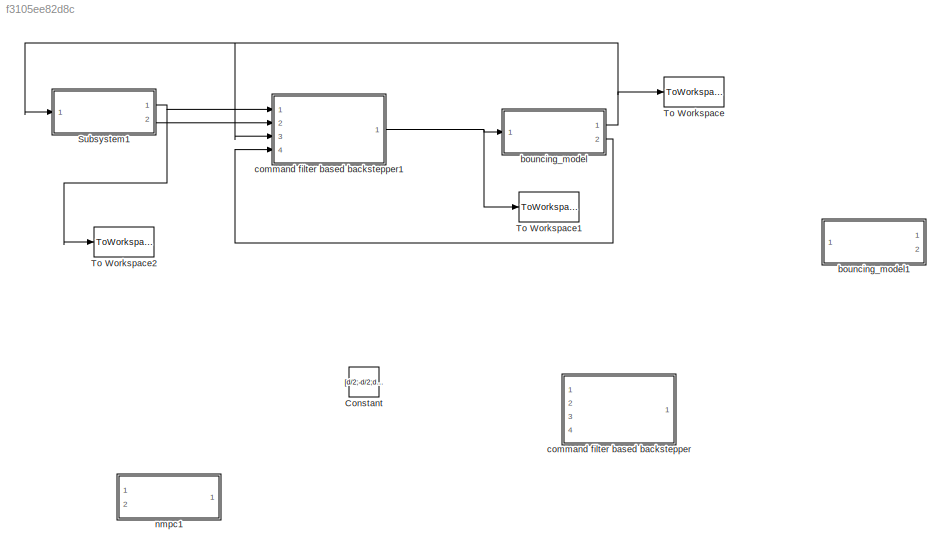
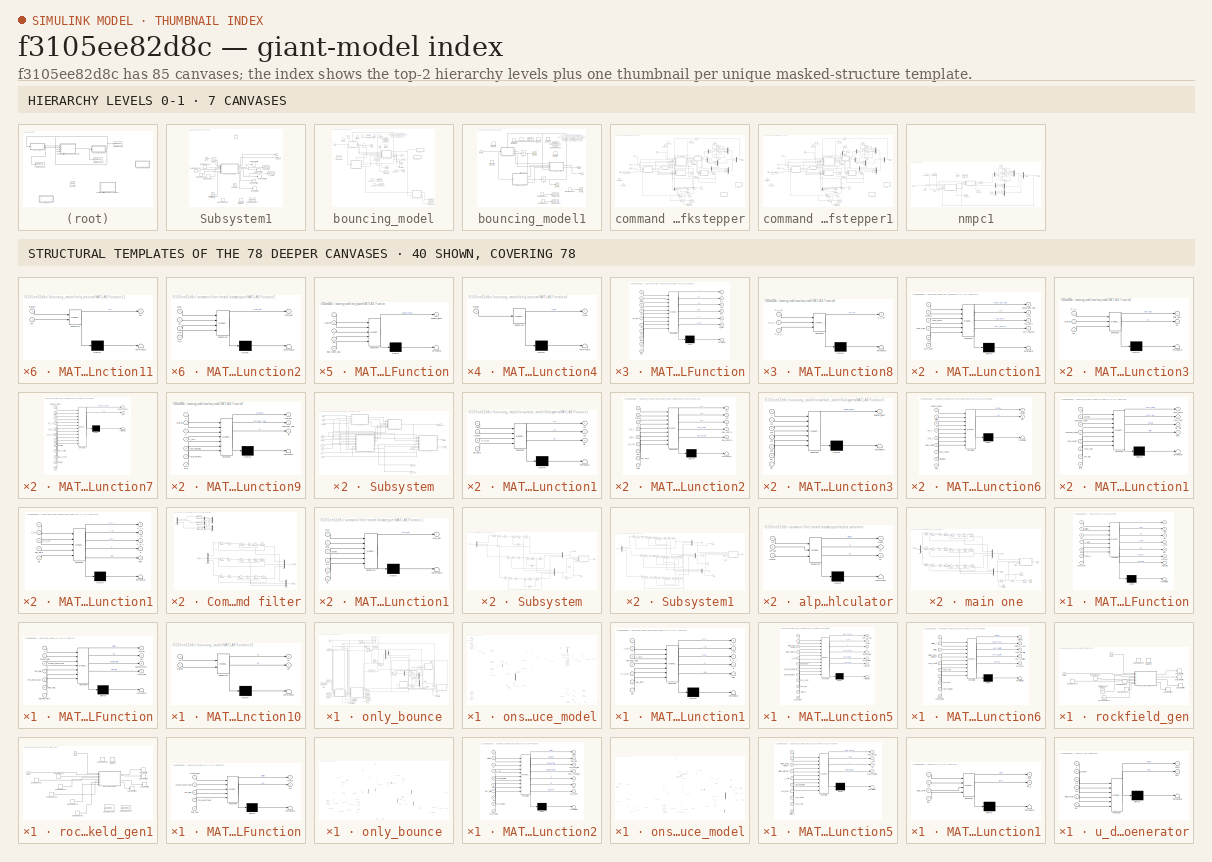
[diagram: thumbnail index - top-2 hierarchy levels (7 canvases) + 40 structural-template representatives of the remaining 78 canvases]
MODEL slx_f3105ee82d8c
KIND model
CONFIG AbsTol = auto
CONFIG EnableMultiTasking = off
CONFIG FixedStep = 0.001
CONFIG MaxStep = auto
CONFIG MinStep = auto
CONFIG PreLoadFcn = load('tumbleweed_constants.mat')
CONFIG RelTol = 1e-3
CONFIG SampleTimeConstraint = Unconstrained
CONFIG Solver = FixedStepAuto
CONFIG SolverName = FixedStepAuto
CONFIG StartTime = 0.0
CONFIG StopTime = 15
BLOCK [Constant] Constant
  Commented = on
  Value = [d/2;-d/2;d/2;-d/2;d/2;-d/2;zeros(12,1)]
BLOCK [SubSystem] Subsystem1
  Ports = [1, 2]
  RequestExecContextInheritance = off
BLOCK [Clock] Subsystem1/Clock
BLOCK [Constant] Subsystem1/Constant
  Commented = on
  Value = [-0.5;-0.5;0.5]
BLOCK [DataStoreMemory] Subsystem1/Data Store Memory
  DataStoreName = y_new
  InitialValue = [0;0]
  ReadBeforeWriteMsg = warning
  ShowAdditionalParam = off
  WriteAfterReadMsg = warning
  WriteAfterWriteMsg = warning
BLOCK [DataStoreMemory] Subsystem1/Data Store Memory1
  DataStoreName = err
  InitialValue = [0;0]
  ReadBeforeWriteMsg = warning
  ShowAdditionalParam = off
  WriteAfterReadMsg = warning
  WriteAfterWriteMsg = warning
BLOCK [DataStoreMemory] Subsystem1/Data Store Memory2
  DataStoreName = cum_err
  ReadBeforeWriteMsg = warning
  ShowAdditionalParam = off
  WriteAfterReadMsg = warning
  WriteAfterWriteMsg = warning
BLOCK [DataStoreRead] Subsystem1/Data Store Read
  DataStoreName = hit
  Ports = [0, 1]
BLOCK [DataStoreRead] Subsystem1/Data Store Read1
  DataStoreName = y_new
  Ports = [0, 1]
BLOCK [DataStoreRead] Subsystem1/Data Store Read2
  DataStoreName = err
  Ports = [0, 1]
BLOCK [DataStoreRead] Subsystem1/Data Store Read3
  DataStoreName = cum_err
  Ports = [0, 1]
BLOCK [DataStoreWrite] Subsystem1/Data Store Write
  DataStoreName = hit
  Ports = [1]
BLOCK [DataStoreWrite] Subsystem1/Data Store Write1
  DataStoreName = y_new
  Ports = [1]
BLOCK [DataStoreWrite] Subsystem1/Data Store Write2
  DataStoreName = err
  Ports = [1]
BLOCK [DataStoreWrite] Subsystem1/Data Store Write3
  DataStoreName = cum_err
  Ports = [1]
BLOCK [SubSystem] Subsystem1/MATLAB Function
  ErrorFcn = Stateflow.Translate.translate
  PermitHierarchicalResolution = ExplicitOnly
  Ports = [7, 7]
  RequestExecContextInheritance = off
  SFBlockType = MATLAB Function
  TreatAsAtomicUnit = on
BLOCK [Demux] Subsystem1/MATLAB Function/ Demux 
  Outputs = 1
  Ports = [1, 1]
BLOCK [S-Function] Subsystem1/MATLAB Function/ SFunction 
  EnableBusSupport = on
  FunctionName = sf_sfun
  Parameters = R
  PortCounts = [7 8]
  Ports = [7, 8]
  SFcnIsStateOwnerBlock = off
  SFunctionDeploymentMode = off
  Tag = Stateflow S-Function comprehensive_model_with_rocks_trial 10
BLOCK [Terminator] Subsystem1/MATLAB Function/ Terminator 
BLOCK [Outport] Subsystem1/MATLAB Function/cum_err
  IconDisplay = Port number
  Port = 6
BLOCK [Inport] Subsystem1/MATLAB Function/cum_err 
  IconDisplay = Port number
  Port = 6
BLOCK [Outport] Subsystem1/MATLAB Function/err
  IconDisplay = Port number
  Port = 5
BLOCK [Inport] Subsystem1/MATLAB Function/err 
  IconDisplay = Port number
  Port = 5
BLOCK [Outport] Subsystem1/MATLAB Function/hit
  IconDisplay = Port number
  Port = 3
BLOCK [Inport] Subsystem1/MATLAB Function/hit 
  IconDisplay = Port number
  Port = 3
BLOCK [Inport] Subsystem1/MATLAB Function/rand_num
  IconDisplay = Port number
  Port = 7
BLOCK [Inport] Subsystem1/MATLAB Function/states
  IconDisplay = Port number
  Port = 2
BLOCK [Outport] Subsystem1/MATLAB Function/stop_flag
  IconDisplay = Port number
  Port = 7
BLOCK [Inport] Subsystem1/MATLAB Function/t
  IconDisplay = Port number
BLOCK [Outport] Subsystem1/MATLAB Function/y
  IconDisplay = Port number
BLOCK [Outport] Subsystem1/MATLAB Function/y_new
  IconDisplay = Port number
  Port = 4
BLOCK [Inport] Subsystem1/MATLAB Function/y_new 
  IconDisplay = Port number
  Port = 4
BLOCK [Outport] Subsystem1/MATLAB Function/ydot
  IconDisplay = Port number
  Port = 2
BLOCK [Stop] Subsystem1/Stop Simulation
BLOCK [UniformRandomNumber] Subsystem1/Uniform Random Number
  Minimum = 0
  SampleTime = 0.01
  Seed = 43
BLOCK [Outport] Subsystem1/ref
  IconDisplay = Port number
BLOCK [Outport] Subsystem1/ref_dot 
  IconDisplay = Port number
  Port = 2
BLOCK [Inport] Subsystem1/states
  IconDisplay = Port number
BLOCK [DataStoreMemory] Subsystem1/t
  DataStoreName = hit
  ReadBeforeWriteMsg = warning
  ShowAdditionalParam = off
  WriteAfterReadMsg = warning
  WriteAfterWriteMsg = warning
BLOCK [ToWorkspace] Subsystem1/y_points
  FixptAsFi = on
  MaxDataPoints = inf
  Ports = [1]
  SampleTime = -1
  SaveFormat = Timeseries
  VariableName = simout5
BLOCK [ToWorkspace] Subsystem1/yref_points
  FixptAsFi = on
  MaxDataPoints = inf
  Ports = [1]
  SampleTime = -1
  SaveFormat = Timeseries
  VariableName = simout10
BLOCK [ToWorkspace] To Workspace
  FixptAsFi = on
  MaxDataPoints = inf
  Ports = [1]
  SampleTime = -1
  SaveFormat = Timeseries
  VariableName = simout
BLOCK [ToWorkspace] To Workspace1
  FixptAsFi = on
  MaxDataPoints = inf
  Ports = [1]
  SampleTime = -1
  SaveFormat = Timeseries
  VariableName = simout1
BLOCK [ToWorkspace] To Workspace2
  FixptAsFi = on
  MaxDataPoints = inf
  Ports = [1]
  SampleTime = -1
  SaveFormat = Timeseries
  VariableName = simout2
BLOCK [SubSystem] bouncing_model
  Ports = [1, 2]
  RequestExecContextInheritance = off
BLOCK [Clock] bouncing_model/Clock
BLOCK [DataStoreMemory] bouncing_model/Data Store Memory
  DataStoreName = inactive_time
  ReadBeforeWriteMsg = warning
  ShowAdditionalParam = off
  WriteAfterReadMsg = warning
  WriteAfterWriteMsg = warning
BLOCK [DataStoreMemory] bouncing_model/Data Store Memory1
  DataStoreName = switch_t
  ReadBeforeWriteMsg = warning
  ShowAdditionalParam = off
  WriteAfterReadMsg = warning
  WriteAfterWriteMsg = warning
BLOCK [DataStoreMemory] bouncing_model/Data Store Memory2
  DataStoreName = jAp
  InitialValue = [0;1;0]
  ReadBeforeWriteMsg = warning
  ShowAdditionalParam = off
  WriteAfterReadMsg = warning
  WriteAfterWriteMsg = warning
BLOCK [DataStoreMemory] bouncing_model/Data Store Memory3
  DataStoreName = r_AO
  InitialValue = [0;0;0]
  ReadBeforeWriteMsg = warning
  ShowAdditionalParam = off
  WriteAfterReadMsg = warning
  WriteAfterWriteMsg = warning
BLOCK [DataStoreMemory] bouncing_model/Data Store Memory4
  DataStoreName = FN
  InitialValue = 100
  ReadBeforeWriteMsg = warning
  ShowAdditionalParam = off
  WriteAfterReadMsg = warning
  WriteAfterWriteMsg = warning
BLOCK [DataStoreMemory] bouncing_model/Data Store Memory5
  DataStoreName = rock_radi
  InitialValue = [0.2;0.5]
  ReadBeforeWriteMsg = warning
  ShowAdditionalParam = off
  WriteAfterReadMsg = warning
  WriteAfterWriteMsg = warning
BLOCK [DataStoreMemory] bouncing_model/Data Store Memory6
  DataStoreName = rock_cents
  InitialValue = [5,7;0,0;-0.1,-0.1]
  ReadBeforeWriteMsg = warning
  ShowAdditionalParam = off
  WriteAfterReadMsg = warning
  WriteAfterWriteMsg = warning
BLOCK [DataStoreMemory] bouncing_model/Data Store Memory7
  DataStoreName = jRp
  InitialValue = [0;1;0]
  ReadBeforeWriteMsg = warning
  ShowAdditionalParam = off
  WriteAfterReadMsg = warning
  WriteAfterWriteMsg = warning
BLOCK [DataStoreMemory] bouncing_model/Data Store Memory8
  DataStoreName = surf_num
  ReadBeforeWriteMsg = warning
  ShowAdditionalParam = off
  WriteAfterReadMsg = warning
  WriteAfterWriteMsg = warning
BLOCK [DataStoreRead] bouncing_model/Data Store Read
  DataStoreName = rock_cents
  Ports = [0, 1]
BLOCK [DataStoreRead] bouncing_model/Data Store Read1
  DataStoreName = rock_radi
  Ports = [0, 1]
BLOCK [DataStoreRead] bouncing_model/Data Store Read2
  DataStoreName = surf_num
  Ports = [0, 1]
BLOCK [DataStoreRead] bouncing_model/Data Store Read3
  DataStoreName = inactive_time
  Ports = [0, 1]
BLOCK [DataStoreWrite] bouncing_model/Data Store Write
  DataStoreName = inactive_time
  Ports = [1]
BLOCK [Outport] bouncing_model/FW
  IconDisplay = Port number
  Port = 2
BLOCK [InitialCondition] bouncing_model/IC
BLOCK [InitialCondition] bouncing_model/IC1
  Value = 0
BLOCK [SubSystem] bouncing_model/MATLAB Function
  ErrorFcn = Stateflow.Translate.translate
  PermitHierarchicalResolution = ExplicitOnly
  Ports = [7, 4]
  RequestExecContextInheritance = off
  SFBlockType = MATLAB Function
  TreatAsAtomicUnit = on
BLOCK [Demux] bouncing_model/MATLAB Function/ Demux 
  Outputs = 1
  Ports = [1, 1]
BLOCK [S-Function] bouncing_model/MATLAB Function/ SFunction 
  EnableBusSupport = on
  FunctionName = sf_sfun
  PortCounts = [7 5]
  Ports = [7, 5]
  SFcnIsStateOwnerBlock = off
  SFunctionDeploymentMode = off
  Tag = Stateflow S-Function comprehensive_model_with_rocks_trial 12
BLOCK [Terminator] bouncing_model/MATLAB Function/ Terminator 
BLOCK [Outport] bouncing_model/MATLAB Function/FW
  IconDisplay = Port number
  Port = 2
BLOCK [Inport] bouncing_model/MATLAB Function/FW_inair
  IconDisplay = Port number
  Port = 4
BLOCK [Inport] bouncing_model/MATLAB Function/FW_onsurface
  IconDisplay = Port number
  Port = 5
BLOCK [Outport] bouncing_model/MATLAB Function/inactive_time
  IconDisplay = Port number
  Port = 3
BLOCK [Inport] bouncing_model/MATLAB Function/inactive_time 
  IconDisplay = Port number
  Port = 7
BLOCK [Inport] bouncing_model/MATLAB Function/inair_flag
  IconDisplay = Port number
  Port = 6
BLOCK [Outport] bouncing_model/MATLAB Function/states
  IconDisplay = Port number
BLOCK [Inport] bouncing_model/MATLAB Function/states_inair
  IconDisplay = Port number
  Port = 2
BLOCK [Inport] bouncing_model/MATLAB Function/states_onsurface
  IconDisplay = Port number
  Port = 3
BLOCK [Outport] bouncing_model/MATLAB Function/stop_flag
  IconDisplay = Port number
  Port = 4
BLOCK [Inport] bouncing_model/MATLAB Function/t
  IconDisplay = Port number
BLOCK [SubSystem] bouncing_model/MATLAB Function10
  ErrorFcn = Stateflow.Translate.translate
  PermitHierarchicalResolution = ExplicitOnly
  Ports = [2, 2]
  RequestExecContextInheritance = off
  SFBlockType = MATLAB Function
  TreatAsAtomicUnit = on
BLOCK [Demux] bouncing_model/MATLAB Function10/ Demux 
  Outputs = 1
  Ports = [1, 1]
BLOCK [S-Function] bouncing_model/MATLAB Function10/ SFunction 
  EnableBusSupport = on
  FunctionName = sf_sfun
  Parameters = R
  PortCounts = [2 3]
  Ports = [2, 3]
  SFcnIsStateOwnerBlock = off
  SFunctionDeploymentMode = off
  Tag = Stateflow S-Function comprehensive_model_with_rocks_trial 53
BLOCK [Terminator] bouncing_model/MATLAB Function10/ Terminator 
BLOCK [Outport] bouncing_model/MATLAB Function10/b1
  IconDisplay = Port number
BLOCK [Outport] bouncing_model/MATLAB Function10/b2
  IconDisplay = Port number
  Port = 2
BLOCK [Inport] bouncing_model/MATLAB Function10/kA
  IconDisplay = Port number
BLOCK [Inport] bouncing_model/MATLAB Function10/states
  IconDisplay = Port number
  Port = 2
BLOCK [Scope] bouncing_model/Scope
  Floating = off
  NumInputPorts = 1
  Ports = [1]
  ScopeSpecificationString = Simulink.scopes.TimeScopeBlockCfg('CurrentConfiguration', extmgr.ConfigurationSet(extmgr.Configuration('Core','General UI',true),extmgr.Configuration('Core','Source UI',true),extmgr.Configuration('Sources','WiredSimulink',true,'DataLoggingVariableName','ScopeData1'),extmgr.Configuration('Visuals','Time Domain',true,'SerializedDisplays',{struct('MinYLimReal','-0.125','MaxYLimReal','1.05068','YLabel...<+1735ch>
BLOCK [Scope] bouncing_model/Scope1
  Floating = off
  NumInputPorts = 1
  Ports = [1]
  ScopeSpecificationString = Simulink.scopes.TimeScopeBlockCfg('CurrentConfiguration', extmgr.ConfigurationSet(extmgr.Configuration('Core','General UI',true),extmgr.Configuration('Core','Source UI',true),extmgr.Configuration('Sources','WiredSimulink',true,'DataLoggingVariableName','ScopeData1'),extmgr.Configuration('Visuals','Time Domain',true,'SerializedDisplays',{struct('MinYLimReal','-6.00000','MaxYLimReal','54.00000','YLa...<+1453ch>
BLOCK [Scope] bouncing_model/Scope3
  Floating = off
  NumInputPorts = 1
  Ports = [1]
  ScopeSpecificationString = Simulink.scopes.TimeScopeBlockCfg('CurrentConfiguration', extmgr.ConfigurationSet(extmgr.Configuration('Core','General UI',true),extmgr.Configuration('Core','Source UI',true),extmgr.Configuration('Sources','WiredSimulink',true,'DataLoggingVariableName','ScopeData4'),extmgr.Configuration('Visuals','Time Domain',true,'SerializedDisplays',{struct('MinYLimReal','-0.125','MaxYLimReal','1.125','YLabelRe...<+1451ch>
BLOCK [Stop] bouncing_model/Stop Simulation
BLOCK [ToWorkspace] bouncing_model/To Workspace
  FixptAsFi = on
  MaxDataPoints = inf
  Ports = [1]
  SampleTime = -1
  SaveFormat = Timeseries
  VariableName = simout3
BLOCK [ToWorkspace] bouncing_model/To Workspace1
  FixptAsFi = on
  MaxDataPoints = inf
  Ports = [1]
  SampleTime = -1
  SaveFormat = Timeseries
  VariableName = simout4
BLOCK [ToWorkspace] bouncing_model/To Workspace2
  FixptAsFi = on
  MaxDataPoints = inf
  Ports = [1]
  SampleTime = -1
  SaveFormat = Timeseries
  VariableName = simout11
BLOCK [ToWorkspace] bouncing_model/To Workspace3
  FixptAsFi = on
  MaxDataPoints = inf
  Ports = [1]
  SampleTime = -1
  SaveFormat = Timeseries
  VariableName = simout12
BLOCK [ToWorkspace] bouncing_model/To Workspace4
  FixptAsFi = on
  MaxDataPoints = inf
  Ports = [1]
  SampleTime = -1
  SaveFormat = Timeseries
  VariableName = simout13
BLOCK [DataStoreMemory] bouncing_model/fuck
  DataStoreName = states
  InitialValue = [0;0.0001;0;7;0;0;0;0;R;1;0;0;0]
  ReadBeforeWriteMsg = warning
  ShowAdditionalParam = off
  WriteAfterReadMsg = warning
  WriteAfterWriteMsg = warning
BLOCK [Inport] bouncing_model/inputs
  IconDisplay = Port number
BLOCK [SubSystem] bouncing_model/only_bounce
  Ports = [1, 3, 1]
  RequestExecContextInheritance = off
BLOCK [Clock] bouncing_model/only_bounce/Clock
BLOCK [Clock] bouncing_model/only_bounce/Clock1
BLOCK [DataStoreMemory] bouncing_model/only_bounce/Data Store Memory1
  DataStoreName = prev_constraint_flag
  ReadBeforeWriteMsg = warning
  ShowAdditionalParam = off
  WriteAfterReadMsg = warning
  WriteAfterWriteMsg = warning
BLOCK [DataStoreRead] bouncing_model/only_bounce/Data Store Read1
  DataStoreName = FN
  Ports = [0, 1]
BLOCK [DataStoreRead] bouncing_model/only_bounce/Data Store Read2
  DataStoreName = jAp
  Ports = [0, 1]
BLOCK [DataStoreRead] bouncing_model/only_bounce/Data Store Read3
  DataStoreName = switch_t
  Ports = [0, 1]
BLOCK [DataStoreRead] bouncing_model/only_bounce/Data Store Read4
  DataStoreName = rock_cents
  Ports = [0, 1]
BLOCK [DataStoreRead] bouncing_model/only_bounce/Data Store Read5
  DataStoreName = rock_radi
  Ports = [0, 1]
BLOCK [DataStoreRead] bouncing_model/only_bounce/Data Store Read6
  DataStoreName = surf_num
  Ports = [0, 1]
BLOCK [DataStoreRead] bouncing_model/only_bounce/Data Store Read7
  DataStoreName = wind_vel
  Ports = [0, 1]
BLOCK [DataStoreWrite] bouncing_model/only_bounce/Data Store Write
  DataStoreName = states
  Ports = [1]
BLOCK [DataStoreWrite] bouncing_model/only_bounce/Data Store Write1
  DataStoreName = prev_constraint_flag
  Ports = [1]
BLOCK [DataStoreWrite] bouncing_model/only_bounce/Data Store Write2
  DataStoreName = jAp
  Ports = [1]
BLOCK [DataStoreWrite] bouncing_model/only_bounce/Data Store Write3
  DataStoreName = switch_t
  Ports = [1]
BLOCK [DataStoreWrite] bouncing_model/only_bounce/Data Store Write4
  DataStoreName = r_AO
  Ports = [1]
BLOCK [DataStoreWrite] bouncing_model/only_bounce/Data Store Write5
  DataStoreName = FN
  Ports = [1]
BLOCK [DataStoreWrite] bouncing_model/only_bounce/Data Store Write6
  DataStoreName = surf_num
  Ports = [1]
BLOCK [Demux] bouncing_model/only_bounce/Demux
  DisplayOption = bar
  Outputs = [3;3]
  Ports = [1, 2]
BLOCK [Demux] bouncing_model/only_bounce/Demux1
  DisplayOption = bar
  Outputs = [3;3;3;4]
  Ports = [1, 4]
BLOCK [EnablePort] bouncing_model/only_bounce/Enable
  Ports = []
  StatesWhenEnabling = reset
BLOCK [Outport] bouncing_model/only_bounce/FW
  IconDisplay = Port number
  Port = 3
BLOCK [DataStoreRead] bouncing_model/only_bounce/Initial states
  DataStoreName = states
  Ports = [0, 1]
BLOCK [Integrator] bouncing_model/only_bounce/Integrator
  ExternalReset = level hold
  InitialConditionSource = external
  Ports = [3, 1, 0, 0, 1]
  ShowStatePort = on
BLOCK [Integrator] bouncing_model/only_bounce/Integrator1
  ExternalReset = level hold
  InitialConditionSource = external
  Ports = [3, 1, 0, 0, 1]
  ShowStatePort = on
BLOCK [Integrator] bouncing_model/only_bounce/Integrator2
  ExternalReset = level hold
  InitialConditionSource = external
  Ports = [3, 1, 0, 0, 1]
  ShowStatePort = on
BLOCK [SubSystem] bouncing_model/only_bounce/MATLAB Function
  ErrorFcn = Stateflow.Translate.translate
  PermitHierarchicalResolution = ExplicitOnly
  Ports = [5, 1]
  RequestExecContextInheritance = off
  SFBlockType = MATLAB Function
  TreatAsAtomicUnit = on
BLOCK [Demux] bouncing_model/only_bounce/MATLAB Function/ Demux 
  Outputs = 1
  Ports = [1, 1]
BLOCK [S-Function] bouncing_model/only_bounce/MATLAB Function/ SFunction 
  EnableBusSupport = on
  FunctionName = sf_sfun
  Parameters = Ixx,Iyy,Izz,g,m,mf
  PortCounts = [5 2]
  Ports = [5, 2]
  SFcnIsStateOwnerBlock = off
  SFunctionDeploymentMode = off
  Tag = Stateflow S-Function comprehensive_model_with_rocks_trial 20
BLOCK [Terminator] bouncing_model/only_bounce/MATLAB Function/ Terminator 
BLOCK [Inport] bouncing_model/only_bounce/MATLAB Function/FW
  IconDisplay = Port number
  Port = 4
BLOCK [Outport] bouncing_model/only_bounce/MATLAB Function/angacc_linacc
  IconDisplay = Port number
BLOCK [Inport] bouncing_model/only_bounce/MATLAB Function/inair_reset_flag
  IconDisplay = Port number
  Port = 5
BLOCK [Inport] bouncing_model/only_bounce/MATLAB Function/states
  IconDisplay = Port number
  Port = 2
BLOCK [Inport] bouncing_model/only_bounce/MATLAB Function/t
  IconDisplay = Port number
BLOCK [Inport] bouncing_model/only_bounce/MATLAB Function/u
  IconDisplay = Port number
  Port = 3
BLOCK [SubSystem] bouncing_model/only_bounce/MATLAB Function1
  ErrorFcn = Stateflow.Translate.translate
  PermitHierarchicalResolution = ExplicitOnly
  Ports = [6, 4]
  RequestExecContextInheritance = off
  SFBlockType = MATLAB Function
  TreatAsAtomicUnit = on
BLOCK [Demux] bouncing_model/only_bounce/MATLAB Function1/ Demux 
  Outputs = 1
  Ports = [1, 1]
BLOCK [S-Function] bouncing_model/only_bounce/MATLAB Function1/ SFunction 
  EnableBusSupport = on
  FunctionName = sf_sfun
  Parameters = R
  PortCounts = [6 5]
  Ports = [6, 5]
  SFcnIsStateOwnerBlock = off
  SFunctionDeploymentMode = off
  Tag = Stateflow S-Function comprehensive_model_with_rocks_trial 17
BLOCK [Terminator] bouncing_model/only_bounce/MATLAB Function1/ Terminator 
BLOCK [Outport] bouncing_model/only_bounce/MATLAB Function1/constraint_flag
  IconDisplay = Port number
BLOCK [Inport] bouncing_model/only_bounce/MATLAB Function1/jAp
  IconDisplay = Port number
  Port = 5
BLOCK [Outport] bouncing_model/only_bounce/MATLAB Function1/par_diffs
  IconDisplay = Port number
  Port = 3
BLOCK [Outport] bouncing_model/only_bounce/MATLAB Function1/r_AO
  IconDisplay = Port number
  Port = 2
BLOCK [Inport] bouncing_model/only_bounce/MATLAB Function1/rock_cents
  IconDisplay = Port number
  Port = 3
BLOCK [Inport] bouncing_model/only_bounce/MATLAB Function1/rock_radi
  IconDisplay = Port number
  Port = 4
BLOCK [Inport] bouncing_model/only_bounce/MATLAB Function1/states
  IconDisplay = Port number
  Port = 2
BLOCK [Inport] bouncing_model/only_bounce/MATLAB Function1/surf_num
  IconDisplay = Port number
  Port = 6
BLOCK [Outport] bouncing_model/only_bounce/MATLAB Function1/surf_numch
  IconDisplay = Port number
  Port = 4
BLOCK [Inport] bouncing_model/only_bounce/MATLAB Function1/t
  IconDisplay = Port number
BLOCK [SubSystem] bouncing_model/only_bounce/MATLAB Function11
  ErrorFcn = Stateflow.Translate.translate
  PermitHierarchicalResolution = ExplicitOnly
  Ports = [2, 1]
  RequestExecContextInheritance = off
  SFBlockType = MATLAB Function
  TreatAsAtomicUnit = on
BLOCK [Demux] bouncing_model/only_bounce/MATLAB Function11/ Demux 
  Outputs = 1
  Ports = [1, 1]
BLOCK [S-Function] bouncing_model/only_bounce/MATLAB Function11/ SFunction 
  EnableBusSupport = on
  FunctionName = sf_sfun
  Parameters = Ar,CD,rho
  PortCounts = [2 2]
  Ports = [2, 2]
  SFcnIsStateOwnerBlock = off
  SFunctionDeploymentMode = off
  Tag = Stateflow S-Function comprehensive_model_with_rocks_trial 18
BLOCK [Terminator] bouncing_model/only_bounce/MATLAB Function11/ Terminator 
BLOCK [Outport] bouncing_model/only_bounce/MATLAB Function11/FW
  IconDisplay = Port number
BLOCK [Inport] bouncing_model/only_bounce/MATLAB Function11/states
  IconDisplay = Port number
BLOCK [Inport] bouncing_model/only_bounce/MATLAB Function11/wx
  IconDisplay = Port number
  Port = 2
BLOCK [SubSystem] bouncing_model/only_bounce/MATLAB Function2
  ErrorFcn = Stateflow.Translate.translate
  PermitHierarchicalResolution = ExplicitOnly
  Ports = [10, 6]
  RequestExecContextInheritance = off
  SFBlockType = MATLAB Function
  TreatAsAtomicUnit = on
BLOCK [Demux] bouncing_model/only_bounce/MATLAB Function2/ Demux 
  Outputs = 1
  Ports = [1, 1]
BLOCK [S-Function] bouncing_model/only_bounce/MATLAB Function2/ SFunction 
  EnableBusSupport = on
  FunctionName = sf_sfun
  Parameters = Ixx,Iyy,Izz,R,m,mf,muk,must,rest_coeff
  PortCounts = [10 7]
  Ports = [10, 7]
  SFcnIsStateOwnerBlock = off
  SFunctionDeploymentMode = off
  Tag = Stateflow S-Function comprehensive_model_with_rocks_trial 16
BLOCK [Terminator] bouncing_model/only_bounce/MATLAB Function2/ Terminator 
BLOCK [Outport] bouncing_model/only_bounce/MATLAB Function2/FN
  IconDisplay = Port number
  Port = 5
BLOCK [Inport] bouncing_model/only_bounce/MATLAB Function2/FN 
  IconDisplay = Port number
  Port = 6
BLOCK [Inport] bouncing_model/only_bounce/MATLAB Function2/constraint_flag
  IconDisplay = Port number
  Port = 5
BLOCK [Outport] bouncing_model/only_bounce/MATLAB Function2/inair_reset_flag
  IconDisplay = Port number
  Port = 3
BLOCK [Outport] bouncing_model/only_bounce/MATLAB Function2/jA
  IconDisplay = Port number
  Port = 4
BLOCK [Inport] bouncing_model/only_bounce/MATLAB Function2/jAp
  IconDisplay = Port number
  Port = 8
BLOCK [Inport] bouncing_model/only_bounce/MATLAB Function2/par_diffs
  IconDisplay = Port number
  Port = 7
BLOCK [Inport] bouncing_model/only_bounce/MATLAB Function2/r_AO
  IconDisplay = Port number
  Port = 4
BLOCK [Outport] bouncing_model/only_bounce/MATLAB Function2/roll_reset_flag
  IconDisplay = Port number
  Port = 2
BLOCK [Outport] bouncing_model/only_bounce/MATLAB Function2/states
  IconDisplay = Port number
BLOCK [Inport] bouncing_model/only_bounce/MATLAB Function2/states 
  IconDisplay = Port number
  Port = 2
BLOCK [Outport] bouncing_model/only_bounce/MATLAB Function2/surf_num
  IconDisplay = Port number
  Port = 6
BLOCK [Inport] bouncing_model/only_bounce/MATLAB Function2/surf_numch
  IconDisplay = Port number
  Port = 9
BLOCK [Inport] bouncing_model/only_bounce/MATLAB Function2/surf_nump
  IconDisplay = Port number
  Port = 10
BLOCK [Inport] bouncing_model/only_bounce/MATLAB Function2/t
  IconDisplay = Port number
BLOCK [Inport] bouncing_model/only_bounce/MATLAB Function2/u
  IconDisplay = Port number
  Port = 3
BLOCK [SubSystem] bouncing_model/only_bounce/MATLAB Function4
  ErrorFcn = Stateflow.Translate.translate
  PermitHierarchicalResolution = ExplicitOnly
  Ports = [1, 1]
  RequestExecContextInheritance = off
  SFBlockType = MATLAB Function
  TreatAsAtomicUnit = on
BLOCK [Demux] bouncing_model/only_bounce/MATLAB Function4/ Demux 
  Outputs = 1
  Ports = [1, 1]
BLOCK [S-Function] bouncing_model/only_bounce/MATLAB Function4/ SFunction 
  EnableBusSupport = on
  FunctionName = sf_sfun
  Parameters = YY
  PortCounts = [1 2]
  Ports = [1, 2]
  SFcnIsStateOwnerBlock = off
  SFunctionDeploymentMode = off
  Tag = Stateflow S-Function comprehensive_model_with_rocks_trial 21
BLOCK [Terminator] bouncing_model/only_bounce/MATLAB Function4/ Terminator 
BLOCK [Outport] bouncing_model/only_bounce/MATLAB Function4/q_dot
  IconDisplay = Port number
BLOCK [Inport] bouncing_model/only_bounce/MATLAB Function4/states
  IconDisplay = Port number
BLOCK [Mux] bouncing_model/only_bounce/Mux
  DisplayOption = bar
  Inputs = 2
  Ports = [2, 1]
BLOCK [Mux] bouncing_model/only_bounce/Mux1
  DisplayOption = bar
  Inputs = [6;3;4]
  Ports = [3, 1]
BLOCK [Mux] bouncing_model/only_bounce/Mux2
  DisplayOption = bar
  Inputs = [6;3;4]
  Ports = [3, 1]
BLOCK [Scope] bouncing_model/only_bounce/Scope2
  Floating = off
  NumInputPorts = 1
  Ports = [1]
  ScopeSpecificationString = Simulink.scopes.TimeScopeBlockCfg('CurrentConfiguration', extmgr.ConfigurationSet(extmgr.Configuration('Core','General UI',true),extmgr.Configuration('Core','Source UI',true),extmgr.Configuration('Sources','WiredSimulink',true,'DataLoggingVariableName','ScopeData1'),extmgr.Configuration('Visuals','Time Domain',true,'SerializedDisplays',{struct('MinYLimReal','-1.00000','MaxYLimReal','1.00000','YLab...<+1384ch>
BLOCK [Sum] bouncing_model/only_bounce/Subtract
  InputSameDT = off
  Inputs = +-
  OutDataTypeStr = Inherit: Inherit via internal rule
  Ports = [2, 1]
  SaturateOnIntegerOverflow = off
BLOCK [Switch] bouncing_model/only_bounce/Switch
  Criteria = u2 > Threshold
  InputSameDT = off
  SaturateOnIntegerOverflow = off
BLOCK [Switch] bouncing_model/only_bounce/Switch1
  Criteria = u2 > Threshold
  InputSameDT = off
  SaturateOnIntegerOverflow = off
BLOCK [Switch] bouncing_model/only_bounce/Switch2
  Criteria = u2 > Threshold
  InputSameDT = off
  SaturateOnIntegerOverflow = off
BLOCK [Switch] bouncing_model/only_bounce/Switch3
  Criteria = u2 > Threshold
  InputSameDT = off
  SaturateOnIntegerOverflow = off
BLOCK [Terminator] bouncing_model/only_bounce/Terminator
BLOCK [Inport] bouncing_model/only_bounce/inputs
  IconDisplay = Port number
BLOCK [Outport] bouncing_model/only_bounce/roll_reset_flag
  IconDisplay = Port number
  InitialOutput = 0
  Port = 2
BLOCK [Outport] bouncing_model/only_bounce/states
  IconDisplay = Port number
  InitialOutput = zeros(13,1)
  SourceOfInitialOutputValue = Input signal
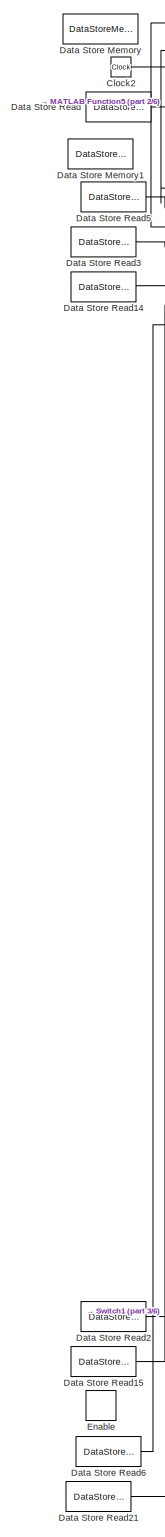
[diagram: bouncing_model/onsurface_model - part 1/6, left side, full height]
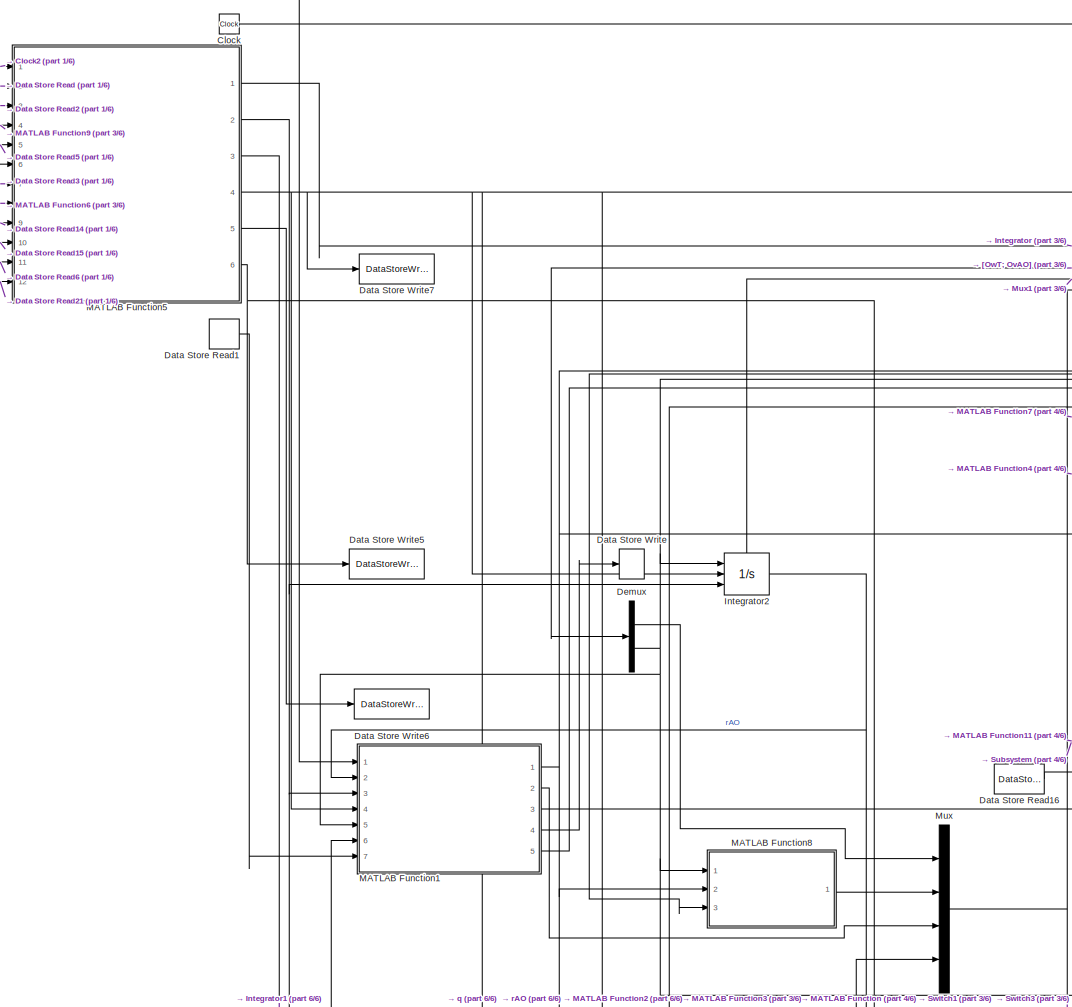
[diagram: bouncing_model/onsurface_model - part 2/6, middle left region]
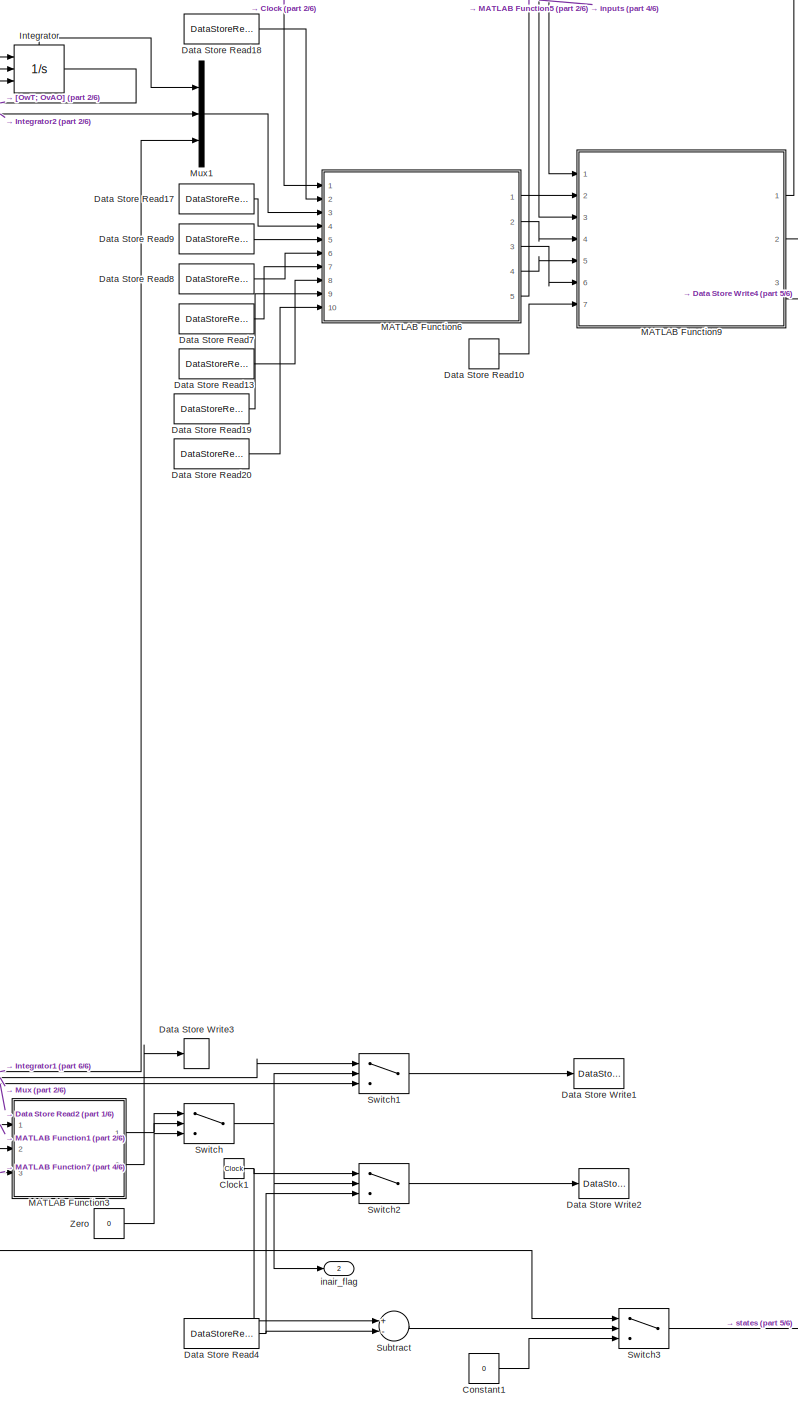
[diagram: bouncing_model/onsurface_model - part 3/6, right side, full height]
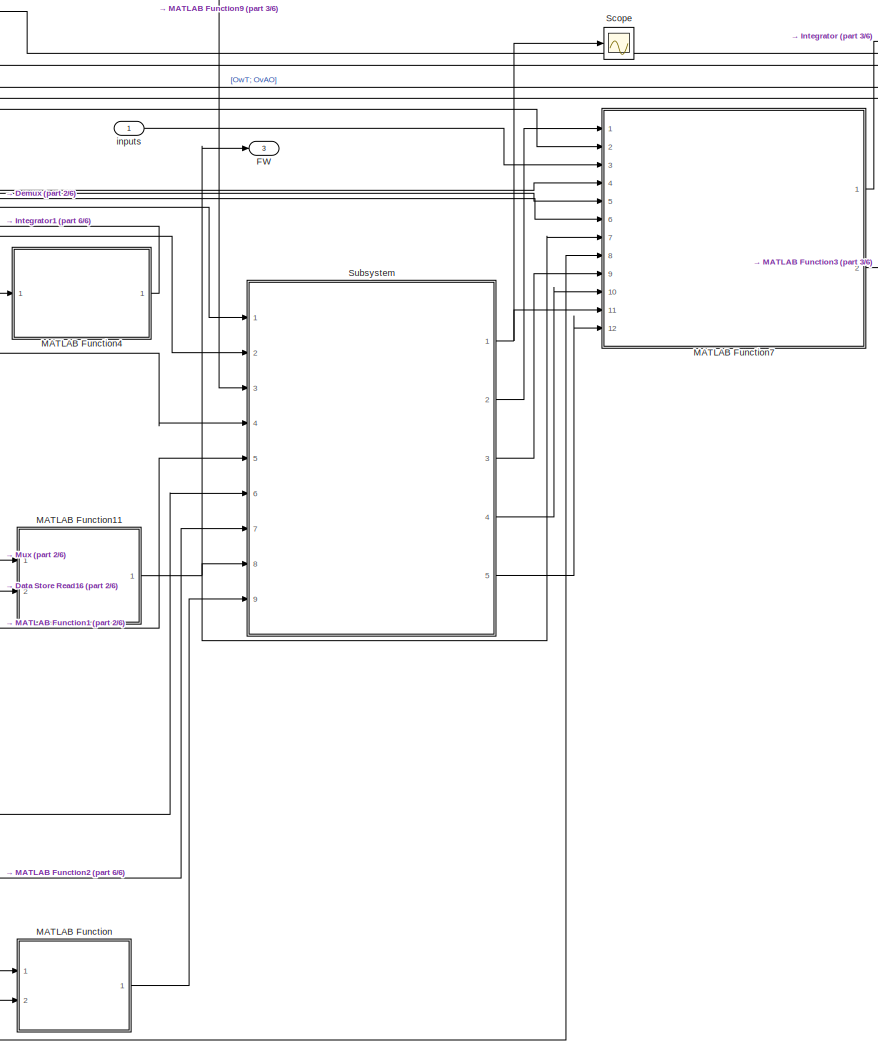
[diagram: bouncing_model/onsurface_model - part 4/6, central region]
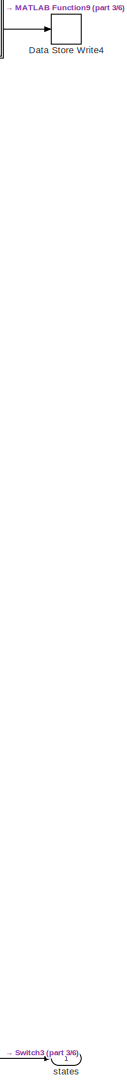
[diagram: bouncing_model/onsurface_model - part 5/6, middle right region]
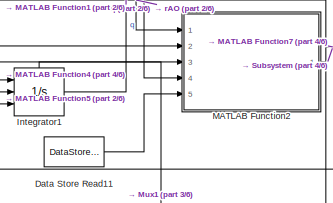
[diagram: bouncing_model/onsurface_model - part 6/6, bottom center region]
BLOCK [SubSystem] bouncing_model/onsurface_model
  Ports = [1, 3, 1]
  RequestExecContextInheritance = off
BLOCK [Clock] bouncing_model/onsurface_model/Clock
BLOCK [Clock] bouncing_model/onsurface_model/Clock1
BLOCK [Clock] bouncing_model/onsurface_model/Clock2
BLOCK [Constant] bouncing_model/onsurface_model/Constant1
  Value = 0
  VectorParams1D = off
BLOCK [DataStoreMemory] bouncing_model/onsurface_model/Data Store Memory
  DataStoreName = roll_reset_flag
  ReadBeforeWriteMsg = warning
  ShowAdditionalParam = off
  WriteAfterReadMsg = warning
  WriteAfterWriteMsg = warning
BLOCK [DataStoreMemory] bouncing_model/onsurface_model/Data Store Memory1
  DataStoreName = reset_states
  InitialValue = zeros(13,1)
  ReadBeforeWriteMsg = warning
  ShowAdditionalParam = off
  WriteAfterReadMsg = warning
  WriteAfterWriteMsg = warning
BLOCK [DataStoreRead] bouncing_model/onsurface_model/Data Store Read
  DataStoreName = jAp
  Ports = [0, 1]
BLOCK [DataStoreRead] bouncing_model/onsurface_model/Data Store Read1
  DataStoreName = jAp
  Ports = [0, 1]
BLOCK [DataStoreRead] bouncing_model/onsurface_model/Data Store Read10
  DataStoreName = jRp
  Ports = [0, 1]
BLOCK [DataStoreRead] bouncing_model/onsurface_model/Data Store Read11
  DataStoreName = rock_cents
  Ports = [0, 1]
BLOCK [DataStoreRead] bouncing_model/onsurface_model/Data Store Read13
  DataStoreName = surf_num
  Ports = [0, 1]
BLOCK [DataStoreRead] bouncing_model/onsurface_model/Data Store Read14
  DataStoreName = rock_cents
  Ports = [0, 1]
BLOCK [DataStoreRead] bouncing_model/onsurface_model/Data Store Read15
  DataStoreName = rock_radi
  Ports = [0, 1]
BLOCK [DataStoreRead] bouncing_model/onsurface_model/Data Store Read16
  DataStoreName = wind_vel
  Ports = [0, 1]
BLOCK [DataStoreRead] bouncing_model/onsurface_model/Data Store Read17
  DataStoreName = states
  Ports = [0, 1]
BLOCK [DataStoreRead] bouncing_model/onsurface_model/Data Store Read18
  DataStoreName = switch_t
  Ports = [0, 1]
BLOCK [DataStoreRead] bouncing_model/onsurface_model/Data Store Read19
  DataStoreName = roll_reset_flag
  Ports = [0, 1]
BLOCK [DataStoreRead] bouncing_model/onsurface_model/Data Store Read2
  DataStoreName = states
  Ports = [0, 1]
BLOCK [DataStoreRead] bouncing_model/onsurface_model/Data Store Read20
  DataStoreName = reset_states
  Ports = [0, 1]
BLOCK [DataStoreRead] bouncing_model/onsurface_model/Data Store Read21
  DataStoreName = reset_states
  Ports = [0, 1]
BLOCK [DataStoreRead] bouncing_model/onsurface_model/Data Store Read3
  DataStoreName = surf_num
  Ports = [0, 1]
BLOCK [DataStoreRead] bouncing_model/onsurface_model/Data Store Read4
  DataStoreName = switch_t
  Ports = [0, 1]
BLOCK [DataStoreRead] bouncing_model/onsurface_model/Data Store Read5
  DataStoreName = r_AO
  Ports = [0, 1]
BLOCK [DataStoreRead] bouncing_model/onsurface_model/Data Store Read6
  DataStoreName = switch_t
  Ports = [0, 1]
BLOCK [DataStoreRead] bouncing_model/onsurface_model/Data Store Read7
  DataStoreName = jAp
  Ports = [0, 1]
BLOCK [DataStoreRead] bouncing_model/onsurface_model/Data Store Read8
  DataStoreName = rock_radi
  Ports = [0, 1]
BLOCK [DataStoreRead] bouncing_model/onsurface_model/Data Store Read9
  DataStoreName = rock_cents
  Ports = [0, 1]
BLOCK [DataStoreWrite] bouncing_model/onsurface_model/Data Store Write
  DataStoreName = jAp
  Ports = [1]
BLOCK [DataStoreWrite] bouncing_model/onsurface_model/Data Store Write1
  DataStoreName = states
  Ports = [1]
BLOCK [DataStoreWrite] bouncing_model/onsurface_model/Data Store Write2
  DataStoreName = switch_t
  Ports = [1]
BLOCK [DataStoreWrite] bouncing_model/onsurface_model/Data Store Write3
  DataStoreName = FN
  Ports = [1]
BLOCK [DataStoreWrite] bouncing_model/onsurface_model/Data Store Write4
  DataStoreName = jRp
  Ports = [1]
BLOCK [DataStoreWrite] bouncing_model/onsurface_model/Data Store Write5
  DataStoreName = surf_num
  Ports = [1]
BLOCK [DataStoreWrite] bouncing_model/onsurface_model/Data Store Write6
  DataStoreName = reset_states
  Ports = [1]
BLOCK [DataStoreWrite] bouncing_model/onsurface_model/Data Store Write7
  DataStoreName = roll_reset_flag
  Ports = [1]
BLOCK [Demux] bouncing_model/onsurface_model/Demux
  DisplayOption = bar
  Outputs = [3;3]
  Ports = [1, 2]
BLOCK [EnablePort] bouncing_model/onsurface_model/Enable
  Ports = []
  StatesWhenEnabling = reset
BLOCK [Outport] bouncing_model/onsurface_model/FW
  IconDisplay = Port number
  Port = 3
BLOCK [Integrator] bouncing_model/onsurface_model/Integrator
  ExternalReset = level hold
  InitialConditionSource = external
  Ports = [3, 1, 0, 0, 1]
  ShowStatePort = on
BLOCK [Integrator] bouncing_model/onsurface_model/Integrator1
  ExternalReset = level hold
  InitialConditionSource = external
  Ports = [3, 1, 0, 0, 1]
  ShowStatePort = on
BLOCK [Integrator] bouncing_model/onsurface_model/Integrator2
  ExternalReset = level hold
  InitialCondition = [0;0;10]
  InitialConditionSource = external
  Ports = [3, 1, 0, 0, 1]
  ShowStatePort = on
BLOCK [SubSystem] bouncing_model/onsurface_model/MATLAB Function
  ErrorFcn = Stateflow.Translate.translate
  PermitHierarchicalResolution = ExplicitOnly
  Ports = [2, 1]
  RequestExecContextInheritance = off
  SFBlockType = MATLAB Function
  TreatAsAtomicUnit = on
BLOCK [Demux] bouncing_model/onsurface_model/MATLAB Function/ Demux 
  Outputs = 1
  Ports = [1, 1]
BLOCK [S-Function] bouncing_model/onsurface_model/MATLAB Function/ SFunction 
  EnableBusSupport = on
  FunctionName = sf_sfun
  Parameters = R
  PortCounts = [2 2]
  Ports = [2, 2]
  SFcnIsStateOwnerBlock = off
  SFunctionDeploymentMode = off
  Tag = Stateflow S-Function comprehensive_model_with_rocks_trial 23
BLOCK [Terminator] bouncing_model/onsurface_model/MATLAB Function/ Terminator 
BLOCK [Inport] bouncing_model/onsurface_model/MATLAB Function/O_c_A
  IconDisplay = Port number
  Port = 2
BLOCK [Outport] bouncing_model/onsurface_model/MATLAB Function/slip_flag0
  IconDisplay = Port number
BLOCK [Inport] bouncing_model/onsurface_model/MATLAB Function/states
  IconDisplay = Port number
BLOCK [SubSystem] bouncing_model/onsurface_model/MATLAB Function1
  ErrorFcn = Stateflow.Translate.translate
  PermitHierarchicalResolution = ExplicitOnly
  Ports = [7, 5]
  Priority = 1
  RequestExecContextInheritance = off
  SFBlockType = MATLAB Function
  TreatAsAtomicUnit = on
BLOCK [Demux] bouncing_model/onsurface_model/MATLAB Function1/ Demux 
  Outputs = 1
  Ports = [1, 1]
BLOCK [S-Function] bouncing_model/onsurface_model/MATLAB Function1/ SFunction 
  EnableBusSupport = on
  FunctionName = sf_sfun
  Parameters = R
  PortCounts = [7 6]
  Ports = [7, 6]
  SFcnIsStateOwnerBlock = off
  SFunctionDeploymentMode = off
  Tag = Stateflow S-Function comprehensive_model_with_rocks_trial 24
BLOCK [Terminator] bouncing_model/onsurface_model/MATLAB Function1/ Terminator 
BLOCK [Outport] bouncing_model/onsurface_model/MATLAB Function1/O_c_A
  IconDisplay = Port number
BLOCK [Inport] bouncing_model/onsurface_model/MATLAB Function1/O_v_AO
  IconDisplay = Port number
  Port = 5
BLOCK [Outport] bouncing_model/onsurface_model/MATLAB Function1/O_w_A
  IconDisplay = Port number
  Port = 3
BLOCK [Outport] bouncing_model/onsurface_model/MATLAB Function1/flag
  IconDisplay = Port number
  Port = 5
BLOCK [Outport] bouncing_model/onsurface_model/MATLAB Function1/jA
  IconDisplay = Port number
  Port = 4
BLOCK [Inport] bouncing_model/onsurface_model/MATLAB Function1/jAp
  IconDisplay = Port number
  Port = 7
BLOCK [Inport] bouncing_model/onsurface_model/MATLAB Function1/par_diffs
  IconDisplay = Port number
  Port = 6
BLOCK [Inport] bouncing_model/onsurface_model/MATLAB Function1/r_AO
  IconDisplay = Port number
  Port = 2
BLOCK [Inport] bouncing_model/onsurface_model/MATLAB Function1/r_AO0
  IconDisplay = Port number
  Port = 3
BLOCK [Outport] bouncing_model/onsurface_model/MATLAB Function1/r_TO
  IconDisplay = Port number
  Port = 2
BLOCK [Inport] bouncing_model/onsurface_model/MATLAB Function1/roll_reset_flag
  IconDisplay = Port number
  Port = 4
BLOCK [Inport] bouncing_model/onsurface_model/MATLAB Function1/t
  IconDisplay = Port number
BLOCK [SubSystem] bouncing_model/onsurface_model/MATLAB Function11
  ErrorFcn = Stateflow.Translate.translate
  PermitHierarchicalResolution = ExplicitOnly
  Ports = [2, 1]
  RequestExecContextInheritance = off
  SFBlockType = MATLAB Function
  TreatAsAtomicUnit = on
BLOCK [Demux] bouncing_model/onsurface_model/MATLAB Function11/ Demux 
  Outputs = 1
  Ports = [1, 1]
BLOCK [S-Function] bouncing_model/onsurface_model/MATLAB Function11/ SFunction 
  EnableBusSupport = on
  FunctionName = sf_sfun
  Parameters = Ar,CD,rho
  PortCounts = [2 2]
  Ports = [2, 2]
  SFcnIsStateOwnerBlock = off
  SFunctionDeploymentMode = off
  Tag = Stateflow S-Function comprehensive_model_with_rocks_trial 13
BLOCK [Terminator] bouncing_model/onsurface_model/MATLAB Function11/ Terminator 
BLOCK [Outport] bouncing_model/onsurface_model/MATLAB Function11/FW
  IconDisplay = Port number
BLOCK [Inport] bouncing_model/onsurface_model/MATLAB Function11/states
  IconDisplay = Port number
BLOCK [Inport] bouncing_model/onsurface_model/MATLAB Function11/wv
  IconDisplay = Port number
  Port = 2
BLOCK [SubSystem] bouncing_model/onsurface_model/MATLAB Function2
  ErrorFcn = Stateflow.Translate.translate
  PermitHierarchicalResolution = ExplicitOnly
  Ports = [5, 1]
  RequestExecContextInheritance = off
  SFBlockType = MATLAB Function
  TreatAsAtomicUnit = on
BLOCK [Demux] bouncing_model/onsurface_model/MATLAB Function2/ Demux 
  Outputs = 1
  Ports = [1, 1]
BLOCK [S-Function] bouncing_model/onsurface_model/MATLAB Function2/ SFunction 
  EnableBusSupport = on
  FunctionName = sf_sfun
  PortCounts = [5 2]
  Ports = [5, 2]
  SFcnIsStateOwnerBlock = off
  SFunctionDeploymentMode = off
  Tag = Stateflow S-Function comprehensive_model_with_rocks_trial 14
BLOCK [Terminator] bouncing_model/onsurface_model/MATLAB Function2/ Terminator 
BLOCK [Outport] bouncing_model/onsurface_model/MATLAB Function2/par_diffs
  IconDisplay = Port number
BLOCK [Inport] bouncing_model/onsurface_model/MATLAB Function2/r_AO
  IconDisplay = Port number
BLOCK [Inport] bouncing_model/onsurface_model/MATLAB Function2/r_AO0
  IconDisplay = Port number
  Port = 2
BLOCK [Inport] bouncing_model/onsurface_model/MATLAB Function2/rock_cents
  IconDisplay = Port number
  Port = 5
BLOCK [Inport] bouncing_model/onsurface_model/MATLAB Function2/roll_reset_flag
  IconDisplay = Port number
  Port = 3
BLOCK [Inport] bouncing_model/onsurface_model/MATLAB Function2/surf_num
  IconDisplay = Port number
  Port = 4
BLOCK [SubSystem] bouncing_model/onsurface_model/MATLAB Function3
  ErrorFcn = Stateflow.Translate.translate
  PermitHierarchicalResolution = ExplicitOnly
  Ports = [3, 2]
  RequestExecContextInheritance = off
  SFBlockType = MATLAB Function
  TreatAsAtomicUnit = on
BLOCK [Demux] bouncing_model/onsurface_model/MATLAB Function3/ Demux 
  Outputs = 1
  Ports = [1, 1]
BLOCK [S-Function] bouncing_model/onsurface_model/MATLAB Function3/ SFunction 
  EnableBusSupport = on
  FunctionName = sf_sfun
  PortCounts = [3 3]
  Ports = [3, 3]
  SFcnIsStateOwnerBlock = off
  SFunctionDeploymentMode = off
  Tag = Stateflow S-Function comprehensive_model_with_rocks_trial 15
BLOCK [Terminator] bouncing_model/onsurface_model/MATLAB Function3/ Terminator 
BLOCK [Outport] bouncing_model/onsurface_model/MATLAB Function3/FN
  IconDisplay = Port number
  Port = 2
BLOCK [Inport] bouncing_model/onsurface_model/MATLAB Function3/FN 
  IconDisplay = Port number
  Port = 3
BLOCK [Inport] bouncing_model/onsurface_model/MATLAB Function3/O_c_A
  IconDisplay = Port number
BLOCK [Outport] bouncing_model/onsurface_model/MATLAB Function3/inair_flag
  IconDisplay = Port number
BLOCK [Inport] bouncing_model/onsurface_model/MATLAB Function3/states
  IconDisplay = Port number
  Port = 2
BLOCK [SubSystem] bouncing_model/onsurface_model/MATLAB Function4
  ErrorFcn = Stateflow.Translate.translate
  PermitHierarchicalResolution = ExplicitOnly
  Ports = [1, 1]
  RequestExecContextInheritance = off
  SFBlockType = MATLAB Function
  TreatAsAtomicUnit = on
BLOCK [Demux] bouncing_model/onsurface_model/MATLAB Function4/ Demux 
  Outputs = 1
  Ports = [1, 1]
BLOCK [S-Function] bouncing_model/onsurface_model/MATLAB Function4/ SFunction 
  EnableBusSupport = on
  FunctionName = sf_sfun
  Parameters = YY
  PortCounts = [1 2]
  Ports = [1, 2]
  SFcnIsStateOwnerBlock = off
  SFunctionDeploymentMode = off
  Tag = Stateflow S-Function comprehensive_model_with_rocks_trial 25
BLOCK [Terminator] bouncing_model/onsurface_model/MATLAB Function4/ Terminator 
BLOCK [Outport] bouncing_model/onsurface_model/MATLAB Function4/q_dot
  IconDisplay = Port number
BLOCK [Inport] bouncing_model/onsurface_model/MATLAB Function4/states
  IconDisplay = Port number
BLOCK [SubSystem] bouncing_model/onsurface_model/MATLAB Function5
  ErrorFcn = Stateflow.Translate.translate
  PermitHierarchicalResolution = ExplicitOnly
  Ports = [12, 6]
  RequestExecContextInheritance = off
  SFBlockType = MATLAB Function
  TreatAsAtomicUnit = on
BLOCK [Demux] bouncing_model/onsurface_model/MATLAB Function5/ Demux 
  Outputs = 1
  Ports = [1, 1]
BLOCK [S-Function] bouncing_model/onsurface_model/MATLAB Function5/ SFunction 
  EnableBusSupport = on
  FunctionName = sf_sfun
  Parameters = R
  PortCounts = [12 7]
  Ports = [12, 7]
  SFcnIsStateOwnerBlock = off
  SFunctionDeploymentMode = off
  Tag = Stateflow S-Function comprehensive_model_with_rocks_trial 26
BLOCK [Terminator] bouncing_model/onsurface_model/MATLAB Function5/ Terminator 
BLOCK [Outport] bouncing_model/onsurface_model/MATLAB Function5/OwT_OvAO0
  IconDisplay = Port number
BLOCK [Inport] bouncing_model/onsurface_model/MATLAB Function5/jAp
  IconDisplay = Port number
  Port = 2
BLOCK [Outport] bouncing_model/onsurface_model/MATLAB Function5/q
  IconDisplay = Port number
  Port = 3
BLOCK [Outport] bouncing_model/onsurface_model/MATLAB Function5/r_AO0
  IconDisplay = Port number
  Port = 2
BLOCK [Inport] bouncing_model/onsurface_model/MATLAB Function5/r_AO0 
  IconDisplay = Port number
  Port = 5
BLOCK [Outport] bouncing_model/onsurface_model/MATLAB Function5/reset_states
  IconDisplay = Port number
  Port = 5
BLOCK [Inport] bouncing_model/onsurface_model/MATLAB Function5/reset_states 
  IconDisplay = Port number
  Port = 12
BLOCK [Inport] bouncing_model/onsurface_model/MATLAB Function5/rock_cents
  IconDisplay = Port number
  Port = 9
BLOCK [Inport] bouncing_model/onsurface_model/MATLAB Function5/rock_radi
  IconDisplay = Port number
  Port = 10
BLOCK [Outport] bouncing_model/onsurface_model/MATLAB Function5/roll_reset_flag
  IconDisplay = Port number
  Port = 4
BLOCK [Inport] bouncing_model/onsurface_model/MATLAB Function5/roll_reset_flag 
  IconDisplay = Port number
  Port = 6
BLOCK [Inport] bouncing_model/onsurface_model/MATLAB Function5/states_from_memory
  IconDisplay = Port number
  Port = 3
BLOCK [Inport] bouncing_model/onsurface_model/MATLAB Function5/states_internal
  IconDisplay = Port number
  Port = 4
BLOCK [Outport] bouncing_model/onsurface_model/MATLAB Function5/surf_num
  IconDisplay = Port number
  Port = 6
BLOCK [Inport] bouncing_model/onsurface_model/MATLAB Function5/surf_num_internal
  IconDisplay = Port number
  Port = 8
BLOCK [Inport] bouncing_model/onsurface_model/MATLAB Function5/surf_num_memory
  IconDisplay = Port number
  Port = 7
BLOCK [Inport] bouncing_model/onsurface_model/MATLAB Function5/switch_t
  IconDisplay = Port number
  Port = 11
BLOCK [Inport] bouncing_model/onsurface_model/MATLAB Function5/t
  IconDisplay = Port number
BLOCK [SubSystem] bouncing_model/onsurface_model/MATLAB Function6
  ErrorFcn = Stateflow.Translate.translate
  PermitHierarchicalResolution = ExplicitOnly
  Ports = [10, 5]
  RequestExecContextInheritance = off
  SFBlockType = MATLAB Function
  TreatAsAtomicUnit = on
BLOCK [Demux] bouncing_model/onsurface_model/MATLAB Function6/ Demux 
  Outputs = 1
  Ports = [1, 1]
BLOCK [S-Function] bouncing_model/onsurface_model/MATLAB Function6/ SFunction 
  EnableBusSupport = on
  FunctionName = sf_sfun
  Parameters = R
  PortCounts = [10 6]
  Ports = [10, 6]
  SFcnIsStateOwnerBlock = off
  SFunctionDeploymentMode = off
  Tag = Stateflow S-Function comprehensive_model_with_rocks_trial 27
BLOCK [Terminator] bouncing_model/onsurface_model/MATLAB Function6/ Terminator 
BLOCK [Inport] bouncing_model/onsurface_model/MATLAB Function6/jAp
  IconDisplay = Port number
  Port = 7
BLOCK [Outport] bouncing_model/onsurface_model/MATLAB Function6/point_on_rock
  IconDisplay = Port number
  Port = 2
BLOCK [Inport] bouncing_model/onsurface_model/MATLAB Function6/reset_states
  IconDisplay = Port number
  Port = 10
BLOCK [Inport] bouncing_model/onsurface_model/MATLAB Function6/rock_cents
  IconDisplay = Port number
  Port = 5
BLOCK [Outport] bouncing_model/onsurface_model/MATLAB Function6/rock_coll_flag
  IconDisplay = Port number
  Port = 4
BLOCK [Outport] bouncing_model/onsurface_model/MATLAB Function6/rock_pardiffs
  IconDisplay = Port number
  Port = 3
BLOCK [Inport] bouncing_model/onsurface_model/MATLAB Function6/rock_radi
  IconDisplay = Port number
  Port = 6
BLOCK [Inport] bouncing_model/onsurface_model/MATLAB Function6/roll_reset_flag
  IconDisplay = Port number
  Port = 9
BLOCK [Inport] bouncing_model/onsurface_model/MATLAB Function6/states
  IconDisplay = Port number
  Port = 3
BLOCK [Outport] bouncing_model/onsurface_model/MATLAB Function6/states0
  IconDisplay = Port number
BLOCK [Inport] bouncing_model/onsurface_model/MATLAB Function6/states_from_memory
  IconDisplay = Port number
  Port = 4
BLOCK [Outport] bouncing_model/onsurface_model/MATLAB Function6/surf_num
  IconDisplay = Port number
  Port = 5
BLOCK [Inport] bouncing_model/onsurface_model/MATLAB Function6/surf_num 
  IconDisplay = Port number
  Port = 8
BLOCK [Inport] bouncing_model/onsurface_model/MATLAB Function6/switch_t
  IconDisplay = Port number
  Port = 2
BLOCK [Inport] bouncing_model/onsurface_model/MATLAB Function6/t
  IconDisplay = Port number
BLOCK [SubSystem] bouncing_model/onsurface_model/MATLAB Function7
  ErrorFcn = Stateflow.Translate.translate
  PermitHierarchicalResolution = ExplicitOnly
  Ports = [12, 2]
  RequestExecContextInheritance = off
  SFBlockType = MATLAB Function
  TreatAsAtomicUnit = on
BLOCK [Demux] bouncing_model/onsurface_model/MATLAB Function7/ Demux 
  Outputs = 1
  Ports = [1, 1]
BLOCK [S-Function] bouncing_model/onsurface_model/MATLAB Function7/ SFunction 
  EnableBusSupport = on
  FunctionName = sf_sfun
  Parameters = Ixx,Iyy,Izz,R,g,m,mf,mu0,muk,v_thres
  PortCounts = [12 3]
  Ports = [12, 3]
  SFcnIsStateOwnerBlock = off
  SFunctionDeploymentMode = off
  Tag = Stateflow S-Function comprehensive_model_with_rocks_trial 28
BLOCK [Terminator] bouncing_model/onsurface_model/MATLAB Function7/ Terminator 
BLOCK [Outport] bouncing_model/onsurface_model/MATLAB Function7/FN
  IconDisplay = Port number
  Port = 2
BLOCK [Inport] bouncing_model/onsurface_model/MATLAB Function7/FN 
  IconDisplay = Port number
  Port = 12
BLOCK [Inport] bouncing_model/onsurface_model/MATLAB Function7/FW
  IconDisplay = Port number
  Port = 7
BLOCK [Inport] bouncing_model/onsurface_model/MATLAB Function7/O_c_A
  IconDisplay = Port number
  Port = 4
BLOCK [Inport] bouncing_model/onsurface_model/MATLAB Function7/O_v_AO
  IconDisplay = Port number
  Port = 6
BLOCK [Inport] bouncing_model/onsurface_model/MATLAB Function7/O_w_A
  IconDisplay = Port number
  Port = 5
BLOCK [Inport] bouncing_model/onsurface_model/MATLAB Function7/OalA_coeffs
  IconDisplay = Port number
  Port = 9
BLOCK [Inport] bouncing_model/onsurface_model/MATLAB Function7/OalA_consts
  IconDisplay = Port number
  Port = 10
BLOCK [Outport] bouncing_model/onsurface_model/MATLAB Function7/angacc_linacc
  IconDisplay = Port number
BLOCK [Inport] bouncing_model/onsurface_model/MATLAB Function7/angacc_linacc 
  IconDisplay = Port number
BLOCK [Inport] bouncing_model/onsurface_model/MATLAB Function7/par_diffs
  IconDisplay = Port number
  Port = 8
BLOCK [Inport] bouncing_model/onsurface_model/MATLAB Function7/slip_flag
  IconDisplay = Port number
  Port = 11
BLOCK [Inport] bouncing_model/onsurface_model/MATLAB Function7/states
  IconDisplay = Port number
  Port = 2
BLOCK [Inport] bouncing_model/onsurface_model/MATLAB Function7/u
  IconDisplay = Port number
  Port = 3
BLOCK [SubSystem] bouncing_model/onsurface_model/MATLAB Function8
  ErrorFcn = Stateflow.Translate.translate
  PermitHierarchicalResolution = ExplicitOnly
  Ports = [3, 1]
  RequestExecContextInheritance = off
  SFBlockType = MATLAB Function
  TreatAsAtomicUnit = on
BLOCK [Demux] bouncing_model/onsurface_model/MATLAB Function8/ Demux 
  Outputs = 1
  Ports = [1, 1]
BLOCK [S-Function] bouncing_model/onsurface_model/MATLAB Function8/ SFunction 
  EnableBusSupport = on
  FunctionName = sf_sfun
  Parameters = R
  PortCounts = [3 2]
  Ports = [3, 2]
  SFcnIsStateOwnerBlock = off
  SFunctionDeploymentMode = off
  Tag = Stateflow S-Function comprehensive_model_with_rocks_trial 29
BLOCK [Terminator] bouncing_model/onsurface_model/MATLAB Function8/ Terminator 
BLOCK [Inport] bouncing_model/onsurface_model/MATLAB Function8/O_c_A
  IconDisplay = Port number
  Port = 2
BLOCK [Inport] bouncing_model/onsurface_model/MATLAB Function8/O_v_AO
  IconDisplay = Port number
BLOCK [Outport] bouncing_model/onsurface_model/MATLAB Function8/O_v_TO
  IconDisplay = Port number
BLOCK [Inport] bouncing_model/onsurface_model/MATLAB Function8/O_w_A
  IconDisplay = Port number
  Port = 3
BLOCK [SubSystem] bouncing_model/onsurface_model/MATLAB Function9
  ErrorFcn = Stateflow.Translate.translate
  PermitHierarchicalResolution = ExplicitOnly
  Ports = [7, 3]
  RequestExecContextInheritance = off
  SFBlockType = MATLAB Function
  TreatAsAtomicUnit = on
BLOCK [Demux] bouncing_model/onsurface_model/MATLAB Function9/ Demux 
  Outputs = 1
  Ports = [1, 1]
BLOCK [S-Function] bouncing_model/onsurface_model/MATLAB Function9/ SFunction 
  EnableBusSupport = on
  FunctionName = sf_sfun
  Parameters = Ixx,Iyy,Izz,R,d,m,mf,muk,must,rest_coeff
  PortCounts = [7 4]
  Ports = [7, 4]
  SFcnIsStateOwnerBlock = off
  SFunctionDeploymentMode = off
  Tag = Stateflow S-Function comprehensive_model_with_rocks_trial 30
BLOCK [Terminator] bouncing_model/onsurface_model/MATLAB Function9/ Terminator 
BLOCK [Outport] bouncing_model/onsurface_model/MATLAB Function9/jR
  IconDisplay = Port number
  Port = 3
BLOCK [Inport] bouncing_model/onsurface_model/MATLAB Function9/jRp
  IconDisplay = Port number
  Port = 7
BLOCK [Inport] bouncing_model/onsurface_model/MATLAB Function9/r_RO
  IconDisplay = Port number
  Port = 4
BLOCK [Inport] bouncing_model/onsurface_model/MATLAB Function9/rock_coll_flag
  IconDisplay = Port number
  Port = 5
BLOCK [Inport] bouncing_model/onsurface_model/MATLAB Function9/rock_pardiffs
  IconDisplay = Port number
  Port = 6
BLOCK [Outport] bouncing_model/onsurface_model/MATLAB Function9/roll_reset_flag
  IconDisplay = Port number
  Port = 2
BLOCK [Inport] bouncing_model/onsurface_model/MATLAB Function9/states
  IconDisplay = Port number
  Port = 2
BLOCK [Outport] bouncing_model/onsurface_model/MATLAB Function9/states0
  IconDisplay = Port number
BLOCK [Inport] bouncing_model/onsurface_model/MATLAB Function9/t
  IconDisplay = Port number
BLOCK [Inport] bouncing_model/onsurface_model/MATLAB Function9/u
  IconDisplay = Port number
  Port = 3
BLOCK [Mux] bouncing_model/onsurface_model/Mux
  DisplayOption = bar
  Inputs = [3;3;3;4]
  Ports = [4, 1]
BLOCK [Mux] bouncing_model/onsurface_model/Mux1
  DisplayOption = bar
  Inputs = [6;3;4]
  Ports = [3, 1]
BLOCK [Scope] bouncing_model/onsurface_model/Scope
  Floating = off
  NumInputPorts = 1
  Ports = [1]
  ScopeSpecificationString = Simulink.scopes.TimeScopeBlockCfg('CurrentConfiguration', extmgr.ConfigurationSet(extmgr.Configuration('Core','General UI',true),extmgr.Configuration('Core','Source UI',true),extmgr.Configuration('Sources','WiredSimulink',true,'DataLoggingVariableName','ScopeData1'),extmgr.Configuration('Visuals','Time Domain',true,'SerializedDisplays',{struct('MinYLimReal','-0.125','MaxYLimReal','1.125','YLabelRe...<+1694ch>
BLOCK [SubSystem] bouncing_model/onsurface_model/Subsystem
  Ports = [9, 5]
  RequestExecContextInheritance = off
BLOCK [Clock] bouncing_model/onsurface_model/Subsystem/Clock
BLOCK [Outport] bouncing_model/onsurface_model/Subsystem/FN
  IconDisplay = Port number
  Port = 5
BLOCK [Inport] bouncing_model/onsurface_model/Subsystem/FW
  IconDisplay = Port number
  Port = 8
BLOCK [SubSystem] bouncing_model/onsurface_model/Subsystem/MATLAB Function1
  ErrorFcn = Stateflow.Translate.translate
  PermitHierarchicalResolution = ExplicitOnly
  Ports = [4, 3]
  RequestExecContextInheritance = off
  SFBlockType = MATLAB Function
  TreatAsAtomicUnit = on
BLOCK [Demux] bouncing_model/onsurface_model/Subsystem/MATLAB Function1/ Demux 
  Outputs = 1
  Ports = [1, 1]
BLOCK [S-Function] bouncing_model/onsurface_model/Subsystem/MATLAB Function1/ SFunction 
  EnableBusSupport = on
  FunctionName = sf_sfun
  Parameters = R
  PortCounts = [4 4]
  Ports = [4, 4]
  SFcnIsStateOwnerBlock = off
  SFunctionDeploymentMode = off
  Tag = Stateflow S-Function comprehensive_model_with_rocks_trial 31
BLOCK [Terminator] bouncing_model/onsurface_model/Subsystem/MATLAB Function1/ Terminator 
BLOCK [Outport] bouncing_model/onsurface_model/Subsystem/MATLAB Function1/A11
  IconDisplay = Port number
BLOCK [Outport] bouncing_model/onsurface_model/Subsystem/MATLAB Function1/A12
  IconDisplay = Port number
  Port = 2
BLOCK [Outport] bouncing_model/onsurface_model/Subsystem/MATLAB Function1/B1
  IconDisplay = Port number
  Port = 3
BLOCK [Inport] bouncing_model/onsurface_model/Subsystem/MATLAB Function1/O_v_AO
  IconDisplay = Port number
  Port = 3
BLOCK [Inport] bouncing_model/onsurface_model/Subsystem/MATLAB Function1/flag
  IconDisplay = Port number
BLOCK [Inport] bouncing_model/onsurface_model/Subsystem/MATLAB Function1/par_diffs
  IconDisplay = Port number
  Port = 4
BLOCK [Inport] bouncing_model/onsurface_model/Subsystem/MATLAB Function1/states
  IconDisplay = Port number
  Port = 2
BLOCK [SubSystem] bouncing_model/onsurface_model/Subsystem/MATLAB Function2
  ErrorFcn = Stateflow.Translate.translate
  PermitHierarchicalResolution = ExplicitOnly
  Ports = [9, 5]
  RequestExecContextInheritance = off
  SFBlockType = MATLAB Function
  TreatAsAtomicUnit = on
BLOCK [Demux] bouncing_model/onsurface_model/Subsystem/MATLAB Function2/ Demux 
  Outputs = 1
  Ports = [1, 1]
BLOCK [S-Function] bouncing_model/onsurface_model/Subsystem/MATLAB Function2/ SFunction 
  EnableBusSupport = on
  FunctionName = sf_sfun
  Parameters = Ixx,Iyy,Izz,R,YY,d,g,m,mf,mu0,muk,must,v_thres
  PortCounts = [9 6]
  Ports = [9, 6]
  SFcnIsStateOwnerBlock = off
  SFunctionDeploymentMode = off
  Tag = Stateflow S-Function comprehensive_model_with_rocks_trial 32
BLOCK [Terminator] bouncing_model/onsurface_model/Subsystem/MATLAB Function2/ Terminator 
BLOCK [Outport] bouncing_model/onsurface_model/Subsystem/MATLAB Function2/A21
  IconDisplay = Port number
BLOCK [Outport] bouncing_model/onsurface_model/Subsystem/MATLAB Function2/A22
  IconDisplay = Port number
  Port = 2
BLOCK [Outport] bouncing_model/onsurface_model/Subsystem/MATLAB Function2/B2
  IconDisplay = Port number
  Port = 3
BLOCK [Inport] bouncing_model/onsurface_model/Subsystem/MATLAB Function2/FW
  IconDisplay = Port number
  Port = 7
BLOCK [Inport] bouncing_model/onsurface_model/Subsystem/MATLAB Function2/O_c_A
  IconDisplay = Port number
  Port = 4
BLOCK [Inport] bouncing_model/onsurface_model/Subsystem/MATLAB Function2/O_v_AO
  IconDisplay = Port number
  Port = 6
BLOCK [Inport] bouncing_model/onsurface_model/Subsystem/MATLAB Function2/O_w_A
  IconDisplay = Port number
  Port = 5
BLOCK [Outport] bouncing_model/onsurface_model/Subsystem/MATLAB Function2/OalA_coeffs
  IconDisplay = Port number
  Port = 4
BLOCK [Outport] bouncing_model/onsurface_model/Subsystem/MATLAB Function2/OalA_consts
  IconDisplay = Port number
  Port = 5
BLOCK [Inport] bouncing_model/onsurface_model/Subsystem/MATLAB Function2/flag
  IconDisplay = Port number
  Port = 9
BLOCK [Inport] bouncing_model/onsurface_model/Subsystem/MATLAB Function2/par_diffs
  IconDisplay = Port number
  Port = 8
BLOCK [Inport] bouncing_model/onsurface_model/Subsystem/MATLAB Function2/states
  IconDisplay = Port number
  Port = 2
BLOCK [Inport] bouncing_model/onsurface_model/Subsystem/MATLAB Function2/t
  IconDisplay = Port number
BLOCK [Inport] bouncing_model/onsurface_model/Subsystem/MATLAB Function2/u
  IconDisplay = Port number
  Port = 3
BLOCK [SubSystem] bouncing_model/onsurface_model/Subsystem/MATLAB Function3
  ErrorFcn = Stateflow.Translate.translate
  PermitHierarchicalResolution = ExplicitOnly
  Ports = [7, 1]
  RequestExecContextInheritance = off
  SFBlockType = MATLAB Function
  TreatAsAtomicUnit = on
BLOCK [Demux] bouncing_model/onsurface_model/Subsystem/MATLAB Function3/ Demux 
  Outputs = 1
  Ports = [1, 1]
BLOCK [S-Function] bouncing_model/onsurface_model/Subsystem/MATLAB Function3/ SFunction 
  EnableBusSupport = on
  FunctionName = sf_sfun
  PortCounts = [7 2]
  Ports = [7, 2]
  SFcnIsStateOwnerBlock = off
  SFunctionDeploymentMode = off
  Tag = Stateflow S-Function comprehensive_model_with_rocks_trial 49
BLOCK [Terminator] bouncing_model/onsurface_model/Subsystem/MATLAB Function3/ Terminator 
BLOCK [Inport] bouncing_model/onsurface_model/Subsystem/MATLAB Function3/A11
  IconDisplay = Port number
  Port = 2
BLOCK [Inport] bouncing_model/onsurface_model/Subsystem/MATLAB Function3/A12
  IconDisplay = Port number
  Port = 3
BLOCK [Inport] bouncing_model/onsurface_model/Subsystem/MATLAB Function3/A21
  IconDisplay = Port number
  Port = 4
BLOCK [Inport] bouncing_model/onsurface_model/Subsystem/MATLAB Function3/A22
  IconDisplay = Port number
  Port = 5
BLOCK [Inport] bouncing_model/onsurface_model/Subsystem/MATLAB Function3/B1
  IconDisplay = Port number
  Port = 6
BLOCK [Inport] bouncing_model/onsurface_model/Subsystem/MATLAB Function3/B2
  IconDisplay = Port number
  Port = 7
BLOCK [Outport] bouncing_model/onsurface_model/Subsystem/MATLAB Function3/angacc_linacc
  IconDisplay = Port number
BLOCK [Inport] bouncing_model/onsurface_model/Subsystem/MATLAB Function3/t
  IconDisplay = Port number
BLOCK [SubSystem] bouncing_model/onsurface_model/Subsystem/MATLAB Function6
  ErrorFcn = Stateflow.Translate.translate
  PermitHierarchicalResolution = ExplicitOnly
  Ports = [9, 2]
  RequestExecContextInheritance = off
  SFBlockType = MATLAB Function
  TreatAsAtomicUnit = on
BLOCK [Demux] bouncing_model/onsurface_model/Subsystem/MATLAB Function6/ Demux 
  Outputs = 1
  Ports = [1, 1]
BLOCK [S-Function] bouncing_model/onsurface_model/Subsystem/MATLAB Function6/ SFunction 
  EnableBusSupport = on
  FunctionName = sf_sfun
  Parameters = R,g,m,mf,mu0,must,v_thres
  PortCounts = [9 3]
  Ports = [9, 3]
  SFcnIsStateOwnerBlock = off
  SFunctionDeploymentMode = off
  Tag = Stateflow S-Function comprehensive_model_with_rocks_trial 50
BLOCK [Terminator] bouncing_model/onsurface_model/Subsystem/MATLAB Function6/ Terminator 
BLOCK [Outport] bouncing_model/onsurface_model/Subsystem/MATLAB Function6/FN
  IconDisplay = Port number
  Port = 2
BLOCK [Inport] bouncing_model/onsurface_model/Subsystem/MATLAB Function6/FW
  IconDisplay = Port number
  Port = 9
BLOCK [Inport] bouncing_model/onsurface_model/Subsystem/MATLAB Function6/O_c_A
  IconDisplay = Port number
  Port = 4
BLOCK [Inport] bouncing_model/onsurface_model/Subsystem/MATLAB Function6/O_w_A
  IconDisplay = Port number
  Port = 5
BLOCK [Inport] bouncing_model/onsurface_model/Subsystem/MATLAB Function6/OalA_coeffs
  IconDisplay = Port number
  Port = 6
BLOCK [Inport] bouncing_model/onsurface_model/Subsystem/MATLAB Function6/OalA_consts
  IconDisplay = Port number
  Port = 7
BLOCK [Inport] bouncing_model/onsurface_model/Subsystem/MATLAB Function6/angacc_linacc
  IconDisplay = Port number
BLOCK [Outport] bouncing_model/onsurface_model/Subsystem/MATLAB Function6/slip_flag
  IconDisplay = Port number
BLOCK [Inport] bouncing_model/onsurface_model/Subsystem/MATLAB Function6/slip_flag0
  IconDisplay = Port number
  Port = 8
BLOCK [Inport] bouncing_model/onsurface_model/Subsystem/MATLAB Function6/states
  IconDisplay = Port number
  Port = 2
BLOCK [Inport] bouncing_model/onsurface_model/Subsystem/MATLAB Function6/u
  IconDisplay = Port number
  Port = 3
BLOCK [Inport] bouncing_model/onsurface_model/Subsystem/O_c_A
  IconDisplay = Port number
  Port = 4
BLOCK [Inport] bouncing_model/onsurface_model/Subsystem/O_v_AO
  IconDisplay = Port number
  Port = 6
BLOCK [Inport] bouncing_model/onsurface_model/Subsystem/O_w_A
  IconDisplay = Port number
  Port = 5
BLOCK [Outport] bouncing_model/onsurface_model/Subsystem/OalA_coeffs
  IconDisplay = Port number
  Port = 3
BLOCK [Outport] bouncing_model/onsurface_model/Subsystem/OalA_consts
  IconDisplay = Port number
  Port = 4
BLOCK [Outport] bouncing_model/onsurface_model/Subsystem/angacc_linacc
  IconDisplay = Port number
  Port = 2
BLOCK [Inport] bouncing_model/onsurface_model/Subsystem/flag
  IconDisplay = Port number
BLOCK [Inport] bouncing_model/onsurface_model/Subsystem/inputs
  IconDisplay = Port number
  Port = 3
BLOCK [Inport] bouncing_model/onsurface_model/Subsystem/par_diffs
  IconDisplay = Port number
  Port = 7
BLOCK [Outport] bouncing_model/onsurface_model/Subsystem/slip_flag
  IconDisplay = Port number
BLOCK [Inport] bouncing_model/onsurface_model/Subsystem/slip_flag0
  IconDisplay = Port number
  Port = 9
BLOCK [Inport] bouncing_model/onsurface_model/Subsystem/states
  IconDisplay = Port number
  Port = 2
BLOCK [Sum] bouncing_model/onsurface_model/Subtract
  InputSameDT = off
  Inputs = +-
  OutDataTypeStr = Inherit: Inherit via internal rule
  Ports = [2, 1]
  SaturateOnIntegerOverflow = off
BLOCK [Switch] bouncing_model/onsurface_model/Switch
  Criteria = u2 > Threshold
  InputSameDT = off
  SaturateOnIntegerOverflow = off
BLOCK [Switch] bouncing_model/onsurface_model/Switch1
  Criteria = u2 > Threshold
  InputSameDT = off
  SaturateOnIntegerOverflow = off
BLOCK [Switch] bouncing_model/onsurface_model/Switch2
  Criteria = u2 > Threshold
  InputSameDT = off
  SaturateOnIntegerOverflow = off
BLOCK [Switch] bouncing_model/onsurface_model/Switch3
  Criteria = u2 > Threshold
  InputSameDT = off
  SaturateOnIntegerOverflow = off
BLOCK [Constant] bouncing_model/onsurface_model/Zero
  OutDataTypeStr = Inherit: Inherit via back propagation
  Value = 0
BLOCK [Outport] bouncing_model/onsurface_model/inair_flag
  IconDisplay = Port number
  InitialOutput = 1
  Port = 2
BLOCK [Inport] bouncing_model/onsurface_model/inputs 
  IconDisplay = Port number
BLOCK [Outport] bouncing_model/onsurface_model/states
  IconDisplay = Port number
BLOCK [SubSystem] bouncing_model/rockfield_gen
  Commented = on
  Ports = [1]
  RequestExecContextInheritance = off
BLOCK [Clock] bouncing_model/rockfield_gen/Clock
BLOCK [DataStoreMemory] bouncing_model/rockfield_gen/Data Store Memory
  DataStoreName = set_sig
  ReadBeforeWriteMsg = warning
  ShowAdditionalParam = off
  WriteAfterReadMsg = warning
  WriteAfterWriteMsg = warning
BLOCK [DataStoreMemory] bouncing_model/rockfield_gen/Data Store Memory1
  DataStoreName = limit
  ReadBeforeWriteMsg = warning
  ShowAdditionalParam = off
  WriteAfterReadMsg = warning
  WriteAfterWriteMsg = warning
BLOCK [DataStoreRead] bouncing_model/rockfield_gen/Data Store Read
  DataStoreName = rock_cents
  Ports = [0, 1]
BLOCK [DataStoreRead] bouncing_model/rockfield_gen/Data Store Read1
  DataStoreName = rock_radi
  Ports = [0, 1]
BLOCK [DataStoreRead] bouncing_model/rockfield_gen/Data Store Read2
  DataStoreName = set_sig
  Ports = [0, 1]
BLOCK [DataStoreRead] bouncing_model/rockfield_gen/Data Store Read3
  DataStoreName = limit
  Ports = [0, 1]
BLOCK [DataStoreWrite] bouncing_model/rockfield_gen/Data Store Write
  DataStoreName = rock_cents
  Ports = [1]
BLOCK [DataStoreWrite] bouncing_model/rockfield_gen/Data Store Write1
  DataStoreName = rock_radi
  Ports = [1]
BLOCK [DataStoreWrite] bouncing_model/rockfield_gen/Data Store Write2
  DataStoreName = set_sig
  Ports = [1]
BLOCK [DataStoreWrite] bouncing_model/rockfield_gen/Data Store Write3
  DataStoreName = limit
  Ports = [1]
BLOCK [SubSystem] bouncing_model/rockfield_gen/MATLAB Function1
  ErrorFcn = Stateflow.Translate.translate
  PermitHierarchicalResolution = ExplicitOnly
  Ports = [8, 4]
  RequestExecContextInheritance = off
  SFBlockType = MATLAB Function
  TreatAsAtomicUnit = on
BLOCK [Demux] bouncing_model/rockfield_gen/MATLAB Function1/ Demux 
  Outputs = 1
  Ports = [1, 1]
BLOCK [S-Function] bouncing_model/rockfield_gen/MATLAB Function1/ SFunction 
  EnableBusSupport = on
  FunctionName = sf_sfun
  Parameters = R
  PortCounts = [8 5]
  Ports = [8, 5]
  SFcnIsStateOwnerBlock = off
  SFunctionDeploymentMode = off
  Tag = Stateflow S-Function comprehensive_model_with_rocks_trial 63
BLOCK [Terminator] bouncing_model/rockfield_gen/MATLAB Function1/ Terminator 
BLOCK [Outport] bouncing_model/rockfield_gen/MATLAB Function1/limit
  IconDisplay = Port number
  Port = 4
BLOCK [Inport] bouncing_model/rockfield_gen/MATLAB Function1/limit 
  IconDisplay = Port number
  Port = 8
BLOCK [Outport] bouncing_model/rockfield_gen/MATLAB Function1/rock_cents
  IconDisplay = Port number
BLOCK [Inport] bouncing_model/rockfield_gen/MATLAB Function1/rock_cents 
  IconDisplay = Port number
  Port = 5
BLOCK [Outport] bouncing_model/rockfield_gen/MATLAB Function1/rock_radi
  IconDisplay = Port number
  Port = 2
BLOCK [Inport] bouncing_model/rockfield_gen/MATLAB Function1/rock_radi 
  IconDisplay = Port number
  Port = 6
BLOCK [Inport] bouncing_model/rockfield_gen/MATLAB Function1/rockcent_rand
  IconDisplay = Port number
  Port = 3
BLOCK [Inport] bouncing_model/rockfield_gen/MATLAB Function1/rockrad_rand
  IconDisplay = Port number
  Port = 4
BLOCK [Outport] bouncing_model/rockfield_gen/MATLAB Function1/set_sig
  IconDisplay = Port number
  Port = 3
BLOCK [Inport] bouncing_model/rockfield_gen/MATLAB Function1/set_sig 
  IconDisplay = Port number
  Port = 7
BLOCK [Inport] bouncing_model/rockfield_gen/MATLAB Function1/states
  IconDisplay = Port number
  Port = 2
BLOCK [Inport] bouncing_model/rockfield_gen/MATLAB Function1/t
  IconDisplay = Port number
BLOCK [RandomNumber] bouncing_model/rockfield_gen/Random Number
  Mean = 0.25*ones(50,1)
  SampleTime = 0.01
  Seed = randi(100,50,1)
  Variance = 0.15*ones(50,1)
  VectorParams1D = off
BLOCK [UniformRandomNumber] bouncing_model/rockfield_gen/Uniform Random Number
  Maximum = 1*ones(3,50)
  Minimum = 0*ones(3,50)
  SampleTime = 0.01
  Seed = randi(100,3,50)
  VectorParams1D = off
BLOCK [Inport] bouncing_model/rockfield_gen/states
  IconDisplay = Port number
BLOCK [SubSystem] bouncing_model/rockfield_gen1
  Commented = on
  Ports = [1]
  RequestExecContextInheritance = off
BLOCK [Clock] bouncing_model/rockfield_gen1/Clock
BLOCK [DataStoreMemory] bouncing_model/rockfield_gen1/Data Store Memory
  DataStoreName = set_sig
  ReadBeforeWriteMsg = warning
  ShowAdditionalParam = off
  WriteAfterReadMsg = warning
  WriteAfterWriteMsg = warning
BLOCK [DataStoreMemory] bouncing_model/rockfield_gen1/Data Store Memory1
  DataStoreName = limit
  ReadBeforeWriteMsg = warning
  ShowAdditionalParam = off
  WriteAfterReadMsg = warning
  WriteAfterWriteMsg = warning
BLOCK [DataStoreMemory] bouncing_model/rockfield_gen1/Data Store Memory2
  DataStoreName = all_rock_cents
  InitialValue = rc2
  ReadBeforeWriteMsg = warning
  ShowAdditionalParam = off
  WriteAfterReadMsg = warning
  WriteAfterWriteMsg = warning
BLOCK [DataStoreMemory] bouncing_model/rockfield_gen1/Data Store Memory3
  DataStoreName = all_rock_rads
  InitialValue = rr2
  ReadBeforeWriteMsg = warning
  ShowAdditionalParam = off
  WriteAfterReadMsg = warning
  WriteAfterWriteMsg = warning
BLOCK [DataStoreRead] bouncing_model/rockfield_gen1/Data Store Read
  DataStoreName = rock_cents
  Ports = [0, 1]
BLOCK [DataStoreRead] bouncing_model/rockfield_gen1/Data Store Read1
  DataStoreName = rock_radi
  Ports = [0, 1]
BLOCK [DataStoreRead] bouncing_model/rockfield_gen1/Data Store Read2
  DataStoreName = set_sig
  Ports = [0, 1]
BLOCK [DataStoreRead] bouncing_model/rockfield_gen1/Data Store Read3
  DataStoreName = limit
  Ports = [0, 1]
BLOCK [DataStoreRead] bouncing_model/rockfield_gen1/Data Store Read4
  DataStoreName = all_rock_cents
  Ports = [0, 1]
BLOCK [DataStoreRead] bouncing_model/rockfield_gen1/Data Store Read5
  DataStoreName = all_rock_rads
  Ports = [0, 1]
BLOCK [DataStoreWrite] bouncing_model/rockfield_gen1/Data Store Write
  DataStoreName = rock_cents
  Ports = [1]
BLOCK [DataStoreWrite] bouncing_model/rockfield_gen1/Data Store Write1
  DataStoreName = rock_radi
  Ports = [1]
BLOCK [DataStoreWrite] bouncing_model/rockfield_gen1/Data Store Write2
  DataStoreName = set_sig
  Ports = [1]
BLOCK [DataStoreWrite] bouncing_model/rockfield_gen1/Data Store Write3
  DataStoreName = limit
  Ports = [1]
BLOCK [SubSystem] bouncing_model/rockfield_gen1/MATLAB Function1
  ErrorFcn = Stateflow.Translate.translate
  PermitHierarchicalResolution = ExplicitOnly
  Ports = [8, 4]
  RequestExecContextInheritance = off
  SFBlockType = MATLAB Function
  TreatAsAtomicUnit = on
BLOCK [Demux] bouncing_model/rockfield_gen1/MATLAB Function1/ Demux 
  Outputs = 1
  Ports = [1, 1]
BLOCK [S-Function] bouncing_model/rockfield_gen1/MATLAB Function1/ SFunction 
  EnableBusSupport = on
  FunctionName = sf_sfun
  Parameters = R
  PortCounts = [8 5]
  Ports = [8, 5]
  SFcnIsStateOwnerBlock = off
  SFunctionDeploymentMode = off
  Tag = Stateflow S-Function comprehensive_model_with_rocks_trial 62
BLOCK [Terminator] bouncing_model/rockfield_gen1/MATLAB Function1/ Terminator 
BLOCK [Inport] bouncing_model/rockfield_gen1/MATLAB Function1/all_rock_cents
  IconDisplay = Port number
  Port = 8
BLOCK [Inport] bouncing_model/rockfield_gen1/MATLAB Function1/all_rock_rads
  IconDisplay = Port number
  Port = 7
BLOCK [Outport] bouncing_model/rockfield_gen1/MATLAB Function1/limit
  IconDisplay = Port number
  Port = 4
BLOCK [Inport] bouncing_model/rockfield_gen1/MATLAB Function1/limit 
  IconDisplay = Port number
  Port = 6
BLOCK [Outport] bouncing_model/rockfield_gen1/MATLAB Function1/rock_cents
  IconDisplay = Port number
BLOCK [Inport] bouncing_model/rockfield_gen1/MATLAB Function1/rock_cents 
  IconDisplay = Port number
  Port = 3
BLOCK [Outport] bouncing_model/rockfield_gen1/MATLAB Function1/rock_radi
  IconDisplay = Port number
  Port = 2
BLOCK [Inport] bouncing_model/rockfield_gen1/MATLAB Function1/rock_radi 
  IconDisplay = Port number
  Port = 4
BLOCK [Outport] bouncing_model/rockfield_gen1/MATLAB Function1/set_sig
  IconDisplay = Port number
  Port = 3
BLOCK [Inport] bouncing_model/rockfield_gen1/MATLAB Function1/set_sig 
  IconDisplay = Port number
  Port = 5
BLOCK [Inport] bouncing_model/rockfield_gen1/MATLAB Function1/states
  IconDisplay = Port number
  Port = 2
BLOCK [Inport] bouncing_model/rockfield_gen1/MATLAB Function1/t
  IconDisplay = Port number
BLOCK [Inport] bouncing_model/rockfield_gen1/states
  IconDisplay = Port number
BLOCK [Outport] bouncing_model/states
  IconDisplay = Port number
BLOCK [DataStoreMemory] bouncing_model/wind_vel
  DataStoreName = wind_vel
  ReadBeforeWriteMsg = warning
  ShowAdditionalParam = off
  WriteAfterReadMsg = warning
  WriteAfterWriteMsg = warning
BLOCK [SubSystem] bouncing_model1
  Commented = on
  Ports = [1, 2]
  RequestExecContextInheritance = off
BLOCK [DataStoreMemory] bouncing_model1/Data Store Memory
  DataStoreName = states
  InitialValue = [0;0.5653/R;0;0.5653;0;0;0;0;R;1;0;0;0]
  ReadBeforeWriteMsg = warning
  ShowAdditionalParam = off
  WriteAfterReadMsg = warning
  WriteAfterWriteMsg = warning
BLOCK [DataStoreMemory] bouncing_model1/Data Store Memory1
  DataStoreName = switch_t
  ReadBeforeWriteMsg = warning
  ShowAdditionalParam = off
  WriteAfterReadMsg = warning
  WriteAfterWriteMsg = warning
BLOCK [DataStoreMemory] bouncing_model1/Data Store Memory2
  DataStoreName = jAp
  InitialValue = [0;1;0]
  ReadBeforeWriteMsg = warning
  ShowAdditionalParam = off
  WriteAfterReadMsg = warning
  WriteAfterWriteMsg = warning
BLOCK [DataStoreMemory] bouncing_model1/Data Store Memory3
  DataStoreName = r_AO
  InitialValue = [0;0;0]
  ReadBeforeWriteMsg = warning
  ShowAdditionalParam = off
  WriteAfterReadMsg = warning
  WriteAfterWriteMsg = warning
BLOCK [DataStoreMemory] bouncing_model1/Data Store Memory4
  DataStoreName = FN
  ReadBeforeWriteMsg = warning
  ShowAdditionalParam = off
  WriteAfterReadMsg = warning
  WriteAfterWriteMsg = warning
BLOCK [DataStoreMemory] bouncing_model1/Data Store Memory5
  DataStoreName = rock_radi
  InitialValue = [0.2;0.5]
  ReadBeforeWriteMsg = warning
  ShowAdditionalParam = off
  WriteAfterReadMsg = warning
  WriteAfterWriteMsg = warning
BLOCK [DataStoreMemory] bouncing_model1/Data Store Memory6
  DataStoreName = rock_cents
  InitialValue = [5,7; 10,10; -0.1,-0.1]
  ReadBeforeWriteMsg = warning
  ShowAdditionalParam = off
  WriteAfterReadMsg = warning
  WriteAfterWriteMsg = warning
BLOCK [DataStoreMemory] bouncing_model1/Data Store Memory7
  DataStoreName = jRp
  InitialValue = [0;1;0]
  ReadBeforeWriteMsg = warning
  ShowAdditionalParam = off
  WriteAfterReadMsg = warning
  WriteAfterWriteMsg = warning
BLOCK [DataStoreMemory] bouncing_model1/Data Store Memory8
  DataStoreName = surf_num
  ReadBeforeWriteMsg = warning
  ShowAdditionalParam = off
  WriteAfterReadMsg = warning
  WriteAfterWriteMsg = warning
BLOCK [DataStoreMemory] bouncing_model1/Data Store Memory9
  DataStoreName = wind_vel
  ReadBeforeWriteMsg = warning
  ShowAdditionalParam = off
  WriteAfterReadMsg = warning
  WriteAfterWriteMsg = warning
BLOCK [DataStoreRead] bouncing_model1/Data Store Read
  DataStoreName = rock_cents
  Ports = [0, 1]
BLOCK [DataStoreRead] bouncing_model1/Data Store Read1
  DataStoreName = rock_radi
  Ports = [0, 1]
BLOCK [DataStoreRead] bouncing_model1/Data Store Read2
  DataStoreName = surf_num
  Ports = [0, 1]
BLOCK [Outport] bouncing_model1/FW
  IconDisplay = Port number
  Port = 2
BLOCK [InitialCondition] bouncing_model1/IC
BLOCK [InitialCondition] bouncing_model1/IC1
  Value = 0
BLOCK [SubSystem] bouncing_model1/MATLAB Function
  ErrorFcn = Stateflow.Translate.translate
  PermitHierarchicalResolution = ExplicitOnly
  Ports = [5, 2]
  RequestExecContextInheritance = off
  SFBlockType = MATLAB Function
  TreatAsAtomicUnit = on
BLOCK [Demux] bouncing_model1/MATLAB Function/ Demux 
  Outputs = 1
  Ports = [1, 1]
BLOCK [S-Function] bouncing_model1/MATLAB Function/ SFunction 
  EnableBusSupport = on
  FunctionName = sf_sfun
  PortCounts = [5 3]
  Ports = [5, 3]
  SFcnIsStateOwnerBlock = off
  SFunctionDeploymentMode = off
  Tag = Stateflow S-Function comprehensive_model_with_rocks_trial 3
BLOCK [Terminator] bouncing_model1/MATLAB Function/ Terminator 
BLOCK [Outport] bouncing_model1/MATLAB Function/FW
  IconDisplay = Port number
  Port = 2
BLOCK [Inport] bouncing_model1/MATLAB Function/FW_inair
  IconDisplay = Port number
  Port = 3
BLOCK [Inport] bouncing_model1/MATLAB Function/FW_onsurface
  IconDisplay = Port number
  Port = 4
BLOCK [Inport] bouncing_model1/MATLAB Function/inair_flag
  IconDisplay = Port number
  Port = 5
BLOCK [Outport] bouncing_model1/MATLAB Function/states
  IconDisplay = Port number
BLOCK [Inport] bouncing_model1/MATLAB Function/states_inair
  IconDisplay = Port number
BLOCK [Inport] bouncing_model1/MATLAB Function/states_onsurface
  IconDisplay = Port number
  Port = 2
BLOCK [Scope] bouncing_model1/Scope
  Floating = off
  NumInputPorts = 1
  Ports = [1]
  ScopeSpecificationString = Simulink.scopes.TimeScopeBlockCfg('CurrentConfiguration', extmgr.ConfigurationSet(extmgr.Configuration('Core','General UI',true),extmgr.Configuration('Core','Source UI',true),extmgr.Configuration('Sources','WiredSimulink',true,'DataLoggingVariableName','ScopeData1'),extmgr.Configuration('Visuals','Time Domain',true,'SerializedDisplays',{struct('MinYLimReal','-0.125','MaxYLimReal','1.05068','YLabel...<+1732ch>
BLOCK [Scope] bouncing_model1/Scope1
  Floating = off
  NumInputPorts = 1
  Ports = [1]
  ScopeSpecificationString = Simulink.scopes.TimeScopeBlockCfg('CurrentConfiguration', extmgr.ConfigurationSet(extmgr.Configuration('Core','General UI',true),extmgr.Configuration('Core','Source UI',true),extmgr.Configuration('Sources','WiredSimulink',true,'DataLoggingVariableName','ScopeData1'),extmgr.Configuration('Visuals','Time Domain',true,'SerializedDisplays',{struct('MinYLimReal','-1.00000','MaxYLimReal','1.00000','YLab...<+1404ch>
BLOCK [Scope] bouncing_model1/Scope3
  Floating = off
  NumInputPorts = 1
  Ports = [1]
  ScopeSpecificationString = Simulink.scopes.TimeScopeBlockCfg('CurrentConfiguration', extmgr.ConfigurationSet(extmgr.Configuration('Core','General UI',true),extmgr.Configuration('Core','Source UI',true),extmgr.Configuration('Sources','WiredSimulink',true,'DataLoggingVariableName','ScopeData4'),extmgr.Configuration('Visuals','Time Domain',true,'SerializedDisplays',{struct('MinYLimReal','-0.125','MaxYLimReal','1.125','YLabelRe...<+1378ch>
BLOCK [ToWorkspace] bouncing_model1/To Workspace
  FixptAsFi = on
  MaxDataPoints = inf
  Ports = [1]
  SampleTime = -1
  SaveFormat = Timeseries
  VariableName = simout7
BLOCK [ToWorkspace] bouncing_model1/To Workspace1
  FixptAsFi = on
  MaxDataPoints = inf
  Ports = [1]
  SampleTime = -1
  SaveFormat = Timeseries
  VariableName = simout8
BLOCK [Inport] bouncing_model1/inputs
  IconDisplay = Port number
BLOCK [SubSystem] bouncing_model1/only_bounce
  Ports = [1, 3, 1]
  RequestExecContextInheritance = off
BLOCK [Clock] bouncing_model1/only_bounce/Clock
BLOCK [Clock] bouncing_model1/only_bounce/Clock1
BLOCK [DataStoreMemory] bouncing_model1/only_bounce/Data Store Memory1
  DataStoreName = prev_constraint_flag
  ReadBeforeWriteMsg = warning
  ShowAdditionalParam = off
  WriteAfterReadMsg = warning
  WriteAfterWriteMsg = warning
BLOCK [DataStoreRead] bouncing_model1/only_bounce/Data Store Read
  DataStoreName = states
  Ports = [0, 1]
BLOCK [DataStoreRead] bouncing_model1/only_bounce/Data Store Read1
  DataStoreName = FN
  Ports = [0, 1]
BLOCK [DataStoreRead] bouncing_model1/only_bounce/Data Store Read2
  DataStoreName = jAp
  Ports = [0, 1]
BLOCK [DataStoreRead] bouncing_model1/only_bounce/Data Store Read3
  DataStoreName = switch_t
  Ports = [0, 1]
BLOCK [DataStoreRead] bouncing_model1/only_bounce/Data Store Read4
  DataStoreName = rock_cents
  Ports = [0, 1]
BLOCK [DataStoreRead] bouncing_model1/only_bounce/Data Store Read5
  DataStoreName = rock_radi
  Ports = [0, 1]
BLOCK [DataStoreRead] bouncing_model1/only_bounce/Data Store Read6
  DataStoreName = surf_num
  Ports = [0, 1]
BLOCK [DataStoreRead] bouncing_model1/only_bounce/Data Store Read7
  DataStoreName = wind_vel
  Ports = [0, 1]
BLOCK [DataStoreWrite] bouncing_model1/only_bounce/Data Store Write
  DataStoreName = states
  Ports = [1]
BLOCK [DataStoreWrite] bouncing_model1/only_bounce/Data Store Write1
  DataStoreName = prev_constraint_flag
  Ports = [1]
BLOCK [DataStoreWrite] bouncing_model1/only_bounce/Data Store Write2
  DataStoreName = jAp
  Ports = [1]
BLOCK [DataStoreWrite] bouncing_model1/only_bounce/Data Store Write3
  DataStoreName = switch_t
  Ports = [1]
BLOCK [DataStoreWrite] bouncing_model1/only_bounce/Data Store Write4
  DataStoreName = r_AO
  Ports = [1]
BLOCK [DataStoreWrite] bouncing_model1/only_bounce/Data Store Write5
  DataStoreName = FN
  Ports = [1]
BLOCK [DataStoreWrite] bouncing_model1/only_bounce/Data Store Write6
  DataStoreName = surf_num
  Ports = [1]
BLOCK [Demux] bouncing_model1/only_bounce/Demux
  DisplayOption = bar
  Outputs = [3;3]
  Ports = [1, 2]
BLOCK [Demux] bouncing_model1/only_bounce/Demux1
  DisplayOption = bar
  Outputs = [3;3;3;4]
  Ports = [1, 4]
BLOCK [Demux] bouncing_model1/only_bounce/Demux2
  DisplayOption = bar
  Outputs = [3;3;3;4]
  Ports = [1, 4]
BLOCK [EnablePort] bouncing_model1/only_bounce/Enable
  Ports = []
  StatesWhenEnabling = reset
BLOCK [Outport] bouncing_model1/only_bounce/FW
  IconDisplay = Port number
  Port = 3
BLOCK [Integrator] bouncing_model1/only_bounce/Integrator
  ExternalReset = level hold
  InitialConditionSource = external
  Ports = [3, 1, 0, 0, 1]
  ShowStatePort = on
BLOCK [Integrator] bouncing_model1/only_bounce/Integrator1
  ExternalReset = level hold
  InitialConditionSource = external
  Ports = [3, 1, 0, 0, 1]
  ShowStatePort = on
BLOCK [Integrator] bouncing_model1/only_bounce/Integrator2
  ExternalReset = level hold
  InitialConditionSource = external
  Ports = [3, 1, 0, 0, 1]
  ShowStatePort = on
BLOCK [SubSystem] bouncing_model1/only_bounce/MATLAB Function
  ErrorFcn = Stateflow.Translate.translate
  PermitHierarchicalResolution = ExplicitOnly
  Ports = [5, 1]
  RequestExecContextInheritance = off
  SFBlockType = MATLAB Function
  TreatAsAtomicUnit = on
BLOCK [Demux] bouncing_model1/only_bounce/MATLAB Function/ Demux 
  Outputs = 1
  Ports = [1, 1]
BLOCK [S-Function] bouncing_model1/only_bounce/MATLAB Function/ SFunction 
  EnableBusSupport = on
  FunctionName = sf_sfun
  Parameters = Ixx,Iyy,Izz,g,m,mf
  PortCounts = [5 2]
  Ports = [5, 2]
  SFcnIsStateOwnerBlock = off
  SFunctionDeploymentMode = off
  Tag = Stateflow S-Function comprehensive_model_with_rocks_trial 8
BLOCK [Terminator] bouncing_model1/only_bounce/MATLAB Function/ Terminator 
BLOCK [Inport] bouncing_model1/only_bounce/MATLAB Function/FW
  IconDisplay = Port number
  Port = 4
BLOCK [Outport] bouncing_model1/only_bounce/MATLAB Function/angacc_linacc
  IconDisplay = Port number
BLOCK [Inport] bouncing_model1/only_bounce/MATLAB Function/inair_reset_flag
  IconDisplay = Port number
  Port = 5
BLOCK [Inport] bouncing_model1/only_bounce/MATLAB Function/states
  IconDisplay = Port number
  Port = 2
BLOCK [Inport] bouncing_model1/only_bounce/MATLAB Function/t
  IconDisplay = Port number
BLOCK [Inport] bouncing_model1/only_bounce/MATLAB Function/u
  IconDisplay = Port number
  Port = 3
BLOCK [SubSystem] bouncing_model1/only_bounce/MATLAB Function1
  ErrorFcn = Stateflow.Translate.translate
  PermitHierarchicalResolution = ExplicitOnly
  Ports = [6, 4]
  RequestExecContextInheritance = off
  SFBlockType = MATLAB Function
  TreatAsAtomicUnit = on
BLOCK [Demux] bouncing_model1/only_bounce/MATLAB Function1/ Demux 
  Outputs = 1
  Ports = [1, 1]
BLOCK [S-Function] bouncing_model1/only_bounce/MATLAB Function1/ SFunction 
  EnableBusSupport = on
  FunctionName = sf_sfun
  Parameters = R
  PortCounts = [6 5]
  Ports = [6, 5]
  SFcnIsStateOwnerBlock = off
  SFunctionDeploymentMode = off
  Tag = Stateflow S-Function comprehensive_model_with_rocks_trial 9
BLOCK [Terminator] bouncing_model1/only_bounce/MATLAB Function1/ Terminator 
BLOCK [Outport] bouncing_model1/only_bounce/MATLAB Function1/constraint_flag
  IconDisplay = Port number
BLOCK [Inport] bouncing_model1/only_bounce/MATLAB Function1/jAp
  IconDisplay = Port number
  Port = 5
BLOCK [Outport] bouncing_model1/only_bounce/MATLAB Function1/par_diffs
  IconDisplay = Port number
  Port = 3
BLOCK [Outport] bouncing_model1/only_bounce/MATLAB Function1/r_AO
  IconDisplay = Port number
  Port = 2
BLOCK [Inport] bouncing_model1/only_bounce/MATLAB Function1/rock_cents
  IconDisplay = Port number
  Port = 3
BLOCK [Inport] bouncing_model1/only_bounce/MATLAB Function1/rock_radi
  IconDisplay = Port number
  Port = 4
BLOCK [Inport] bouncing_model1/only_bounce/MATLAB Function1/states
  IconDisplay = Port number
  Port = 2
BLOCK [Inport] bouncing_model1/only_bounce/MATLAB Function1/surf_num
  IconDisplay = Port number
  Port = 6
BLOCK [Outport] bouncing_model1/only_bounce/MATLAB Function1/surf_numch
  IconDisplay = Port number
  Port = 4
BLOCK [Inport] bouncing_model1/only_bounce/MATLAB Function1/t
  IconDisplay = Port number
BLOCK [SubSystem] bouncing_model1/only_bounce/MATLAB Function11
  ErrorFcn = Stateflow.Translate.translate
  PermitHierarchicalResolution = ExplicitOnly
  Ports = [2, 1]
  RequestExecContextInheritance = off
  SFBlockType = MATLAB Function
  TreatAsAtomicUnit = on
BLOCK [Demux] bouncing_model1/only_bounce/MATLAB Function11/ Demux 
  Outputs = 1
  Ports = [1, 1]
BLOCK [S-Function] bouncing_model1/only_bounce/MATLAB Function11/ SFunction 
  EnableBusSupport = on
  FunctionName = sf_sfun
  Parameters = Ar,CD,rho
  PortCounts = [2 2]
  Ports = [2, 2]
  SFcnIsStateOwnerBlock = off
  SFunctionDeploymentMode = off
  Tag = Stateflow S-Function comprehensive_model_with_rocks_trial 19
BLOCK [Terminator] bouncing_model1/only_bounce/MATLAB Function11/ Terminator 
BLOCK [Outport] bouncing_model1/only_bounce/MATLAB Function11/FW
  IconDisplay = Port number
BLOCK [Inport] bouncing_model1/only_bounce/MATLAB Function11/states
  IconDisplay = Port number
BLOCK [Inport] bouncing_model1/only_bounce/MATLAB Function11/wx
  IconDisplay = Port number
  Port = 2
BLOCK [SubSystem] bouncing_model1/only_bounce/MATLAB Function2
  ErrorFcn = Stateflow.Translate.translate
  PermitHierarchicalResolution = ExplicitOnly
  Ports = [10, 7]
  RequestExecContextInheritance = off
  SFBlockType = MATLAB Function
  TreatAsAtomicUnit = on
BLOCK [Demux] bouncing_model1/only_bounce/MATLAB Function2/ Demux 
  Outputs = 1
  Ports = [1, 1]
BLOCK [S-Function] bouncing_model1/only_bounce/MATLAB Function2/ SFunction 
  EnableBusSupport = on
  FunctionName = sf_sfun
  Parameters = Ixx,Iyy,Izz,R,m,mf,muk,must,rest_coeff
  PortCounts = [10 8]
  Ports = [10, 8]
  SFcnIsStateOwnerBlock = off
  SFunctionDeploymentMode = off
  Tag = Stateflow S-Function comprehensive_model_with_rocks_trial 22
BLOCK [Terminator] bouncing_model1/only_bounce/MATLAB Function2/ Terminator 
BLOCK [Outport] bouncing_model1/only_bounce/MATLAB Function2/FN
  IconDisplay = Port number
  Port = 6
BLOCK [Inport] bouncing_model1/only_bounce/MATLAB Function2/FN 
  IconDisplay = Port number
  Port = 6
BLOCK [Inport] bouncing_model1/only_bounce/MATLAB Function2/constraint_flag
  IconDisplay = Port number
  Port = 5
BLOCK [Outport] bouncing_model1/only_bounce/MATLAB Function2/inair_flag
  IconDisplay = Port number
  Port = 2
BLOCK [Outport] bouncing_model1/only_bounce/MATLAB Function2/inair_reset_flag
  IconDisplay = Port number
  Port = 4
BLOCK [Outport] bouncing_model1/only_bounce/MATLAB Function2/jA
  IconDisplay = Port number
  Port = 5
BLOCK [Inport] bouncing_model1/only_bounce/MATLAB Function2/jAp
  IconDisplay = Port number
  Port = 8
BLOCK [Inport] bouncing_model1/only_bounce/MATLAB Function2/par_diffs
  IconDisplay = Port number
  Port = 7
BLOCK [Inport] bouncing_model1/only_bounce/MATLAB Function2/r_AO
  IconDisplay = Port number
  Port = 4
BLOCK [Outport] bouncing_model1/only_bounce/MATLAB Function2/roll_reset_flag
  IconDisplay = Port number
  Port = 3
BLOCK [Outport] bouncing_model1/only_bounce/MATLAB Function2/states
  IconDisplay = Port number
BLOCK [Inport] bouncing_model1/only_bounce/MATLAB Function2/states 
  IconDisplay = Port number
  Port = 2
BLOCK [Outport] bouncing_model1/only_bounce/MATLAB Function2/surf_num
  IconDisplay = Port number
  Port = 7
BLOCK [Inport] bouncing_model1/only_bounce/MATLAB Function2/surf_numch
  IconDisplay = Port number
  Port = 9
BLOCK [Inport] bouncing_model1/only_bounce/MATLAB Function2/surf_nump
  IconDisplay = Port number
  Port = 10
BLOCK [Inport] bouncing_model1/only_bounce/MATLAB Function2/t
  IconDisplay = Port number
BLOCK [Inport] bouncing_model1/only_bounce/MATLAB Function2/u
  IconDisplay = Port number
  Port = 3
BLOCK [SubSystem] bouncing_model1/only_bounce/MATLAB Function4
  ErrorFcn = Stateflow.Translate.translate
  PermitHierarchicalResolution = ExplicitOnly
  Ports = [1, 1]
  RequestExecContextInheritance = off
  SFBlockType = MATLAB Function
  TreatAsAtomicUnit = on
BLOCK [Demux] bouncing_model1/only_bounce/MATLAB Function4/ Demux 
  Outputs = 1
  Ports = [1, 1]
BLOCK [S-Function] bouncing_model1/only_bounce/MATLAB Function4/ SFunction 
  EnableBusSupport = on
  FunctionName = sf_sfun
  Parameters = YY
  PortCounts = [1 2]
  Ports = [1, 2]
  SFcnIsStateOwnerBlock = off
  SFunctionDeploymentMode = off
  Tag = Stateflow S-Function comprehensive_model_with_rocks_trial 33
BLOCK [Terminator] bouncing_model1/only_bounce/MATLAB Function4/ Terminator 
BLOCK [Outport] bouncing_model1/only_bounce/MATLAB Function4/q_dot
  IconDisplay = Port number
BLOCK [Inport] bouncing_model1/only_bounce/MATLAB Function4/states
  IconDisplay = Port number
BLOCK [Mux] bouncing_model1/only_bounce/Mux
  DisplayOption = bar
  Inputs = 2
  Ports = [2, 1]
BLOCK [Mux] bouncing_model1/only_bounce/Mux1
  DisplayOption = bar
  Inputs = [6;3;4]
  Ports = [3, 1]
BLOCK [Mux] bouncing_model1/only_bounce/Mux2
  DisplayOption = bar
  Inputs = [6;3;4]
  Ports = [3, 1]
BLOCK [Scope] bouncing_model1/only_bounce/Scope
  Floating = off
  NumInputPorts = 1
  Ports = [1]
  ScopeSpecificationString = Simulink.scopes.TimeScopeBlockCfg('CurrentConfiguration', extmgr.ConfigurationSet(extmgr.Configuration('Core','General UI',true),extmgr.Configuration('Core','Source UI',true),extmgr.Configuration('Sources','WiredSimulink',true,'DataLoggingVariableName','ScopeData1'),extmgr.Configuration('Visuals','Time Domain',true,'SerializedDisplays',{struct('MinYLimReal','-6.36317','MaxYLimReal','4.2478','YLabe...<+1470ch>
BLOCK [Scope] bouncing_model1/only_bounce/Scope1
  Floating = off
  NumInputPorts = 1
  Ports = [1]
  ScopeSpecificationString = Simulink.scopes.TimeScopeBlockCfg('CurrentConfiguration', extmgr.ConfigurationSet(extmgr.Configuration('Core','General UI',true),extmgr.Configuration('Core','Source UI',true),extmgr.Configuration('Sources','WiredSimulink',true),extmgr.Configuration('Visuals','Time Domain',true),extmgr.Configuration('Tools','Plot Navigation',true),extmgr.Configuration('Tools','Measurements',true)),'Version','2019a'...<+1ch>
BLOCK [Scope] bouncing_model1/only_bounce/Scope2
  Floating = off
  NumInputPorts = 1
  Ports = [1]
  ScopeSpecificationString = Simulink.scopes.TimeScopeBlockCfg('CurrentConfiguration', extmgr.ConfigurationSet(extmgr.Configuration('Core','General UI',true),extmgr.Configuration('Core','Source UI',true),extmgr.Configuration('Sources','WiredSimulink',true,'DataLoggingVariableName','ScopeData1'),extmgr.Configuration('Visuals','Time Domain',true,'SerializedDisplays',{struct('MinYLimReal','-1.00000','MaxYLimReal','1.00000','YLab...<+1384ch>
BLOCK [Sum] bouncing_model1/only_bounce/Subtract
  InputSameDT = off
  Inputs = +-
  OutDataTypeStr = Inherit: Inherit via internal rule
  Ports = [2, 1]
  SaturateOnIntegerOverflow = off
BLOCK [Switch] bouncing_model1/only_bounce/Switch
  Criteria = u2 > Threshold
  InputSameDT = off
  SaturateOnIntegerOverflow = off
BLOCK [Switch] bouncing_model1/only_bounce/Switch1
  Criteria = u2 > Threshold
  InputSameDT = off
  SaturateOnIntegerOverflow = off
BLOCK [Switch] bouncing_model1/only_bounce/Switch2
  Criteria = u2 > Threshold
  InputSameDT = off
  SaturateOnIntegerOverflow = off
BLOCK [Switch] bouncing_model1/only_bounce/Switch3
  Criteria = u2 > Threshold
  InputSameDT = off
  SaturateOnIntegerOverflow = off
BLOCK [Terminator] bouncing_model1/only_bounce/Terminator
BLOCK [Terminator] bouncing_model1/only_bounce/Terminator1
BLOCK [Terminator] bouncing_model1/only_bounce/Terminator2
BLOCK [Terminator] bouncing_model1/only_bounce/Terminator3
BLOCK [Inport] bouncing_model1/only_bounce/inputs
  IconDisplay = Port number
BLOCK [Outport] bouncing_model1/only_bounce/roll_reset_flag
  IconDisplay = Port number
  InitialOutput = 0
  Port = 2
BLOCK [Outport] bouncing_model1/only_bounce/states
  IconDisplay = Port number
  InitialOutput = zeros(13,1)
  SourceOfInitialOutputValue = Input signal
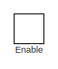
[diagram: bouncing_model1/onsurface_model - part 1/6, top center region]
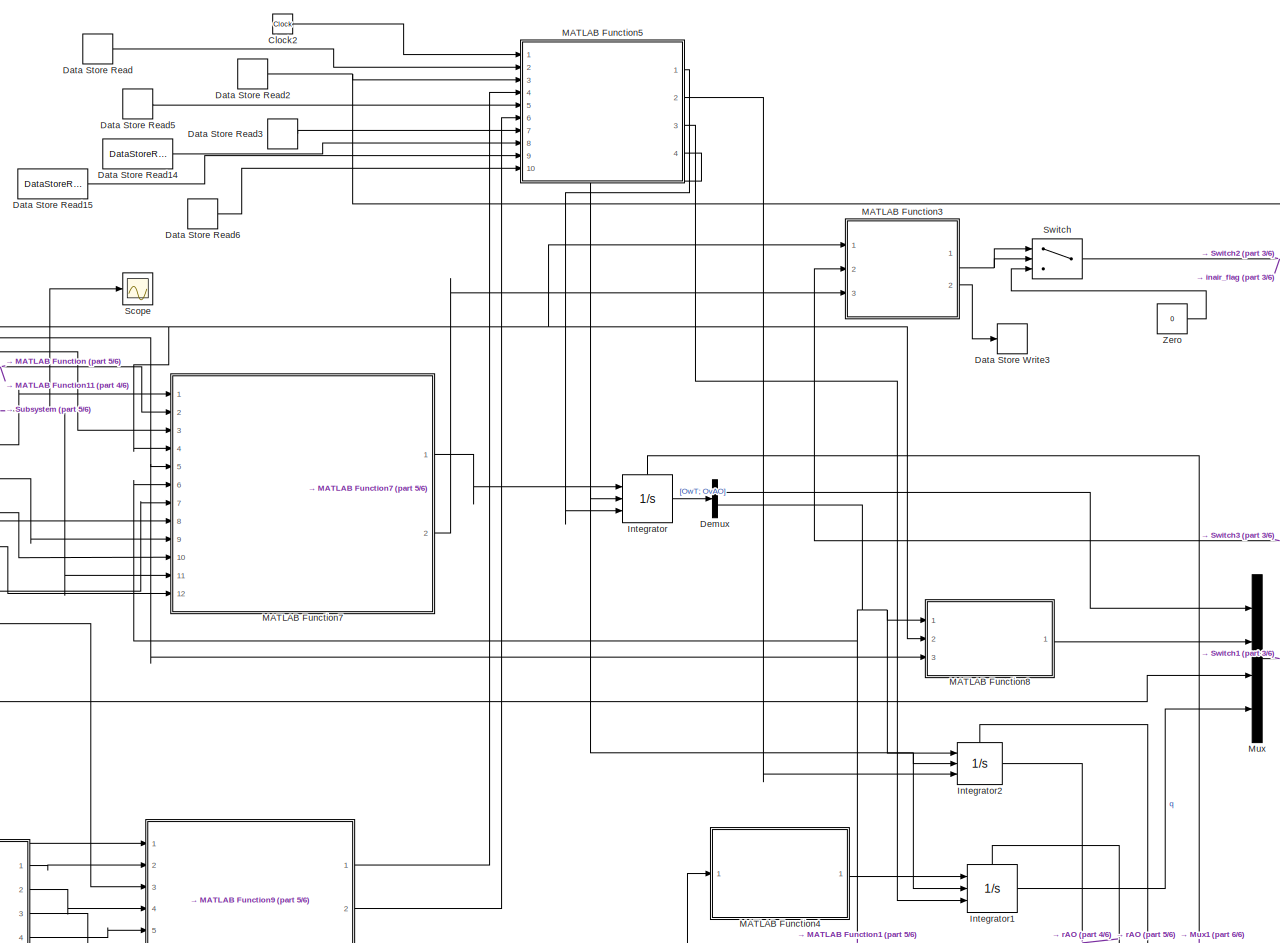
[diagram: bouncing_model1/onsurface_model - part 2/6, central region]
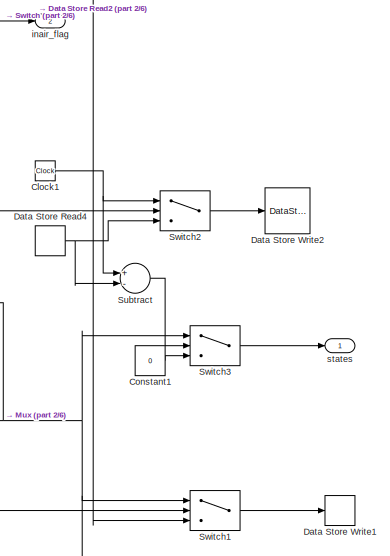
[diagram: bouncing_model1/onsurface_model - part 3/6, middle right region]
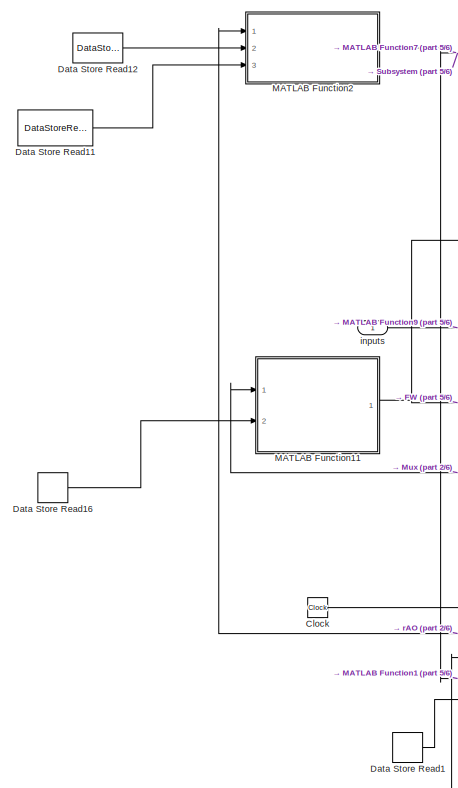
[diagram: bouncing_model1/onsurface_model - part 4/6, middle left region]
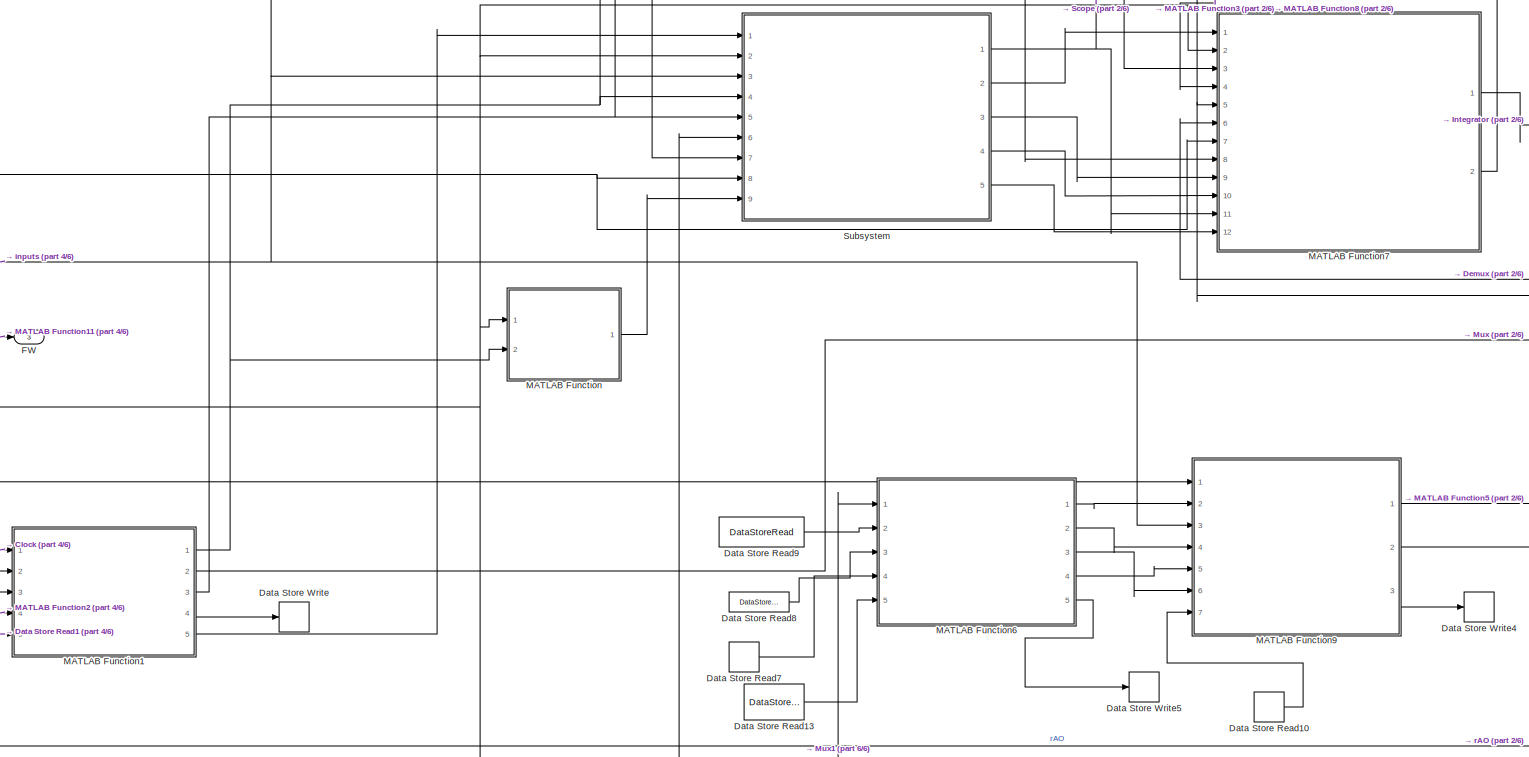
[diagram: bouncing_model1/onsurface_model - part 5/6, bottom center region]
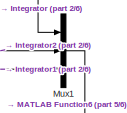
[diagram: bouncing_model1/onsurface_model - part 6/6, bottom right region]
BLOCK [SubSystem] bouncing_model1/onsurface_model
  Ports = [1, 3, 1]
  RequestExecContextInheritance = off
BLOCK [Clock] bouncing_model1/onsurface_model/Clock
BLOCK [Clock] bouncing_model1/onsurface_model/Clock1
BLOCK [Clock] bouncing_model1/onsurface_model/Clock2
BLOCK [Constant] bouncing_model1/onsurface_model/Constant1
  Value = 0
  VectorParams1D = off
BLOCK [DataStoreRead] bouncing_model1/onsurface_model/Data Store Read
  DataStoreName = jAp
  Ports = [0, 1]
BLOCK [DataStoreRead] bouncing_model1/onsurface_model/Data Store Read1
  DataStoreName = jAp
  Ports = [0, 1]
BLOCK [DataStoreRead] bouncing_model1/onsurface_model/Data Store Read10
  DataStoreName = jRp
  Ports = [0, 1]
BLOCK [DataStoreRead] bouncing_model1/onsurface_model/Data Store Read11
  DataStoreName = rock_cents
  Ports = [0, 1]
BLOCK [DataStoreRead] bouncing_model1/onsurface_model/Data Store Read12
  DataStoreName = surf_num
  Ports = [0, 1]
BLOCK [DataStoreRead] bouncing_model1/onsurface_model/Data Store Read13
  DataStoreName = surf_num
  Ports = [0, 1]
BLOCK [DataStoreRead] bouncing_model1/onsurface_model/Data Store Read14
  DataStoreName = rock_cents
  Ports = [0, 1]
BLOCK [DataStoreRead] bouncing_model1/onsurface_model/Data Store Read15
  DataStoreName = rock_radi
  Ports = [0, 1]
BLOCK [DataStoreRead] bouncing_model1/onsurface_model/Data Store Read16
  DataStoreName = wind_vel
  Ports = [0, 1]
BLOCK [DataStoreRead] bouncing_model1/onsurface_model/Data Store Read2
  DataStoreName = states
  Ports = [0, 1]
BLOCK [DataStoreRead] bouncing_model1/onsurface_model/Data Store Read3
  DataStoreName = surf_num
  Ports = [0, 1]
BLOCK [DataStoreRead] bouncing_model1/onsurface_model/Data Store Read4
  DataStoreName = switch_t
  Ports = [0, 1]
BLOCK [DataStoreRead] bouncing_model1/onsurface_model/Data Store Read5
  DataStoreName = r_AO
  Ports = [0, 1]
BLOCK [DataStoreRead] bouncing_model1/onsurface_model/Data Store Read6
  DataStoreName = switch_t
  Ports = [0, 1]
BLOCK [DataStoreRead] bouncing_model1/onsurface_model/Data Store Read7
  DataStoreName = jAp
  Ports = [0, 1]
BLOCK [DataStoreRead] bouncing_model1/onsurface_model/Data Store Read8
  DataStoreName = rock_radi
  Ports = [0, 1]
BLOCK [DataStoreRead] bouncing_model1/onsurface_model/Data Store Read9
  DataStoreName = rock_cents
  Ports = [0, 1]
BLOCK [DataStoreWrite] bouncing_model1/onsurface_model/Data Store Write
  DataStoreName = jAp
  Ports = [1]
BLOCK [DataStoreWrite] bouncing_model1/onsurface_model/Data Store Write1
  DataStoreName = states
  Ports = [1]
BLOCK [DataStoreWrite] bouncing_model1/onsurface_model/Data Store Write2
  DataStoreName = switch_t
  Ports = [1]
BLOCK [DataStoreWrite] bouncing_model1/onsurface_model/Data Store Write3
  DataStoreName = FN
  Ports = [1]
BLOCK [DataStoreWrite] bouncing_model1/onsurface_model/Data Store Write4
  DataStoreName = jRp
  Ports = [1]
BLOCK [DataStoreWrite] bouncing_model1/onsurface_model/Data Store Write5
  DataStoreName = surf_num
  Ports = [1]
BLOCK [Demux] bouncing_model1/onsurface_model/Demux
  DisplayOption = bar
  Outputs = [3;3]
  Ports = [1, 2]
BLOCK [EnablePort] bouncing_model1/onsurface_model/Enable
  Ports = []
  StatesWhenEnabling = reset
BLOCK [Outport] bouncing_model1/onsurface_model/FW
  IconDisplay = Port number
  Port = 3
BLOCK [Integrator] bouncing_model1/onsurface_model/Integrator
  ExternalReset = level hold
  InitialConditionSource = external
  Ports = [3, 1, 0, 0, 1]
  ShowStatePort = on
BLOCK [Integrator] bouncing_model1/onsurface_model/Integrator1
  ExternalReset = level hold
  InitialConditionSource = external
  Ports = [3, 1, 0, 0, 1]
  ShowStatePort = on
BLOCK [Integrator] bouncing_model1/onsurface_model/Integrator2
  ExternalReset = level hold
  InitialCondition = [0;0;10]
  InitialConditionSource = external
  Ports = [3, 1, 0, 0, 1]
  ShowStatePort = on
BLOCK [SubSystem] bouncing_model1/onsurface_model/MATLAB Function
  ErrorFcn = Stateflow.Translate.translate
  PermitHierarchicalResolution = ExplicitOnly
  Ports = [2, 1]
  RequestExecContextInheritance = off
  SFBlockType = MATLAB Function
  TreatAsAtomicUnit = on
BLOCK [Demux] bouncing_model1/onsurface_model/MATLAB Function/ Demux 
  Outputs = 1
  Ports = [1, 1]
BLOCK [S-Function] bouncing_model1/onsurface_model/MATLAB Function/ SFunction 
  EnableBusSupport = on
  FunctionName = sf_sfun
  Parameters = R
  PortCounts = [2 2]
  Ports = [2, 2]
  SFcnIsStateOwnerBlock = off
  SFunctionDeploymentMode = off
  Tag = Stateflow S-Function comprehensive_model_with_rocks_trial 34
BLOCK [Terminator] bouncing_model1/onsurface_model/MATLAB Function/ Terminator 
BLOCK [Inport] bouncing_model1/onsurface_model/MATLAB Function/O_c_A
  IconDisplay = Port number
  Port = 2
BLOCK [Outport] bouncing_model1/onsurface_model/MATLAB Function/slip_flag0
  IconDisplay = Port number
BLOCK [Inport] bouncing_model1/onsurface_model/MATLAB Function/states
  IconDisplay = Port number
BLOCK [SubSystem] bouncing_model1/onsurface_model/MATLAB Function1
  ErrorFcn = Stateflow.Translate.translate
  PermitHierarchicalResolution = ExplicitOnly
  Ports = [5, 5]
  Priority = 1
  RequestExecContextInheritance = off
  SFBlockType = MATLAB Function
  TreatAsAtomicUnit = on
BLOCK [Demux] bouncing_model1/onsurface_model/MATLAB Function1/ Demux 
  Outputs = 1
  Ports = [1, 1]
BLOCK [S-Function] bouncing_model1/onsurface_model/MATLAB Function1/ SFunction 
  EnableBusSupport = on
  FunctionName = sf_sfun
  Parameters = R
  PortCounts = [5 6]
  Ports = [5, 6]
  SFcnIsStateOwnerBlock = off
  SFunctionDeploymentMode = off
  Tag = Stateflow S-Function comprehensive_model_with_rocks_trial 35
BLOCK [Terminator] bouncing_model1/onsurface_model/MATLAB Function1/ Terminator 
BLOCK [Outport] bouncing_model1/onsurface_model/MATLAB Function1/O_c_A
  IconDisplay = Port number
BLOCK [Inport] bouncing_model1/onsurface_model/MATLAB Function1/O_v_AO
  IconDisplay = Port number
  Port = 3
BLOCK [Outport] bouncing_model1/onsurface_model/MATLAB Function1/O_w_A
  IconDisplay = Port number
  Port = 3
BLOCK [Outport] bouncing_model1/onsurface_model/MATLAB Function1/flag
  IconDisplay = Port number
  Port = 5
BLOCK [Outport] bouncing_model1/onsurface_model/MATLAB Function1/jA
  IconDisplay = Port number
  Port = 4
BLOCK [Inport] bouncing_model1/onsurface_model/MATLAB Function1/jAp
  IconDisplay = Port number
  Port = 5
BLOCK [Inport] bouncing_model1/onsurface_model/MATLAB Function1/par_diffs
  IconDisplay = Port number
  Port = 4
BLOCK [Inport] bouncing_model1/onsurface_model/MATLAB Function1/r_AO
  IconDisplay = Port number
  Port = 2
BLOCK [Outport] bouncing_model1/onsurface_model/MATLAB Function1/r_TO
  IconDisplay = Port number
  Port = 2
BLOCK [Inport] bouncing_model1/onsurface_model/MATLAB Function1/t
  IconDisplay = Port number
BLOCK [SubSystem] bouncing_model1/onsurface_model/MATLAB Function11
  ErrorFcn = Stateflow.Translate.translate
  PermitHierarchicalResolution = ExplicitOnly
  Ports = [2, 1]
  RequestExecContextInheritance = off
  SFBlockType = MATLAB Function
  TreatAsAtomicUnit = on
BLOCK [Demux] bouncing_model1/onsurface_model/MATLAB Function11/ Demux 
  Outputs = 1
  Ports = [1, 1]
BLOCK [S-Function] bouncing_model1/onsurface_model/MATLAB Function11/ SFunction 
  EnableBusSupport = on
  FunctionName = sf_sfun
  Parameters = Ar,CD,rho
  PortCounts = [2 2]
  Ports = [2, 2]
  SFcnIsStateOwnerBlock = off
  SFunctionDeploymentMode = off
  Tag = Stateflow S-Function comprehensive_model_with_rocks_trial 36
BLOCK [Terminator] bouncing_model1/onsurface_model/MATLAB Function11/ Terminator 
BLOCK [Outport] bouncing_model1/onsurface_model/MATLAB Function11/FW
  IconDisplay = Port number
BLOCK [Inport] bouncing_model1/onsurface_model/MATLAB Function11/states
  IconDisplay = Port number
BLOCK [Inport] bouncing_model1/onsurface_model/MATLAB Function11/wx
  IconDisplay = Port number
  Port = 2
BLOCK [SubSystem] bouncing_model1/onsurface_model/MATLAB Function2
  ErrorFcn = Stateflow.Translate.translate
  PermitHierarchicalResolution = ExplicitOnly
  Ports = [3, 1]
  RequestExecContextInheritance = off
  SFBlockType = MATLAB Function
  TreatAsAtomicUnit = on
BLOCK [Demux] bouncing_model1/onsurface_model/MATLAB Function2/ Demux 
  Outputs = 1
  Ports = [1, 1]
BLOCK [S-Function] bouncing_model1/onsurface_model/MATLAB Function2/ SFunction 
  EnableBusSupport = on
  FunctionName = sf_sfun
  PortCounts = [3 2]
  Ports = [3, 2]
  SFcnIsStateOwnerBlock = off
  SFunctionDeploymentMode = off
  Tag = Stateflow S-Function comprehensive_model_with_rocks_trial 37
BLOCK [Terminator] bouncing_model1/onsurface_model/MATLAB Function2/ Terminator 
BLOCK [Outport] bouncing_model1/onsurface_model/MATLAB Function2/par_diffs
  IconDisplay = Port number
BLOCK [Inport] bouncing_model1/onsurface_model/MATLAB Function2/r_AO
  IconDisplay = Port number
BLOCK [Inport] bouncing_model1/onsurface_model/MATLAB Function2/rock_cents
  IconDisplay = Port number
  Port = 3
BLOCK [Inport] bouncing_model1/onsurface_model/MATLAB Function2/surf_num
  IconDisplay = Port number
  Port = 2
BLOCK [SubSystem] bouncing_model1/onsurface_model/MATLAB Function3
  ErrorFcn = Stateflow.Translate.translate
  PermitHierarchicalResolution = ExplicitOnly
  Ports = [3, 2]
  RequestExecContextInheritance = off
  SFBlockType = MATLAB Function
  TreatAsAtomicUnit = on
BLOCK [Demux] bouncing_model1/onsurface_model/MATLAB Function3/ Demux 
  Outputs = 1
  Ports = [1, 1]
BLOCK [S-Function] bouncing_model1/onsurface_model/MATLAB Function3/ SFunction 
  EnableBusSupport = on
  FunctionName = sf_sfun
  PortCounts = [3 3]
  Ports = [3, 3]
  SFcnIsStateOwnerBlock = off
  SFunctionDeploymentMode = off
  Tag = Stateflow S-Function comprehensive_model_with_rocks_trial 38
BLOCK [Terminator] bouncing_model1/onsurface_model/MATLAB Function3/ Terminator 
BLOCK [Outport] bouncing_model1/onsurface_model/MATLAB Function3/FN
  IconDisplay = Port number
  Port = 2
BLOCK [Inport] bouncing_model1/onsurface_model/MATLAB Function3/FN 
  IconDisplay = Port number
  Port = 3
BLOCK [Inport] bouncing_model1/onsurface_model/MATLAB Function3/O_c_A
  IconDisplay = Port number
BLOCK [Outport] bouncing_model1/onsurface_model/MATLAB Function3/inair_flag
  IconDisplay = Port number
BLOCK [Inport] bouncing_model1/onsurface_model/MATLAB Function3/states
  IconDisplay = Port number
  Port = 2
BLOCK [SubSystem] bouncing_model1/onsurface_model/MATLAB Function4
  ErrorFcn = Stateflow.Translate.translate
  PermitHierarchicalResolution = ExplicitOnly
  Ports = [1, 1]
  RequestExecContextInheritance = off
  SFBlockType = MATLAB Function
  TreatAsAtomicUnit = on
BLOCK [Demux] bouncing_model1/onsurface_model/MATLAB Function4/ Demux 
  Outputs = 1
  Ports = [1, 1]
BLOCK [S-Function] bouncing_model1/onsurface_model/MATLAB Function4/ SFunction 
  EnableBusSupport = on
  FunctionName = sf_sfun
  Parameters = YY
  PortCounts = [1 2]
  Ports = [1, 2]
  SFcnIsStateOwnerBlock = off
  SFunctionDeploymentMode = off
  Tag = Stateflow S-Function comprehensive_model_with_rocks_trial 39
BLOCK [Terminator] bouncing_model1/onsurface_model/MATLAB Function4/ Terminator 
BLOCK [Outport] bouncing_model1/onsurface_model/MATLAB Function4/q_dot
  IconDisplay = Port number
BLOCK [Inport] bouncing_model1/onsurface_model/MATLAB Function4/states
  IconDisplay = Port number
BLOCK [SubSystem] bouncing_model1/onsurface_model/MATLAB Function5
  ErrorFcn = Stateflow.Translate.translate
  PermitHierarchicalResolution = ExplicitOnly
  Ports = [10, 4]
  RequestExecContextInheritance = off
  SFBlockType = MATLAB Function
  TreatAsAtomicUnit = on
BLOCK [Demux] bouncing_model1/onsurface_model/MATLAB Function5/ Demux 
  Outputs = 1
  Ports = [1, 1]
BLOCK [S-Function] bouncing_model1/onsurface_model/MATLAB Function5/ SFunction 
  EnableBusSupport = on
  FunctionName = sf_sfun
  Parameters = R
  PortCounts = [10 5]
  Ports = [10, 5]
  SFcnIsStateOwnerBlock = off
  SFunctionDeploymentMode = off
  Tag = Stateflow S-Function comprehensive_model_with_rocks_trial 40
BLOCK [Terminator] bouncing_model1/onsurface_model/MATLAB Function5/ Terminator 
BLOCK [Outport] bouncing_model1/onsurface_model/MATLAB Function5/OwT_OvAO0
  IconDisplay = Port number
BLOCK [Inport] bouncing_model1/onsurface_model/MATLAB Function5/jAp
  IconDisplay = Port number
  Port = 2
BLOCK [Outport] bouncing_model1/onsurface_model/MATLAB Function5/q
  IconDisplay = Port number
  Port = 3
BLOCK [Outport] bouncing_model1/onsurface_model/MATLAB Function5/r_AO0
  IconDisplay = Port number
  Port = 2
BLOCK [Inport] bouncing_model1/onsurface_model/MATLAB Function5/r_AO0 
  IconDisplay = Port number
  Port = 5
BLOCK [Inport] bouncing_model1/onsurface_model/MATLAB Function5/rock_cents
  IconDisplay = Port number
  Port = 8
BLOCK [Inport] bouncing_model1/onsurface_model/MATLAB Function5/rock_radi
  IconDisplay = Port number
  Port = 9
BLOCK [Outport] bouncing_model1/onsurface_model/MATLAB Function5/roll_reset_flag
  IconDisplay = Port number
  Port = 4
BLOCK [Inport] bouncing_model1/onsurface_model/MATLAB Function5/roll_reset_flag 
  IconDisplay = Port number
  Port = 6
BLOCK [Inport] bouncing_model1/onsurface_model/MATLAB Function5/states_from_memory
  IconDisplay = Port number
  Port = 3
BLOCK [Inport] bouncing_model1/onsurface_model/MATLAB Function5/states_internal
  IconDisplay = Port number
  Port = 4
BLOCK [Inport] bouncing_model1/onsurface_model/MATLAB Function5/surf_num
  IconDisplay = Port number
  Port = 7
BLOCK [Inport] bouncing_model1/onsurface_model/MATLAB Function5/switch_t
  IconDisplay = Port number
  Port = 10
BLOCK [Inport] bouncing_model1/onsurface_model/MATLAB Function5/t
  IconDisplay = Port number
BLOCK [SubSystem] bouncing_model1/onsurface_model/MATLAB Function6
  ErrorFcn = Stateflow.Translate.translate
  PermitHierarchicalResolution = ExplicitOnly
  Ports = [5, 5]
  RequestExecContextInheritance = off
  SFBlockType = MATLAB Function
  TreatAsAtomicUnit = on
BLOCK [Demux] bouncing_model1/onsurface_model/MATLAB Function6/ Demux 
  Outputs = 1
  Ports = [1, 1]
BLOCK [S-Function] bouncing_model1/onsurface_model/MATLAB Function6/ SFunction 
  EnableBusSupport = on
  FunctionName = sf_sfun
  Parameters = R
  PortCounts = [5 6]
  Ports = [5, 6]
  SFcnIsStateOwnerBlock = off
  SFunctionDeploymentMode = off
  Tag = Stateflow S-Function comprehensive_model_with_rocks_trial 41
BLOCK [Terminator] bouncing_model1/onsurface_model/MATLAB Function6/ Terminator 
BLOCK [Inport] bouncing_model1/onsurface_model/MATLAB Function6/jAp
  IconDisplay = Port number
  Port = 4
BLOCK [Outport] bouncing_model1/onsurface_model/MATLAB Function6/point_on_rock
  IconDisplay = Port number
  Port = 2
BLOCK [Inport] bouncing_model1/onsurface_model/MATLAB Function6/rock_cents
  IconDisplay = Port number
  Port = 2
BLOCK [Outport] bouncing_model1/onsurface_model/MATLAB Function6/rock_coll_flag
  IconDisplay = Port number
  Port = 4
BLOCK [Outport] bouncing_model1/onsurface_model/MATLAB Function6/rock_pardiffs
  IconDisplay = Port number
  Port = 3
BLOCK [Inport] bouncing_model1/onsurface_model/MATLAB Function6/rock_radi
  IconDisplay = Port number
  Port = 3
BLOCK [Inport] bouncing_model1/onsurface_model/MATLAB Function6/states
  IconDisplay = Port number
BLOCK [Outport] bouncing_model1/onsurface_model/MATLAB Function6/states0
  IconDisplay = Port number
BLOCK [Outport] bouncing_model1/onsurface_model/MATLAB Function6/surf_num
  IconDisplay = Port number
  Port = 5
BLOCK [Inport] bouncing_model1/onsurface_model/MATLAB Function6/surf_num 
  IconDisplay = Port number
  Port = 5
BLOCK [SubSystem] bouncing_model1/onsurface_model/MATLAB Function7
  ErrorFcn = Stateflow.Translate.translate
  PermitHierarchicalResolution = ExplicitOnly
  Ports = [12, 2]
  RequestExecContextInheritance = off
  SFBlockType = MATLAB Function
  TreatAsAtomicUnit = on
BLOCK [Demux] bouncing_model1/onsurface_model/MATLAB Function7/ Demux 
  Outputs = 1
  Ports = [1, 1]
BLOCK [S-Function] bouncing_model1/onsurface_model/MATLAB Function7/ SFunction 
  EnableBusSupport = on
  FunctionName = sf_sfun
  Parameters = Ixx,Iyy,Izz,R,g,m,mf,mu0,muk,v_thres
  PortCounts = [12 3]
  Ports = [12, 3]
  SFcnIsStateOwnerBlock = off
  SFunctionDeploymentMode = off
  Tag = Stateflow S-Function comprehensive_model_with_rocks_trial 42
BLOCK [Terminator] bouncing_model1/onsurface_model/MATLAB Function7/ Terminator 
BLOCK [Outport] bouncing_model1/onsurface_model/MATLAB Function7/FN
  IconDisplay = Port number
  Port = 2
BLOCK [Inport] bouncing_model1/onsurface_model/MATLAB Function7/FN 
  IconDisplay = Port number
  Port = 12
BLOCK [Inport] bouncing_model1/onsurface_model/MATLAB Function7/FW
  IconDisplay = Port number
  Port = 7
BLOCK [Inport] bouncing_model1/onsurface_model/MATLAB Function7/O_c_A
  IconDisplay = Port number
  Port = 4
BLOCK [Inport] bouncing_model1/onsurface_model/MATLAB Function7/O_v_AO
  IconDisplay = Port number
  Port = 6
BLOCK [Inport] bouncing_model1/onsurface_model/MATLAB Function7/O_w_A
  IconDisplay = Port number
  Port = 5
BLOCK [Inport] bouncing_model1/onsurface_model/MATLAB Function7/OalA_coeffs
  IconDisplay = Port number
  Port = 9
BLOCK [Inport] bouncing_model1/onsurface_model/MATLAB Function7/OalA_consts
  IconDisplay = Port number
  Port = 10
BLOCK [Outport] bouncing_model1/onsurface_model/MATLAB Function7/angacc_linacc
  IconDisplay = Port number
BLOCK [Inport] bouncing_model1/onsurface_model/MATLAB Function7/angacc_linacc 
  IconDisplay = Port number
BLOCK [Inport] bouncing_model1/onsurface_model/MATLAB Function7/par_diffs
  IconDisplay = Port number
  Port = 8
BLOCK [Inport] bouncing_model1/onsurface_model/MATLAB Function7/slip_flag
  IconDisplay = Port number
  Port = 11
BLOCK [Inport] bouncing_model1/onsurface_model/MATLAB Function7/states
  IconDisplay = Port number
  Port = 2
BLOCK [Inport] bouncing_model1/onsurface_model/MATLAB Function7/u
  IconDisplay = Port number
  Port = 3
BLOCK [SubSystem] bouncing_model1/onsurface_model/MATLAB Function8
  ErrorFcn = Stateflow.Translate.translate
  PermitHierarchicalResolution = ExplicitOnly
  Ports = [3, 1]
  RequestExecContextInheritance = off
  SFBlockType = MATLAB Function
  TreatAsAtomicUnit = on
BLOCK [Demux] bouncing_model1/onsurface_model/MATLAB Function8/ Demux 
  Outputs = 1
  Ports = [1, 1]
BLOCK [S-Function] bouncing_model1/onsurface_model/MATLAB Function8/ SFunction 
  EnableBusSupport = on
  FunctionName = sf_sfun
  Parameters = R
  PortCounts = [3 2]
  Ports = [3, 2]
  SFcnIsStateOwnerBlock = off
  SFunctionDeploymentMode = off
  Tag = Stateflow S-Function comprehensive_model_with_rocks_trial 43
BLOCK [Terminator] bouncing_model1/onsurface_model/MATLAB Function8/ Terminator 
BLOCK [Inport] bouncing_model1/onsurface_model/MATLAB Function8/O_c_A
  IconDisplay = Port number
  Port = 2
BLOCK [Inport] bouncing_model1/onsurface_model/MATLAB Function8/O_v_AO
  IconDisplay = Port number
BLOCK [Outport] bouncing_model1/onsurface_model/MATLAB Function8/O_v_TO
  IconDisplay = Port number
BLOCK [Inport] bouncing_model1/onsurface_model/MATLAB Function8/O_w_A
  IconDisplay = Port number
  Port = 3
BLOCK [SubSystem] bouncing_model1/onsurface_model/MATLAB Function9
  ErrorFcn = Stateflow.Translate.translate
  PermitHierarchicalResolution = ExplicitOnly
  Ports = [7, 3]
  RequestExecContextInheritance = off
  SFBlockType = MATLAB Function
  TreatAsAtomicUnit = on
BLOCK [Demux] bouncing_model1/onsurface_model/MATLAB Function9/ Demux 
  Outputs = 1
  Ports = [1, 1]
BLOCK [S-Function] bouncing_model1/onsurface_model/MATLAB Function9/ SFunction 
  EnableBusSupport = on
  FunctionName = sf_sfun
  Parameters = Ixx,Iyy,Izz,R,d,m,mf,muk,must,rest_coeff
  PortCounts = [7 4]
  Ports = [7, 4]
  SFcnIsStateOwnerBlock = off
  SFunctionDeploymentMode = off
  Tag = Stateflow S-Function comprehensive_model_with_rocks_trial 44
BLOCK [Terminator] bouncing_model1/onsurface_model/MATLAB Function9/ Terminator 
BLOCK [Outport] bouncing_model1/onsurface_model/MATLAB Function9/jR
  IconDisplay = Port number
  Port = 3
BLOCK [Inport] bouncing_model1/onsurface_model/MATLAB Function9/jRp
  IconDisplay = Port number
  Port = 7
BLOCK [Inport] bouncing_model1/onsurface_model/MATLAB Function9/r_RO
  IconDisplay = Port number
  Port = 4
BLOCK [Inport] bouncing_model1/onsurface_model/MATLAB Function9/rock_coll_flag
  IconDisplay = Port number
  Port = 5
BLOCK [Inport] bouncing_model1/onsurface_model/MATLAB Function9/rock_pardiffs
  IconDisplay = Port number
  Port = 6
BLOCK [Outport] bouncing_model1/onsurface_model/MATLAB Function9/roll_reset_flag
  IconDisplay = Port number
  Port = 2
BLOCK [Inport] bouncing_model1/onsurface_model/MATLAB Function9/states
  IconDisplay = Port number
  Port = 2
BLOCK [Outport] bouncing_model1/onsurface_model/MATLAB Function9/states0
  IconDisplay = Port number
BLOCK [Inport] bouncing_model1/onsurface_model/MATLAB Function9/t
  IconDisplay = Port number
BLOCK [Inport] bouncing_model1/onsurface_model/MATLAB Function9/u
  IconDisplay = Port number
  Port = 3
BLOCK [Mux] bouncing_model1/onsurface_model/Mux
  DisplayOption = bar
  Inputs = [3;3;3;4]
  Ports = [4, 1]
BLOCK [Mux] bouncing_model1/onsurface_model/Mux1
  DisplayOption = bar
  Inputs = [6;3;4]
  Ports = [3, 1]
BLOCK [Scope] bouncing_model1/onsurface_model/Scope
  Floating = off
  NumInputPorts = 1
  Ports = [1]
  ScopeSpecificationString = Simulink.scopes.TimeScopeBlockCfg('CurrentConfiguration', extmgr.ConfigurationSet(extmgr.Configuration('Core','General UI',true),extmgr.Configuration('Core','Source UI',true),extmgr.Configuration('Sources','WiredSimulink',true,'DataLoggingVariableName','ScopeData1'),extmgr.Configuration('Visuals','Time Domain',true,'SerializedDisplays',{struct('MinYLimReal','-0.125','MaxYLimReal','1.125','YLabelRe...<+1695ch>
BLOCK [SubSystem] bouncing_model1/onsurface_model/Subsystem
  Ports = [9, 5]
  RequestExecContextInheritance = off
BLOCK [Clock] bouncing_model1/onsurface_model/Subsystem/Clock
BLOCK [Outport] bouncing_model1/onsurface_model/Subsystem/FN
  IconDisplay = Port number
  Port = 5
BLOCK [Inport] bouncing_model1/onsurface_model/Subsystem/FW
  IconDisplay = Port number
  Port = 8
BLOCK [SubSystem] bouncing_model1/onsurface_model/Subsystem/MATLAB Function1
  ErrorFcn = Stateflow.Translate.translate
  PermitHierarchicalResolution = ExplicitOnly
  Ports = [4, 3]
  RequestExecContextInheritance = off
  SFBlockType = MATLAB Function
  TreatAsAtomicUnit = on
BLOCK [Demux] bouncing_model1/onsurface_model/Subsystem/MATLAB Function1/ Demux 
  Outputs = 1
  Ports = [1, 1]
BLOCK [S-Function] bouncing_model1/onsurface_model/Subsystem/MATLAB Function1/ SFunction 
  EnableBusSupport = on
  FunctionName = sf_sfun
  Parameters = R
  PortCounts = [4 4]
  Ports = [4, 4]
  SFcnIsStateOwnerBlock = off
  SFunctionDeploymentMode = off
  Tag = Stateflow S-Function comprehensive_model_with_rocks_trial 45
BLOCK [Terminator] bouncing_model1/onsurface_model/Subsystem/MATLAB Function1/ Terminator 
BLOCK [Outport] bouncing_model1/onsurface_model/Subsystem/MATLAB Function1/A11
  IconDisplay = Port number
BLOCK [Outport] bouncing_model1/onsurface_model/Subsystem/MATLAB Function1/A12
  IconDisplay = Port number
  Port = 2
BLOCK [Outport] bouncing_model1/onsurface_model/Subsystem/MATLAB Function1/B1
  IconDisplay = Port number
  Port = 3
BLOCK [Inport] bouncing_model1/onsurface_model/Subsystem/MATLAB Function1/O_v_AO
  IconDisplay = Port number
  Port = 3
BLOCK [Inport] bouncing_model1/onsurface_model/Subsystem/MATLAB Function1/flag
  IconDisplay = Port number
BLOCK [Inport] bouncing_model1/onsurface_model/Subsystem/MATLAB Function1/par_diffs
  IconDisplay = Port number
  Port = 4
BLOCK [Inport] bouncing_model1/onsurface_model/Subsystem/MATLAB Function1/states
  IconDisplay = Port number
  Port = 2
BLOCK [SubSystem] bouncing_model1/onsurface_model/Subsystem/MATLAB Function2
  ErrorFcn = Stateflow.Translate.translate
  PermitHierarchicalResolution = ExplicitOnly
  Ports = [9, 5]
  RequestExecContextInheritance = off
  SFBlockType = MATLAB Function
  TreatAsAtomicUnit = on
BLOCK [Demux] bouncing_model1/onsurface_model/Subsystem/MATLAB Function2/ Demux 
  Outputs = 1
  Ports = [1, 1]
BLOCK [S-Function] bouncing_model1/onsurface_model/Subsystem/MATLAB Function2/ SFunction 
  EnableBusSupport = on
  FunctionName = sf_sfun
  Parameters = Ixx,Iyy,Izz,R,YY,d,g,m,mf,mu0,muk,must,v_thres
  PortCounts = [9 6]
  Ports = [9, 6]
  SFcnIsStateOwnerBlock = off
  SFunctionDeploymentMode = off
  Tag = Stateflow S-Function comprehensive_model_with_rocks_trial 46
BLOCK [Terminator] bouncing_model1/onsurface_model/Subsystem/MATLAB Function2/ Terminator 
BLOCK [Outport] bouncing_model1/onsurface_model/Subsystem/MATLAB Function2/A21
  IconDisplay = Port number
BLOCK [Outport] bouncing_model1/onsurface_model/Subsystem/MATLAB Function2/A22
  IconDisplay = Port number
  Port = 2
BLOCK [Outport] bouncing_model1/onsurface_model/Subsystem/MATLAB Function2/B2
  IconDisplay = Port number
  Port = 3
BLOCK [Inport] bouncing_model1/onsurface_model/Subsystem/MATLAB Function2/FW
  IconDisplay = Port number
  Port = 7
BLOCK [Inport] bouncing_model1/onsurface_model/Subsystem/MATLAB Function2/O_c_A
  IconDisplay = Port number
  Port = 4
BLOCK [Inport] bouncing_model1/onsurface_model/Subsystem/MATLAB Function2/O_v_AO
  IconDisplay = Port number
  Port = 6
BLOCK [Inport] bouncing_model1/onsurface_model/Subsystem/MATLAB Function2/O_w_A
  IconDisplay = Port number
  Port = 5
BLOCK [Outport] bouncing_model1/onsurface_model/Subsystem/MATLAB Function2/OalA_coeffs
  IconDisplay = Port number
  Port = 4
BLOCK [Outport] bouncing_model1/onsurface_model/Subsystem/MATLAB Function2/OalA_consts
  IconDisplay = Port number
  Port = 5
BLOCK [Inport] bouncing_model1/onsurface_model/Subsystem/MATLAB Function2/flag
  IconDisplay = Port number
  Port = 9
BLOCK [Inport] bouncing_model1/onsurface_model/Subsystem/MATLAB Function2/par_diffs
  IconDisplay = Port number
  Port = 8
BLOCK [Inport] bouncing_model1/onsurface_model/Subsystem/MATLAB Function2/states
  IconDisplay = Port number
  Port = 2
BLOCK [Inport] bouncing_model1/onsurface_model/Subsystem/MATLAB Function2/t
  IconDisplay = Port number
BLOCK [Inport] bouncing_model1/onsurface_model/Subsystem/MATLAB Function2/u
  IconDisplay = Port number
  Port = 3
BLOCK [SubSystem] bouncing_model1/onsurface_model/Subsystem/MATLAB Function3
  ErrorFcn = Stateflow.Translate.translate
  PermitHierarchicalResolution = ExplicitOnly
  Ports = [7, 1]
  RequestExecContextInheritance = off
  SFBlockType = MATLAB Function
  TreatAsAtomicUnit = on
BLOCK [Demux] bouncing_model1/onsurface_model/Subsystem/MATLAB Function3/ Demux 
  Outputs = 1
  Ports = [1, 1]
BLOCK [S-Function] bouncing_model1/onsurface_model/Subsystem/MATLAB Function3/ SFunction 
  EnableBusSupport = on
  FunctionName = sf_sfun
  PortCounts = [7 2]
  Ports = [7, 2]
  SFcnIsStateOwnerBlock = off
  SFunctionDeploymentMode = off
  Tag = Stateflow S-Function comprehensive_model_with_rocks_trial 47
BLOCK [Terminator] bouncing_model1/onsurface_model/Subsystem/MATLAB Function3/ Terminator 
BLOCK [Inport] bouncing_model1/onsurface_model/Subsystem/MATLAB Function3/A11
  IconDisplay = Port number
  Port = 2
BLOCK [Inport] bouncing_model1/onsurface_model/Subsystem/MATLAB Function3/A12
  IconDisplay = Port number
  Port = 3
BLOCK [Inport] bouncing_model1/onsurface_model/Subsystem/MATLAB Function3/A21
  IconDisplay = Port number
  Port = 4
BLOCK [Inport] bouncing_model1/onsurface_model/Subsystem/MATLAB Function3/A22
  IconDisplay = Port number
  Port = 5
BLOCK [Inport] bouncing_model1/onsurface_model/Subsystem/MATLAB Function3/B1
  IconDisplay = Port number
  Port = 6
BLOCK [Inport] bouncing_model1/onsurface_model/Subsystem/MATLAB Function3/B2
  IconDisplay = Port number
  Port = 7
BLOCK [Outport] bouncing_model1/onsurface_model/Subsystem/MATLAB Function3/angacc_linacc
  IconDisplay = Port number
BLOCK [Inport] bouncing_model1/onsurface_model/Subsystem/MATLAB Function3/t
  IconDisplay = Port number
BLOCK [SubSystem] bouncing_model1/onsurface_model/Subsystem/MATLAB Function6
  ErrorFcn = Stateflow.Translate.translate
  PermitHierarchicalResolution = ExplicitOnly
  Ports = [9, 2]
  RequestExecContextInheritance = off
  SFBlockType = MATLAB Function
  TreatAsAtomicUnit = on
BLOCK [Demux] bouncing_model1/onsurface_model/Subsystem/MATLAB Function6/ Demux 
  Outputs = 1
  Ports = [1, 1]
BLOCK [S-Function] bouncing_model1/onsurface_model/Subsystem/MATLAB Function6/ SFunction 
  EnableBusSupport = on
  FunctionName = sf_sfun
  Parameters = R,g,m,mf,mu0,must,v_thres
  PortCounts = [9 3]
  Ports = [9, 3]
  SFcnIsStateOwnerBlock = off
  SFunctionDeploymentMode = off
  Tag = Stateflow S-Function comprehensive_model_with_rocks_trial 48
BLOCK [Terminator] bouncing_model1/onsurface_model/Subsystem/MATLAB Function6/ Terminator 
BLOCK [Outport] bouncing_model1/onsurface_model/Subsystem/MATLAB Function6/FN
  IconDisplay = Port number
  Port = 2
BLOCK [Inport] bouncing_model1/onsurface_model/Subsystem/MATLAB Function6/FW
  IconDisplay = Port number
  Port = 9
BLOCK [Inport] bouncing_model1/onsurface_model/Subsystem/MATLAB Function6/O_c_A
  IconDisplay = Port number
  Port = 4
BLOCK [Inport] bouncing_model1/onsurface_model/Subsystem/MATLAB Function6/O_w_A
  IconDisplay = Port number
  Port = 5
BLOCK [Inport] bouncing_model1/onsurface_model/Subsystem/MATLAB Function6/OalA_coeffs
  IconDisplay = Port number
  Port = 6
BLOCK [Inport] bouncing_model1/onsurface_model/Subsystem/MATLAB Function6/OalA_consts
  IconDisplay = Port number
  Port = 7
BLOCK [Inport] bouncing_model1/onsurface_model/Subsystem/MATLAB Function6/angacc_linacc
  IconDisplay = Port number
BLOCK [Outport] bouncing_model1/onsurface_model/Subsystem/MATLAB Function6/slip_flag
  IconDisplay = Port number
BLOCK [Inport] bouncing_model1/onsurface_model/Subsystem/MATLAB Function6/slip_flag0
  IconDisplay = Port number
  Port = 8
BLOCK [Inport] bouncing_model1/onsurface_model/Subsystem/MATLAB Function6/states
  IconDisplay = Port number
  Port = 2
BLOCK [Inport] bouncing_model1/onsurface_model/Subsystem/MATLAB Function6/u
  IconDisplay = Port number
  Port = 3
BLOCK [Inport] bouncing_model1/onsurface_model/Subsystem/O_c_A
  IconDisplay = Port number
  Port = 4
BLOCK [Inport] bouncing_model1/onsurface_model/Subsystem/O_v_AO
  IconDisplay = Port number
  Port = 6
BLOCK [Inport] bouncing_model1/onsurface_model/Subsystem/O_w_A
  IconDisplay = Port number
  Port = 5
BLOCK [Outport] bouncing_model1/onsurface_model/Subsystem/OalA_coeffs
  IconDisplay = Port number
  Port = 3
BLOCK [Outport] bouncing_model1/onsurface_model/Subsystem/OalA_consts
  IconDisplay = Port number
  Port = 4
BLOCK [Outport] bouncing_model1/onsurface_model/Subsystem/angacc_linacc
  IconDisplay = Port number
  Port = 2
BLOCK [Inport] bouncing_model1/onsurface_model/Subsystem/flag
  IconDisplay = Port number
BLOCK [Inport] bouncing_model1/onsurface_model/Subsystem/inputs
  IconDisplay = Port number
  Port = 3
BLOCK [Inport] bouncing_model1/onsurface_model/Subsystem/par_diffs
  IconDisplay = Port number
  Port = 7
BLOCK [Outport] bouncing_model1/onsurface_model/Subsystem/slip_flag
  IconDisplay = Port number
BLOCK [Inport] bouncing_model1/onsurface_model/Subsystem/slip_flag0
  IconDisplay = Port number
  Port = 9
BLOCK [Inport] bouncing_model1/onsurface_model/Subsystem/states
  IconDisplay = Port number
  Port = 2
BLOCK [Sum] bouncing_model1/onsurface_model/Subtract
  InputSameDT = off
  Inputs = +-
  OutDataTypeStr = Inherit: Inherit via internal rule
  Ports = [2, 1]
  SaturateOnIntegerOverflow = off
BLOCK [Switch] bouncing_model1/onsurface_model/Switch
  Criteria = u2 > Threshold
  InputSameDT = off
  SaturateOnIntegerOverflow = off
BLOCK [Switch] bouncing_model1/onsurface_model/Switch1
  Criteria = u2 > Threshold
  InputSameDT = off
  SaturateOnIntegerOverflow = off
BLOCK [Switch] bouncing_model1/onsurface_model/Switch2
  Criteria = u2 > Threshold
  InputSameDT = off
  SaturateOnIntegerOverflow = off
BLOCK [Switch] bouncing_model1/onsurface_model/Switch3
  Criteria = u2 > Threshold
  InputSameDT = off
  SaturateOnIntegerOverflow = off
BLOCK [Constant] bouncing_model1/onsurface_model/Zero
  OutDataTypeStr = Inherit: Inherit via back propagation
  Value = 0
BLOCK [Outport] bouncing_model1/onsurface_model/inair_flag
  IconDisplay = Port number
  InitialOutput = 1
  Port = 2
BLOCK [Inport] bouncing_model1/onsurface_model/inputs 
  IconDisplay = Port number
BLOCK [Outport] bouncing_model1/onsurface_model/states
  IconDisplay = Port number
BLOCK [Outport] bouncing_model1/states
  IconDisplay = Port number
BLOCK [SubSystem] command filter based backstepper
  Commented = on
  Ports = [4, 1]
  RequestExecContextInheritance = off
BLOCK [Sum] command filter based backstepper/Add
  InputSameDT = off
  Inputs = +--
  OutDataTypeStr = Inherit: Inherit via internal rule
  Ports = [3, 1]
  SaturateOnIntegerOverflow = off
BLOCK [Sum] command filter based backstepper/Add1
  InputSameDT = off
  OutDataTypeStr = Inherit: Inherit via internal rule
  Ports = [2, 1]
  SaturateOnIntegerOverflow = off
BLOCK [Reference] command filter based backstepper/Band-Limited White Noise  REF=simulink/Sources/Band-Limited
White Noise
  Commented = on
  Ports = [0, 1]
  SourceBlock = simulink/Sources/Band-Limited\nWhite Noise
  SourceProductBaseCode = SL
  SourceProductName = Simulink
  SourceType = Band-Limited White Noise.
BLOCK [Clock] command filter based backstepper/Clock
BLOCK [SubSystem] command filter based backstepper/Command filter
  Ports = [1, 2]
  RequestExecContextInheritance = off
BLOCK [Demux] command filter based backstepper/Command filter/Demux
  Commented = on
  DisplayOption = bar
  Outputs = 3
  Ports = [1, 3]
BLOCK [Demux] command filter based backstepper/Command filter/Demux1
  Commented = on
  DisplayOption = bar
  Outputs = 2
  Ports = [1, 2]
BLOCK [Demux] command filter based backstepper/Command filter/Demux2
  Commented = on
  DisplayOption = bar
  Outputs = 2
  Ports = [1, 2]
BLOCK [Demux] command filter based backstepper/Command filter/Demux3
  Commented = on
  DisplayOption = bar
  Outputs = 2
  Ports = [1, 2]
BLOCK [Demux] command filter based backstepper/Command filter/Demux4
  DisplayOption = bar
  Outputs = 3
  Ports = [1, 3]
BLOCK [Gain] command filter based backstepper/Command filter/Gain
  Gain = 2
  OutDataTypeStr = Inherit: Inherit via internal rule
  ParamDataTypeStr = Inherit: Inherit via internal rule
  SaturateOnIntegerOverflow = off
BLOCK [Gain] command filter based backstepper/Command filter/Gain1
  Gain = 2
  OutDataTypeStr = Inherit: Inherit via internal rule
  ParamDataTypeStr = Inherit: Inherit via internal rule
  SaturateOnIntegerOverflow = off
BLOCK [Gain] command filter based backstepper/Command filter/Gain2
  Gain = 2
  OutDataTypeStr = Inherit: Inherit via internal rule
  ParamDataTypeStr = Inherit: Inherit via internal rule
  SaturateOnIntegerOverflow = off
BLOCK [Gain] command filter based backstepper/Command filter/Gain3
  Gain = 5
  OutDataTypeStr = Inherit: Inherit via internal rule
  ParamDataTypeStr = Inherit: Inherit via internal rule
  SaturateOnIntegerOverflow = off
BLOCK [Gain] command filter based backstepper/Command filter/Gain4
  Gain = 5
  OutDataTypeStr = Inherit: Inherit via internal rule
  ParamDataTypeStr = Inherit: Inherit via internal rule
  SaturateOnIntegerOverflow = off
BLOCK [Gain] command filter based backstepper/Command filter/Gain5
  Gain = 5
  OutDataTypeStr = Inherit: Inherit via internal rule
  ParamDataTypeStr = Inherit: Inherit via internal rule
  SaturateOnIntegerOverflow = off
BLOCK [Integrator] command filter based backstepper/Command filter/Integrator
  Ports = [1, 1]
BLOCK [Integrator] command filter based backstepper/Command filter/Integrator1
  InitialCondition = 0.325
  Ports = [1, 1]
BLOCK [Integrator] command filter based backstepper/Command filter/Integrator2
  Ports = [1, 1]
BLOCK [Integrator] command filter based backstepper/Command filter/Integrator3
  Ports = [1, 1]
BLOCK [Integrator] command filter based backstepper/Command filter/Integrator4
  InitialCondition = 0.325
  Ports = [1, 1]
BLOCK [Integrator] command filter based backstepper/Command filter/Integrator5
  InitialCondition = 0.325
  Ports = [1, 1]
BLOCK [Mux] command filter based backstepper/Command filter/Mux
  Commented = on
  DisplayOption = bar
  Inputs = 3
  Ports = [3, 1]
BLOCK [Mux] command filter based backstepper/Command filter/Mux1
  Commented = on
  DisplayOption = bar
  Inputs = 3
  Ports = [3, 1]
BLOCK [Mux] command filter based backstepper/Command filter/Mux2
  DisplayOption = bar
  Inputs = 3
  Ports = [3, 1]
BLOCK [Mux] command filter based backstepper/Command filter/Mux3
  DisplayOption = bar
  Inputs = 3
  Ports = [3, 1]
BLOCK [StateSpace] command filter based backstepper/Command filter/State-Space
  A = [0, 10; -2*0.8*10, -10]
  B = [0;20]
  C = [1,0;0,1]
  Commented = on
  D = [0;0]
  InitialCondition = [0;0]
  Ports = [1, 1]
BLOCK [StateSpace] command filter based backstepper/Command filter/State-Space1
  A = [0, 10; -2*0.8*10, -10]
  B = [0;20]
  C = [1,0;0,1]
  Commented = on
  D = [0;0]
  InitialCondition = [0;0]
  Ports = [1, 1]
BLOCK [StateSpace] command filter based backstepper/Command filter/State-Space2
  A = [0, 10; -2*0.8*10, -10]
  B = [0;5]
  C = [1,0;0,1]
  Commented = on
  D = [0;0]
  InitialCondition = [0;0]
  Ports = [1, 1]
BLOCK [Sum] command filter based backstepper/Command filter/Subtract
  InputSameDT = off
  Inputs = +-
  OutDataTypeStr = Inherit: Inherit via internal rule
  Ports = [2, 1]
  SaturateOnIntegerOverflow = off
BLOCK [Sum] command filter based backstepper/Command filter/Subtract1
  InputSameDT = off
  Inputs = +-
  OutDataTypeStr = Inherit: Inherit via internal rule
  Ports = [2, 1]
  SaturateOnIntegerOverflow = off
BLOCK [Sum] command filter based backstepper/Command filter/Subtract2
  InputSameDT = off
  Inputs = +-
  OutDataTypeStr = Inherit: Inherit via internal rule
  Ports = [2, 1]
  SaturateOnIntegerOverflow = off
BLOCK [Sum] command filter based backstepper/Command filter/Subtract3
  InputSameDT = off
  Inputs = +-
  OutDataTypeStr = Inherit: Inherit via internal rule
  Ports = [2, 1]
  SaturateOnIntegerOverflow = off
BLOCK [Sum] command filter based backstepper/Command filter/Subtract4
  InputSameDT = off
  Inputs = +-
  OutDataTypeStr = Inherit: Inherit via internal rule
  Ports = [2, 1]
  SaturateOnIntegerOverflow = off
BLOCK [Sum] command filter based backstepper/Command filter/Subtract5
  InputSameDT = off
  Inputs = +-
  OutDataTypeStr = Inherit: Inherit via internal rule
  Ports = [2, 1]
  SaturateOnIntegerOverflow = off
BLOCK [Inport] command filter based backstepper/Command filter/alpha
  IconDisplay = Port number
BLOCK [Outport] command filter based backstepper/Command filter/wc
  IconDisplay = Port number
BLOCK [Outport] command filter based backstepper/Command filter/wc_dot
  IconDisplay = Port number
  Port = 2
BLOCK [Constant] command filter based backstepper/Constant
  Value = d
BLOCK [DataStoreMemory] command filter based backstepper/Data Store Memory
  DataStoreName = v_c
  InitialValue = [0.325;0.325;0.325;0]
  ReadBeforeWriteMsg = warning
  ShowAdditionalParam = off
  WriteAfterReadMsg = warning
  WriteAfterWriteMsg = warning
BLOCK [DataStoreRead] command filter based backstepper/Data Store Read
  DataStoreName = v_c
  Ports = [0, 1]
BLOCK [DataStoreWrite] command filter based backstepper/Data Store Write
  DataStoreName = v_c
  Ports = [1]
BLOCK [Demux] command filter based backstepper/Demux
  DisplayOption = bar
  Outputs = 3
  Ports = [1, 3]
BLOCK [Demux] command filter based backstepper/Demux1
  DisplayOption = bar
  Outputs = 3
  Ports = [1, 3]
BLOCK [Demux] command filter based backstepper/Demux2
  DisplayOption = bar
  Outputs = 3
  Ports = [1, 3]
BLOCK [Demux] command filter based backstepper/Demux3
  DisplayOption = bar
  Outputs = [3;3;3;4]
  Ports = [1, 4]
BLOCK [Inport] command filter based backstepper/FW
  IconDisplay = Port number
  Port = 4
BLOCK [Integrator] command filter based backstepper/Integrator
  InitialCondition = [0;0;0]
  Ports = [1, 1]
BLOCK [Integrator] command filter based backstepper/Integrator2
  InitialCondition = [0;0;0]
  Ports = [1, 1]
BLOCK [SubSystem] command filter based backstepper/MATLAB Function
  ErrorFcn = Stateflow.Translate.translate
  PermitHierarchicalResolution = ExplicitOnly
  Ports = [10, 6]
  RequestExecContextInheritance = off
  SFBlockType = MATLAB Function
  TreatAsAtomicUnit = on
BLOCK [Demux] command filter based backstepper/MATLAB Function/ Demux 
  Outputs = 1
  Ports = [1, 1]
BLOCK [S-Function] command filter based backstepper/MATLAB Function/ SFunction 
  EnableBusSupport = on
  FunctionName = sf_sfun
  Parameters = Ixx,Iyy,Izz,R,d,g,m,maxr,mf,minr,mu0,v_thres,vmax
  PortCounts = [10 7]
  Ports = [10, 7]
  SFcnIsStateOwnerBlock = off
  SFunctionDeploymentMode = off
  Tag = Stateflow S-Function comprehensive_model_with_rocks_trial 7
BLOCK [Terminator] command filter based backstepper/MATLAB Function/ Terminator 
BLOCK [Inport] command filter based backstepper/MATLAB Function/FW
  IconDisplay = Port number
  Port = 10
BLOCK [Outport] command filter based backstepper/MATLAB Function/K2
  IconDisplay = Port number
  Port = 3
BLOCK [Outport] command filter based backstepper/MATLAB Function/M_hat
  IconDisplay = Port number
  Port = 6
BLOCK [Inport] command filter based backstepper/MATLAB Function/eta1
  IconDisplay = Port number
  Port = 8
BLOCK [Inport] command filter based backstepper/MATLAB Function/f1
  IconDisplay = Port number
  Port = 6
BLOCK [Outport] command filter based backstepper/MATLAB Function/f3_v
  IconDisplay = Port number
  Port = 2
BLOCK [Outport] command filter based backstepper/MATLAB Function/fval
  IconDisplay = Port number
  Port = 4
BLOCK [Inport] command filter based backstepper/MATLAB Function/ref
  IconDisplay = Port number
  Port = 7
BLOCK [Inport] command filter based backstepper/MATLAB Function/rm
  IconDisplay = Port number
  Port = 3
BLOCK [Inport] command filter based backstepper/MATLAB Function/states
  IconDisplay = Port number
  Port = 2
BLOCK [Inport] command filter based backstepper/MATLAB Function/t
  IconDisplay = Port number
BLOCK [Outport] command filter based backstepper/MATLAB Function/v
  IconDisplay = Port number
BLOCK [Outport] command filter based backstepper/MATLAB Function/v_c
  IconDisplay = Port number
  Port = 5
BLOCK [Inport] command filter based backstepper/MATLAB Function/v_c 
  IconDisplay = Port number
  Port = 9
BLOCK [Inport] command filter based backstepper/MATLAB Function/wc
  IconDisplay = Port number
  Port = 4
BLOCK [Inport] command filter based backstepper/MATLAB Function/wc_dot
  IconDisplay = Port number
  Port = 5
BLOCK [SubSystem] command filter based backstepper/MATLAB Function1
  ErrorFcn = Stateflow.Translate.translate
  PermitHierarchicalResolution = ExplicitOnly
  Ports = [6, 1]
  RequestExecContextInheritance = off
  SFBlockType = MATLAB Function
  TreatAsAtomicUnit = on
BLOCK [Demux] command filter based backstepper/MATLAB Function1/ Demux 
  Outputs = 1
  Ports = [1, 1]
BLOCK [S-Function] command filter based backstepper/MATLAB Function1/ SFunction 
  EnableBusSupport = on
  FunctionName = sf_sfun
  PortCounts = [6 2]
  Ports = [6, 2]
  SFcnIsStateOwnerBlock = off
  SFunctionDeploymentMode = off
  Tag = Stateflow S-Function comprehensive_model_with_rocks_trial 6
BLOCK [Terminator] command filter based backstepper/MATLAB Function1/ Terminator 
BLOCK [Inport] command filter based backstepper/MATLAB Function1/K1
  IconDisplay = Port number
  Port = 6
BLOCK [Inport] command filter based backstepper/MATLAB Function1/alpha
  IconDisplay = Port number
  Port = 3
BLOCK [Inport] command filter based backstepper/MATLAB Function1/eta1
  IconDisplay = Port number
BLOCK [Outport] command filter based backstepper/MATLAB Function1/eta1_dot
  IconDisplay = Port number
BLOCK [Inport] command filter based backstepper/MATLAB Function1/eta2
  IconDisplay = Port number
  Port = 2
BLOCK [Inport] command filter based backstepper/MATLAB Function1/f1
  IconDisplay = Port number
  Port = 5
BLOCK [Inport] command filter based backstepper/MATLAB Function1/wc
  IconDisplay = Port number
  Port = 4
BLOCK [SubSystem] command filter based backstepper/MATLAB Function2
  ErrorFcn = Stateflow.Translate.translate
  PermitHierarchicalResolution = ExplicitOnly
  Ports = [4, 1]
  RequestExecContextInheritance = off
  SFBlockType = MATLAB Function
  TreatAsAtomicUnit = on
BLOCK [Demux] command filter based backstepper/MATLAB Function2/ Demux 
  Outputs = 1
  Ports = [1, 1]
BLOCK [S-Function] command filter based backstepper/MATLAB Function2/ SFunction 
  EnableBusSupport = on
  FunctionName = sf_sfun
  PortCounts = [4 2]
  Ports = [4, 2]
  SFcnIsStateOwnerBlock = off
  SFunctionDeploymentMode = off
  Tag = Stateflow S-Function comprehensive_model_with_rocks_trial 1
BLOCK [Terminator] command filter based backstepper/MATLAB Function2/ Terminator 
BLOCK [Inport] command filter based backstepper/MATLAB Function2/K2
  IconDisplay = Port number
  Port = 2
BLOCK [Inport] command filter based backstepper/MATLAB Function2/eta2
  IconDisplay = Port number
BLOCK [Outport] command filter based backstepper/MATLAB Function2/eta2_dot
  IconDisplay = Port number
BLOCK [Inport] command filter based backstepper/MATLAB Function2/f3_u
  IconDisplay = Port number
  Port = 4
BLOCK [Inport] command filter based backstepper/MATLAB Function2/f3_v
  IconDisplay = Port number
  Port = 3
BLOCK [Memory] command filter based backstepper/Memory
  InitialCondition = [d/2;-d/2;d/2;-d/2;d/2;-d/2;0;0;0;0;0;0;0;0;0;0;0;0]
BLOCK [Mux] command filter based backstepper/Mux
  DisplayOption = bar
  Inputs = 6
  Ports = [6, 1]
BLOCK [Mux] command filter based backstepper/Mux1
  DisplayOption = bar
  Inputs = 6
  Ports = [6, 1]
BLOCK [Mux] command filter based backstepper/Mux2
  DisplayOption = bar
  Inputs = 6
  Ports = [6, 1]
BLOCK [Mux] command filter based backstepper/Mux3
  DisplayOption = bar
  Inputs = 3
  Ports = [3, 1]
BLOCK [RandomNumber] command filter based backstepper/Random Number
  Commented = on
  Mean = zeros(13,1)
  SampleTime = 0.001
  Seed = randi(1000,13,1)
  Variance = [0.1;0.1;0.1;0.1;0.1;0.1;0.2;0.2;0.2;0.01;0.01;0.01;0.01]
BLOCK [Scope] command filter based backstepper/Scope
  Floating = off
  NumInputPorts = 1
  Ports = [1]
  ScopeSpecificationString = Simulink.scopes.TimeScopeBlockCfg('CurrentConfiguration', extmgr.ConfigurationSet(extmgr.Configuration('Core','General UI',true),extmgr.Configuration('Core','Source UI',true),extmgr.Configuration('Sources','WiredSimulink',true),extmgr.Configuration('Visuals','Time Domain',true,'SerializedDisplays',{struct('MinYLimReal','-6.66194','MaxYLimReal','3.22161','YLabelReal','','MinYLimMag','0.00000','MaxY...<+1389ch>
BLOCK [Scope] command filter based backstepper/Scope1
  Floating = off
  NumInputPorts = 1
  Ports = [1]
  ScopeSpecificationString = Simulink.scopes.TimeScopeBlockCfg('CurrentConfiguration', extmgr.ConfigurationSet(extmgr.Configuration('Core','General UI',true),extmgr.Configuration('Core','Source UI',true),extmgr.Configuration('Sources','WiredSimulink',true,'DataLoggingVariableName','ScopeData6'),extmgr.Configuration('Visuals','Time Domain',true,'SerializedDisplays',{struct('MinYLimReal','-22.05513','MaxYLimReal','161.50477','Y...<+1510ch>
BLOCK [SubSystem] command filter based backstepper/Subsystem
  Commented = on
  Ports = [2, 4]
  RequestExecContextInheritance = off
BLOCK [Sum] command filter based backstepper/Subsystem/Add
  InputSameDT = off
  Inputs = +-
  OutDataTypeStr = Inherit: Inherit via internal rule
  Ports = [2, 1]
  SaturateOnIntegerOverflow = off
BLOCK [Sum] command filter based backstepper/Subsystem/Add1
  InputSameDT = off
  Inputs = +-
  OutDataTypeStr = Inherit: Inherit via internal rule
  Ports = [2, 1]
  SaturateOnIntegerOverflow = off
BLOCK [Sum] command filter based backstepper/Subsystem/Add2
  InputSameDT = off
  Inputs = +-
  OutDataTypeStr = Inherit: Inherit via internal rule
  Ports = [2, 1]
  SaturateOnIntegerOverflow = off
BLOCK [Demux] command filter based backstepper/Subsystem/Demux
  DisplayOption = bar
  Outputs = 3
  Ports = [1, 3]
BLOCK [Derivative] command filter based backstepper/Subsystem/Derivative
  CoefficientInTFapproximation = 0
BLOCK [Gain] command filter based backstepper/Subsystem/Gain
  Gain = 10^2
  OutDataTypeStr = Inherit: Inherit via internal rule
  ParamDataTypeStr = Inherit: Inherit via internal rule
  SaturateOnIntegerOverflow = off
BLOCK [Gain] command filter based backstepper/Subsystem/Gain1
  Gain = 2*0.1*10
  OutDataTypeStr = Inherit: Inherit via internal rule
  ParamDataTypeStr = Inherit: Inherit via internal rule
  SaturateOnIntegerOverflow = off
BLOCK [Gain] command filter based backstepper/Subsystem/Gain2
  Gain = 10^2
  OutDataTypeStr = Inherit: Inherit via internal rule
  ParamDataTypeStr = Inherit: Inherit via internal rule
  SaturateOnIntegerOverflow = off
BLOCK [Gain] command filter based backstepper/Subsystem/Gain3
  Gain = 2*0.1*10
  OutDataTypeStr = Inherit: Inherit via internal rule
  ParamDataTypeStr = Inherit: Inherit via internal rule
  SaturateOnIntegerOverflow = off
BLOCK [Gain] command filter based backstepper/Subsystem/Gain4
  Gain = 10^2
  OutDataTypeStr = Inherit: Inherit via internal rule
  ParamDataTypeStr = Inherit: Inherit via internal rule
  SaturateOnIntegerOverflow = off
BLOCK [Gain] command filter based backstepper/Subsystem/Gain5
  Gain = 2*0.1*10
  OutDataTypeStr = Inherit: Inherit via internal rule
  ParamDataTypeStr = Inherit: Inherit via internal rule
  SaturateOnIntegerOverflow = off
BLOCK [Integrator] command filter based backstepper/Subsystem/Integrator1
  InitialCondition = d/2
  Ports = [1, 1]
BLOCK [Integrator] command filter based backstepper/Subsystem/Integrator2
  InitialCondition = d/2
  Ports = [1, 1]
BLOCK [Integrator] command filter based backstepper/Subsystem/Integrator3
  InitialCondition = d/2
  Ports = [1, 1]
BLOCK [SubSystem] command filter based backstepper/Subsystem/MATLAB Function
  ErrorFcn = Stateflow.Translate.translate
  PermitHierarchicalResolution = ExplicitOnly
  Ports = [4, 1]
  RequestExecContextInheritance = off
  SFBlockType = MATLAB Function
  TreatAsAtomicUnit = on
BLOCK [Demux] command filter based backstepper/Subsystem/MATLAB Function/ Demux 
  Outputs = 1
  Ports = [1, 1]
BLOCK [S-Function] command filter based backstepper/Subsystem/MATLAB Function/ SFunction 
  EnableBusSupport = on
  FunctionName = sf_sfun
  Parameters = Ixx,Iyy,Izz,R,d,g,m,mf,mu0,v_thres
  PortCounts = [4 2]
  Ports = [4, 2]
  SFcnIsStateOwnerBlock = off
  SFunctionDeploymentMode = off
  Tag = Stateflow S-Function comprehensive_model_with_rocks_trial 2
BLOCK [Terminator] command filter based backstepper/Subsystem/MATLAB Function/ Terminator 
BLOCK [Outport] command filter based backstepper/Subsystem/MATLAB Function/f3_u
  IconDisplay = Port number
BLOCK [Inport] command filter based backstepper/Subsystem/MATLAB Function/states
  IconDisplay = Port number
  Port = 4
BLOCK [Inport] command filter based backstepper/Subsystem/MATLAB Function/u
  IconDisplay = Port number
BLOCK [Inport] command filter based backstepper/Subsystem/MATLAB Function/u_ddot
  IconDisplay = Port number
  Port = 3
BLOCK [Inport] command filter based backstepper/Subsystem/MATLAB Function/u_dot
  IconDisplay = Port number
  Port = 2
BLOCK [Mux] command filter based backstepper/Subsystem/Mux
  DisplayOption = bar
  Inputs = 3
  Ports = [3, 1]
BLOCK [Mux] command filter based backstepper/Subsystem/Mux1
  DisplayOption = bar
  Inputs = 3
  Ports = [3, 1]
BLOCK [Saturate] command filter based backstepper/Subsystem/Saturation
  InputPortMap = u0
  LowerLimit = -vmax
  Ports = [1, 1]
  UpperLimit = vmax
BLOCK [Saturate] command filter based backstepper/Subsystem/Saturation1
  InputPortMap = u0
  LowerLimit = -vmax
  Ports = [1, 1]
  UpperLimit = vmax
BLOCK [Saturate] command filter based backstepper/Subsystem/Saturation2
  InputPortMap = u0
  LowerLimit = minr
  Ports = [1, 1]
  UpperLimit = maxr
BLOCK [Saturate] command filter based backstepper/Subsystem/Saturation3
  InputPortMap = u0
  LowerLimit = minr
  Ports = [1, 1]
  UpperLimit = maxr
BLOCK [Saturate] command filter based backstepper/Subsystem/Saturation4
  InputPortMap = u0
  LowerLimit = -vmax
  Ports = [1, 1]
  UpperLimit = vmax
BLOCK [Saturate] command filter based backstepper/Subsystem/Saturation5
  InputPortMap = u0
  LowerLimit = minr
  Ports = [1, 1]
  UpperLimit = maxr
BLOCK [Sum] command filter based backstepper/Subsystem/Subtract
  InputSameDT = off
  Inputs = +-
  OutDataTypeStr = Inherit: Inherit via internal rule
  Ports = [2, 1]
  SaturateOnIntegerOverflow = off
BLOCK [Sum] command filter based backstepper/Subsystem/Subtract1
  InputSameDT = off
  Inputs = +-
  OutDataTypeStr = Inherit: Inherit via internal rule
  Ports = [2, 1]
  SaturateOnIntegerOverflow = off
BLOCK [Sum] command filter based backstepper/Subsystem/Subtract2
  InputSameDT = off
  Inputs = +-
  OutDataTypeStr = Inherit: Inherit via internal rule
  Ports = [2, 1]
  SaturateOnIntegerOverflow = off
BLOCK [Outport] command filter based backstepper/Subsystem/f3_u
  IconDisplay = Port number
  Port = 4
BLOCK [Inport] command filter based backstepper/Subsystem/states
  IconDisplay = Port number
  Port = 2
BLOCK [Outport] command filter based backstepper/Subsystem/u
  IconDisplay = Port number
BLOCK [Outport] command filter based backstepper/Subsystem/u_ddot
  IconDisplay = Port number
  Port = 3
BLOCK [Outport] command filter based backstepper/Subsystem/u_dot
  IconDisplay = Port number
  Port = 2
BLOCK [Inport] command filter based backstepper/Subsystem/v
  IconDisplay = Port number
BLOCK [SubSystem] command filter based backstepper/Subsystem1
  Ports = [3, 4]
  RequestExecContextInheritance = off
BLOCK [Sum] command filter based backstepper/Subsystem1/-z1+sat(al) 
  InputSameDT = off
  Inputs = +-
  OutDataTypeStr = Inherit: Inherit via internal rule
  Ports = [2, 1]
  SaturateOnIntegerOverflow = off
BLOCK [Sum] command filter based backstepper/Subsystem1/-z1+sat(al) 1
  InputSameDT = off
  Inputs = +-
  OutDataTypeStr = Inherit: Inherit via internal rule
  Ports = [2, 1]
  SaturateOnIntegerOverflow = off
BLOCK [Sum] command filter based backstepper/Subsystem1/-z1+sat(al) 2
  InputSameDT = off
  Inputs = +-
  OutDataTypeStr = Inherit: Inherit via internal rule
  Ports = [2, 1]
  SaturateOnIntegerOverflow = off
BLOCK [Demux] command filter based backstepper/Subsystem1/Demux
  DisplayOption = bar
  Outputs = 3
  Ports = [1, 3]
BLOCK [Inport] command filter based backstepper/Subsystem1/FW
  IconDisplay = Port number
  Port = 3
BLOCK [Gain] command filter based backstepper/Subsystem1/Gain
  Gain = 1.5
  OutDataTypeStr = Inherit: Inherit via internal rule
  ParamDataTypeStr = Inherit: Inherit via internal rule
  SaturateOnIntegerOverflow = off
BLOCK [Gain] command filter based backstepper/Subsystem1/Gain1
  Gain = 4
  OutDataTypeStr = Inherit: Inherit via internal rule
  ParamDataTypeStr = Inherit: Inherit via internal rule
  SaturateOnIntegerOverflow = off
BLOCK [Gain] command filter based backstepper/Subsystem1/Gain2
  Gain = 10
  OutDataTypeStr = Inherit: Inherit via internal rule
  ParamDataTypeStr = Inherit: Inherit via internal rule
  SaturateOnIntegerOverflow = off
BLOCK [Gain] command filter based backstepper/Subsystem1/Gain3
  Gain = 1.5
  OutDataTypeStr = Inherit: Inherit via internal rule
  ParamDataTypeStr = Inherit: Inherit via internal rule
  SaturateOnIntegerOverflow = off
BLOCK [Gain] command filter based backstepper/Subsystem1/Gain4
  Gain = 4
  OutDataTypeStr = Inherit: Inherit via internal rule
  ParamDataTypeStr = Inherit: Inherit via internal rule
  SaturateOnIntegerOverflow = off
BLOCK [Gain] command filter based backstepper/Subsystem1/Gain5
  Gain = 10
  OutDataTypeStr = Inherit: Inherit via internal rule
  ParamDataTypeStr = Inherit: Inherit via internal rule
  SaturateOnIntegerOverflow = off
BLOCK [Gain] command filter based backstepper/Subsystem1/Gain6
  Gain = 1.5
  OutDataTypeStr = Inherit: Inherit via internal rule
  ParamDataTypeStr = Inherit: Inherit via internal rule
  SaturateOnIntegerOverflow = off
BLOCK [Gain] command filter based backstepper/Subsystem1/Gain7
  Gain = 4
  OutDataTypeStr = Inherit: Inherit via internal rule
  ParamDataTypeStr = Inherit: Inherit via internal rule
  SaturateOnIntegerOverflow = off
BLOCK [Gain] command filter based backstepper/Subsystem1/Gain8
  Gain = 10
  OutDataTypeStr = Inherit: Inherit via internal rule
  ParamDataTypeStr = Inherit: Inherit via internal rule
  SaturateOnIntegerOverflow = off
BLOCK [SubSystem] command filter based backstepper/Subsystem1/MATLAB Function
  ErrorFcn = Stateflow.Translate.translate
  PermitHierarchicalResolution = ExplicitOnly
  Ports = [5, 1]
  RequestExecContextInheritance = off
  SFBlockType = MATLAB Function
  TreatAsAtomicUnit = on
BLOCK [Demux] command filter based backstepper/Subsystem1/MATLAB Function/ Demux 
  Outputs = 1
  Ports = [1, 1]
BLOCK [S-Function] command filter based backstepper/Subsystem1/MATLAB Function/ SFunction 
  EnableBusSupport = on
  FunctionName = sf_sfun
  Parameters = Ixx,Iyy,Izz,R,d,g,m,mf,mu0,v_thres
  PortCounts = [5 2]
  Ports = [5, 2]
  SFcnIsStateOwnerBlock = off
  SFunctionDeploymentMode = off
  Tag = Stateflow S-Function comprehensive_model_with_rocks_trial 11
BLOCK [Terminator] command filter based backstepper/Subsystem1/MATLAB Function/ Terminator 
BLOCK [Inport] command filter based backstepper/Subsystem1/MATLAB Function/FW
  IconDisplay = Port number
  Port = 5
BLOCK [Outport] command filter based backstepper/Subsystem1/MATLAB Function/f3_u
  IconDisplay = Port number
BLOCK [Inport] command filter based backstepper/Subsystem1/MATLAB Function/states
  IconDisplay = Port number
  Port = 4
BLOCK [Inport] command filter based backstepper/Subsystem1/MATLAB Function/u
  IconDisplay = Port number
BLOCK [Inport] command filter based backstepper/Subsystem1/MATLAB Function/u_ddot
  IconDisplay = Port number
  Port = 3
BLOCK [Inport] command filter based backstepper/Subsystem1/MATLAB Function/u_dot
  IconDisplay = Port number
  Port = 2
BLOCK [Mux] command filter based backstepper/Subsystem1/Mux
  DisplayOption = bar
  Inputs = 3
  Ports = [3, 1]
BLOCK [Mux] command filter based backstepper/Subsystem1/Mux1
  DisplayOption = bar
  Inputs = 3
  Ports = [3, 1]
BLOCK [Mux] command filter based backstepper/Subsystem1/Mux2
  DisplayOption = bar
  Inputs = 3
  Ports = [3, 1]
BLOCK [Saturate] command filter based backstepper/Subsystem1/Sat(al)
  InputPortMap = u0
  LinearizeAsGain = off
  LowerLimit = minr
  Ports = [1, 1]
  UpperLimit = maxr
BLOCK [Saturate] command filter based backstepper/Subsystem1/Sat(al)1
  InputPortMap = u0
  LinearizeAsGain = off
  LowerLimit = minr
  Ports = [1, 1]
  UpperLimit = maxr
BLOCK [Saturate] command filter based backstepper/Subsystem1/Sat(al)2
  InputPortMap = u0
  LowerLimit = minr
  Ports = [1, 1]
  UpperLimit = maxr
BLOCK [Saturate] command filter based backstepper/Subsystem1/Saturation1
  InputPortMap = u0
  LowerLimit = -vmax
  Ports = [1, 1]
  UpperLimit = vmax
BLOCK [Saturate] command filter based backstepper/Subsystem1/Saturation2
  InputPortMap = u0
  LowerLimit = -vmax
  Ports = [1, 1]
  UpperLimit = vmax
BLOCK [Saturate] command filter based backstepper/Subsystem1/Saturation3
  InputPortMap = u0
  LowerLimit = -vmax
  Ports = [1, 1]
  UpperLimit = vmax
BLOCK [Scope] command filter based backstepper/Subsystem1/Scope
  Floating = off
  NumInputPorts = 1
  Ports = [1]
  ScopeSpecificationString = Simulink.scopes.TimeScopeBlockCfg('CurrentConfiguration', extmgr.ConfigurationSet(extmgr.Configuration('Core','General UI',true),extmgr.Configuration('Core','Source UI',true),extmgr.Configuration('Sources','WiredSimulink',true,'DataLoggingVariableName','ScopeData4'),extmgr.Configuration('Visuals','Time Domain',true,'SerializedDisplays',{struct('MinYLimReal','-2.52187','MaxYLimReal','2.53835','YLab...<+1755ch>
BLOCK [Scope] command filter based backstepper/Subsystem1/Scope1
  Floating = off
  NumInputPorts = 1
  Ports = [1]
  ScopeSpecificationString = Simulink.scopes.TimeScopeBlockCfg('CurrentConfiguration', extmgr.ConfigurationSet(extmgr.Configuration('Core','General UI',true),extmgr.Configuration('Core','Source UI',true),extmgr.Configuration('Sources','WiredSimulink',true,'DataLoggingVariableName','ScopeData5'),extmgr.Configuration('Visuals','Time Domain',true,'SerializedDisplays',{struct('MinYLimReal','-0.2425','MaxYLimReal','0.2425','YLabel...<+1774ch>
BLOCK [Scope] command filter based backstepper/Subsystem1/Scope2
  Floating = off
  NumInputPorts = 1
  Ports = [1]
  ScopeSpecificationString = Simulink.scopes.TimeScopeBlockCfg('CurrentConfiguration', extmgr.ConfigurationSet(extmgr.Configuration('Core','General UI',true),extmgr.Configuration('Core','Source UI',true),extmgr.Configuration('Sources','WiredSimulink',true,'DataLoggingVariableName','ScopeData7'),extmgr.Configuration('Visuals','Time Domain',true,'SerializedDisplays',{struct('MinYLimReal','0.1119','MaxYLimReal','1.00995','YLabel...<+1468ch>
BLOCK [Sum] command filter based backstepper/Subsystem1/Subtract
  InputSameDT = off
  Inputs = +-
  OutDataTypeStr = Inherit: Inherit via internal rule
  Ports = [2, 1]
  SaturateOnIntegerOverflow = off
BLOCK [Sum] command filter based backstepper/Subsystem1/Subtract1
  InputSameDT = off
  Inputs = +-
  OutDataTypeStr = Inherit: Inherit via internal rule
  Ports = [2, 1]
  SaturateOnIntegerOverflow = off
BLOCK [Sum] command filter based backstepper/Subsystem1/Subtract2
  InputSameDT = off
  Inputs = +-
  OutDataTypeStr = Inherit: Inherit via internal rule
  Ports = [2, 1]
  SaturateOnIntegerOverflow = off
BLOCK [Sum] command filter based backstepper/Subsystem1/Subtract3
  InputSameDT = off
  Inputs = +-
  OutDataTypeStr = Inherit: Inherit via internal rule
  Ports = [2, 1]
  SaturateOnIntegerOverflow = off
BLOCK [Sum] command filter based backstepper/Subsystem1/Subtract4
  InputSameDT = off
  Inputs = +-
  OutDataTypeStr = Inherit: Inherit via internal rule
  Ports = [2, 1]
  SaturateOnIntegerOverflow = off
BLOCK [Sum] command filter based backstepper/Subsystem1/Subtract5
  InputSameDT = off
  Inputs = +-
  OutDataTypeStr = Inherit: Inherit via internal rule
  Ports = [2, 1]
  SaturateOnIntegerOverflow = off
BLOCK [Outport] command filter based backstepper/Subsystem1/f3_u
  IconDisplay = Port number
  Port = 4
BLOCK [Inport] command filter based backstepper/Subsystem1/states
  IconDisplay = Port number
  Port = 2
BLOCK [Outport] command filter based backstepper/Subsystem1/u
  IconDisplay = Port number
BLOCK [Outport] command filter based backstepper/Subsystem1/u_ddot
  IconDisplay = Port number
  Port = 3
BLOCK [Outport] command filter based backstepper/Subsystem1/u_dot
  IconDisplay = Port number
  Port = 2
BLOCK [Inport] command filter based backstepper/Subsystem1/v
  IconDisplay = Port number
BLOCK [Integrator] command filter based backstepper/Subsystem1/z11
  InitialCondition = d/2
  Ports = [1, 1]
BLOCK [Integrator] command filter based backstepper/Subsystem1/z12
  InitialCondition = d/2
  Ports = [1, 1]
BLOCK [Integrator] command filter based backstepper/Subsystem1/z13
  InitialCondition = d/2
  Ports = [1, 1]
BLOCK [Integrator] command filter based backstepper/Subsystem1/z21
  Ports = [1, 1]
BLOCK [Integrator] command filter based backstepper/Subsystem1/z22
  Ports = [1, 1]
BLOCK [Integrator] command filter based backstepper/Subsystem1/z23
  Ports = [1, 1]
BLOCK [Integrator] command filter based backstepper/Subsystem1/z31
  Ports = [1, 1]
BLOCK [Integrator] command filter based backstepper/Subsystem1/z32
  Ports = [1, 1]
BLOCK [Integrator] command filter based backstepper/Subsystem1/z33
  Ports = [1, 1]
BLOCK [Sum] command filter based backstepper/Subtract
  InputSameDT = off
  Inputs = +-
  OutDataTypeStr = Inherit: Inherit via internal rule
  Ports = [2, 1]
  SaturateOnIntegerOverflow = off
BLOCK [Sum] command filter based backstepper/Subtract1
  InputSameDT = off
  Inputs = +-
  OutDataTypeStr = Inherit: Inherit via internal rule
  Ports = [2, 1]
  SaturateOnIntegerOverflow = off
BLOCK [Sum] command filter based backstepper/Subtract2
  InputSameDT = off
  Inputs = +-
  OutDataTypeStr = Inherit: Inherit via internal rule
  Ports = [2, 1]
  SaturateOnIntegerOverflow = off
BLOCK [Sum] command filter based backstepper/Subtract3
  InputSameDT = off
  Inputs = +--
  OutDataTypeStr = Inherit: Inherit via internal rule
  Ports = [3, 1]
  SaturateOnIntegerOverflow = off
BLOCK [Sum] command filter based backstepper/Subtract4
  InputSameDT = off
  Inputs = +-
  OutDataTypeStr = Inherit: Inherit via internal rule
  Ports = [2, 1]
  SaturateOnIntegerOverflow = off
BLOCK [Terminator] command filter based backstepper/Terminator
BLOCK [Terminator] command filter based backstepper/Terminator1
BLOCK [Terminator] command filter based backstepper/Terminator2
BLOCK [Terminator] command filter based backstepper/Terminator3
BLOCK [ToWorkspace] command filter based backstepper/To Workspace
  FixptAsFi = on
  MaxDataPoints = inf
  Ports = [1]
  SampleTime = -1
  SaveFormat = Timeseries
  VariableName = simout6
BLOCK [ToWorkspace] command filter based backstepper/To Workspace1
  FixptAsFi = on
  MaxDataPoints = inf
  Ports = [1]
  SampleTime = -1
  SaveFormat = Timeseries
  VariableName = simout9
BLOCK [Constant] command filter based backstepper/Zero
  OutDataTypeStr = Inherit: Inherit via back propagation
  Value = [0;0;0;0;0;0;0;0;0;0;0;0;0]
BLOCK [SubSystem] command filter based backstepper/alpha calculator
  ErrorFcn = Stateflow.Translate.translate
  PermitHierarchicalResolution = ExplicitOnly
  Ports = [3, 3]
  RequestExecContextInheritance = off
  SFBlockType = MATLAB Function
  TreatAsAtomicUnit = on
BLOCK [Demux] command filter based backstepper/alpha calculator/ Demux 
  Outputs = 1
  Ports = [1, 1]
BLOCK [S-Function] command filter based backstepper/alpha calculator/ SFunction 
  EnableBusSupport = on
  FunctionName = sf_sfun
  Parameters = R
  PortCounts = [3 4]
  Ports = [3, 4]
  SFcnIsStateOwnerBlock = off
  SFunctionDeploymentMode = off
  Tag = Stateflow S-Function comprehensive_model_with_rocks_trial 4
BLOCK [Terminator] command filter based backstepper/alpha calculator/ Terminator 
BLOCK [Outport] command filter based backstepper/alpha calculator/K1
  IconDisplay = Port number
  Port = 3
BLOCK [Outport] command filter based backstepper/alpha calculator/alpha
  IconDisplay = Port number
BLOCK [Outport] command filter based backstepper/alpha calculator/f1
  IconDisplay = Port number
  Port = 2
BLOCK [Inport] command filter based backstepper/alpha calculator/ref
  IconDisplay = Port number
BLOCK [Inport] command filter based backstepper/alpha calculator/ref_dot
  IconDisplay = Port number
  Port = 2
BLOCK [Inport] command filter based backstepper/alpha calculator/states
  IconDisplay = Port number
  Port = 3
BLOCK [Outport] command filter based backstepper/inputs
  IconDisplay = Port number
BLOCK [SubSystem] command filter based backstepper/main one
  Commented = on
  Ports = [2, 4]
  RequestExecContextInheritance = off
BLOCK [Demux] command filter based backstepper/main one/Demux
  DisplayOption = bar
  Outputs = 3
  Ports = [1, 3]
BLOCK [Derivative] command filter based backstepper/main one/Derivative
  CoefficientInTFapproximation = 0
BLOCK [Gain] command filter based backstepper/main one/Gain
  Gain = 4
  OutDataTypeStr = Inherit: Inherit via internal rule
  ParamDataTypeStr = Inherit: Inherit via internal rule
  SaturateOnIntegerOverflow = off
BLOCK [Gain] command filter based backstepper/main one/Gain1
  Gain = 4
  OutDataTypeStr = Inherit: Inherit via internal rule
  ParamDataTypeStr = Inherit: Inherit via internal rule
  SaturateOnIntegerOverflow = off
BLOCK [Gain] command filter based backstepper/main one/Gain2
  Gain = 4
  OutDataTypeStr = Inherit: Inherit via internal rule
  ParamDataTypeStr = Inherit: Inherit via internal rule
  SaturateOnIntegerOverflow = off
BLOCK [Gain] command filter based backstepper/main one/Gain3
  Gain = 10
  OutDataTypeStr = Inherit: Inherit via internal rule
  ParamDataTypeStr = Inherit: Inherit via internal rule
  SaturateOnIntegerOverflow = off
BLOCK [Gain] command filter based backstepper/main one/Gain4
  Gain = 10
  OutDataTypeStr = Inherit: Inherit via internal rule
  ParamDataTypeStr = Inherit: Inherit via internal rule
  SaturateOnIntegerOverflow = off
BLOCK [Gain] command filter based backstepper/main one/Gain5
  Gain = 10
  OutDataTypeStr = Inherit: Inherit via internal rule
  ParamDataTypeStr = Inherit: Inherit via internal rule
  SaturateOnIntegerOverflow = off
BLOCK [Integrator] command filter based backstepper/main one/Integrator
  Ports = [1, 1]
BLOCK [Integrator] command filter based backstepper/main one/Integrator1
  InitialCondition = d/2
  Ports = [1, 1]
BLOCK [Integrator] command filter based backstepper/main one/Integrator2
  Ports = [1, 1]
BLOCK [Integrator] command filter based backstepper/main one/Integrator3
  Ports = [1, 1]
BLOCK [Integrator] command filter based backstepper/main one/Integrator4
  InitialCondition = d/2
  Ports = [1, 1]
BLOCK [Integrator] command filter based backstepper/main one/Integrator5
  InitialCondition = d/2
  Ports = [1, 1]
BLOCK [Integrator] command filter based backstepper/main one/Integrator6
  Ports = [1, 1]
BLOCK [SubSystem] command filter based backstepper/main one/MATLAB Function
  ErrorFcn = Stateflow.Translate.translate
  PermitHierarchicalResolution = ExplicitOnly
  Ports = [4, 1]
  RequestExecContextInheritance = off
  SFBlockType = MATLAB Function
  TreatAsAtomicUnit = on
BLOCK [Demux] command filter based backstepper/main one/MATLAB Function/ Demux 
  Outputs = 1
  Ports = [1, 1]
BLOCK [S-Function] command filter based backstepper/main one/MATLAB Function/ SFunction 
  EnableBusSupport = on
  FunctionName = sf_sfun
  Parameters = Ixx,Iyy,Izz,R,d,g,m,mf,mu0,v_thres
  PortCounts = [4 2]
  Ports = [4, 2]
  SFcnIsStateOwnerBlock = off
  SFunctionDeploymentMode = off
  Tag = Stateflow S-Function comprehensive_model_with_rocks_trial 5
BLOCK [Terminator] command filter based backstepper/main one/MATLAB Function/ Terminator 
BLOCK [Outport] command filter based backstepper/main one/MATLAB Function/f3_u
  IconDisplay = Port number
BLOCK [Inport] command filter based backstepper/main one/MATLAB Function/states
  IconDisplay = Port number
  Port = 4
BLOCK [Inport] command filter based backstepper/main one/MATLAB Function/u
  IconDisplay = Port number
BLOCK [Inport] command filter based backstepper/main one/MATLAB Function/u_ddot
  IconDisplay = Port number
  Port = 3
BLOCK [Inport] command filter based backstepper/main one/MATLAB Function/u_dot
  IconDisplay = Port number
  Port = 2
BLOCK [Mux] command filter based backstepper/main one/Mux
  DisplayOption = bar
  Inputs = 3
  Ports = [3, 1]
BLOCK [Mux] command filter based backstepper/main one/Mux1
  DisplayOption = bar
  Inputs = 3
  Ports = [3, 1]
BLOCK [Saturate] command filter based backstepper/main one/Saturation
  InputPortMap = u0
  LowerLimit = minr
  Ports = [1, 1]
  UpperLimit = maxr
BLOCK [Saturate] command filter based backstepper/main one/Saturation1
  InputPortMap = u0
  LowerLimit = minr
  Ports = [1, 1]
  UpperLimit = maxr
BLOCK [Saturate] command filter based backstepper/main one/Saturation2
  InputPortMap = u0
  LowerLimit = minr
  Ports = [1, 1]
  UpperLimit = maxr
BLOCK [Saturate] command filter based backstepper/main one/Saturation3
  InputPortMap = u0
  LowerLimit = -vmax
  Ports = [1, 1]
  UpperLimit = vmax
BLOCK [Saturate] command filter based backstepper/main one/Saturation4
  InputPortMap = u0
  LowerLimit = -vmax
  Ports = [1, 1]
  UpperLimit = vmax
BLOCK [Saturate] command filter based backstepper/main one/Saturation5
  InputPortMap = u0
  LowerLimit = -vmax
  Ports = [1, 1]
  UpperLimit = vmax
BLOCK [Scope] command filter based backstepper/main one/Scope
  Floating = off
  NumInputPorts = 1
  Ports = [1]
  ScopeSpecificationString = Simulink.scopes.TimeScopeBlockCfg('CurrentConfiguration', extmgr.ConfigurationSet(extmgr.Configuration('Core','General UI',true),extmgr.Configuration('Core','Source UI',true),extmgr.Configuration('Sources','WiredSimulink',true,'DataLoggingVariableName','ScopeData1'),extmgr.Configuration('Visuals','Time Domain',true,'SerializedDisplays',{struct('MinYLimReal','1.13814','MaxYLimReal','2.60152','YLabe...<+1447ch>
BLOCK [Scope] command filter based backstepper/main one/Scope1
  Floating = off
  NumInputPorts = 1
  Ports = [1]
  ScopeSpecificationString = Simulink.scopes.TimeScopeBlockCfg('CurrentConfiguration', extmgr.ConfigurationSet(extmgr.Configuration('Core','General UI',true),extmgr.Configuration('Core','Source UI',true),extmgr.Configuration('Sources','WiredSimulink',true,'DataLoggingVariableName','ScopeData2'),extmgr.Configuration('Visuals','Time Domain',true,'SerializedDisplays',{struct('MinYLimReal','-0.30665','MaxYLimReal','1.04654','YLab...<+1452ch>
BLOCK [Scope] command filter based backstepper/main one/Scope2
  Floating = off
  NumInputPorts = 1
  Ports = [1]
  ScopeSpecificationString = Simulink.scopes.TimeScopeBlockCfg('CurrentConfiguration', extmgr.ConfigurationSet(extmgr.Configuration('Core','General UI',true),extmgr.Configuration('Core','Source UI',true),extmgr.Configuration('Sources','WiredSimulink',true,'DataLoggingVariableName','ScopeData3'),extmgr.Configuration('Visuals','Time Domain',true,'SerializedDisplays',{struct('MinYLimReal','-0.25','MaxYLimReal','0.25','YLabelReal...<+1423ch>
BLOCK [Sum] command filter based backstepper/main one/Subtract
  InputSameDT = off
  Inputs = +-
  OutDataTypeStr = Inherit: Inherit via internal rule
  Ports = [2, 1]
  SaturateOnIntegerOverflow = off
BLOCK [Sum] command filter based backstepper/main one/Subtract1
  InputSameDT = off
  Inputs = +-
  OutDataTypeStr = Inherit: Inherit via internal rule
  Ports = [2, 1]
  SaturateOnIntegerOverflow = off
BLOCK [Sum] command filter based backstepper/main one/Subtract2
  InputSameDT = off
  Inputs = +-
  OutDataTypeStr = Inherit: Inherit via internal rule
  Ports = [2, 1]
  SaturateOnIntegerOverflow = off
BLOCK [Sum] command filter based backstepper/main one/Subtract3
  InputSameDT = off
  Inputs = +-
  OutDataTypeStr = Inherit: Inherit via internal rule
  Ports = [2, 1]
  SaturateOnIntegerOverflow = off
BLOCK [Sum] command filter based backstepper/main one/Subtract4
  InputSameDT = off
  Inputs = +-
  OutDataTypeStr = Inherit: Inherit via internal rule
  Ports = [2, 1]
  SaturateOnIntegerOverflow = off
BLOCK [Sum] command filter based backstepper/main one/Subtract5
  InputSameDT = off
  Inputs = +-
  OutDataTypeStr = Inherit: Inherit via internal rule
  Ports = [2, 1]
  SaturateOnIntegerOverflow = off
BLOCK [Outport] command filter based backstepper/main one/f3_u
  IconDisplay = Port number
  Port = 4
BLOCK [Inport] command filter based backstepper/main one/states
  IconDisplay = Port number
  Port = 2
BLOCK [Outport] command filter based backstepper/main one/u
  IconDisplay = Port number
BLOCK [Outport] command filter based backstepper/main one/u_ddot
  IconDisplay = Port number
  Port = 3
BLOCK [Outport] command filter based backstepper/main one/u_dot
  IconDisplay = Port number
  Port = 2
BLOCK [Inport] command filter based backstepper/main one/v
  IconDisplay = Port number
BLOCK [Inport] command filter based backstepper/ref
  IconDisplay = Port number
BLOCK [Inport] command filter based backstepper/ref_dot 
  IconDisplay = Port number
  Port = 2
BLOCK [Inport] command filter based backstepper/states
  IconDisplay = Port number
  Port = 3
BLOCK [SubSystem] command filter based backstepper1
  Ports = [4, 1]
  RequestExecContextInheritance = off
BLOCK [Sum] command filter based backstepper1/Add
  InputSameDT = off
  Inputs = +--
  OutDataTypeStr = Inherit: Inherit via internal rule
  Ports = [3, 1]
  SaturateOnIntegerOverflow = off
BLOCK [Sum] command filter based backstepper1/Add1
  InputSameDT = off
  OutDataTypeStr = Inherit: Inherit via internal rule
  Ports = [2, 1]
  SaturateOnIntegerOverflow = off
BLOCK [Reference] command filter based backstepper1/Band-Limited White Noise  REF=simulink/Sources/Band-Limited
White Noise
  Commented = on
  Ports = [0, 1]
  SourceBlock = simulink/Sources/Band-Limited\nWhite Noise
  SourceProductBaseCode = SL
  SourceProductName = Simulink
  SourceType = Band-Limited White Noise.
BLOCK [Clock] command filter based backstepper1/Clock
BLOCK [SubSystem] command filter based backstepper1/Command filter
  Ports = [1, 2]
  RequestExecContextInheritance = off
BLOCK [Demux] command filter based backstepper1/Command filter/Demux
  Commented = on
  DisplayOption = bar
  Outputs = 3
  Ports = [1, 3]
BLOCK [Demux] command filter based backstepper1/Command filter/Demux1
  Commented = on
  DisplayOption = bar
  Outputs = 2
  Ports = [1, 2]
BLOCK [Demux] command filter based backstepper1/Command filter/Demux2
  Commented = on
  DisplayOption = bar
  Outputs = 2
  Ports = [1, 2]
BLOCK [Demux] command filter based backstepper1/Command filter/Demux3
  Commented = on
  DisplayOption = bar
  Outputs = 2
  Ports = [1, 2]
BLOCK [Demux] command filter based backstepper1/Command filter/Demux4
  DisplayOption = bar
  Outputs = 3
  Ports = [1, 3]
BLOCK [Gain] command filter based backstepper1/Command filter/Gain
  Gain = 2
  OutDataTypeStr = Inherit: Inherit via internal rule
  ParamDataTypeStr = Inherit: Inherit via internal rule
  SaturateOnIntegerOverflow = off
BLOCK [Gain] command filter based backstepper1/Command filter/Gain1
  Gain = 2
  OutDataTypeStr = Inherit: Inherit via internal rule
  ParamDataTypeStr = Inherit: Inherit via internal rule
  SaturateOnIntegerOverflow = off
BLOCK [Gain] command filter based backstepper1/Command filter/Gain2
  Gain = 2
  OutDataTypeStr = Inherit: Inherit via internal rule
  ParamDataTypeStr = Inherit: Inherit via internal rule
  SaturateOnIntegerOverflow = off
BLOCK [Gain] command filter based backstepper1/Command filter/Gain3
  Gain = 5
  OutDataTypeStr = Inherit: Inherit via internal rule
  ParamDataTypeStr = Inherit: Inherit via internal rule
  SaturateOnIntegerOverflow = off
BLOCK [Gain] command filter based backstepper1/Command filter/Gain4
  Gain = 5
  OutDataTypeStr = Inherit: Inherit via internal rule
  ParamDataTypeStr = Inherit: Inherit via internal rule
  SaturateOnIntegerOverflow = off
BLOCK [Gain] command filter based backstepper1/Command filter/Gain5
  Gain = 5
  OutDataTypeStr = Inherit: Inherit via internal rule
  ParamDataTypeStr = Inherit: Inherit via internal rule
  SaturateOnIntegerOverflow = off
BLOCK [Integrator] command filter based backstepper1/Command filter/Integrator
  Ports = [1, 1]
BLOCK [Integrator] command filter based backstepper1/Command filter/Integrator1
  Ports = [1, 1]
BLOCK [Integrator] command filter based backstepper1/Command filter/Integrator2
  Ports = [1, 1]
BLOCK [Integrator] command filter based backstepper1/Command filter/Integrator3
  Ports = [1, 1]
BLOCK [Integrator] command filter based backstepper1/Command filter/Integrator4
  Ports = [1, 1]
BLOCK [Integrator] command filter based backstepper1/Command filter/Integrator5
  Ports = [1, 1]
BLOCK [Mux] command filter based backstepper1/Command filter/Mux
  Commented = on
  DisplayOption = bar
  Inputs = 3
  Ports = [3, 1]
BLOCK [Mux] command filter based backstepper1/Command filter/Mux1
  Commented = on
  DisplayOption = bar
  Inputs = 3
  Ports = [3, 1]
BLOCK [Mux] command filter based backstepper1/Command filter/Mux2
  DisplayOption = bar
  Inputs = 3
  Ports = [3, 1]
BLOCK [Mux] command filter based backstepper1/Command filter/Mux3
  DisplayOption = bar
  Inputs = 3
  Ports = [3, 1]
BLOCK [StateSpace] command filter based backstepper1/Command filter/State-Space
  A = [0, 10; -2*0.8*10, -10]
  B = [0;20]
  C = [1,0;0,1]
  Commented = on
  D = [0;0]
  InitialCondition = [0;0]
  Ports = [1, 1]
BLOCK [StateSpace] command filter based backstepper1/Command filter/State-Space1
  A = [0, 10; -2*0.8*10, -10]
  B = [0;20]
  C = [1,0;0,1]
  Commented = on
  D = [0;0]
  InitialCondition = [0;0]
  Ports = [1, 1]
BLOCK [StateSpace] command filter based backstepper1/Command filter/State-Space2
  A = [0, 10; -2*0.8*10, -10]
  B = [0;5]
  C = [1,0;0,1]
  Commented = on
  D = [0;0]
  InitialCondition = [0;0]
  Ports = [1, 1]
BLOCK [Sum] command filter based backstepper1/Command filter/Subtract
  InputSameDT = off
  Inputs = +-
  OutDataTypeStr = Inherit: Inherit via internal rule
  Ports = [2, 1]
  SaturateOnIntegerOverflow = off
BLOCK [Sum] command filter based backstepper1/Command filter/Subtract1
  InputSameDT = off
  Inputs = +-
  OutDataTypeStr = Inherit: Inherit via internal rule
  Ports = [2, 1]
  SaturateOnIntegerOverflow = off
BLOCK [Sum] command filter based backstepper1/Command filter/Subtract2
  InputSameDT = off
  Inputs = +-
  OutDataTypeStr = Inherit: Inherit via internal rule
  Ports = [2, 1]
  SaturateOnIntegerOverflow = off
BLOCK [Sum] command filter based backstepper1/Command filter/Subtract3
  InputSameDT = off
  Inputs = +-
  OutDataTypeStr = Inherit: Inherit via internal rule
  Ports = [2, 1]
  SaturateOnIntegerOverflow = off
BLOCK [Sum] command filter based backstepper1/Command filter/Subtract4
  InputSameDT = off
  Inputs = +-
  OutDataTypeStr = Inherit: Inherit via internal rule
  Ports = [2, 1]
  SaturateOnIntegerOverflow = off
BLOCK [Sum] command filter based backstepper1/Command filter/Subtract5
  InputSameDT = off
  Inputs = +-
  OutDataTypeStr = Inherit: Inherit via internal rule
  Ports = [2, 1]
  SaturateOnIntegerOverflow = off
BLOCK [Inport] command filter based backstepper1/Command filter/alpha
  IconDisplay = Port number
BLOCK [Outport] command filter based backstepper1/Command filter/wc
  IconDisplay = Port number
BLOCK [Outport] command filter based backstepper1/Command filter/wc_dot
  IconDisplay = Port number
  Port = 2
BLOCK [Constant] command filter based backstepper1/Constant
  Value = d
BLOCK [DataStoreMemory] command filter based backstepper1/Data Store Memory
  DataStoreName = v_c
  InitialValue = [0.325;0.325;0.325;0]
  ReadBeforeWriteMsg = warning
  ShowAdditionalParam = off
  WriteAfterReadMsg = warning
  WriteAfterWriteMsg = warning
BLOCK [DataStoreRead] command filter based backstepper1/Data Store Read
  DataStoreName = v_c
  Ports = [0, 1]
BLOCK [DataStoreWrite] command filter based backstepper1/Data Store Write
  DataStoreName = v_c
  Ports = [1]
BLOCK [Demux] command filter based backstepper1/Demux
  DisplayOption = bar
  Outputs = 3
  Ports = [1, 3]
BLOCK [Demux] command filter based backstepper1/Demux1
  DisplayOption = bar
  Outputs = 3
  Ports = [1, 3]
BLOCK [Demux] command filter based backstepper1/Demux2
  DisplayOption = bar
  Outputs = 3
  Ports = [1, 3]
BLOCK [Demux] command filter based backstepper1/Demux3
  DisplayOption = bar
  Outputs = [3;3;3;4]
  Ports = [1, 4]
BLOCK [Demux] command filter based backstepper1/Demux4
  DisplayOption = bar
  Outputs = 3
  Ports = [1, 3]
BLOCK [Inport] command filter based backstepper1/FW
  IconDisplay = Port number
  Port = 4
BLOCK [Integrator] command filter based backstepper1/Integrator
  InitialCondition = [0;0;0]
  Ports = [1, 1]
BLOCK [Integrator] command filter based backstepper1/Integrator2
  InitialCondition = [0;0;0]
  Ports = [1, 1]
BLOCK [SubSystem] command filter based backstepper1/MATLAB Function
  ErrorFcn = Stateflow.Translate.translate
  PermitHierarchicalResolution = ExplicitOnly
  Ports = [10, 6]
  RequestExecContextInheritance = off
  SFBlockType = MATLAB Function
  TreatAsAtomicUnit = on
BLOCK [Demux] command filter based backstepper1/MATLAB Function/ Demux 
  Outputs = 1
  Ports = [1, 1]
BLOCK [S-Function] command filter based backstepper1/MATLAB Function/ SFunction 
  EnableBusSupport = on
  FunctionName = sf_sfun
  Parameters = Ixx,Iyy,Izz,R,d,g,m,maxr,mf,minr,mu0,v_thres,vmax
  PortCounts = [10 7]
  Ports = [10, 7]
  SFcnIsStateOwnerBlock = off
  SFunctionDeploymentMode = off
  Tag = Stateflow S-Function comprehensive_model_with_rocks_trial 55
BLOCK [Terminator] command filter based backstepper1/MATLAB Function/ Terminator 
BLOCK [Inport] command filter based backstepper1/MATLAB Function/FW
  IconDisplay = Port number
  Port = 10
BLOCK [Outport] command filter based backstepper1/MATLAB Function/K2
  IconDisplay = Port number
  Port = 3
BLOCK [Outport] command filter based backstepper1/MATLAB Function/M_hat
  IconDisplay = Port number
  Port = 6
BLOCK [Inport] command filter based backstepper1/MATLAB Function/eta1
  IconDisplay = Port number
  Port = 8
BLOCK [Inport] command filter based backstepper1/MATLAB Function/f1
  IconDisplay = Port number
  Port = 6
BLOCK [Outport] command filter based backstepper1/MATLAB Function/f3_v
  IconDisplay = Port number
  Port = 2
BLOCK [Outport] command filter based backstepper1/MATLAB Function/fval
  IconDisplay = Port number
  Port = 4
BLOCK [Inport] command filter based backstepper1/MATLAB Function/ref
  IconDisplay = Port number
  Port = 7
BLOCK [Inport] command filter based backstepper1/MATLAB Function/rm
  IconDisplay = Port number
  Port = 3
BLOCK [Inport] command filter based backstepper1/MATLAB Function/states
  IconDisplay = Port number
  Port = 2
BLOCK [Inport] command filter based backstepper1/MATLAB Function/t
  IconDisplay = Port number
BLOCK [Outport] command filter based backstepper1/MATLAB Function/v
  IconDisplay = Port number
BLOCK [Outport] command filter based backstepper1/MATLAB Function/v_c
  IconDisplay = Port number
  Port = 5
BLOCK [Inport] command filter based backstepper1/MATLAB Function/v_c 
  IconDisplay = Port number
  Port = 9
BLOCK [Inport] command filter based backstepper1/MATLAB Function/wc
  IconDisplay = Port number
  Port = 4
BLOCK [Inport] command filter based backstepper1/MATLAB Function/wc_dot
  IconDisplay = Port number
  Port = 5
BLOCK [SubSystem] command filter based backstepper1/MATLAB Function1
  ErrorFcn = Stateflow.Translate.translate
  PermitHierarchicalResolution = ExplicitOnly
  Ports = [6, 1]
  RequestExecContextInheritance = off
  SFBlockType = MATLAB Function
  TreatAsAtomicUnit = on
BLOCK [Demux] command filter based backstepper1/MATLAB Function1/ Demux 
  Outputs = 1
  Ports = [1, 1]
BLOCK [S-Function] command filter based backstepper1/MATLAB Function1/ SFunction 
  EnableBusSupport = on
  FunctionName = sf_sfun
  PortCounts = [6 2]
  Ports = [6, 2]
  SFcnIsStateOwnerBlock = off
  SFunctionDeploymentMode = off
  Tag = Stateflow S-Function comprehensive_model_with_rocks_trial 56
BLOCK [Terminator] command filter based backstepper1/MATLAB Function1/ Terminator 
BLOCK [Inport] command filter based backstepper1/MATLAB Function1/K1
  IconDisplay = Port number
  Port = 6
BLOCK [Inport] command filter based backstepper1/MATLAB Function1/alpha
  IconDisplay = Port number
  Port = 3
BLOCK [Inport] command filter based backstepper1/MATLAB Function1/eta1
  IconDisplay = Port number
BLOCK [Outport] command filter based backstepper1/MATLAB Function1/eta1_dot
  IconDisplay = Port number
BLOCK [Inport] command filter based backstepper1/MATLAB Function1/eta2
  IconDisplay = Port number
  Port = 2
BLOCK [Inport] command filter based backstepper1/MATLAB Function1/f1
  IconDisplay = Port number
  Port = 5
BLOCK [Inport] command filter based backstepper1/MATLAB Function1/wc
  IconDisplay = Port number
  Port = 4
BLOCK [SubSystem] command filter based backstepper1/MATLAB Function2
  ErrorFcn = Stateflow.Translate.translate
  PermitHierarchicalResolution = ExplicitOnly
  Ports = [4, 1]
  RequestExecContextInheritance = off
  SFBlockType = MATLAB Function
  TreatAsAtomicUnit = on
BLOCK [Demux] command filter based backstepper1/MATLAB Function2/ Demux 
  Outputs = 1
  Ports = [1, 1]
BLOCK [S-Function] command filter based backstepper1/MATLAB Function2/ SFunction 
  EnableBusSupport = on
  FunctionName = sf_sfun
  PortCounts = [4 2]
  Ports = [4, 2]
  SFcnIsStateOwnerBlock = off
  SFunctionDeploymentMode = off
  Tag = Stateflow S-Function comprehensive_model_with_rocks_trial 57
BLOCK [Terminator] command filter based backstepper1/MATLAB Function2/ Terminator 
BLOCK [Inport] command filter based backstepper1/MATLAB Function2/K2
  IconDisplay = Port number
  Port = 2
BLOCK [Inport] command filter based backstepper1/MATLAB Function2/eta2
  IconDisplay = Port number
BLOCK [Outport] command filter based backstepper1/MATLAB Function2/eta2_dot
  IconDisplay = Port number
BLOCK [Inport] command filter based backstepper1/MATLAB Function2/f3_u
  IconDisplay = Port number
  Port = 4
BLOCK [Inport] command filter based backstepper1/MATLAB Function2/f3_v
  IconDisplay = Port number
  Port = 3
BLOCK [Memory] command filter based backstepper1/Memory
  InitialCondition = [d/2;-d/2;d/2;-d/2;d/2;-d/2;0;0;0;0;0;0;0;0;0;0;0;0]
BLOCK [Mux] command filter based backstepper1/Mux
  DisplayOption = bar
  Inputs = 6
  Ports = [6, 1]
BLOCK [Mux] command filter based backstepper1/Mux1
  DisplayOption = bar
  Inputs = 6
  Ports = [6, 1]
BLOCK [Mux] command filter based backstepper1/Mux2
  DisplayOption = bar
  Inputs = 6
  Ports = [6, 1]
BLOCK [Mux] command filter based backstepper1/Mux3
  DisplayOption = bar
  Inputs = 3
  Ports = [3, 1]
BLOCK [RandomNumber] command filter based backstepper1/Random Number
  Commented = on
  Mean = zeros(13,1)
  SampleTime = 0.001
  Seed = randi(1000,13,1)
  Variance = [0.1;0.1;0.1;0.1;0.1;0.1;0.2;0.2;0.2;0.01;0.01;0.01;0.01]
BLOCK [Scope] command filter based backstepper1/Scope
  Floating = off
  NumInputPorts = 1
  Ports = [1]
  ScopeSpecificationString = Simulink.scopes.TimeScopeBlockCfg('CurrentConfiguration', extmgr.ConfigurationSet(extmgr.Configuration('Core','General UI',true),extmgr.Configuration('Core','Source UI',true),extmgr.Configuration('Sources','WiredSimulink',true),extmgr.Configuration('Visuals','Time Domain',true,'SerializedDisplays',{struct('MinYLimReal','-6.66194','MaxYLimReal','3.22161','YLabelReal','','MinYLimMag','0.00000','MaxY...<+1389ch>
BLOCK [Scope] command filter based backstepper1/Scope1
  Floating = off
  NumInputPorts = 1
  Ports = [1]
  ScopeSpecificationString = Simulink.scopes.TimeScopeBlockCfg('CurrentConfiguration', extmgr.ConfigurationSet(extmgr.Configuration('Core','General UI',true),extmgr.Configuration('Core','Source UI',true),extmgr.Configuration('Sources','WiredSimulink',true,'DataLoggingVariableName','ScopeData6'),extmgr.Configuration('Visuals','Time Domain',true,'SerializedDisplays',{struct('MinYLimReal','-22.05513','MaxYLimReal','161.50477','Y...<+1510ch>
BLOCK [Scope] command filter based backstepper1/Scope2
  Floating = off
  NumInputPorts = 1
  Ports = [1]
  ScopeSpecificationString = Simulink.scopes.TimeScopeBlockCfg('CurrentConfiguration', extmgr.ConfigurationSet(extmgr.Configuration('Core','General UI',true),extmgr.Configuration('Core','Source UI',true),extmgr.Configuration('Sources','WiredSimulink',true,'DataLoggingVariableName','ScopeData1'),extmgr.Configuration('Visuals','Time Domain',true,'SerializedDisplays',{struct('MinYLimReal','2.79651','MaxYLimReal','2.8022','YLabel...<+1390ch>
BLOCK [Scope] command filter based backstepper1/Scope3
  Floating = off
  NumInputPorts = 1
  Ports = [1]
  ScopeSpecificationString = Simulink.scopes.TimeScopeBlockCfg('CurrentConfiguration', extmgr.ConfigurationSet(extmgr.Configuration('Core','General UI',true),extmgr.Configuration('Core','Source UI',true),extmgr.Configuration('Sources','WiredSimulink',true,'DataLoggingVariableName','ScopeData2'),extmgr.Configuration('Visuals','Time Domain',true,'SerializedDisplays',{struct('MinYLimReal','2.79573','MaxYLimReal','2.80197','YLabe...<+1394ch>
BLOCK [Scope] command filter based backstepper1/Scope4
  Floating = off
  NumInputPorts = 1
  Ports = [1]
  ScopeSpecificationString = Simulink.scopes.TimeScopeBlockCfg('CurrentConfiguration', extmgr.ConfigurationSet(extmgr.Configuration('Core','General UI',true),extmgr.Configuration('Core','Source UI',true),extmgr.Configuration('Sources','WiredSimulink',true,'DataLoggingVariableName','ScopeData3'),extmgr.Configuration('Visuals','Time Domain',true,'SerializedDisplays',{struct('MinYLimReal','0.21242','MaxYLimReal','3.0877','YLabel...<+1394ch>
BLOCK [SubSystem] command filter based backstepper1/Subsystem
  Commented = on
  Ports = [2, 4]
  RequestExecContextInheritance = off
BLOCK [Sum] command filter based backstepper1/Subsystem/Add
  InputSameDT = off
  Inputs = +-
  OutDataTypeStr = Inherit: Inherit via internal rule
  Ports = [2, 1]
  SaturateOnIntegerOverflow = off
BLOCK [Sum] command filter based backstepper1/Subsystem/Add1
  InputSameDT = off
  Inputs = +-
  OutDataTypeStr = Inherit: Inherit via internal rule
  Ports = [2, 1]
  SaturateOnIntegerOverflow = off
BLOCK [Sum] command filter based backstepper1/Subsystem/Add2
  InputSameDT = off
  Inputs = +-
  OutDataTypeStr = Inherit: Inherit via internal rule
  Ports = [2, 1]
  SaturateOnIntegerOverflow = off
BLOCK [Demux] command filter based backstepper1/Subsystem/Demux
  DisplayOption = bar
  Outputs = 3
  Ports = [1, 3]
BLOCK [Derivative] command filter based backstepper1/Subsystem/Derivative
  CoefficientInTFapproximation = 0
BLOCK [Gain] command filter based backstepper1/Subsystem/Gain
  Gain = 10^2
  OutDataTypeStr = Inherit: Inherit via internal rule
  ParamDataTypeStr = Inherit: Inherit via internal rule
  SaturateOnIntegerOverflow = off
BLOCK [Gain] command filter based backstepper1/Subsystem/Gain1
  Gain = 2*0.1*10
  OutDataTypeStr = Inherit: Inherit via internal rule
  ParamDataTypeStr = Inherit: Inherit via internal rule
  SaturateOnIntegerOverflow = off
BLOCK [Gain] command filter based backstepper1/Subsystem/Gain2
  Gain = 10^2
  OutDataTypeStr = Inherit: Inherit via internal rule
  ParamDataTypeStr = Inherit: Inherit via internal rule
  SaturateOnIntegerOverflow = off
BLOCK [Gain] command filter based backstepper1/Subsystem/Gain3
  Gain = 2*0.1*10
  OutDataTypeStr = Inherit: Inherit via internal rule
  ParamDataTypeStr = Inherit: Inherit via internal rule
  SaturateOnIntegerOverflow = off
BLOCK [Gain] command filter based backstepper1/Subsystem/Gain4
  Gain = 10^2
  OutDataTypeStr = Inherit: Inherit via internal rule
  ParamDataTypeStr = Inherit: Inherit via internal rule
  SaturateOnIntegerOverflow = off
BLOCK [Gain] command filter based backstepper1/Subsystem/Gain5
  Gain = 2*0.1*10
  OutDataTypeStr = Inherit: Inherit via internal rule
  ParamDataTypeStr = Inherit: Inherit via internal rule
  SaturateOnIntegerOverflow = off
BLOCK [Integrator] command filter based backstepper1/Subsystem/Integrator1
  InitialCondition = d/2
  Ports = [1, 1]
BLOCK [Integrator] command filter based backstepper1/Subsystem/Integrator2
  InitialCondition = d/2
  Ports = [1, 1]
BLOCK [Integrator] command filter based backstepper1/Subsystem/Integrator3
  InitialCondition = d/2
  Ports = [1, 1]
BLOCK [SubSystem] command filter based backstepper1/Subsystem/MATLAB Function
  ErrorFcn = Stateflow.Translate.translate
  PermitHierarchicalResolution = ExplicitOnly
  Ports = [4, 1]
  RequestExecContextInheritance = off
  SFBlockType = MATLAB Function
  TreatAsAtomicUnit = on
BLOCK [Demux] command filter based backstepper1/Subsystem/MATLAB Function/ Demux 
  Outputs = 1
  Ports = [1, 1]
BLOCK [S-Function] command filter based backstepper1/Subsystem/MATLAB Function/ SFunction 
  EnableBusSupport = on
  FunctionName = sf_sfun
  Parameters = Ixx,Iyy,Izz,R,d,g,m,mf,mu0,v_thres
  PortCounts = [4 2]
  Ports = [4, 2]
  SFcnIsStateOwnerBlock = off
  SFunctionDeploymentMode = off
  Tag = Stateflow S-Function comprehensive_model_with_rocks_trial 58
BLOCK [Terminator] command filter based backstepper1/Subsystem/MATLAB Function/ Terminator 
BLOCK [Outport] command filter based backstepper1/Subsystem/MATLAB Function/f3_u
  IconDisplay = Port number
BLOCK [Inport] command filter based backstepper1/Subsystem/MATLAB Function/states
  IconDisplay = Port number
  Port = 4
BLOCK [Inport] command filter based backstepper1/Subsystem/MATLAB Function/u
  IconDisplay = Port number
BLOCK [Inport] command filter based backstepper1/Subsystem/MATLAB Function/u_ddot
  IconDisplay = Port number
  Port = 3
BLOCK [Inport] command filter based backstepper1/Subsystem/MATLAB Function/u_dot
  IconDisplay = Port number
  Port = 2
BLOCK [Mux] command filter based backstepper1/Subsystem/Mux
  DisplayOption = bar
  Inputs = 3
  Ports = [3, 1]
BLOCK [Mux] command filter based backstepper1/Subsystem/Mux1
  DisplayOption = bar
  Inputs = 3
  Ports = [3, 1]
BLOCK [Saturate] command filter based backstepper1/Subsystem/Saturation
  InputPortMap = u0
  LowerLimit = -vmax
  Ports = [1, 1]
  UpperLimit = vmax
BLOCK [Saturate] command filter based backstepper1/Subsystem/Saturation1
  InputPortMap = u0
  LowerLimit = -vmax
  Ports = [1, 1]
  UpperLimit = vmax
BLOCK [Saturate] command filter based backstepper1/Subsystem/Saturation2
  InputPortMap = u0
  LowerLimit = minr
  Ports = [1, 1]
  UpperLimit = maxr
BLOCK [Saturate] command filter based backstepper1/Subsystem/Saturation3
  InputPortMap = u0
  LowerLimit = minr
  Ports = [1, 1]
  UpperLimit = maxr
BLOCK [Saturate] command filter based backstepper1/Subsystem/Saturation4
  InputPortMap = u0
  LowerLimit = -vmax
  Ports = [1, 1]
  UpperLimit = vmax
BLOCK [Saturate] command filter based backstepper1/Subsystem/Saturation5
  InputPortMap = u0
  LowerLimit = minr
  Ports = [1, 1]
  UpperLimit = maxr
BLOCK [Sum] command filter based backstepper1/Subsystem/Subtract
  InputSameDT = off
  Inputs = +-
  OutDataTypeStr = Inherit: Inherit via internal rule
  Ports = [2, 1]
  SaturateOnIntegerOverflow = off
BLOCK [Sum] command filter based backstepper1/Subsystem/Subtract1
  InputSameDT = off
  Inputs = +-
  OutDataTypeStr = Inherit: Inherit via internal rule
  Ports = [2, 1]
  SaturateOnIntegerOverflow = off
BLOCK [Sum] command filter based backstepper1/Subsystem/Subtract2
  InputSameDT = off
  Inputs = +-
  OutDataTypeStr = Inherit: Inherit via internal rule
  Ports = [2, 1]
  SaturateOnIntegerOverflow = off
BLOCK [Outport] command filter based backstepper1/Subsystem/f3_u
  IconDisplay = Port number
  Port = 4
BLOCK [Inport] command filter based backstepper1/Subsystem/states
  IconDisplay = Port number
  Port = 2
BLOCK [Outport] command filter based backstepper1/Subsystem/u
  IconDisplay = Port number
BLOCK [Outport] command filter based backstepper1/Subsystem/u_ddot
  IconDisplay = Port number
  Port = 3
BLOCK [Outport] command filter based backstepper1/Subsystem/u_dot
  IconDisplay = Port number
  Port = 2
BLOCK [Inport] command filter based backstepper1/Subsystem/v
  IconDisplay = Port number
BLOCK [SubSystem] command filter based backstepper1/Subsystem1
  Ports = [3, 4]
  RequestExecContextInheritance = off
BLOCK [Sum] command filter based backstepper1/Subsystem1/-z1+sat(al) 
  InputSameDT = off
  Inputs = +-
  OutDataTypeStr = Inherit: Inherit via internal rule
  Ports = [2, 1]
  SaturateOnIntegerOverflow = off
BLOCK [Sum] command filter based backstepper1/Subsystem1/-z1+sat(al) 1
  InputSameDT = off
  Inputs = +-
  OutDataTypeStr = Inherit: Inherit via internal rule
  Ports = [2, 1]
  SaturateOnIntegerOverflow = off
BLOCK [Sum] command filter based backstepper1/Subsystem1/-z1+sat(al) 2
  InputSameDT = off
  Inputs = +-
  OutDataTypeStr = Inherit: Inherit via internal rule
  Ports = [2, 1]
  SaturateOnIntegerOverflow = off
BLOCK [Demux] command filter based backstepper1/Subsystem1/Demux
  DisplayOption = bar
  Outputs = 3
  Ports = [1, 3]
BLOCK [Inport] command filter based backstepper1/Subsystem1/FW
  IconDisplay = Port number
  Port = 3
BLOCK [Gain] command filter based backstepper1/Subsystem1/Gain
  Gain = 1.5
  OutDataTypeStr = Inherit: Inherit via internal rule
  ParamDataTypeStr = Inherit: Inherit via internal rule
  SaturateOnIntegerOverflow = off
BLOCK [Gain] command filter based backstepper1/Subsystem1/Gain1
  Gain = 4
  OutDataTypeStr = Inherit: Inherit via internal rule
  ParamDataTypeStr = Inherit: Inherit via internal rule
  SaturateOnIntegerOverflow = off
BLOCK [Gain] command filter based backstepper1/Subsystem1/Gain2
  Gain = 10
  OutDataTypeStr = Inherit: Inherit via internal rule
  ParamDataTypeStr = Inherit: Inherit via internal rule
  SaturateOnIntegerOverflow = off
BLOCK [Gain] command filter based backstepper1/Subsystem1/Gain3
  Gain = 1.5
  OutDataTypeStr = Inherit: Inherit via internal rule
  ParamDataTypeStr = Inherit: Inherit via internal rule
  SaturateOnIntegerOverflow = off
BLOCK [Gain] command filter based backstepper1/Subsystem1/Gain4
  Gain = 4
  OutDataTypeStr = Inherit: Inherit via internal rule
  ParamDataTypeStr = Inherit: Inherit via internal rule
  SaturateOnIntegerOverflow = off
BLOCK [Gain] command filter based backstepper1/Subsystem1/Gain5
  Gain = 10
  OutDataTypeStr = Inherit: Inherit via internal rule
  ParamDataTypeStr = Inherit: Inherit via internal rule
  SaturateOnIntegerOverflow = off
BLOCK [Gain] command filter based backstepper1/Subsystem1/Gain6
  Gain = 1.5
  OutDataTypeStr = Inherit: Inherit via internal rule
  ParamDataTypeStr = Inherit: Inherit via internal rule
  SaturateOnIntegerOverflow = off
BLOCK [Gain] command filter based backstepper1/Subsystem1/Gain7
  Gain = 4
  OutDataTypeStr = Inherit: Inherit via internal rule
  ParamDataTypeStr = Inherit: Inherit via internal rule
  SaturateOnIntegerOverflow = off
BLOCK [Gain] command filter based backstepper1/Subsystem1/Gain8
  Gain = 10
  OutDataTypeStr = Inherit: Inherit via internal rule
  ParamDataTypeStr = Inherit: Inherit via internal rule
  SaturateOnIntegerOverflow = off
BLOCK [SubSystem] command filter based backstepper1/Subsystem1/MATLAB Function
  ErrorFcn = Stateflow.Translate.translate
  PermitHierarchicalResolution = ExplicitOnly
  Ports = [5, 1]
  RequestExecContextInheritance = off
  SFBlockType = MATLAB Function
  TreatAsAtomicUnit = on
BLOCK [Demux] command filter based backstepper1/Subsystem1/MATLAB Function/ Demux 
  Outputs = 1
  Ports = [1, 1]
BLOCK [S-Function] command filter based backstepper1/Subsystem1/MATLAB Function/ SFunction 
  EnableBusSupport = on
  FunctionName = sf_sfun
  Parameters = Ixx,Iyy,Izz,R,d,g,m,mf,mu0,v_thres
  PortCounts = [5 2]
  Ports = [5, 2]
  SFcnIsStateOwnerBlock = off
  SFunctionDeploymentMode = off
  Tag = Stateflow S-Function comprehensive_model_with_rocks_trial 59
BLOCK [Terminator] command filter based backstepper1/Subsystem1/MATLAB Function/ Terminator 
BLOCK [Inport] command filter based backstepper1/Subsystem1/MATLAB Function/FW
  IconDisplay = Port number
  Port = 5
BLOCK [Outport] command filter based backstepper1/Subsystem1/MATLAB Function/f3_u
  IconDisplay = Port number
BLOCK [Inport] command filter based backstepper1/Subsystem1/MATLAB Function/states
  IconDisplay = Port number
  Port = 4
BLOCK [Inport] command filter based backstepper1/Subsystem1/MATLAB Function/u
  IconDisplay = Port number
BLOCK [Inport] command filter based backstepper1/Subsystem1/MATLAB Function/u_ddot
  IconDisplay = Port number
  Port = 3
BLOCK [Inport] command filter based backstepper1/Subsystem1/MATLAB Function/u_dot
  IconDisplay = Port number
  Port = 2
BLOCK [Mux] command filter based backstepper1/Subsystem1/Mux
  DisplayOption = bar
  Inputs = 3
  Ports = [3, 1]
BLOCK [Mux] command filter based backstepper1/Subsystem1/Mux1
  DisplayOption = bar
  Inputs = 3
  Ports = [3, 1]
BLOCK [Mux] command filter based backstepper1/Subsystem1/Mux2
  DisplayOption = bar
  Inputs = 3
  Ports = [3, 1]
BLOCK [Saturate] command filter based backstepper1/Subsystem1/Sat(al)
  InputPortMap = u0
  LinearizeAsGain = off
  LowerLimit = minr
  Ports = [1, 1]
  UpperLimit = maxr
BLOCK [Saturate] command filter based backstepper1/Subsystem1/Sat(al)1
  InputPortMap = u0
  LinearizeAsGain = off
  LowerLimit = minr
  Ports = [1, 1]
  UpperLimit = maxr
BLOCK [Saturate] command filter based backstepper1/Subsystem1/Sat(al)2
  InputPortMap = u0
  LowerLimit = minr
  Ports = [1, 1]
  UpperLimit = maxr
BLOCK [Saturate] command filter based backstepper1/Subsystem1/Saturation1
  InputPortMap = u0
  LowerLimit = -vmax
  Ports = [1, 1]
  UpperLimit = vmax
BLOCK [Saturate] command filter based backstepper1/Subsystem1/Saturation2
  InputPortMap = u0
  LowerLimit = -vmax
  Ports = [1, 1]
  UpperLimit = vmax
BLOCK [Saturate] command filter based backstepper1/Subsystem1/Saturation3
  InputPortMap = u0
  LowerLimit = -vmax
  Ports = [1, 1]
  UpperLimit = vmax
BLOCK [Scope] command filter based backstepper1/Subsystem1/Scope
  Floating = off
  NumInputPorts = 1
  Ports = [1]
  ScopeSpecificationString = Simulink.scopes.TimeScopeBlockCfg('CurrentConfiguration', extmgr.ConfigurationSet(extmgr.Configuration('Core','General UI',true),extmgr.Configuration('Core','Source UI',true),extmgr.Configuration('Sources','WiredSimulink',true,'DataLoggingVariableName','ScopeData4'),extmgr.Configuration('Visuals','Time Domain',true,'SerializedDisplays',{struct('MinYLimReal','-2.52187','MaxYLimReal','2.53835','YLab...<+1755ch>
BLOCK [Scope] command filter based backstepper1/Subsystem1/Scope1
  Floating = off
  NumInputPorts = 1
  Ports = [1]
  ScopeSpecificationString = Simulink.scopes.TimeScopeBlockCfg('CurrentConfiguration', extmgr.ConfigurationSet(extmgr.Configuration('Core','General UI',true),extmgr.Configuration('Core','Source UI',true),extmgr.Configuration('Sources','WiredSimulink',true,'DataLoggingVariableName','ScopeData5'),extmgr.Configuration('Visuals','Time Domain',true,'SerializedDisplays',{struct('MinYLimReal','-0.12937','MaxYLimReal','0.12938','YLab...<+1808ch>
BLOCK [Scope] command filter based backstepper1/Subsystem1/Scope2
  Floating = off
  NumInputPorts = 1
  Ports = [1]
  ScopeSpecificationString = Simulink.scopes.TimeScopeBlockCfg('CurrentConfiguration', extmgr.ConfigurationSet(extmgr.Configuration('Core','General UI',true),extmgr.Configuration('Core','Source UI',true),extmgr.Configuration('Sources','WiredSimulink',true,'DataLoggingVariableName','ScopeData7'),extmgr.Configuration('Visuals','Time Domain',true,'SerializedDisplays',{struct('MinYLimReal','2.07876','MaxYLimReal','5.10236','YLabe...<+1472ch>
BLOCK [Sum] command filter based backstepper1/Subsystem1/Subtract
  InputSameDT = off
  Inputs = +-
  OutDataTypeStr = Inherit: Inherit via internal rule
  Ports = [2, 1]
  SaturateOnIntegerOverflow = off
BLOCK [Sum] command filter based backstepper1/Subsystem1/Subtract1
  InputSameDT = off
  Inputs = +-
  OutDataTypeStr = Inherit: Inherit via internal rule
  Ports = [2, 1]
  SaturateOnIntegerOverflow = off
BLOCK [Sum] command filter based backstepper1/Subsystem1/Subtract2
  InputSameDT = off
  Inputs = +-
  OutDataTypeStr = Inherit: Inherit via internal rule
  Ports = [2, 1]
  SaturateOnIntegerOverflow = off
BLOCK [Sum] command filter based backstepper1/Subsystem1/Subtract3
  InputSameDT = off
  Inputs = +-
  OutDataTypeStr = Inherit: Inherit via internal rule
  Ports = [2, 1]
  SaturateOnIntegerOverflow = off
BLOCK [Sum] command filter based backstepper1/Subsystem1/Subtract4
  InputSameDT = off
  Inputs = +-
  OutDataTypeStr = Inherit: Inherit via internal rule
  Ports = [2, 1]
  SaturateOnIntegerOverflow = off
BLOCK [Sum] command filter based backstepper1/Subsystem1/Subtract5
  InputSameDT = off
  Inputs = +-
  OutDataTypeStr = Inherit: Inherit via internal rule
  Ports = [2, 1]
  SaturateOnIntegerOverflow = off
BLOCK [Outport] command filter based backstepper1/Subsystem1/f3_u
  IconDisplay = Port number
  Port = 4
BLOCK [Inport] command filter based backstepper1/Subsystem1/states
  IconDisplay = Port number
  Port = 2
BLOCK [Outport] command filter based backstepper1/Subsystem1/u
  IconDisplay = Port number
BLOCK [Outport] command filter based backstepper1/Subsystem1/u_ddot
  IconDisplay = Port number
  Port = 3
BLOCK [Outport] command filter based backstepper1/Subsystem1/u_dot
  IconDisplay = Port number
  Port = 2
BLOCK [Inport] command filter based backstepper1/Subsystem1/v
  IconDisplay = Port number
BLOCK [Integrator] command filter based backstepper1/Subsystem1/z11
  InitialCondition = d/2
  Ports = [1, 1]
BLOCK [Integrator] command filter based backstepper1/Subsystem1/z12
  InitialCondition = d/2
  Ports = [1, 1]
BLOCK [Integrator] command filter based backstepper1/Subsystem1/z13
  InitialCondition = d/2
  Ports = [1, 1]
BLOCK [Integrator] command filter based backstepper1/Subsystem1/z21
  Ports = [1, 1]
BLOCK [Integrator] command filter based backstepper1/Subsystem1/z22
  Ports = [1, 1]
BLOCK [Integrator] command filter based backstepper1/Subsystem1/z23
  Ports = [1, 1]
BLOCK [Integrator] command filter based backstepper1/Subsystem1/z31
  Ports = [1, 1]
BLOCK [Integrator] command filter based backstepper1/Subsystem1/z32
  Ports = [1, 1]
BLOCK [Integrator] command filter based backstepper1/Subsystem1/z33
  Ports = [1, 1]
BLOCK [Sum] command filter based backstepper1/Subtract
  InputSameDT = off
  Inputs = +-
  OutDataTypeStr = Inherit: Inherit via internal rule
  Ports = [2, 1]
  SaturateOnIntegerOverflow = off
BLOCK [Sum] command filter based backstepper1/Subtract1
  InputSameDT = off
  Inputs = +-
  OutDataTypeStr = Inherit: Inherit via internal rule
  Ports = [2, 1]
  SaturateOnIntegerOverflow = off
BLOCK [Sum] command filter based backstepper1/Subtract2
  InputSameDT = off
  Inputs = +-
  OutDataTypeStr = Inherit: Inherit via internal rule
  Ports = [2, 1]
  SaturateOnIntegerOverflow = off
BLOCK [Sum] command filter based backstepper1/Subtract3
  InputSameDT = off
  Inputs = +--
  OutDataTypeStr = Inherit: Inherit via internal rule
  Ports = [3, 1]
  SaturateOnIntegerOverflow = off
BLOCK [Sum] command filter based backstepper1/Subtract4
  InputSameDT = off
  Inputs = +-
  OutDataTypeStr = Inherit: Inherit via internal rule
  Ports = [2, 1]
  SaturateOnIntegerOverflow = off
BLOCK [Terminator] command filter based backstepper1/Terminator
BLOCK [Terminator] command filter based backstepper1/Terminator1
BLOCK [Terminator] command filter based backstepper1/Terminator2
BLOCK [Terminator] command filter based backstepper1/Terminator3
BLOCK [ToWorkspace] command filter based backstepper1/To Workspace
  FixptAsFi = on
  MaxDataPoints = inf
  Ports = [1]
  SampleTime = -1
  SaveFormat = Timeseries
  VariableName = simout6
BLOCK [ToWorkspace] command filter based backstepper1/To Workspace1
  FixptAsFi = on
  MaxDataPoints = inf
  Ports = [1]
  SampleTime = -1
  SaveFormat = Timeseries
  VariableName = simout9
BLOCK [Constant] command filter based backstepper1/Zero
  OutDataTypeStr = Inherit: Inherit via back propagation
  Value = [0;0;0;0;0;0;0;0;0;0;0;0;0]
BLOCK [SubSystem] command filter based backstepper1/alpha calculator
  ErrorFcn = Stateflow.Translate.translate
  PermitHierarchicalResolution = ExplicitOnly
  Ports = [3, 3]
  RequestExecContextInheritance = off
  SFBlockType = MATLAB Function
  TreatAsAtomicUnit = on
BLOCK [Demux] command filter based backstepper1/alpha calculator/ Demux 
  Outputs = 1
  Ports = [1, 1]
BLOCK [S-Function] command filter based backstepper1/alpha calculator/ SFunction 
  EnableBusSupport = on
  FunctionName = sf_sfun
  Parameters = R
  PortCounts = [3 4]
  Ports = [3, 4]
  SFcnIsStateOwnerBlock = off
  SFunctionDeploymentMode = off
  Tag = Stateflow S-Function comprehensive_model_with_rocks_trial 60
BLOCK [Terminator] command filter based backstepper1/alpha calculator/ Terminator 
BLOCK [Outport] command filter based backstepper1/alpha calculator/K1
  IconDisplay = Port number
  Port = 3
BLOCK [Outport] command filter based backstepper1/alpha calculator/alpha
  IconDisplay = Port number
BLOCK [Outport] command filter based backstepper1/alpha calculator/f1
  IconDisplay = Port number
  Port = 2
BLOCK [Inport] command filter based backstepper1/alpha calculator/ref
  IconDisplay = Port number
BLOCK [Inport] command filter based backstepper1/alpha calculator/ref_dot
  IconDisplay = Port number
  Port = 2
BLOCK [Inport] command filter based backstepper1/alpha calculator/states
  IconDisplay = Port number
  Port = 3
BLOCK [Outport] command filter based backstepper1/inputs
  IconDisplay = Port number
BLOCK [SubSystem] command filter based backstepper1/main one
  Commented = on
  Ports = [2, 4]
  RequestExecContextInheritance = off
BLOCK [Demux] command filter based backstepper1/main one/Demux
  DisplayOption = bar
  Outputs = 3
  Ports = [1, 3]
BLOCK [Derivative] command filter based backstepper1/main one/Derivative
  CoefficientInTFapproximation = 0
BLOCK [Gain] command filter based backstepper1/main one/Gain
  Gain = 4
  OutDataTypeStr = Inherit: Inherit via internal rule
  ParamDataTypeStr = Inherit: Inherit via internal rule
  SaturateOnIntegerOverflow = off
BLOCK [Gain] command filter based backstepper1/main one/Gain1
  Gain = 4
  OutDataTypeStr = Inherit: Inherit via internal rule
  ParamDataTypeStr = Inherit: Inherit via internal rule
  SaturateOnIntegerOverflow = off
BLOCK [Gain] command filter based backstepper1/main one/Gain2
  Gain = 4
  OutDataTypeStr = Inherit: Inherit via internal rule
  ParamDataTypeStr = Inherit: Inherit via internal rule
  SaturateOnIntegerOverflow = off
BLOCK [Gain] command filter based backstepper1/main one/Gain3
  Gain = 10
  OutDataTypeStr = Inherit: Inherit via internal rule
  ParamDataTypeStr = Inherit: Inherit via internal rule
  SaturateOnIntegerOverflow = off
BLOCK [Gain] command filter based backstepper1/main one/Gain4
  Gain = 10
  OutDataTypeStr = Inherit: Inherit via internal rule
  ParamDataTypeStr = Inherit: Inherit via internal rule
  SaturateOnIntegerOverflow = off
BLOCK [Gain] command filter based backstepper1/main one/Gain5
  Gain = 10
  OutDataTypeStr = Inherit: Inherit via internal rule
  ParamDataTypeStr = Inherit: Inherit via internal rule
  SaturateOnIntegerOverflow = off
BLOCK [Integrator] command filter based backstepper1/main one/Integrator
  Ports = [1, 1]
BLOCK [Integrator] command filter based backstepper1/main one/Integrator1
  InitialCondition = d/2
  Ports = [1, 1]
BLOCK [Integrator] command filter based backstepper1/main one/Integrator2
  Ports = [1, 1]
BLOCK [Integrator] command filter based backstepper1/main one/Integrator3
  Ports = [1, 1]
BLOCK [Integrator] command filter based backstepper1/main one/Integrator4
  InitialCondition = d/2
  Ports = [1, 1]
BLOCK [Integrator] command filter based backstepper1/main one/Integrator5
  InitialCondition = d/2
  Ports = [1, 1]
BLOCK [Integrator] command filter based backstepper1/main one/Integrator6
  Ports = [1, 1]
BLOCK [SubSystem] command filter based backstepper1/main one/MATLAB Function
  ErrorFcn = Stateflow.Translate.translate
  PermitHierarchicalResolution = ExplicitOnly
  Ports = [4, 1]
  RequestExecContextInheritance = off
  SFBlockType = MATLAB Function
  TreatAsAtomicUnit = on
BLOCK [Demux] command filter based backstepper1/main one/MATLAB Function/ Demux 
  Outputs = 1
  Ports = [1, 1]
BLOCK [S-Function] command filter based backstepper1/main one/MATLAB Function/ SFunction 
  EnableBusSupport = on
  FunctionName = sf_sfun
  Parameters = Ixx,Iyy,Izz,R,d,g,m,mf,mu0,v_thres
  PortCounts = [4 2]
  Ports = [4, 2]
  SFcnIsStateOwnerBlock = off
  SFunctionDeploymentMode = off
  Tag = Stateflow S-Function comprehensive_model_with_rocks_trial 61
BLOCK [Terminator] command filter based backstepper1/main one/MATLAB Function/ Terminator 
BLOCK [Outport] command filter based backstepper1/main one/MATLAB Function/f3_u
  IconDisplay = Port number
BLOCK [Inport] command filter based backstepper1/main one/MATLAB Function/states
  IconDisplay = Port number
  Port = 4
BLOCK [Inport] command filter based backstepper1/main one/MATLAB Function/u
  IconDisplay = Port number
BLOCK [Inport] command filter based backstepper1/main one/MATLAB Function/u_ddot
  IconDisplay = Port number
  Port = 3
BLOCK [Inport] command filter based backstepper1/main one/MATLAB Function/u_dot
  IconDisplay = Port number
  Port = 2
BLOCK [Mux] command filter based backstepper1/main one/Mux
  DisplayOption = bar
  Inputs = 3
  Ports = [3, 1]
BLOCK [Mux] command filter based backstepper1/main one/Mux1
  DisplayOption = bar
  Inputs = 3
  Ports = [3, 1]
BLOCK [Saturate] command filter based backstepper1/main one/Saturation
  InputPortMap = u0
  LowerLimit = minr
  Ports = [1, 1]
  UpperLimit = maxr
BLOCK [Saturate] command filter based backstepper1/main one/Saturation1
  InputPortMap = u0
  LowerLimit = minr
  Ports = [1, 1]
  UpperLimit = maxr
BLOCK [Saturate] command filter based backstepper1/main one/Saturation2
  InputPortMap = u0
  LowerLimit = minr
  Ports = [1, 1]
  UpperLimit = maxr
BLOCK [Saturate] command filter based backstepper1/main one/Saturation3
  InputPortMap = u0
  LowerLimit = -vmax
  Ports = [1, 1]
  UpperLimit = vmax
BLOCK [Saturate] command filter based backstepper1/main one/Saturation4
  InputPortMap = u0
  LowerLimit = -vmax
  Ports = [1, 1]
  UpperLimit = vmax
BLOCK [Saturate] command filter based backstepper1/main one/Saturation5
  InputPortMap = u0
  LowerLimit = -vmax
  Ports = [1, 1]
  UpperLimit = vmax
BLOCK [Scope] command filter based backstepper1/main one/Scope
  Floating = off
  NumInputPorts = 1
  Ports = [1]
  ScopeSpecificationString = Simulink.scopes.TimeScopeBlockCfg('CurrentConfiguration', extmgr.ConfigurationSet(extmgr.Configuration('Core','General UI',true),extmgr.Configuration('Core','Source UI',true),extmgr.Configuration('Sources','WiredSimulink',true,'DataLoggingVariableName','ScopeData1'),extmgr.Configuration('Visuals','Time Domain',true,'SerializedDisplays',{struct('MinYLimReal','1.13814','MaxYLimReal','2.60152','YLabe...<+1447ch>
BLOCK [Scope] command filter based backstepper1/main one/Scope1
  Floating = off
  NumInputPorts = 1
  Ports = [1]
  ScopeSpecificationString = Simulink.scopes.TimeScopeBlockCfg('CurrentConfiguration', extmgr.ConfigurationSet(extmgr.Configuration('Core','General UI',true),extmgr.Configuration('Core','Source UI',true),extmgr.Configuration('Sources','WiredSimulink',true,'DataLoggingVariableName','ScopeData2'),extmgr.Configuration('Visuals','Time Domain',true,'SerializedDisplays',{struct('MinYLimReal','-0.30665','MaxYLimReal','1.04654','YLab...<+1452ch>
BLOCK [Scope] command filter based backstepper1/main one/Scope2
  Floating = off
  NumInputPorts = 1
  Ports = [1]
  ScopeSpecificationString = Simulink.scopes.TimeScopeBlockCfg('CurrentConfiguration', extmgr.ConfigurationSet(extmgr.Configuration('Core','General UI',true),extmgr.Configuration('Core','Source UI',true),extmgr.Configuration('Sources','WiredSimulink',true,'DataLoggingVariableName','ScopeData3'),extmgr.Configuration('Visuals','Time Domain',true,'SerializedDisplays',{struct('MinYLimReal','-0.25','MaxYLimReal','0.25','YLabelReal...<+1423ch>
BLOCK [Sum] command filter based backstepper1/main one/Subtract
  InputSameDT = off
  Inputs = +-
  OutDataTypeStr = Inherit: Inherit via internal rule
  Ports = [2, 1]
  SaturateOnIntegerOverflow = off
BLOCK [Sum] command filter based backstepper1/main one/Subtract1
  InputSameDT = off
  Inputs = +-
  OutDataTypeStr = Inherit: Inherit via internal rule
  Ports = [2, 1]
  SaturateOnIntegerOverflow = off
BLOCK [Sum] command filter based backstepper1/main one/Subtract2
  InputSameDT = off
  Inputs = +-
  OutDataTypeStr = Inherit: Inherit via internal rule
  Ports = [2, 1]
  SaturateOnIntegerOverflow = off
BLOCK [Sum] command filter based backstepper1/main one/Subtract3
  InputSameDT = off
  Inputs = +-
  OutDataTypeStr = Inherit: Inherit via internal rule
  Ports = [2, 1]
  SaturateOnIntegerOverflow = off
BLOCK [Sum] command filter based backstepper1/main one/Subtract4
  InputSameDT = off
  Inputs = +-
  OutDataTypeStr = Inherit: Inherit via internal rule
  Ports = [2, 1]
  SaturateOnIntegerOverflow = off
BLOCK [Sum] command filter based backstepper1/main one/Subtract5
  InputSameDT = off
  Inputs = +-
  OutDataTypeStr = Inherit: Inherit via internal rule
  Ports = [2, 1]
  SaturateOnIntegerOverflow = off
BLOCK [Outport] command filter based backstepper1/main one/f3_u
  IconDisplay = Port number
  Port = 4
BLOCK [Inport] command filter based backstepper1/main one/states
  IconDisplay = Port number
  Port = 2
BLOCK [Outport] command filter based backstepper1/main one/u
  IconDisplay = Port number
BLOCK [Outport] command filter based backstepper1/main one/u_ddot
  IconDisplay = Port number
  Port = 3
BLOCK [Outport] command filter based backstepper1/main one/u_dot
  IconDisplay = Port number
  Port = 2
BLOCK [Inport] command filter based backstepper1/main one/v
  IconDisplay = Port number
BLOCK [Inport] command filter based backstepper1/ref
  IconDisplay = Port number
BLOCK [Inport] command filter based backstepper1/ref_dot 
  IconDisplay = Port number
  Port = 2
BLOCK [Inport] command filter based backstepper1/states
  IconDisplay = Port number
  Port = 3
BLOCK [SubSystem] nmpc1
  Commented = on
  Ports = [2, 1]
  RequestExecContextInheritance = off
BLOCK [Clock] nmpc1/Clock
BLOCK [Constant] nmpc1/Constant
  Value = [0;0;0]
BLOCK [Constant] nmpc1/Constant1
  Value = d
BLOCK [DataStoreMemory] nmpc1/Data Store Memory
  DataStoreName = u_dot_c
  InitialValue = zeros(3,4)
  ReadBeforeWriteMsg = warning
  ShowAdditionalParam = off
  WriteAfterReadMsg = warning
  WriteAfterWriteMsg = warning
BLOCK [DataStoreMemory] nmpc1/Data Store Memory1
  DataStoreName = idx
  InitialValue = 1
  ReadBeforeWriteMsg = warning
  ShowAdditionalParam = off
  WriteAfterReadMsg = warning
  WriteAfterWriteMsg = warning
BLOCK [DataStoreRead] nmpc1/Data Store Read
  DataStoreName = idx
  Ports = [0, 1]
BLOCK [DataStoreRead] nmpc1/Data Store Read2
  DataStoreName = u_dot_c
  Ports = [0, 1]
BLOCK [DataStoreWrite] nmpc1/Data Store Write
  DataStoreName = u_dot_c
  Ports = [1]
BLOCK [DataStoreWrite] nmpc1/Data Store Write2
  DataStoreName = idx
  Ports = [1]
BLOCK [Demux] nmpc1/Demux
  DisplayOption = bar
  Outputs = 3
  Ports = [1, 3]
BLOCK [Demux] nmpc1/Demux1
  DisplayOption = bar
  Outputs = 3
  Ports = [1, 3]
BLOCK [Demux] nmpc1/Demux2
  DisplayOption = bar
  Outputs = 3
  Ports = [1, 3]
BLOCK [Inport] nmpc1/FW
  IconDisplay = Port number
  Port = 2
BLOCK [Integrator] nmpc1/Integrator
  InitialCondition = [0.325;0.325;0.325]
  Ports = [1, 1]
BLOCK [SubSystem] nmpc1/MATLAB Function1
  ErrorFcn = Stateflow.Translate.translate
  PermitHierarchicalResolution = ExplicitOnly
  Ports = [4, 2]
  RequestExecContextInheritance = off
  SFBlockType = MATLAB Function
  TreatAsAtomicUnit = on
BLOCK [Demux] nmpc1/MATLAB Function1/ Demux 
  Outputs = 1
  Ports = [1, 1]
BLOCK [S-Function] nmpc1/MATLAB Function1/ SFunction 
  EnableBusSupport = on
  FunctionName = sf_sfun
  Parameters = ts
  PortCounts = [4 3]
  Ports = [4, 3]
  SFcnIsStateOwnerBlock = off
  SFunctionDeploymentMode = off
  Tag = Stateflow S-Function comprehensive_model_with_rocks_trial 51
BLOCK [Terminator] nmpc1/MATLAB Function1/ Terminator 
BLOCK [Inport] nmpc1/MATLAB Function1/idx
  IconDisplay = Port number
  Port = 4
BLOCK [Outport] nmpc1/MATLAB Function1/idx_n
  IconDisplay = Port number
  Port = 2
BLOCK [Inport] nmpc1/MATLAB Function1/rm
  IconDisplay = Port number
  Port = 2
BLOCK [Inport] nmpc1/MATLAB Function1/t
  IconDisplay = Port number
BLOCK [Outport] nmpc1/MATLAB Function1/udot
  IconDisplay = Port number
BLOCK [Inport] nmpc1/MATLAB Function1/udot_mat
  IconDisplay = Port number
  Port = 3
BLOCK [Memory] nmpc1/Memory
  InitialCondition = [d/2;-d/2;d/2;-d/2;d/2;-d/2;zeros(12,1)]
BLOCK [Mux] nmpc1/Mux
  DisplayOption = bar
  Inputs = 6
  Ports = [6, 1]
BLOCK [Mux] nmpc1/Mux1
  DisplayOption = bar
  Inputs = 6
  Ports = [6, 1]
BLOCK [Mux] nmpc1/Mux2
  DisplayOption = bar
  Inputs = 3
  Ports = [3, 1]
BLOCK [Mux] nmpc1/Mux3
  DisplayOption = bar
  Inputs = 6
  Ports = [6, 1]
BLOCK [Sum] nmpc1/Subtract
  InputSameDT = off
  Inputs = +-
  OutDataTypeStr = Inherit: Inherit via internal rule
  Ports = [2, 1]
  SaturateOnIntegerOverflow = off
BLOCK [Sum] nmpc1/Subtract1
  InputSameDT = off
  Inputs = +-
  OutDataTypeStr = Inherit: Inherit via internal rule
  Ports = [2, 1]
  SaturateOnIntegerOverflow = off
BLOCK [Sum] nmpc1/Subtract2
  InputSameDT = off
  Inputs = +-
  OutDataTypeStr = Inherit: Inherit via internal rule
  Ports = [2, 1]
  SaturateOnIntegerOverflow = off
BLOCK [Outport] nmpc1/inputs
  IconDisplay = Port number
BLOCK [Inport] nmpc1/states
  IconDisplay = Port number
BLOCK [SubSystem] nmpc1/u_dot generator
  ErrorFcn = Stateflow.Translate.translate
  PermitHierarchicalResolution = ExplicitOnly
  Ports = [6, 2]
  RequestExecContextInheritance = off
  SFBlockType = MATLAB Function
  TreatAsAtomicUnit = on
BLOCK [Demux] nmpc1/u_dot generator/ Demux 
  Outputs = 1
  Ports = [1, 1]
BLOCK [S-Function] nmpc1/u_dot generator/ SFunction 
  EnableBusSupport = on
  FunctionName = sf_sfun
  Parameters = Ixx,Iyy,Izz,R,g,m,maxr,mf,minr,mu0,ts,v_thres,vmax
  PortCounts = [6 3]
  Ports = [6, 3]
  SFcnIsStateOwnerBlock = off
  SFunctionDeploymentMode = off
  Tag = Stateflow S-Function comprehensive_model_with_rocks_trial 52
BLOCK [Terminator] nmpc1/u_dot generator/ Terminator 
BLOCK [Inport] nmpc1/u_dot generator/FW
  IconDisplay = Port number
  Port = 4
BLOCK [Inport] nmpc1/u_dot generator/idx
  IconDisplay = Port number
  Port = 6
BLOCK [Outport] nmpc1/u_dot generator/idxn
  IconDisplay = Port number
  Port = 2
BLOCK [Inport] nmpc1/u_dot generator/rm
  IconDisplay = Port number
  Port = 3
BLOCK [Inport] nmpc1/u_dot generator/states
  IconDisplay = Port number
  Port = 2
BLOCK [Inport] nmpc1/u_dot generator/t
  IconDisplay = Port number
BLOCK [Inport] nmpc1/u_dot generator/udot_mat
  IconDisplay = Port number
  Port = 5
BLOCK [Outport] nmpc1/u_dot generator/udotc
  IconDisplay = Port number
ANNOTATION bouncing_model: change surf_eq and par_diffs: only_bounce.surf_constraint_check only_bounce.surf_constraint_cjheck.dist_calc onsurface_model.int_cond_supp onsurface_model.par_diffs_calc onsurface_mdel.collision_check change wind force: only_bounce.wind_force_calc onsurface_model.wind_force_calc FN = 0 only when u start from surface
ANNOTATION bouncing_model/only_bounce: Simulation starts from here. Check if t == 0. If t == 0, use the initial conditions from this block. Else use states from collision_state_set block
ANNOTATION bouncing_model1: change surf_eq and par_diffs: only_bounce.surf_constraint_check only_bounce.surf_constraint_cjheck.dist_calc onsurface_model.int_cond_supp onsurface_model.par_diffs_calc onsurface_mdel.collision_check change wind force: only_bounce.wind_force_calc onsurface_model.wind_force_calc FN = 0 only when u start from surface
LINE Subsystem1/Clock:1 -> Subsystem1/MATLAB Function:1
LINE Subsystem1/Data Store Read1:1 -> Subsystem1/MATLAB Function:4
LINE Subsystem1/Data Store Read2:1 -> Subsystem1/MATLAB Function:5
LINE Subsystem1/Data Store Read3:1 -> Subsystem1/MATLAB Function:6
LINE Subsystem1/Data Store Read:1 -> Subsystem1/MATLAB Function:3
LINE Subsystem1/MATLAB Function:1 -> Subsystem1/ref:1
LINE Subsystem1/MATLAB Function:2 -> Subsystem1/ref_dot :1
LINE Subsystem1/MATLAB Function:3 -> Subsystem1/Data Store Write:1
NET Subsystem1/MATLAB Function:4 -> Subsystem1/Data Store Write1:1, Subsystem1/yref_points:1
NET Subsystem1/MATLAB Function:5 -> Subsystem1/Data Store Write2:1, Subsystem1/y_points:1
LINE Subsystem1/MATLAB Function:6 -> Subsystem1/Data Store Write3:1
LINE Subsystem1/MATLAB Function:7 -> Subsystem1/Stop Simulation:1
LINE Subsystem1/Uniform Random Number:1 -> Subsystem1/MATLAB Function:7
LINE Subsystem1/states:1 -> Subsystem1/MATLAB Function:2
NET Subsystem1:1 -> To Workspace2:1, command filter based backstepper1:1
LINE Subsystem1:2 -> command filter based backstepper1:2
LINE bouncing_model/Clock:1 -> bouncing_model/MATLAB Function:1
LINE bouncing_model/Data Store Read1:1 -> bouncing_model/To Workspace3:1
LINE bouncing_model/Data Store Read2:1 -> bouncing_model/Scope1:1
LINE bouncing_model/Data Store Read3:1 -> bouncing_model/MATLAB Function:7
LINE bouncing_model/Data Store Read:1 -> bouncing_model/To Workspace2:1
NET bouncing_model/IC1:1 -> bouncing_model/Scope:1, bouncing_model/onsurface_model:enable
NET bouncing_model/IC:1 -> bouncing_model/MATLAB Function:6, bouncing_model/Scope3:1, bouncing_model/To Workspace4:1, bouncing_model/only_bounce:enable
LINE bouncing_model/MATLAB Function10:1 -> bouncing_model/To Workspace:1
LINE bouncing_model/MATLAB Function10:2 -> bouncing_model/To Workspace1:1
NET bouncing_model/MATLAB Function:1 -> bouncing_model/MATLAB Function10:2, bouncing_model/rockfield_gen:1, bouncing_model/states:1
LINE bouncing_model/MATLAB Function:2 -> bouncing_model/FW:1
LINE bouncing_model/MATLAB Function:3 -> bouncing_model/Data Store Write:1
LINE bouncing_model/MATLAB Function:4 -> bouncing_model/Stop Simulation:1
NET bouncing_model/inputs:1 -> bouncing_model/only_bounce:1, bouncing_model/onsurface_model:1
NET bouncing_model/only_bounce/Clock1:1 -> bouncing_model/only_bounce/MATLAB Function1:1, bouncing_model/only_bounce/MATLAB Function2:1, bouncing_model/only_bounce/Subtract:1, bouncing_model/only_bounce/Switch1:2, bouncing_model/only_bounce/Switch3:1
LINE bouncing_model/only_bounce/Clock:1 -> bouncing_model/only_bounce/MATLAB Function:1
LINE bouncing_model/only_bounce/Data Store Read1:1 -> bouncing_model/only_bounce/MATLAB Function2:6
NET bouncing_model/only_bounce/Data Store Read2:1 -> bouncing_model/only_bounce/MATLAB Function1:5, bouncing_model/only_bounce/MATLAB Function2:8
NET bouncing_model/only_bounce/Data Store Read3:1 -> bouncing_model/only_bounce/Subtract:2, bouncing_model/only_bounce/Switch3:3
LINE bouncing_model/only_bounce/Data Store Read4:1 -> bouncing_model/only_bounce/MATLAB Function1:3
LINE bouncing_model/only_bounce/Data Store Read5:1 -> bouncing_model/only_bounce/MATLAB Function1:4
NET bouncing_model/only_bounce/Data Store Read6:1 -> bouncing_model/only_bounce/MATLAB Function1:6, bouncing_model/only_bounce/MATLAB Function2:10
LINE bouncing_model/only_bounce/Data Store Read7:1 -> bouncing_model/only_bounce/MATLAB Function11:2
LINE bouncing_model/only_bounce/Demux1:1 -> bouncing_model/only_bounce/Mux:1
LINE bouncing_model/only_bounce/Demux1:2 -> bouncing_model/only_bounce/Mux:2
LINE bouncing_model/only_bounce/Demux1:3 -> bouncing_model/only_bounce/Integrator2:3
LINE bouncing_model/only_bounce/Demux1:4 -> bouncing_model/only_bounce/Integrator1:3
LINE bouncing_model/only_bounce/Demux:1 -> bouncing_model/only_bounce/Terminator:1
LINE bouncing_model/only_bounce/Demux:2 -> bouncing_model/only_bounce/Integrator2:1
NET bouncing_model/only_bounce/Initial states:1 -> bouncing_model/only_bounce/Switch1:3, bouncing_model/only_bounce/Switch2:3, bouncing_model/only_bounce/Switch:3
LINE bouncing_model/only_bounce/Integrator1:1 -> bouncing_model/only_bounce/Mux1:3
LINE bouncing_model/only_bounce/Integrator1:state -> bouncing_model/only_bounce/Mux2:3
LINE bouncing_model/only_bounce/Integrator2:1 -> bouncing_model/only_bounce/Mux1:2
LINE bouncing_model/only_bounce/Integrator2:state -> bouncing_model/only_bounce/Mux2:2
NET bouncing_model/only_bounce/Integrator:1 -> bouncing_model/only_bounce/Demux:1, bouncing_model/only_bounce/Mux1:1
LINE bouncing_model/only_bounce/Integrator:state -> bouncing_model/only_bounce/Mux2:1
NET bouncing_model/only_bounce/MATLAB Function11:1 -> bouncing_model/only_bounce/FW:1, bouncing_model/only_bounce/MATLAB Function:4
NET bouncing_model/only_bounce/MATLAB Function1:1 -> bouncing_model/only_bounce/Data Store Write1:1, bouncing_model/only_bounce/MATLAB Function2:5
NET bouncing_model/only_bounce/MATLAB Function1:2 -> bouncing_model/only_bounce/Data Store Write4:1, bouncing_model/only_bounce/MATLAB Function2:4
LINE bouncing_model/only_bounce/MATLAB Function1:3 -> bouncing_model/only_bounce/MATLAB Function2:7
LINE bouncing_model/only_bounce/MATLAB Function1:4 -> bouncing_model/only_bounce/MATLAB Function2:9
LINE bouncing_model/only_bounce/MATLAB Function2:1 -> bouncing_model/only_bounce/Switch1:1
NET bouncing_model/only_bounce/MATLAB Function2:2 -> bouncing_model/only_bounce/Switch2:2, bouncing_model/only_bounce/Switch3:2, bouncing_model/only_bounce/roll_reset_flag:1
NET bouncing_model/only_bounce/MATLAB Function2:3 -> bouncing_model/only_bounce/Integrator1:2, bouncing_model/only_bounce/Integrator2:2, bouncing_model/only_bounce/Integrator:2, bouncing_model/only_bounce/MATLAB Function:5
LINE bouncing_model/only_bounce/MATLAB Function2:4 -> bouncing_model/only_bounce/Data Store Write2:1
LINE bouncing_model/only_bounce/MATLAB Function2:5 -> bouncing_model/only_bounce/Data Store Write5:1
NET bouncing_model/only_bounce/MATLAB Function2:6 -> bouncing_model/only_bounce/Data Store Write6:1, bouncing_model/only_bounce/Scope2:1
LINE bouncing_model/only_bounce/MATLAB Function4:1 -> bouncing_model/only_bounce/Integrator1:1
LINE bouncing_model/only_bounce/MATLAB Function:1 -> bouncing_model/only_bounce/Integrator:1
NET bouncing_model/only_bounce/Mux1:1 -> bouncing_model/only_bounce/MATLAB Function11:1, bouncing_model/only_bounce/MATLAB Function4:1, bouncing_model/only_bounce/MATLAB Function:2, bouncing_model/only_bounce/Switch2:1, bouncing_model/only_bounce/states:1
LINE bouncing_model/only_bounce/Mux2:1 -> bouncing_model/only_bounce/Switch:1
LINE bouncing_model/only_bounce/Mux:1 -> bouncing_model/only_bounce/Integrator:3
LINE bouncing_model/only_bounce/Subtract:1 -> bouncing_model/only_bounce/Switch:2
LINE bouncing_model/only_bounce/Switch1:1 -> bouncing_model/only_bounce/Demux1:1
LINE bouncing_model/only_bounce/Switch2:1 -> bouncing_model/only_bounce/Data Store Write:1
LINE bouncing_model/only_bounce/Switch3:1 -> bouncing_model/only_bounce/Data Store Write3:1
NET bouncing_model/only_bounce/Switch:1 -> bouncing_model/only_bounce/MATLAB Function1:2, bouncing_model/only_bounce/MATLAB Function2:2
NET bouncing_model/only_bounce/inputs:1 -> bouncing_model/only_bounce/MATLAB Function2:3, bouncing_model/only_bounce/MATLAB Function:3
LINE bouncing_model/only_bounce:1 -> bouncing_model/MATLAB Function:2
LINE bouncing_model/only_bounce:2 -> bouncing_model/IC1:1
LINE bouncing_model/only_bounce:3 -> bouncing_model/MATLAB Function:4
NET bouncing_model/onsurface_model/Clock1:1 -> bouncing_model/onsurface_model/Subtract:1, bouncing_model/onsurface_model/Switch2:1
LINE bouncing_model/onsurface_model/Clock2:1 -> bouncing_model/onsurface_model/MATLAB Function5:1
NET bouncing_model/onsurface_model/Clock:1 -> bouncing_model/onsurface_model/MATLAB Function1:1, bouncing_model/onsurface_model/MATLAB Function6:1, bouncing_model/onsurface_model/MATLAB Function9:1
LINE bouncing_model/onsurface_model/Constant1:1 -> bouncing_model/onsurface_model/Switch3:3
LINE bouncing_model/onsurface_model/Data Store Read10:1 -> bouncing_model/onsurface_model/MATLAB Function9:7
LINE bouncing_model/onsurface_model/Data Store Read11:1 -> bouncing_model/onsurface_model/MATLAB Function2:5
LINE bouncing_model/onsurface_model/Data Store Read13:1 -> bouncing_model/onsurface_model/MATLAB Function6:8
LINE bouncing_model/onsurface_model/Data Store Read14:1 -> bouncing_model/onsurface_model/MATLAB Function5:9
LINE bouncing_model/onsurface_model/Data Store Read15:1 -> bouncing_model/onsurface_model/MATLAB Function5:10
LINE bouncing_model/onsurface_model/Data Store Read16:1 -> bouncing_model/onsurface_model/MATLAB Function11:2
LINE bouncing_model/onsurface_model/Data Store Read17:1 -> bouncing_model/onsurface_model/MATLAB Function6:4
LINE bouncing_model/onsurface_model/Data Store Read18:1 -> bouncing_model/onsurface_model/MATLAB Function6:2
LINE bouncing_model/onsurface_model/Data Store Read19:1 -> bouncing_model/onsurface_model/MATLAB Function6:9
LINE bouncing_model/onsurface_model/Data Store Read1:1 -> bouncing_model/onsurface_model/MATLAB Function1:7
LINE bouncing_model/onsurface_model/Data Store Read20:1 -> bouncing_model/onsurface_model/MATLAB Function6:10
LINE bouncing_model/onsurface_model/Data Store Read21:1 -> bouncing_model/onsurface_model/MATLAB Function5:12
NET bouncing_model/onsurface_model/Data Store Read2:1 -> bouncing_model/onsurface_model/MATLAB Function5:3, bouncing_model/onsurface_model/Switch1:3
LINE bouncing_model/onsurface_model/Data Store Read3:1 -> bouncing_model/onsurface_model/MATLAB Function5:7
NET bouncing_model/onsurface_model/Data Store Read4:1 -> bouncing_model/onsurface_model/Subtract:2, bouncing_model/onsurface_model/Switch2:3
LINE bouncing_model/onsurface_model/Data Store Read5:1 -> bouncing_model/onsurface_model/MATLAB Function5:5
LINE bouncing_model/onsurface_model/Data Store Read6:1 -> bouncing_model/onsurface_model/MATLAB Function5:11
LINE bouncing_model/onsurface_model/Data Store Read7:1 -> bouncing_model/onsurface_model/MATLAB Function6:7
LINE bouncing_model/onsurface_model/Data Store Read8:1 -> bouncing_model/onsurface_model/MATLAB Function6:6
LINE bouncing_model/onsurface_model/Data Store Read9:1 -> bouncing_model/onsurface_model/MATLAB Function6:5
LINE bouncing_model/onsurface_model/Data Store Read:1 -> bouncing_model/onsurface_model/MATLAB Function5:2
LINE bouncing_model/onsurface_model/Demux:1 -> bouncing_model/onsurface_model/Mux:1
NET bouncing_model/onsurface_model/Demux:2 -> bouncing_model/onsurface_model/Integrator2:1, bouncing_model/onsurface_model/MATLAB Function1:5, bouncing_model/onsurface_model/MATLAB Function7:6, bouncing_model/onsurface_model/MATLAB Function8:1, bouncing_model/onsurface_model/Subsystem:6
LINE bouncing_model/onsurface_model/Integrator1:1 -> bouncing_model/onsurface_model/Mux:4
LINE bouncing_model/onsurface_model/Integrator1:state -> bouncing_model/onsurface_model/Mux1:3
NET bouncing_model/onsurface_model/Integrator2:1 -> bouncing_model/onsurface_model/MATLAB Function1:2, bouncing_model/onsurface_model/MATLAB Function2:1
LINE bouncing_model/onsurface_model/Integrator2:state -> bouncing_model/onsurface_model/Mux1:2
LINE bouncing_model/onsurface_model/Integrator:1 -> bouncing_model/onsurface_model/Demux:1
LINE bouncing_model/onsurface_model/Integrator:state -> bouncing_model/onsurface_model/Mux1:1
NET bouncing_model/onsurface_model/MATLAB Function11:1 -> bouncing_model/onsurface_model/FW:1, bouncing_model/onsurface_model/MATLAB Function7:7, bouncing_model/onsurface_model/Subsystem:8
NET bouncing_model/onsurface_model/MATLAB Function1:1 -> bouncing_model/onsurface_model/MATLAB Function3:1, bouncing_model/onsurface_model/MATLAB Function7:4, bouncing_model/onsurface_model/MATLAB Function8:2, bouncing_model/onsurface_model/MATLAB Function:2, bouncing_model/onsurface_model/Subsystem:4
LINE bouncing_model/onsurface_model/MATLAB Function1:2 -> bouncing_model/onsurface_model/Mux:3
NET bouncing_model/onsurface_model/MATLAB Function1:3 -> bouncing_model/onsurface_model/MATLAB Function7:5, bouncing_model/onsurface_model/MATLAB Function8:3, bouncing_model/onsurface_model/Subsystem:5
LINE bouncing_model/onsurface_model/MATLAB Function1:4 -> bouncing_model/onsurface_model/Data Store Write:1
LINE bouncing_model/onsurface_model/MATLAB Function1:5 -> bouncing_model/onsurface_model/Subsystem:1
NET bouncing_model/onsurface_model/MATLAB Function2:1 -> bouncing_model/onsurface_model/MATLAB Function1:6, bouncing_model/onsurface_model/MATLAB Function7:8, bouncing_model/onsurface_model/Subsystem:7
NET bouncing_model/onsurface_model/MATLAB Function3:1 -> bouncing_model/onsurface_model/Switch:1, bouncing_model/onsurface_model/Switch:2
LINE bouncing_model/onsurface_model/MATLAB Function3:2 -> bouncing_model/onsurface_model/Data Store Write3:1
LINE bouncing_model/onsurface_model/MATLAB Function4:1 -> bouncing_model/onsurface_model/Integrator1:1
LINE bouncing_model/onsurface_model/MATLAB Function5:1 -> bouncing_model/onsurface_model/Integrator:3
NET bouncing_model/onsurface_model/MATLAB Function5:2 -> bouncing_model/onsurface_model/Integrator2:3, bouncing_model/onsurface_model/MATLAB Function1:3, bouncing_model/onsurface_model/MATLAB Function2:2
LINE bouncing_model/onsurface_model/MATLAB Function5:3 -> bouncing_model/onsurface_model/Integrator1:3
NET bouncing_model/onsurface_model/MATLAB Function5:4 -> bouncing_model/onsurface_model/Data Store Write7:1, bouncing_model/onsurface_model/Integrator1:2, bouncing_model/onsurface_model/Integrator2:2, bouncing_model/onsurface_model/Integrator:2, bouncing_model/onsurface_model/MATLAB Function1:4, bouncing_model/onsurface_model/MATLAB Function2:3
LINE bouncing_model/onsurface_model/MATLAB Function5:5 -> bouncing_model/onsurface_model/Data Store Write6:1
NET bouncing_model/onsurface_model/MATLAB Function5:6 -> bouncing_model/onsurface_model/Data Store Write5:1, bouncing_model/onsurface_model/MATLAB Function2:4
LINE bouncing_model/onsurface_model/MATLAB Function6:1 -> bouncing_model/onsurface_model/MATLAB Function9:2
LINE bouncing_model/onsurface_model/MATLAB Function6:2 -> bouncing_model/onsurface_model/MATLAB Function9:4
LINE bouncing_model/onsurface_model/MATLAB Function6:3 -> bouncing_model/onsurface_model/MATLAB Function9:6
LINE bouncing_model/onsurface_model/MATLAB Function6:4 -> bouncing_model/onsurface_model/MATLAB Function9:5
LINE bouncing_model/onsurface_model/MATLAB Function6:5 -> bouncing_model/onsurface_model/MATLAB Function5:8
LINE bouncing_model/onsurface_model/MATLAB Function7:1 -> bouncing_model/onsurface_model/Integrator:1
LINE bouncing_model/onsurface_model/MATLAB Function7:2 -> bouncing_model/onsurface_model/MATLAB Function3:3
LINE bouncing_model/onsurface_model/MATLAB Function8:1 -> bouncing_model/onsurface_model/Mux:2
LINE bouncing_model/onsurface_model/MATLAB Function9:1 -> bouncing_model/onsurface_model/MATLAB Function5:4
LINE bouncing_model/onsurface_model/MATLAB Function9:2 -> bouncing_model/onsurface_model/MATLAB Function5:6
LINE bouncing_model/onsurface_model/MATLAB Function9:3 -> bouncing_model/onsurface_model/Data Store Write4:1
LINE bouncing_model/onsurface_model/MATLAB Function:1 -> bouncing_model/onsurface_model/Subsystem:9
LINE bouncing_model/onsurface_model/Mux1:1 -> bouncing_model/onsurface_model/MATLAB Function6:3
NET bouncing_model/onsurface_model/Mux:1 -> bouncing_model/onsurface_model/MATLAB Function11:1, bouncing_model/onsurface_model/MATLAB Function3:2, bouncing_model/onsurface_model/MATLAB Function4:1, bouncing_model/onsurface_model/MATLAB Function7:2, bouncing_model/onsurface_model/MATLAB Function:1, bouncing_model/onsurface_model/Subsystem:2, bouncing_model/onsurface_model/Switch1:1, bouncing_model/onsurface_model/Switch3:1
NET bouncing_model/onsurface_model/Subsystem/Clock:1 -> bouncing_model/onsurface_model/Subsystem/MATLAB Function2:1, bouncing_model/onsurface_model/Subsystem/MATLAB Function3:1
NET bouncing_model/onsurface_model/Subsystem/FW:1 -> bouncing_model/onsurface_model/Subsystem/MATLAB Function2:7, bouncing_model/onsurface_model/Subsystem/MATLAB Function6:9
LINE bouncing_model/onsurface_model/Subsystem/MATLAB Function1:1 -> bouncing_model/onsurface_model/Subsystem/MATLAB Function3:2
LINE bouncing_model/onsurface_model/Subsystem/MATLAB Function1:2 -> bouncing_model/onsurface_model/Subsystem/MATLAB Function3:3
LINE bouncing_model/onsurface_model/Subsystem/MATLAB Function1:3 -> bouncing_model/onsurface_model/Subsystem/MATLAB Function3:6
LINE bouncing_model/onsurface_model/Subsystem/MATLAB Function2:1 -> bouncing_model/onsurface_model/Subsystem/MATLAB Function3:4
LINE bouncing_model/onsurface_model/Subsystem/MATLAB Function2:2 -> bouncing_model/onsurface_model/Subsystem/MATLAB Function3:5
LINE bouncing_model/onsurface_model/Subsystem/MATLAB Function2:3 -> bouncing_model/onsurface_model/Subsystem/MATLAB Function3:7
NET bouncing_model/onsurface_model/Subsystem/MATLAB Function2:4 -> bouncing_model/onsurface_model/Subsystem/MATLAB Function6:6, bouncing_model/onsurface_model/Subsystem/OalA_coeffs:1
NET bouncing_model/onsurface_model/Subsystem/MATLAB Function2:5 -> bouncing_model/onsurface_model/Subsystem/MATLAB Function6:7, bouncing_model/onsurface_model/Subsystem/OalA_consts:1
NET bouncing_model/onsurface_model/Subsystem/MATLAB Function3:1 -> bouncing_model/onsurface_model/Subsystem/MATLAB Function6:1, bouncing_model/onsurface_model/Subsystem/angacc_linacc:1
LINE bouncing_model/onsurface_model/Subsystem/MATLAB Function6:1 -> bouncing_model/onsurface_model/Subsystem/slip_flag:1
LINE bouncing_model/onsurface_model/Subsystem/MATLAB Function6:2 -> bouncing_model/onsurface_model/Subsystem/FN:1
NET bouncing_model/onsurface_model/Subsystem/O_c_A:1 -> bouncing_model/onsurface_model/Subsystem/MATLAB Function2:4, bouncing_model/onsurface_model/Subsystem/MATLAB Function6:4
NET bouncing_model/onsurface_model/Subsystem/O_v_AO:1 -> bouncing_model/onsurface_model/Subsystem/MATLAB Function1:3, bouncing_model/onsurface_model/Subsystem/MATLAB Function2:6
NET bouncing_model/onsurface_model/Subsystem/O_w_A:1 -> bouncing_model/onsurface_model/Subsystem/MATLAB Function2:5, bouncing_model/onsurface_model/Subsystem/MATLAB Function6:5
NET bouncing_model/onsurface_model/Subsystem/flag:1 -> bouncing_model/onsurface_model/Subsystem/MATLAB Function1:1, bouncing_model/onsurface_model/Subsystem/MATLAB Function2:9
NET bouncing_model/onsurface_model/Subsystem/inputs:1 -> bouncing_model/onsurface_model/Subsystem/MATLAB Function2:3, bouncing_model/onsurface_model/Subsystem/MATLAB Function6:3
NET bouncing_model/onsurface_model/Subsystem/par_diffs:1 -> bouncing_model/onsurface_model/Subsystem/MATLAB Function1:4, bouncing_model/onsurface_model/Subsystem/MATLAB Function2:8
LINE bouncing_model/onsurface_model/Subsystem/slip_flag0:1 -> bouncing_model/onsurface_model/Subsystem/MATLAB Function6:8
NET bouncing_model/onsurface_model/Subsystem/states:1 -> bouncing_model/onsurface_model/Subsystem/MATLAB Function1:2, bouncing_model/onsurface_model/Subsystem/MATLAB Function2:2, bouncing_model/onsurface_model/Subsystem/MATLAB Function6:2
NET bouncing_model/onsurface_model/Subsystem:1 -> bouncing_model/onsurface_model/MATLAB Function7:11, bouncing_model/onsurface_model/Scope:1
LINE bouncing_model/onsurface_model/Subsystem:2 -> bouncing_model/onsurface_model/MATLAB Function7:1
LINE bouncing_model/onsurface_model/Subsystem:3 -> bouncing_model/onsurface_model/MATLAB Function7:9
LINE bouncing_model/onsurface_model/Subsystem:4 -> bouncing_model/onsurface_model/MATLAB Function7:10
LINE bouncing_model/onsurface_model/Subsystem:5 -> bouncing_model/onsurface_model/MATLAB Function7:12
LINE bouncing_model/onsurface_model/Subtract:1 -> bouncing_model/onsurface_model/Switch3:2
LINE bouncing_model/onsurface_model/Switch1:1 -> bouncing_model/onsurface_model/Data Store Write1:1
LINE bouncing_model/onsurface_model/Switch2:1 -> bouncing_model/onsurface_model/Data Store Write2:1
LINE bouncing_model/onsurface_model/Switch3:1 -> bouncing_model/onsurface_model/states:1
NET bouncing_model/onsurface_model/Switch:1 -> bouncing_model/onsurface_model/Switch1:2, bouncing_model/onsurface_model/Switch2:2, bouncing_model/onsurface_model/inair_flag:1
LINE bouncing_model/onsurface_model/Zero:1 -> bouncing_model/onsurface_model/Switch:3
NET bouncing_model/onsurface_model/inputs :1 -> bouncing_model/onsurface_model/MATLAB Function7:3, bouncing_model/onsurface_model/MATLAB Function9:3, bouncing_model/onsurface_model/Subsystem:3
LINE bouncing_model/onsurface_model:1 -> bouncing_model/MATLAB Function:3
LINE bouncing_model/onsurface_model:2 -> bouncing_model/IC:1
NET bouncing_model/onsurface_model:3 -> bouncing_model/MATLAB Function10:1, bouncing_model/MATLAB Function:5
LINE bouncing_model/rockfield_gen/Clock:1 -> bouncing_model/rockfield_gen/MATLAB Function1:1
LINE bouncing_model/rockfield_gen/Data Store Read1:1 -> bouncing_model/rockfield_gen/MATLAB Function1:6
LINE bouncing_model/rockfield_gen/Data Store Read2:1 -> bouncing_model/rockfield_gen/MATLAB Function1:7
LINE bouncing_model/rockfield_gen/Data Store Read3:1 -> bouncing_model/rockfield_gen/MATLAB Function1:8
LINE bouncing_model/rockfield_gen/Data Store Read:1 -> bouncing_model/rockfield_gen/MATLAB Function1:5
LINE bouncing_model/rockfield_gen/MATLAB Function1:1 -> bouncing_model/rockfield_gen/Data Store Write:1
LINE bouncing_model/rockfield_gen/MATLAB Function1:2 -> bouncing_model/rockfield_gen/Data Store Write1:1
LINE bouncing_model/rockfield_gen/MATLAB Function1:3 -> bouncing_model/rockfield_gen/Data Store Write2:1
LINE bouncing_model/rockfield_gen/MATLAB Function1:4 -> bouncing_model/rockfield_gen/Data Store Write3:1
LINE bouncing_model/rockfield_gen/Random Number:1 -> bouncing_model/rockfield_gen/MATLAB Function1:4
LINE bouncing_model/rockfield_gen/Uniform Random Number:1 -> bouncing_model/rockfield_gen/MATLAB Function1:3
LINE bouncing_model/rockfield_gen/states:1 -> bouncing_model/rockfield_gen/MATLAB Function1:2
LINE bouncing_model/rockfield_gen1/Clock:1 -> bouncing_model/rockfield_gen1/MATLAB Function1:1
LINE bouncing_model/rockfield_gen1/Data Store Read1:1 -> bouncing_model/rockfield_gen1/MATLAB Function1:4
LINE bouncing_model/rockfield_gen1/Data Store Read2:1 -> bouncing_model/rockfield_gen1/MATLAB Function1:5
LINE bouncing_model/rockfield_gen1/Data Store Read3:1 -> bouncing_model/rockfield_gen1/MATLAB Function1:6
LINE bouncing_model/rockfield_gen1/Data Store Read4:1 -> bouncing_model/rockfield_gen1/MATLAB Function1:8
LINE bouncing_model/rockfield_gen1/Data Store Read5:1 -> bouncing_model/rockfield_gen1/MATLAB Function1:7
LINE bouncing_model/rockfield_gen1/Data Store Read:1 -> bouncing_model/rockfield_gen1/MATLAB Function1:3
LINE bouncing_model/rockfield_gen1/MATLAB Function1:1 -> bouncing_model/rockfield_gen1/Data Store Write:1
LINE bouncing_model/rockfield_gen1/MATLAB Function1:2 -> bouncing_model/rockfield_gen1/Data Store Write1:1
LINE bouncing_model/rockfield_gen1/MATLAB Function1:3 -> bouncing_model/rockfield_gen1/Data Store Write2:1
LINE bouncing_model/rockfield_gen1/MATLAB Function1:4 -> bouncing_model/rockfield_gen1/Data Store Write3:1
LINE bouncing_model/rockfield_gen1/states:1 -> bouncing_model/rockfield_gen1/MATLAB Function1:2
LINE bouncing_model1/Data Store Read1:1 -> bouncing_model1/To Workspace1:1
LINE bouncing_model1/Data Store Read2:1 -> bouncing_model1/Scope1:1
LINE bouncing_model1/Data Store Read:1 -> bouncing_model1/To Workspace:1
NET bouncing_model1/IC1:1 -> bouncing_model1/Scope:1, bouncing_model1/onsurface_model:enable
NET bouncing_model1/IC:1 -> bouncing_model1/MATLAB Function:5, bouncing_model1/Scope3:1, bouncing_model1/only_bounce:enable
LINE bouncing_model1/MATLAB Function:1 -> bouncing_model1/states:1
LINE bouncing_model1/MATLAB Function:2 -> bouncing_model1/FW:1
NET bouncing_model1/inputs:1 -> bouncing_model1/only_bounce:1, bouncing_model1/onsurface_model:1
NET bouncing_model1/only_bounce/Clock1:1 -> bouncing_model1/only_bounce/MATLAB Function1:1, bouncing_model1/only_bounce/MATLAB Function2:1, bouncing_model1/only_bounce/Subtract:1, bouncing_model1/only_bounce/Switch1:2, bouncing_model1/only_bounce/Switch3:1
LINE bouncing_model1/only_bounce/Clock:1 -> bouncing_model1/only_bounce/MATLAB Function:1
LINE bouncing_model1/only_bounce/Data Store Read1:1 -> bouncing_model1/only_bounce/MATLAB Function2:6
NET bouncing_model1/only_bounce/Data Store Read2:1 -> bouncing_model1/only_bounce/MATLAB Function1:5, bouncing_model1/only_bounce/MATLAB Function2:8
NET bouncing_model1/only_bounce/Data Store Read3:1 -> bouncing_model1/only_bounce/Subtract:2, bouncing_model1/only_bounce/Switch3:3
LINE bouncing_model1/only_bounce/Data Store Read4:1 -> bouncing_model1/only_bounce/MATLAB Function1:3
LINE bouncing_model1/only_bounce/Data Store Read5:1 -> bouncing_model1/only_bounce/MATLAB Function1:4
NET bouncing_model1/only_bounce/Data Store Read6:1 -> bouncing_model1/only_bounce/MATLAB Function1:6, bouncing_model1/only_bounce/MATLAB Function2:10
LINE bouncing_model1/only_bounce/Data Store Read7:1 -> bouncing_model1/only_bounce/MATLAB Function11:2
NET bouncing_model1/only_bounce/Data Store Read:1 -> bouncing_model1/only_bounce/Switch1:3, bouncing_model1/only_bounce/Switch2:3, bouncing_model1/only_bounce/Switch:3
LINE bouncing_model1/only_bounce/Demux1:1 -> bouncing_model1/only_bounce/Mux:1
LINE bouncing_model1/only_bounce/Demux1:2 -> bouncing_model1/only_bounce/Mux:2
LINE bouncing_model1/only_bounce/Demux1:3 -> bouncing_model1/only_bounce/Integrator2:3
LINE bouncing_model1/only_bounce/Demux1:4 -> bouncing_model1/only_bounce/Integrator1:3
LINE bouncing_model1/only_bounce/Demux2:1 -> bouncing_model1/only_bounce/Terminator3:1
LINE bouncing_model1/only_bounce/Demux2:2 -> bouncing_model1/only_bounce/Scope:1
LINE bouncing_model1/only_bounce/Demux2:3 -> bouncing_model1/only_bounce/Scope1:1
LINE bouncing_model1/only_bounce/Demux2:4 -> bouncing_model1/only_bounce/Terminator2:1
LINE bouncing_model1/only_bounce/Demux:1 -> bouncing_model1/only_bounce/Terminator:1
LINE bouncing_model1/only_bounce/Demux:2 -> bouncing_model1/only_bounce/Integrator2:1
LINE bouncing_model1/only_bounce/Integrator1:1 -> bouncing_model1/only_bounce/Mux1:3
LINE bouncing_model1/only_bounce/Integrator1:state -> bouncing_model1/only_bounce/Mux2:3
LINE bouncing_model1/only_bounce/Integrator2:1 -> bouncing_model1/only_bounce/Mux1:2
LINE bouncing_model1/only_bounce/Integrator2:state -> bouncing_model1/only_bounce/Mux2:2
NET bouncing_model1/only_bounce/Integrator:1 -> bouncing_model1/only_bounce/Demux:1, bouncing_model1/only_bounce/Mux1:1
LINE bouncing_model1/only_bounce/Integrator:state -> bouncing_model1/only_bounce/Mux2:1
NET bouncing_model1/only_bounce/MATLAB Function11:1 -> bouncing_model1/only_bounce/FW:1, bouncing_model1/only_bounce/MATLAB Function:4
NET bouncing_model1/only_bounce/MATLAB Function1:1 -> bouncing_model1/only_bounce/Data Store Write1:1, bouncing_model1/only_bounce/MATLAB Function2:5
NET bouncing_model1/only_bounce/MATLAB Function1:2 -> bouncing_model1/only_bounce/Data Store Write4:1, bouncing_model1/only_bounce/MATLAB Function2:4
LINE bouncing_model1/only_bounce/MATLAB Function1:3 -> bouncing_model1/only_bounce/MATLAB Function2:7
LINE bouncing_model1/only_bounce/MATLAB Function1:4 -> bouncing_model1/only_bounce/MATLAB Function2:9
LINE bouncing_model1/only_bounce/MATLAB Function2:1 -> bouncing_model1/only_bounce/Switch1:1
LINE bouncing_model1/only_bounce/MATLAB Function2:2 -> bouncing_model1/only_bounce/Terminator1:1
NET bouncing_model1/only_bounce/MATLAB Function2:3 -> bouncing_model1/only_bounce/Switch2:2, bouncing_model1/only_bounce/Switch3:2, bouncing_model1/only_bounce/roll_reset_flag:1
NET bouncing_model1/only_bounce/MATLAB Function2:4 -> bouncing_model1/only_bounce/Integrator1:2, bouncing_model1/only_bounce/Integrator2:2, bouncing_model1/only_bounce/Integrator:2, bouncing_model1/only_bounce/MATLAB Function:5
LINE bouncing_model1/only_bounce/MATLAB Function2:5 -> bouncing_model1/only_bounce/Data Store Write2:1
LINE bouncing_model1/only_bounce/MATLAB Function2:6 -> bouncing_model1/only_bounce/Data Store Write5:1
NET bouncing_model1/only_bounce/MATLAB Function2:7 -> bouncing_model1/only_bounce/Data Store Write6:1, bouncing_model1/only_bounce/Scope2:1
LINE bouncing_model1/only_bounce/MATLAB Function4:1 -> bouncing_model1/only_bounce/Integrator1:1
LINE bouncing_model1/only_bounce/MATLAB Function:1 -> bouncing_model1/only_bounce/Integrator:1
NET bouncing_model1/only_bounce/Mux1:1 -> bouncing_model1/only_bounce/MATLAB Function11:1, bouncing_model1/only_bounce/MATLAB Function4:1, bouncing_model1/only_bounce/MATLAB Function:2, bouncing_model1/only_bounce/Switch2:1, bouncing_model1/only_bounce/states:1
LINE bouncing_model1/only_bounce/Mux2:1 -> bouncing_model1/only_bounce/Switch:1
LINE bouncing_model1/only_bounce/Mux:1 -> bouncing_model1/only_bounce/Integrator:3
LINE bouncing_model1/only_bounce/Subtract:1 -> bouncing_model1/only_bounce/Switch:2
NET bouncing_model1/only_bounce/Switch1:1 -> bouncing_model1/only_bounce/Demux1:1, bouncing_model1/only_bounce/Demux2:1
LINE bouncing_model1/only_bounce/Switch2:1 -> bouncing_model1/only_bounce/Data Store Write:1
LINE bouncing_model1/only_bounce/Switch3:1 -> bouncing_model1/only_bounce/Data Store Write3:1
NET bouncing_model1/only_bounce/Switch:1 -> bouncing_model1/only_bounce/MATLAB Function1:2, bouncing_model1/only_bounce/MATLAB Function2:2
NET bouncing_model1/only_bounce/inputs:1 -> bouncing_model1/only_bounce/MATLAB Function2:3, bouncing_model1/only_bounce/MATLAB Function:3
LINE bouncing_model1/only_bounce:1 -> bouncing_model1/MATLAB Function:1
LINE bouncing_model1/only_bounce:2 -> bouncing_model1/IC1:1
LINE bouncing_model1/only_bounce:3 -> bouncing_model1/MATLAB Function:3
NET bouncing_model1/onsurface_model/Clock1:1 -> bouncing_model1/onsurface_model/Subtract:1, bouncing_model1/onsurface_model/Switch2:1
LINE bouncing_model1/onsurface_model/Clock2:1 -> bouncing_model1/onsurface_model/MATLAB Function5:1
NET bouncing_model1/onsurface_model/Clock:1 -> bouncing_model1/onsurface_model/MATLAB Function1:1, bouncing_model1/onsurface_model/MATLAB Function9:1
LINE bouncing_model1/onsurface_model/Constant1:1 -> bouncing_model1/onsurface_model/Switch3:3
LINE bouncing_model1/onsurface_model/Data Store Read10:1 -> bouncing_model1/onsurface_model/MATLAB Function9:7
LINE bouncing_model1/onsurface_model/Data Store Read11:1 -> bouncing_model1/onsurface_model/MATLAB Function2:3
LINE bouncing_model1/onsurface_model/Data Store Read12:1 -> bouncing_model1/onsurface_model/MATLAB Function2:2
LINE bouncing_model1/onsurface_model/Data Store Read13:1 -> bouncing_model1/onsurface_model/MATLAB Function6:5
LINE bouncing_model1/onsurface_model/Data Store Read14:1 -> bouncing_model1/onsurface_model/MATLAB Function5:8
LINE bouncing_model1/onsurface_model/Data Store Read15:1 -> bouncing_model1/onsurface_model/MATLAB Function5:9
LINE bouncing_model1/onsurface_model/Data Store Read16:1 -> bouncing_model1/onsurface_model/MATLAB Function11:2
LINE bouncing_model1/onsurface_model/Data Store Read1:1 -> bouncing_model1/onsurface_model/MATLAB Function1:5
NET bouncing_model1/onsurface_model/Data Store Read2:1 -> bouncing_model1/onsurface_model/MATLAB Function5:3, bouncing_model1/onsurface_model/Switch1:3
LINE bouncing_model1/onsurface_model/Data Store Read3:1 -> bouncing_model1/onsurface_model/MATLAB Function5:7
NET bouncing_model1/onsurface_model/Data Store Read4:1 -> bouncing_model1/onsurface_model/Subtract:2, bouncing_model1/onsurface_model/Switch2:3
LINE bouncing_model1/onsurface_model/Data Store Read5:1 -> bouncing_model1/onsurface_model/MATLAB Function5:5
LINE bouncing_model1/onsurface_model/Data Store Read6:1 -> bouncing_model1/onsurface_model/MATLAB Function5:10
LINE bouncing_model1/onsurface_model/Data Store Read7:1 -> bouncing_model1/onsurface_model/MATLAB Function6:4
LINE bouncing_model1/onsurface_model/Data Store Read8:1 -> bouncing_model1/onsurface_model/MATLAB Function6:3
LINE bouncing_model1/onsurface_model/Data Store Read9:1 -> bouncing_model1/onsurface_model/MATLAB Function6:2
LINE bouncing_model1/onsurface_model/Data Store Read:1 -> bouncing_model1/onsurface_model/MATLAB Function5:2
LINE bouncing_model1/onsurface_model/Demux:1 -> bouncing_model1/onsurface_model/Mux:1
NET bouncing_model1/onsurface_model/Demux:2 -> bouncing_model1/onsurface_model/Integrator2:1, bouncing_model1/onsurface_model/MATLAB Function1:3, bouncing_model1/onsurface_model/MATLAB Function7:6, bouncing_model1/onsurface_model/MATLAB Function8:1, bouncing_model1/onsurface_model/Subsystem:6
LINE bouncing_model1/onsurface_model/Integrator1:1 -> bouncing_model1/onsurface_model/Mux:4
LINE bouncing_model1/onsurface_model/Integrator1:state -> bouncing_model1/onsurface_model/Mux1:3
NET bouncing_model1/onsurface_model/Integrator2:1 -> bouncing_model1/onsurface_model/MATLAB Function1:2, bouncing_model1/onsurface_model/MATLAB Function2:1
LINE bouncing_model1/onsurface_model/Integrator2:state -> bouncing_model1/onsurface_model/Mux1:2
LINE bouncing_model1/onsurface_model/Integrator:1 -> bouncing_model1/onsurface_model/Demux:1
LINE bouncing_model1/onsurface_model/Integrator:state -> bouncing_model1/onsurface_model/Mux1:1
NET bouncing_model1/onsurface_model/MATLAB Function11:1 -> bouncing_model1/onsurface_model/FW:1, bouncing_model1/onsurface_model/MATLAB Function7:7, bouncing_model1/onsurface_model/Subsystem:8
NET bouncing_model1/onsurface_model/MATLAB Function1:1 -> bouncing_model1/onsurface_model/MATLAB Function3:1, bouncing_model1/onsurface_model/MATLAB Function7:4, bouncing_model1/onsurface_model/MATLAB Function8:2, bouncing_model1/onsurface_model/MATLAB Function:2, bouncing_model1/onsurface_model/Subsystem:4
LINE bouncing_model1/onsurface_model/MATLAB Function1:2 -> bouncing_model1/onsurface_model/Mux:3
NET bouncing_model1/onsurface_model/MATLAB Function1:3 -> bouncing_model1/onsurface_model/MATLAB Function7:5, bouncing_model1/onsurface_model/MATLAB Function8:3, bouncing_model1/onsurface_model/Subsystem:5
LINE bouncing_model1/onsurface_model/MATLAB Function1:4 -> bouncing_model1/onsurface_model/Data Store Write:1
LINE bouncing_model1/onsurface_model/MATLAB Function1:5 -> bouncing_model1/onsurface_model/Subsystem:1
NET bouncing_model1/onsurface_model/MATLAB Function2:1 -> bouncing_model1/onsurface_model/MATLAB Function1:4, bouncing_model1/onsurface_model/MATLAB Function7:8, bouncing_model1/onsurface_model/Subsystem:7
NET bouncing_model1/onsurface_model/MATLAB Function3:1 -> bouncing_model1/onsurface_model/Switch:1, bouncing_model1/onsurface_model/Switch:2
LINE bouncing_model1/onsurface_model/MATLAB Function3:2 -> bouncing_model1/onsurface_model/Data Store Write3:1
LINE bouncing_model1/onsurface_model/MATLAB Function4:1 -> bouncing_model1/onsurface_model/Integrator1:1
LINE bouncing_model1/onsurface_model/MATLAB Function5:1 -> bouncing_model1/onsurface_model/Integrator:3
LINE bouncing_model1/onsurface_model/MATLAB Function5:2 -> bouncing_model1/onsurface_model/Integrator2:3
LINE bouncing_model1/onsurface_model/MATLAB Function5:3 -> bouncing_model1/onsurface_model/Integrator1:3
NET bouncing_model1/onsurface_model/MATLAB Function5:4 -> bouncing_model1/onsurface_model/Integrator1:2, bouncing_model1/onsurface_model/Integrator2:2, bouncing_model1/onsurface_model/Integrator:2
LINE bouncing_model1/onsurface_model/MATLAB Function6:1 -> bouncing_model1/onsurface_model/MATLAB Function9:2
LINE bouncing_model1/onsurface_model/MATLAB Function6:2 -> bouncing_model1/onsurface_model/MATLAB Function9:4
LINE bouncing_model1/onsurface_model/MATLAB Function6:3 -> bouncing_model1/onsurface_model/MATLAB Function9:6
LINE bouncing_model1/onsurface_model/MATLAB Function6:4 -> bouncing_model1/onsurface_model/MATLAB Function9:5
LINE bouncing_model1/onsurface_model/MATLAB Function6:5 -> bouncing_model1/onsurface_model/Data Store Write5:1
LINE bouncing_model1/onsurface_model/MATLAB Function7:1 -> bouncing_model1/onsurface_model/Integrator:1
LINE bouncing_model1/onsurface_model/MATLAB Function7:2 -> bouncing_model1/onsurface_model/MATLAB Function3:3
LINE bouncing_model1/onsurface_model/MATLAB Function8:1 -> bouncing_model1/onsurface_model/Mux:2
LINE bouncing_model1/onsurface_model/MATLAB Function9:1 -> bouncing_model1/onsurface_model/MATLAB Function5:4
LINE bouncing_model1/onsurface_model/MATLAB Function9:2 -> bouncing_model1/onsurface_model/MATLAB Function5:6
LINE bouncing_model1/onsurface_model/MATLAB Function9:3 -> bouncing_model1/onsurface_model/Data Store Write4:1
LINE bouncing_model1/onsurface_model/MATLAB Function:1 -> bouncing_model1/onsurface_model/Subsystem:9
LINE bouncing_model1/onsurface_model/Mux1:1 -> bouncing_model1/onsurface_model/MATLAB Function6:1
NET bouncing_model1/onsurface_model/Mux:1 -> bouncing_model1/onsurface_model/MATLAB Function11:1, bouncing_model1/onsurface_model/MATLAB Function3:2, bouncing_model1/onsurface_model/MATLAB Function4:1, bouncing_model1/onsurface_model/MATLAB Function7:2, bouncing_model1/onsurface_model/MATLAB Function:1, bouncing_model1/onsurface_model/Subsystem:2, bouncing_model1/onsurface_model/Switch1:1, bouncing_model1/onsurface_model/Switch3:1
NET bouncing_model1/onsurface_model/Subsystem/Clock:1 -> bouncing_model1/onsurface_model/Subsystem/MATLAB Function2:1, bouncing_model1/onsurface_model/Subsystem/MATLAB Function3:1
NET bouncing_model1/onsurface_model/Subsystem/FW:1 -> bouncing_model1/onsurface_model/Subsystem/MATLAB Function2:7, bouncing_model1/onsurface_model/Subsystem/MATLAB Function6:9
LINE bouncing_model1/onsurface_model/Subsystem/MATLAB Function1:1 -> bouncing_model1/onsurface_model/Subsystem/MATLAB Function3:2
LINE bouncing_model1/onsurface_model/Subsystem/MATLAB Function1:2 -> bouncing_model1/onsurface_model/Subsystem/MATLAB Function3:3
LINE bouncing_model1/onsurface_model/Subsystem/MATLAB Function1:3 -> bouncing_model1/onsurface_model/Subsystem/MATLAB Function3:6
LINE bouncing_model1/onsurface_model/Subsystem/MATLAB Function2:1 -> bouncing_model1/onsurface_model/Subsystem/MATLAB Function3:4
LINE bouncing_model1/onsurface_model/Subsystem/MATLAB Function2:2 -> bouncing_model1/onsurface_model/Subsystem/MATLAB Function3:5
LINE bouncing_model1/onsurface_model/Subsystem/MATLAB Function2:3 -> bouncing_model1/onsurface_model/Subsystem/MATLAB Function3:7
NET bouncing_model1/onsurface_model/Subsystem/MATLAB Function2:4 -> bouncing_model1/onsurface_model/Subsystem/MATLAB Function6:6, bouncing_model1/onsurface_model/Subsystem/OalA_coeffs:1
NET bouncing_model1/onsurface_model/Subsystem/MATLAB Function2:5 -> bouncing_model1/onsurface_model/Subsystem/MATLAB Function6:7, bouncing_model1/onsurface_model/Subsystem/OalA_consts:1
NET bouncing_model1/onsurface_model/Subsystem/MATLAB Function3:1 -> bouncing_model1/onsurface_model/Subsystem/MATLAB Function6:1, bouncing_model1/onsurface_model/Subsystem/angacc_linacc:1
LINE bouncing_model1/onsurface_model/Subsystem/MATLAB Function6:1 -> bouncing_model1/onsurface_model/Subsystem/slip_flag:1
LINE bouncing_model1/onsurface_model/Subsystem/MATLAB Function6:2 -> bouncing_model1/onsurface_model/Subsystem/FN:1
NET bouncing_model1/onsurface_model/Subsystem/O_c_A:1 -> bouncing_model1/onsurface_model/Subsystem/MATLAB Function2:4, bouncing_model1/onsurface_model/Subsystem/MATLAB Function6:4
NET bouncing_model1/onsurface_model/Subsystem/O_v_AO:1 -> bouncing_model1/onsurface_model/Subsystem/MATLAB Function1:3, bouncing_model1/onsurface_model/Subsystem/MATLAB Function2:6
NET bouncing_model1/onsurface_model/Subsystem/O_w_A:1 -> bouncing_model1/onsurface_model/Subsystem/MATLAB Function2:5, bouncing_model1/onsurface_model/Subsystem/MATLAB Function6:5
NET bouncing_model1/onsurface_model/Subsystem/flag:1 -> bouncing_model1/onsurface_model/Subsystem/MATLAB Function1:1, bouncing_model1/onsurface_model/Subsystem/MATLAB Function2:9
NET bouncing_model1/onsurface_model/Subsystem/inputs:1 -> bouncing_model1/onsurface_model/Subsystem/MATLAB Function2:3, bouncing_model1/onsurface_model/Subsystem/MATLAB Function6:3
NET bouncing_model1/onsurface_model/Subsystem/par_diffs:1 -> bouncing_model1/onsurface_model/Subsystem/MATLAB Function1:4, bouncing_model1/onsurface_model/Subsystem/MATLAB Function2:8
LINE bouncing_model1/onsurface_model/Subsystem/slip_flag0:1 -> bouncing_model1/onsurface_model/Subsystem/MATLAB Function6:8
NET bouncing_model1/onsurface_model/Subsystem/states:1 -> bouncing_model1/onsurface_model/Subsystem/MATLAB Function1:2, bouncing_model1/onsurface_model/Subsystem/MATLAB Function2:2, bouncing_model1/onsurface_model/Subsystem/MATLAB Function6:2
NET bouncing_model1/onsurface_model/Subsystem:1 -> bouncing_model1/onsurface_model/MATLAB Function7:11, bouncing_model1/onsurface_model/Scope:1
LINE bouncing_model1/onsurface_model/Subsystem:2 -> bouncing_model1/onsurface_model/MATLAB Function7:1
LINE bouncing_model1/onsurface_model/Subsystem:3 -> bouncing_model1/onsurface_model/MATLAB Function7:9
LINE bouncing_model1/onsurface_model/Subsystem:4 -> bouncing_model1/onsurface_model/MATLAB Function7:10
LINE bouncing_model1/onsurface_model/Subsystem:5 -> bouncing_model1/onsurface_model/MATLAB Function7:12
LINE bouncing_model1/onsurface_model/Subtract:1 -> bouncing_model1/onsurface_model/Switch3:2
LINE bouncing_model1/onsurface_model/Switch1:1 -> bouncing_model1/onsurface_model/Data Store Write1:1
LINE bouncing_model1/onsurface_model/Switch2:1 -> bouncing_model1/onsurface_model/Data Store Write2:1
LINE bouncing_model1/onsurface_model/Switch3:1 -> bouncing_model1/onsurface_model/states:1
NET bouncing_model1/onsurface_model/Switch:1 -> bouncing_model1/onsurface_model/Switch1:2, bouncing_model1/onsurface_model/Switch2:2, bouncing_model1/onsurface_model/inair_flag:1
LINE bouncing_model1/onsurface_model/Zero:1 -> bouncing_model1/onsurface_model/Switch:3
NET bouncing_model1/onsurface_model/inputs :1 -> bouncing_model1/onsurface_model/MATLAB Function7:3, bouncing_model1/onsurface_model/MATLAB Function9:3, bouncing_model1/onsurface_model/Subsystem:3
LINE bouncing_model1/onsurface_model:1 -> bouncing_model1/MATLAB Function:2
LINE bouncing_model1/onsurface_model:2 -> bouncing_model1/IC:1
LINE bouncing_model1/onsurface_model:3 -> bouncing_model1/MATLAB Function:4
NET bouncing_model:1 -> Subsystem1:1, To Workspace:1, command filter based backstepper1:3
LINE bouncing_model:2 -> command filter based backstepper1:4
NET command filter based backstepper/Add1:1 -> command filter based backstepper/Demux3:1, command filter based backstepper/MATLAB Function:2, command filter based backstepper/Subsystem1:2, command filter based backstepper/alpha calculator:3
LINE command filter based backstepper/Add:1 -> command filter based backstepper/Scope:1
LINE command filter based backstepper/Clock:1 -> command filter based backstepper/MATLAB Function:1
LINE command filter based backstepper/Command filter/Demux1:1 -> command filter based backstepper/Command filter/Mux:1
LINE command filter based backstepper/Command filter/Demux1:2 -> command filter based backstepper/Command filter/Mux1:1
LINE command filter based backstepper/Command filter/Demux2:1 -> command filter based backstepper/Command filter/Mux:2
LINE command filter based backstepper/Command filter/Demux2:2 -> command filter based backstepper/Command filter/Mux1:2
LINE command filter based backstepper/Command filter/Demux3:1 -> command filter based backstepper/Command filter/Mux:3
LINE command filter based backstepper/Command filter/Demux3:2 -> command filter based backstepper/Command filter/Mux1:3
LINE command filter based backstepper/Command filter/Demux4:1 -> command filter based backstepper/Command filter/Subtract:1
LINE command filter based backstepper/Command filter/Demux4:2 -> command filter based backstepper/Command filter/Subtract1:1
LINE command filter based backstepper/Command filter/Demux4:3 -> command filter based backstepper/Command filter/Subtract2:1
LINE command filter based backstepper/Command filter/Demux:1 -> command filter based backstepper/Command filter/State-Space:1
LINE command filter based backstepper/Command filter/Demux:2 -> command filter based backstepper/Command filter/State-Space1:1
LINE command filter based backstepper/Command filter/Demux:3 -> command filter based backstepper/Command filter/State-Space2:1
LINE command filter based backstepper/Command filter/Gain1:1 -> command filter based backstepper/Command filter/Subtract4:1
LINE command filter based backstepper/Command filter/Gain2:1 -> command filter based backstepper/Command filter/Subtract5:1
LINE command filter based backstepper/Command filter/Gain3:1 -> command filter based backstepper/Command filter/Integrator:1
LINE command filter based backstepper/Command filter/Gain4:1 -> command filter based backstepper/Command filter/Integrator2:1
LINE command filter based backstepper/Command filter/Gain5:1 -> command filter based backstepper/Command filter/Integrator3:1
LINE command filter based backstepper/Command filter/Gain:1 -> command filter based backstepper/Command filter/Subtract3:1
NET command filter based backstepper/Command filter/Integrator1:1 -> command filter based backstepper/Command filter/Mux2:1, command filter based backstepper/Command filter/Subtract:2
NET command filter based backstepper/Command filter/Integrator2:1 -> command filter based backstepper/Command filter/Integrator4:1, command filter based backstepper/Command filter/Mux3:2, command filter based backstepper/Command filter/Subtract4:2
NET command filter based backstepper/Command filter/Integrator3:1 -> command filter based backstepper/Command filter/Integrator5:1, command filter based backstepper/Command filter/Mux3:3, command filter based backstepper/Command filter/Subtract5:2
NET command filter based backstepper/Command filter/Integrator4:1 -> command filter based backstepper/Command filter/Mux2:2, command filter based backstepper/Command filter/Subtract1:2
NET command filter based backstepper/Command filter/Integrator5:1 -> command filter based backstepper/Command filter/Mux2:3, command filter based backstepper/Command filter/Subtract2:2
NET command filter based backstepper/Command filter/Integrator:1 -> command filter based backstepper/Command filter/Integrator1:1, command filter based backstepper/Command filter/Mux3:1, command filter based backstepper/Command filter/Subtract3:2
LINE command filter based backstepper/Command filter/Mux2:1 -> command filter based backstepper/Command filter/wc:1
LINE command filter based backstepper/Command filter/Mux3:1 -> command filter based backstepper/Command filter/wc_dot:1
LINE command filter based backstepper/Command filter/State-Space1:1 -> command filter based backstepper/Command filter/Demux2:1
LINE command filter based backstepper/Command filter/State-Space2:1 -> command filter based backstepper/Command filter/Demux3:1
LINE command filter based backstepper/Command filter/State-Space:1 -> command filter based backstepper/Command filter/Demux1:1
LINE command filter based backstepper/Command filter/Subtract1:1 -> command filter based backstepper/Command filter/Gain1:1
LINE command filter based backstepper/Command filter/Subtract2:1 -> command filter based backstepper/Command filter/Gain2:1
LINE command filter based backstepper/Command filter/Subtract3:1 -> command filter based backstepper/Command filter/Gain3:1
LINE command filter based backstepper/Command filter/Subtract4:1 -> command filter based backstepper/Command filter/Gain4:1
LINE command filter based backstepper/Command filter/Subtract5:1 -> command filter based backstepper/Command filter/Gain5:1
LINE command filter based backstepper/Command filter/Subtract:1 -> command filter based backstepper/Command filter/Gain:1
LINE command filter based backstepper/Command filter/alpha:1 -> command filter based backstepper/Command filter/Demux4:1
NET command filter based backstepper/Command filter:1 -> command filter based backstepper/Add:2, command filter based backstepper/MATLAB Function1:4, command filter based backstepper/MATLAB Function:4
LINE command filter based backstepper/Command filter:2 -> command filter based backstepper/MATLAB Function:5
NET command filter based backstepper/Constant:1 -> command filter based backstepper/Subtract1:2, command filter based backstepper/Subtract2:2, command filter based backstepper/Subtract:2
LINE command filter based backstepper/Data Store Read:1 -> command filter based backstepper/MATLAB Function:9
NET command filter based backstepper/Demux1:1 -> command filter based backstepper/Mux1:1, command filter based backstepper/Mux1:2
NET command filter based backstepper/Demux1:2 -> command filter based backstepper/Mux1:3, command filter based backstepper/Mux1:4
NET command filter based backstepper/Demux1:3 -> command filter based backstepper/Mux1:5, command filter based backstepper/Mux1:6
NET command filter based backstepper/Demux2:1 -> command filter based backstepper/Mux2:1, command filter based backstepper/Mux2:2
NET command filter based backstepper/Demux2:2 -> command filter based backstepper/Mux2:3, command filter based backstepper/Mux2:4
NET command filter based backstepper/Demux2:3 -> command filter based backstepper/Mux2:5, command filter based backstepper/Mux2:6
LINE command filter based backstepper/Demux3:1 -> command filter based backstepper/Add:1
LINE command filter based backstepper/Demux3:2 -> command filter based backstepper/Terminator:1
NET command filter based backstepper/Demux3:3 -> command filter based backstepper/Subtract3:1, command filter based backstepper/Subtract4:1
LINE command filter based backstepper/Demux3:4 -> command filter based backstepper/Terminator1:1
NET command filter based backstepper/Demux:1 -> command filter based backstepper/Mux:1, command filter based backstepper/Subtract:1
NET command filter based backstepper/Demux:2 -> command filter based backstepper/Mux:3, command filter based backstepper/Subtract1:1
NET command filter based backstepper/Demux:3 -> command filter based backstepper/Mux:5, command filter based backstepper/Subtract2:1
NET command filter based backstepper/FW:1 -> command filter based backstepper/MATLAB Function:10, command filter based backstepper/Subsystem1:3
NET command filter based backstepper/Integrator2:1 -> command filter based backstepper/Add:3, command filter based backstepper/MATLAB Function1:2, command filter based backstepper/MATLAB Function2:1
NET command filter based backstepper/Integrator:1 -> command filter based backstepper/MATLAB Function1:1, command filter based backstepper/MATLAB Function:8, command filter based backstepper/Subtract3:3
LINE command filter based backstepper/MATLAB Function1:1 -> command filter based backstepper/Integrator:1
LINE command filter based backstepper/MATLAB Function2:1 -> command filter based backstepper/Integrator2:1
LINE command filter based backstepper/MATLAB Function:1 -> command filter based backstepper/Subsystem1:1
LINE command filter based backstepper/MATLAB Function:2 -> command filter based backstepper/MATLAB Function2:3
LINE command filter based backstepper/MATLAB Function:3 -> command filter based backstepper/MATLAB Function2:2
LINE command filter based backstepper/MATLAB Function:4 -> command filter based backstepper/Terminator2:1
LINE command filter based backstepper/MATLAB Function:5 -> command filter based backstepper/Data Store Write:1
LINE command filter based backstepper/MATLAB Function:6 -> command filter based backstepper/Terminator3:1
LINE command filter based backstepper/Memory:1 -> command filter based backstepper/MATLAB Function:3
LINE command filter based backstepper/Mux1:1 -> command filter based backstepper/Mux3:2
LINE command filter based backstepper/Mux2:1 -> command filter based backstepper/Mux3:3
NET command filter based backstepper/Mux3:1 -> command filter based backstepper/Memory:1, command filter based backstepper/inputs:1
LINE command filter based backstepper/Mux:1 -> command filter based backstepper/Mux3:1
LINE command filter based backstepper/Subsystem/Add1:1 -> command filter based backstepper/Subsystem/Gain2:1
LINE command filter based backstepper/Subsystem/Add2:1 -> command filter based backstepper/Subsystem/Gain4:1
LINE command filter based backstepper/Subsystem/Add:1 -> command filter based backstepper/Subsystem/Gain:1
LINE command filter based backstepper/Subsystem/Demux:1 -> command filter based backstepper/Subsystem/Saturation2:1
LINE command filter based backstepper/Subsystem/Demux:2 -> command filter based backstepper/Subsystem/Saturation3:1
LINE command filter based backstepper/Subsystem/Demux:3 -> command filter based backstepper/Subsystem/Saturation5:1
NET command filter based backstepper/Subsystem/Derivative:1 -> command filter based backstepper/Subsystem/MATLAB Function:3, command filter based backstepper/Subsystem/u_ddot:1
LINE command filter based backstepper/Subsystem/Gain1:1 -> command filter based backstepper/Subsystem/Subtract:2
LINE command filter based backstepper/Subsystem/Gain2:1 -> command filter based backstepper/Subsystem/Subtract1:1
LINE command filter based backstepper/Subsystem/Gain3:1 -> command filter based backstepper/Subsystem/Subtract1:2
LINE command filter based backstepper/Subsystem/Gain4:1 -> command filter based backstepper/Subsystem/Subtract2:1
LINE command filter based backstepper/Subsystem/Gain5:1 -> command filter based backstepper/Subsystem/Subtract2:2
LINE command filter based backstepper/Subsystem/Gain:1 -> command filter based backstepper/Subsystem/Subtract:1
NET command filter based backstepper/Subsystem/Integrator1:1 -> command filter based backstepper/Subsystem/Add:2, command filter based backstepper/Subsystem/Mux:1
NET command filter based backstepper/Subsystem/Integrator2:1 -> command filter based backstepper/Subsystem/Add1:2, command filter based backstepper/Subsystem/Mux:2
NET command filter based backstepper/Subsystem/Integrator3:1 -> command filter based backstepper/Subsystem/Add2:2, command filter based backstepper/Subsystem/Mux1:3, command filter based backstepper/Subsystem/Mux:3
LINE command filter based backstepper/Subsystem/MATLAB Function:1 -> command filter based backstepper/Subsystem/f3_u:1
NET command filter based backstepper/Subsystem/Mux1:1 -> command filter based backstepper/Subsystem/Derivative:1, command filter based backstepper/Subsystem/MATLAB Function:2, command filter based backstepper/Subsystem/u_dot:1
NET command filter based backstepper/Subsystem/Mux:1 -> command filter based backstepper/Subsystem/MATLAB Function:1, command filter based backstepper/Subsystem/u:1
NET command filter based backstepper/Subsystem/Saturation1:1 -> command filter based backstepper/Subsystem/Gain3:1, command filter based backstepper/Subsystem/Integrator2:1, command filter based backstepper/Subsystem/Mux1:2
LINE command filter based backstepper/Subsystem/Saturation2:1 -> command filter based backstepper/Subsystem/Add:1
LINE command filter based backstepper/Subsystem/Saturation3:1 -> command filter based backstepper/Subsystem/Add1:1
NET command filter based backstepper/Subsystem/Saturation4:1 -> command filter based backstepper/Subsystem/Gain5:1, command filter based backstepper/Subsystem/Integrator3:1
LINE command filter based backstepper/Subsystem/Saturation5:1 -> command filter based backstepper/Subsystem/Add2:1
NET command filter based backstepper/Subsystem/Saturation:1 -> command filter based backstepper/Subsystem/Gain1:1, command filter based backstepper/Subsystem/Integrator1:1, command filter based backstepper/Subsystem/Mux1:1
LINE command filter based backstepper/Subsystem/Subtract1:1 -> command filter based backstepper/Subsystem/Saturation1:1
LINE command filter based backstepper/Subsystem/Subtract2:1 -> command filter based backstepper/Subsystem/Saturation4:1
LINE command filter based backstepper/Subsystem/Subtract:1 -> command filter based backstepper/Subsystem/Saturation:1
LINE command filter based backstepper/Subsystem/states:1 -> command filter based backstepper/Subsystem/MATLAB Function:4
LINE command filter based backstepper/Subsystem/v:1 -> command filter based backstepper/Subsystem/Demux:1
LINE command filter based backstepper/Subsystem1/-z1+sat(al) 1:1 -> command filter based backstepper/Subsystem1/Gain3:1
LINE command filter based backstepper/Subsystem1/-z1+sat(al) 2:1 -> command filter based backstepper/Subsystem1/Gain6:1
LINE command filter based backstepper/Subsystem1/-z1+sat(al) :1 -> command filter based backstepper/Subsystem1/Gain:1
LINE command filter based backstepper/Subsystem1/Demux:1 -> command filter based backstepper/Subsystem1/Sat(al):1
LINE command filter based backstepper/Subsystem1/Demux:2 -> command filter based backstepper/Subsystem1/Sat(al)1:1
LINE command filter based backstepper/Subsystem1/Demux:3 -> command filter based backstepper/Subsystem1/Sat(al)2:1
LINE command filter based backstepper/Subsystem1/FW:1 -> command filter based backstepper/Subsystem1/MATLAB Function:5
LINE command filter based backstepper/Subsystem1/Gain1:1 -> command filter based backstepper/Subsystem1/Subtract1:1
LINE command filter based backstepper/Subsystem1/Gain2:1 -> command filter based backstepper/Subsystem1/z31:1
LINE command filter based backstepper/Subsystem1/Gain3:1 -> command filter based backstepper/Subsystem1/Saturation2:1
LINE command filter based backstepper/Subsystem1/Gain4:1 -> command filter based backstepper/Subsystem1/Subtract3:1
LINE command filter based backstepper/Subsystem1/Gain5:1 -> command filter based backstepper/Subsystem1/z32:1
LINE command filter based backstepper/Subsystem1/Gain6:1 -> command filter based backstepper/Subsystem1/Saturation3:1
LINE command filter based backstepper/Subsystem1/Gain7:1 -> command filter based backstepper/Subsystem1/Subtract5:1
LINE command filter based backstepper/Subsystem1/Gain8:1 -> command filter based backstepper/Subsystem1/z33:1
LINE command filter based backstepper/Subsystem1/Gain:1 -> command filter based backstepper/Subsystem1/Saturation1:1
LINE command filter based backstepper/Subsystem1/MATLAB Function:1 -> command filter based backstepper/Subsystem1/f3_u:1
NET command filter based backstepper/Subsystem1/Mux1:1 -> command filter based backstepper/Subsystem1/MATLAB Function:2, command filter based backstepper/Subsystem1/Scope1:1, command filter based backstepper/Subsystem1/u_dot:1
NET command filter based backstepper/Subsystem1/Mux2:1 -> command filter based backstepper/Subsystem1/MATLAB Function:3, command filter based backstepper/Subsystem1/Scope:1, command filter based backstepper/Subsystem1/u_ddot:1
NET command filter based backstepper/Subsystem1/Mux:1 -> command filter based backstepper/Subsystem1/MATLAB Function:1, command filter based backstepper/Subsystem1/Scope2:1, command filter based backstepper/Subsystem1/u:1
LINE command filter based backstepper/Subsystem1/Sat(al)1:1 -> command filter based backstepper/Subsystem1/-z1+sat(al) 1:1
LINE command filter based backstepper/Subsystem1/Sat(al)2:1 -> command filter based backstepper/Subsystem1/-z1+sat(al) 2:1
LINE command filter based backstepper/Subsystem1/Sat(al):1 -> command filter based backstepper/Subsystem1/-z1+sat(al) :1
LINE command filter based backstepper/Subsystem1/Saturation1:1 -> command filter based backstepper/Subsystem1/Subtract:1
LINE command filter based backstepper/Subsystem1/Saturation2:1 -> command filter based backstepper/Subsystem1/Subtract2:1
LINE command filter based backstepper/Subsystem1/Saturation3:1 -> command filter based backstepper/Subsystem1/Subtract4:1
LINE command filter based backstepper/Subsystem1/Subtract1:1 -> command filter based backstepper/Subsystem1/Gain2:1
LINE command filter based backstepper/Subsystem1/Subtract2:1 -> command filter based backstepper/Subsystem1/Gain4:1
LINE command filter based backstepper/Subsystem1/Subtract3:1 -> command filter based backstepper/Subsystem1/Gain5:1
LINE command filter based backstepper/Subsystem1/Subtract4:1 -> command filter based backstepper/Subsystem1/Gain7:1
LINE command filter based backstepper/Subsystem1/Subtract5:1 -> command filter based backstepper/Subsystem1/Gain8:1
LINE command filter based backstepper/Subsystem1/Subtract:1 -> command filter based backstepper/Subsystem1/Gain1:1
LINE command filter based backstepper/Subsystem1/states:1 -> command filter based backstepper/Subsystem1/MATLAB Function:4
LINE command filter based backstepper/Subsystem1/v:1 -> command filter based backstepper/Subsystem1/Demux:1
NET command filter based backstepper/Subsystem1/z11:1 -> command filter based backstepper/Subsystem1/-z1+sat(al) :2, command filter based backstepper/Subsystem1/Mux:1
NET command filter based backstepper/Subsystem1/z12:1 -> command filter based backstepper/Subsystem1/-z1+sat(al) 1:2, command filter based backstepper/Subsystem1/Mux:2
NET command filter based backstepper/Subsystem1/z13:1 -> command filter based backstepper/Subsystem1/-z1+sat(al) 2:2, command filter based backstepper/Subsystem1/Mux:3
NET command filter based backstepper/Subsystem1/z21:1 -> command filter based backstepper/Subsystem1/Mux1:1, command filter based backstepper/Subsystem1/Subtract:2, command filter based backstepper/Subsystem1/z11:1
NET command filter based backstepper/Subsystem1/z22:1 -> command filter based backstepper/Subsystem1/Mux1:2, command filter based backstepper/Subsystem1/Subtract2:2, command filter based backstepper/Subsystem1/z12:1
NET command filter based backstepper/Subsystem1/z23:1 -> command filter based backstepper/Subsystem1/Mux1:3, command filter based backstepper/Subsystem1/Subtract4:2, command filter based backstepper/Subsystem1/z13:1
NET command filter based backstepper/Subsystem1/z31:1 -> command filter based backstepper/Subsystem1/Mux2:1, command filter based backstepper/Subsystem1/Subtract1:2, command filter based backstepper/Subsystem1/z21:1
NET command filter based backstepper/Subsystem1/z32:1 -> command filter based backstepper/Subsystem1/Mux2:2, command filter based backstepper/Subsystem1/Subtract3:2, command filter based backstepper/Subsystem1/z22:1
NET command filter based backstepper/Subsystem1/z33:1 -> command filter based backstepper/Subsystem1/Mux2:3, command filter based backstepper/Subsystem1/Subtract5:2, command filter based backstepper/Subsystem1/z23:1
LINE command filter based backstepper/Subsystem1:1 -> command filter based backstepper/Demux:1
LINE command filter based backstepper/Subsystem1:2 -> command filter based backstepper/Demux1:1
LINE command filter based backstepper/Subsystem1:3 -> command filter based backstepper/Demux2:1
LINE command filter based backstepper/Subsystem1:4 -> command filter based backstepper/MATLAB Function2:4
LINE command filter based backstepper/Subtract1:1 -> command filter based backstepper/Mux:4
LINE command filter based backstepper/Subtract2:1 -> command filter based backstepper/Mux:6
NET command filter based backstepper/Subtract3:1 -> command filter based backstepper/Scope1:1, command filter based backstepper/To Workspace:1
LINE command filter based backstepper/Subtract4:1 -> command filter based backstepper/To Workspace1:1
LINE command filter based backstepper/Subtract:1 -> command filter based backstepper/Mux:2
LINE command filter based backstepper/Zero:1 -> command filter based backstepper/Add1:2
NET command filter based backstepper/alpha calculator:1 -> command filter based backstepper/Command filter:1, command filter based backstepper/MATLAB Function1:3
NET command filter based backstepper/alpha calculator:2 -> command filter based backstepper/MATLAB Function1:5, command filter based backstepper/MATLAB Function:6
LINE command filter based backstepper/alpha calculator:3 -> command filter based backstepper/MATLAB Function1:6
LINE command filter based backstepper/main one/Demux:1 -> command filter based backstepper/main one/Saturation:1
LINE command filter based backstepper/main one/Demux:2 -> command filter based backstepper/main one/Saturation1:1
LINE command filter based backstepper/main one/Demux:3 -> command filter based backstepper/main one/Saturation2:1
NET command filter based backstepper/main one/Derivative:1 -> command filter based backstepper/main one/Integrator6:1, command filter based backstepper/main one/MATLAB Function:3, command filter based backstepper/main one/Scope:1, command filter based backstepper/main one/u_ddot:1
LINE command filter based backstepper/main one/Gain1:1 -> command filter based backstepper/main one/Saturation4:1
LINE command filter based backstepper/main one/Gain2:1 -> command filter based backstepper/main one/Saturation5:1
LINE command filter based backstepper/main one/Gain3:1 -> command filter based backstepper/main one/Integrator:1
LINE command filter based backstepper/main one/Gain4:1 -> command filter based backstepper/main one/Integrator2:1
LINE command filter based backstepper/main one/Gain5:1 -> command filter based backstepper/main one/Integrator3:1
LINE command filter based backstepper/main one/Gain:1 -> command filter based backstepper/main one/Saturation3:1
NET command filter based backstepper/main one/Integrator1:1 -> command filter based backstepper/main one/Mux:1, command filter based backstepper/main one/Subtract:2
NET command filter based backstepper/main one/Integrator2:1 -> command filter based backstepper/main one/Integrator4:1, command filter based backstepper/main one/Mux1:2, command filter based backstepper/main one/Subtract4:2
NET command filter based backstepper/main one/Integrator3:1 -> command filter based backstepper/main one/Integrator5:1, command filter based backstepper/main one/Mux1:3, command filter based backstepper/main one/Subtract5:2
NET command filter based backstepper/main one/Integrator4:1 -> command filter based backstepper/main one/Mux:2, command filter based backstepper/main one/Subtract1:2
NET command filter based backstepper/main one/Integrator5:1 -> command filter based backstepper/main one/Mux:3, command filter based backstepper/main one/Subtract2:2
LINE command filter based backstepper/main one/Integrator6:1 -> command filter based backstepper/main one/Scope1:1
NET command filter based backstepper/main one/Integrator:1 -> command filter based backstepper/main one/Integrator1:1, command filter based backstepper/main one/Mux1:1, command filter based backstepper/main one/Subtract3:2
LINE command filter based backstepper/main one/MATLAB Function:1 -> command filter based backstepper/main one/f3_u:1
NET command filter based backstepper/main one/Mux1:1 -> command filter based backstepper/main one/Derivative:1, command filter based backstepper/main one/MATLAB Function:2, command filter based backstepper/main one/Scope2:1, command filter based backstepper/main one/u_dot:1
NET command filter based backstepper/main one/Mux:1 -> command filter based backstepper/main one/MATLAB Function:1, command filter based backstepper/main one/u:1
LINE command filter based backstepper/main one/Saturation1:1 -> command filter based backstepper/main one/Subtract1:1
LINE command filter based backstepper/main one/Saturation2:1 -> command filter based backstepper/main one/Subtract2:1
LINE command filter based backstepper/main one/Saturation3:1 -> command filter based backstepper/main one/Subtract3:1
LINE command filter based backstepper/main one/Saturation4:1 -> command filter based backstepper/main one/Subtract4:1
LINE command filter based backstepper/main one/Saturation5:1 -> command filter based backstepper/main one/Subtract5:1
LINE command filter based backstepper/main one/Saturation:1 -> command filter based backstepper/main one/Subtract:1
LINE command filter based backstepper/main one/Subtract1:1 -> command filter based backstepper/main one/Gain1:1
LINE command filter based backstepper/main one/Subtract2:1 -> command filter based backstepper/main one/Gain2:1
LINE command filter based backstepper/main one/Subtract3:1 -> command filter based backstepper/main one/Gain3:1
LINE command filter based backstepper/main one/Subtract4:1 -> command filter based backstepper/main one/Gain4:1
LINE command filter based backstepper/main one/Subtract5:1 -> command filter based backstepper/main one/Gain5:1
LINE command filter based backstepper/main one/Subtract:1 -> command filter based backstepper/main one/Gain:1
LINE command filter based backstepper/main one/states:1 -> command filter based backstepper/main one/MATLAB Function:4
LINE command filter based backstepper/main one/v:1 -> command filter based backstepper/main one/Demux:1
NET command filter based backstepper/ref:1 -> command filter based backstepper/MATLAB Function:7, command filter based backstepper/Subtract3:2, command filter based backstepper/Subtract4:2, command filter based backstepper/alpha calculator:1
LINE command filter based backstepper/ref_dot :1 -> command filter based backstepper/alpha calculator:2
LINE command filter based backstepper/states:1 -> command filter based backstepper/Add1:1
NET command filter based backstepper1/Add1:1 -> command filter based backstepper1/Demux3:1, command filter based backstepper1/MATLAB Function:2, command filter based backstepper1/Subsystem1:2, command filter based backstepper1/alpha calculator:3
LINE command filter based backstepper1/Add:1 -> command filter based backstepper1/Scope:1
LINE command filter based backstepper1/Clock:1 -> command filter based backstepper1/MATLAB Function:1
LINE command filter based backstepper1/Command filter/Demux1:1 -> command filter based backstepper1/Command filter/Mux:1
LINE command filter based backstepper1/Command filter/Demux1:2 -> command filter based backstepper1/Command filter/Mux1:1
LINE command filter based backstepper1/Command filter/Demux2:1 -> command filter based backstepper1/Command filter/Mux:2
LINE command filter based backstepper1/Command filter/Demux2:2 -> command filter based backstepper1/Command filter/Mux1:2
LINE command filter based backstepper1/Command filter/Demux3:1 -> command filter based backstepper1/Command filter/Mux:3
LINE command filter based backstepper1/Command filter/Demux3:2 -> command filter based backstepper1/Command filter/Mux1:3
LINE command filter based backstepper1/Command filter/Demux4:1 -> command filter based backstepper1/Command filter/Subtract:1
LINE command filter based backstepper1/Command filter/Demux4:2 -> command filter based backstepper1/Command filter/Subtract1:1
LINE command filter based backstepper1/Command filter/Demux4:3 -> command filter based backstepper1/Command filter/Subtract2:1
LINE command filter based backstepper1/Command filter/Demux:1 -> command filter based backstepper1/Command filter/State-Space:1
LINE command filter based backstepper1/Command filter/Demux:2 -> command filter based backstepper1/Command filter/State-Space1:1
LINE command filter based backstepper1/Command filter/Demux:3 -> command filter based backstepper1/Command filter/State-Space2:1
LINE command filter based backstepper1/Command filter/Gain1:1 -> command filter based backstepper1/Command filter/Subtract4:1
LINE command filter based backstepper1/Command filter/Gain2:1 -> command filter based backstepper1/Command filter/Subtract5:1
LINE command filter based backstepper1/Command filter/Gain3:1 -> command filter based backstepper1/Command filter/Integrator:1
LINE command filter based backstepper1/Command filter/Gain4:1 -> command filter based backstepper1/Command filter/Integrator2:1
LINE command filter based backstepper1/Command filter/Gain5:1 -> command filter based backstepper1/Command filter/Integrator3:1
LINE command filter based backstepper1/Command filter/Gain:1 -> command filter based backstepper1/Command filter/Subtract3:1
NET command filter based backstepper1/Command filter/Integrator1:1 -> command filter based backstepper1/Command filter/Mux2:1, command filter based backstepper1/Command filter/Subtract:2
NET command filter based backstepper1/Command filter/Integrator2:1 -> command filter based backstepper1/Command filter/Integrator4:1, command filter based backstepper1/Command filter/Mux3:2, command filter based backstepper1/Command filter/Subtract4:2
NET command filter based backstepper1/Command filter/Integrator3:1 -> command filter based backstepper1/Command filter/Integrator5:1, command filter based backstepper1/Command filter/Mux3:3, command filter based backstepper1/Command filter/Subtract5:2
NET command filter based backstepper1/Command filter/Integrator4:1 -> command filter based backstepper1/Command filter/Mux2:2, command filter based backstepper1/Command filter/Subtract1:2
NET command filter based backstepper1/Command filter/Integrator5:1 -> command filter based backstepper1/Command filter/Mux2:3, command filter based backstepper1/Command filter/Subtract2:2
NET command filter based backstepper1/Command filter/Integrator:1 -> command filter based backstepper1/Command filter/Integrator1:1, command filter based backstepper1/Command filter/Mux3:1, command filter based backstepper1/Command filter/Subtract3:2
LINE command filter based backstepper1/Command filter/Mux2:1 -> command filter based backstepper1/Command filter/wc:1
LINE command filter based backstepper1/Command filter/Mux3:1 -> command filter based backstepper1/Command filter/wc_dot:1
LINE command filter based backstepper1/Command filter/State-Space1:1 -> command filter based backstepper1/Command filter/Demux2:1
LINE command filter based backstepper1/Command filter/State-Space2:1 -> command filter based backstepper1/Command filter/Demux3:1
LINE command filter based backstepper1/Command filter/State-Space:1 -> command filter based backstepper1/Command filter/Demux1:1
LINE command filter based backstepper1/Command filter/Subtract1:1 -> command filter based backstepper1/Command filter/Gain1:1
LINE command filter based backstepper1/Command filter/Subtract2:1 -> command filter based backstepper1/Command filter/Gain2:1
LINE command filter based backstepper1/Command filter/Subtract3:1 -> command filter based backstepper1/Command filter/Gain3:1
LINE command filter based backstepper1/Command filter/Subtract4:1 -> command filter based backstepper1/Command filter/Gain4:1
LINE command filter based backstepper1/Command filter/Subtract5:1 -> command filter based backstepper1/Command filter/Gain5:1
LINE command filter based backstepper1/Command filter/Subtract:1 -> command filter based backstepper1/Command filter/Gain:1
LINE command filter based backstepper1/Command filter/alpha:1 -> command filter based backstepper1/Command filter/Demux4:1
NET command filter based backstepper1/Command filter:1 -> command filter based backstepper1/Add:2, command filter based backstepper1/MATLAB Function1:4, command filter based backstepper1/MATLAB Function:4
LINE command filter based backstepper1/Command filter:2 -> command filter based backstepper1/MATLAB Function:5
NET command filter based backstepper1/Constant:1 -> command filter based backstepper1/Subtract1:2, command filter based backstepper1/Subtract2:2, command filter based backstepper1/Subtract:2
LINE command filter based backstepper1/Data Store Read:1 -> command filter based backstepper1/MATLAB Function:9
NET command filter based backstepper1/Demux1:1 -> command filter based backstepper1/Mux1:1, command filter based backstepper1/Mux1:2
NET command filter based backstepper1/Demux1:2 -> command filter based backstepper1/Mux1:3, command filter based backstepper1/Mux1:4
NET command filter based backstepper1/Demux1:3 -> command filter based backstepper1/Mux1:5, command filter based backstepper1/Mux1:6
NET command filter based backstepper1/Demux2:1 -> command filter based backstepper1/Mux2:1, command filter based backstepper1/Mux2:2
NET command filter based backstepper1/Demux2:2 -> command filter based backstepper1/Mux2:3, command filter based backstepper1/Mux2:4
NET command filter based backstepper1/Demux2:3 -> command filter based backstepper1/Mux2:5, command filter based backstepper1/Mux2:6
LINE command filter based backstepper1/Demux3:1 -> command filter based backstepper1/Add:1
LINE command filter based backstepper1/Demux3:2 -> command filter based backstepper1/Terminator:1
NET command filter based backstepper1/Demux3:3 -> command filter based backstepper1/Subtract3:1, command filter based backstepper1/Subtract4:1
LINE command filter based backstepper1/Demux3:4 -> command filter based backstepper1/Terminator1:1
LINE command filter based backstepper1/Demux4:1 -> command filter based backstepper1/Scope2:1
LINE command filter based backstepper1/Demux4:2 -> command filter based backstepper1/Scope3:1
LINE command filter based backstepper1/Demux4:3 -> command filter based backstepper1/Scope4:1
NET command filter based backstepper1/Demux:1 -> command filter based backstepper1/Mux:1, command filter based backstepper1/Subtract:1
NET command filter based backstepper1/Demux:2 -> command filter based backstepper1/Mux:3, command filter based backstepper1/Subtract1:1
NET command filter based backstepper1/Demux:3 -> command filter based backstepper1/Mux:5, command filter based backstepper1/Subtract2:1
NET command filter based backstepper1/FW:1 -> command filter based backstepper1/MATLAB Function:10, command filter based backstepper1/Subsystem1:3
NET command filter based backstepper1/Integrator2:1 -> command filter based backstepper1/Add:3, command filter based backstepper1/MATLAB Function1:2, command filter based backstepper1/MATLAB Function2:1
NET command filter based backstepper1/Integrator:1 -> command filter based backstepper1/MATLAB Function1:1, command filter based backstepper1/MATLAB Function:8, command filter based backstepper1/Subtract3:3
LINE command filter based backstepper1/MATLAB Function1:1 -> command filter based backstepper1/Integrator:1
LINE command filter based backstepper1/MATLAB Function2:1 -> command filter based backstepper1/Integrator2:1
NET command filter based backstepper1/MATLAB Function:1 -> command filter based backstepper1/Demux4:1, command filter based backstepper1/Subsystem1:1
LINE command filter based backstepper1/MATLAB Function:2 -> command filter based backstepper1/MATLAB Function2:3
LINE command filter based backstepper1/MATLAB Function:3 -> command filter based backstepper1/MATLAB Function2:2
LINE command filter based backstepper1/MATLAB Function:4 -> command filter based backstepper1/Terminator2:1
LINE command filter based backstepper1/MATLAB Function:5 -> command filter based backstepper1/Data Store Write:1
LINE command filter based backstepper1/MATLAB Function:6 -> command filter based backstepper1/Terminator3:1
LINE command filter based backstepper1/Memory:1 -> command filter based backstepper1/MATLAB Function:3
LINE command filter based backstepper1/Mux1:1 -> command filter based backstepper1/Mux3:2
LINE command filter based backstepper1/Mux2:1 -> command filter based backstepper1/Mux3:3
NET command filter based backstepper1/Mux3:1 -> command filter based backstepper1/Memory:1, command filter based backstepper1/inputs:1
LINE command filter based backstepper1/Mux:1 -> command filter based backstepper1/Mux3:1
LINE command filter based backstepper1/Subsystem/Add1:1 -> command filter based backstepper1/Subsystem/Gain2:1
LINE command filter based backstepper1/Subsystem/Add2:1 -> command filter based backstepper1/Subsystem/Gain4:1
LINE command filter based backstepper1/Subsystem/Add:1 -> command filter based backstepper1/Subsystem/Gain:1
LINE command filter based backstepper1/Subsystem/Demux:1 -> command filter based backstepper1/Subsystem/Saturation2:1
LINE command filter based backstepper1/Subsystem/Demux:2 -> command filter based backstepper1/Subsystem/Saturation3:1
LINE command filter based backstepper1/Subsystem/Demux:3 -> command filter based backstepper1/Subsystem/Saturation5:1
NET command filter based backstepper1/Subsystem/Derivative:1 -> command filter based backstepper1/Subsystem/MATLAB Function:3, command filter based backstepper1/Subsystem/u_ddot:1
LINE command filter based backstepper1/Subsystem/Gain1:1 -> command filter based backstepper1/Subsystem/Subtract:2
LINE command filter based backstepper1/Subsystem/Gain2:1 -> command filter based backstepper1/Subsystem/Subtract1:1
LINE command filter based backstepper1/Subsystem/Gain3:1 -> command filter based backstepper1/Subsystem/Subtract1:2
LINE command filter based backstepper1/Subsystem/Gain4:1 -> command filter based backstepper1/Subsystem/Subtract2:1
LINE command filter based backstepper1/Subsystem/Gain5:1 -> command filter based backstepper1/Subsystem/Subtract2:2
LINE command filter based backstepper1/Subsystem/Gain:1 -> command filter based backstepper1/Subsystem/Subtract:1
NET command filter based backstepper1/Subsystem/Integrator1:1 -> command filter based backstepper1/Subsystem/Add:2, command filter based backstepper1/Subsystem/Mux:1
NET command filter based backstepper1/Subsystem/Integrator2:1 -> command filter based backstepper1/Subsystem/Add1:2, command filter based backstepper1/Subsystem/Mux:2
NET command filter based backstepper1/Subsystem/Integrator3:1 -> command filter based backstepper1/Subsystem/Add2:2, command filter based backstepper1/Subsystem/Mux1:3, command filter based backstepper1/Subsystem/Mux:3
LINE command filter based backstepper1/Subsystem/MATLAB Function:1 -> command filter based backstepper1/Subsystem/f3_u:1
NET command filter based backstepper1/Subsystem/Mux1:1 -> command filter based backstepper1/Subsystem/Derivative:1, command filter based backstepper1/Subsystem/MATLAB Function:2, command filter based backstepper1/Subsystem/u_dot:1
NET command filter based backstepper1/Subsystem/Mux:1 -> command filter based backstepper1/Subsystem/MATLAB Function:1, command filter based backstepper1/Subsystem/u:1
NET command filter based backstepper1/Subsystem/Saturation1:1 -> command filter based backstepper1/Subsystem/Gain3:1, command filter based backstepper1/Subsystem/Integrator2:1, command filter based backstepper1/Subsystem/Mux1:2
LINE command filter based backstepper1/Subsystem/Saturation2:1 -> command filter based backstepper1/Subsystem/Add:1
LINE command filter based backstepper1/Subsystem/Saturation3:1 -> command filter based backstepper1/Subsystem/Add1:1
NET command filter based backstepper1/Subsystem/Saturation4:1 -> command filter based backstepper1/Subsystem/Gain5:1, command filter based backstepper1/Subsystem/Integrator3:1
LINE command filter based backstepper1/Subsystem/Saturation5:1 -> command filter based backstepper1/Subsystem/Add2:1
NET command filter based backstepper1/Subsystem/Saturation:1 -> command filter based backstepper1/Subsystem/Gain1:1, command filter based backstepper1/Subsystem/Integrator1:1, command filter based backstepper1/Subsystem/Mux1:1
LINE command filter based backstepper1/Subsystem/Subtract1:1 -> command filter based backstepper1/Subsystem/Saturation1:1
LINE command filter based backstepper1/Subsystem/Subtract2:1 -> command filter based backstepper1/Subsystem/Saturation4:1
LINE command filter based backstepper1/Subsystem/Subtract:1 -> command filter based backstepper1/Subsystem/Saturation:1
LINE command filter based backstepper1/Subsystem/states:1 -> command filter based backstepper1/Subsystem/MATLAB Function:4
LINE command filter based backstepper1/Subsystem/v:1 -> command filter based backstepper1/Subsystem/Demux:1
LINE command filter based backstepper1/Subsystem1/-z1+sat(al) 1:1 -> command filter based backstepper1/Subsystem1/Gain3:1
LINE command filter based backstepper1/Subsystem1/-z1+sat(al) 2:1 -> command filter based backstepper1/Subsystem1/Gain6:1
LINE command filter based backstepper1/Subsystem1/-z1+sat(al) :1 -> command filter based backstepper1/Subsystem1/Gain:1
LINE command filter based backstepper1/Subsystem1/Demux:1 -> command filter based backstepper1/Subsystem1/Sat(al):1
LINE command filter based backstepper1/Subsystem1/Demux:2 -> command filter based backstepper1/Subsystem1/Sat(al)1:1
LINE command filter based backstepper1/Subsystem1/Demux:3 -> command filter based backstepper1/Subsystem1/Sat(al)2:1
LINE command filter based backstepper1/Subsystem1/FW:1 -> command filter based backstepper1/Subsystem1/MATLAB Function:5
LINE command filter based backstepper1/Subsystem1/Gain1:1 -> command filter based backstepper1/Subsystem1/Subtract1:1
LINE command filter based backstepper1/Subsystem1/Gain2:1 -> command filter based backstepper1/Subsystem1/z31:1
LINE command filter based backstepper1/Subsystem1/Gain3:1 -> command filter based backstepper1/Subsystem1/Saturation2:1
LINE command filter based backstepper1/Subsystem1/Gain4:1 -> command filter based backstepper1/Subsystem1/Subtract3:1
LINE command filter based backstepper1/Subsystem1/Gain5:1 -> command filter based backstepper1/Subsystem1/z32:1
LINE command filter based backstepper1/Subsystem1/Gain6:1 -> command filter based backstepper1/Subsystem1/Saturation3:1
LINE command filter based backstepper1/Subsystem1/Gain7:1 -> command filter based backstepper1/Subsystem1/Subtract5:1
LINE command filter based backstepper1/Subsystem1/Gain8:1 -> command filter based backstepper1/Subsystem1/z33:1
LINE command filter based backstepper1/Subsystem1/Gain:1 -> command filter based backstepper1/Subsystem1/Saturation1:1
LINE command filter based backstepper1/Subsystem1/MATLAB Function:1 -> command filter based backstepper1/Subsystem1/f3_u:1
NET command filter based backstepper1/Subsystem1/Mux1:1 -> command filter based backstepper1/Subsystem1/MATLAB Function:2, command filter based backstepper1/Subsystem1/Scope1:1, command filter based backstepper1/Subsystem1/u_dot:1
NET command filter based backstepper1/Subsystem1/Mux2:1 -> command filter based backstepper1/Subsystem1/MATLAB Function:3, command filter based backstepper1/Subsystem1/Scope:1, command filter based backstepper1/Subsystem1/u_ddot:1
NET command filter based backstepper1/Subsystem1/Mux:1 -> command filter based backstepper1/Subsystem1/MATLAB Function:1, command filter based backstepper1/Subsystem1/Scope2:1, command filter based backstepper1/Subsystem1/u:1
LINE command filter based backstepper1/Subsystem1/Sat(al)1:1 -> command filter based backstepper1/Subsystem1/-z1+sat(al) 1:1
LINE command filter based backstepper1/Subsystem1/Sat(al)2:1 -> command filter based backstepper1/Subsystem1/-z1+sat(al) 2:1
LINE command filter based backstepper1/Subsystem1/Sat(al):1 -> command filter based backstepper1/Subsystem1/-z1+sat(al) :1
LINE command filter based backstepper1/Subsystem1/Saturation1:1 -> command filter based backstepper1/Subsystem1/Subtract:1
LINE command filter based backstepper1/Subsystem1/Saturation2:1 -> command filter based backstepper1/Subsystem1/Subtract2:1
LINE command filter based backstepper1/Subsystem1/Saturation3:1 -> command filter based backstepper1/Subsystem1/Subtract4:1
LINE command filter based backstepper1/Subsystem1/Subtract1:1 -> command filter based backstepper1/Subsystem1/Gain2:1
LINE command filter based backstepper1/Subsystem1/Subtract2:1 -> command filter based backstepper1/Subsystem1/Gain4:1
LINE command filter based backstepper1/Subsystem1/Subtract3:1 -> command filter based backstepper1/Subsystem1/Gain5:1
LINE command filter based backstepper1/Subsystem1/Subtract4:1 -> command filter based backstepper1/Subsystem1/Gain7:1
LINE command filter based backstepper1/Subsystem1/Subtract5:1 -> command filter based backstepper1/Subsystem1/Gain8:1
LINE command filter based backstepper1/Subsystem1/Subtract:1 -> command filter based backstepper1/Subsystem1/Gain1:1
LINE command filter based backstepper1/Subsystem1/states:1 -> command filter based backstepper1/Subsystem1/MATLAB Function:4
LINE command filter based backstepper1/Subsystem1/v:1 -> command filter based backstepper1/Subsystem1/Demux:1
NET command filter based backstepper1/Subsystem1/z11:1 -> command filter based backstepper1/Subsystem1/-z1+sat(al) :2, command filter based backstepper1/Subsystem1/Mux:1
NET command filter based backstepper1/Subsystem1/z12:1 -> command filter based backstepper1/Subsystem1/-z1+sat(al) 1:2, command filter based backstepper1/Subsystem1/Mux:2
NET command filter based backstepper1/Subsystem1/z13:1 -> command filter based backstepper1/Subsystem1/-z1+sat(al) 2:2, command filter based backstepper1/Subsystem1/Mux:3
NET command filter based backstepper1/Subsystem1/z21:1 -> command filter based backstepper1/Subsystem1/Mux1:1, command filter based backstepper1/Subsystem1/Subtract:2, command filter based backstepper1/Subsystem1/z11:1
NET command filter based backstepper1/Subsystem1/z22:1 -> command filter based backstepper1/Subsystem1/Mux1:2, command filter based backstepper1/Subsystem1/Subtract2:2, command filter based backstepper1/Subsystem1/z12:1
NET command filter based backstepper1/Subsystem1/z23:1 -> command filter based backstepper1/Subsystem1/Mux1:3, command filter based backstepper1/Subsystem1/Subtract4:2, command filter based backstepper1/Subsystem1/z13:1
NET command filter based backstepper1/Subsystem1/z31:1 -> command filter based backstepper1/Subsystem1/Mux2:1, command filter based backstepper1/Subsystem1/Subtract1:2, command filter based backstepper1/Subsystem1/z21:1
NET command filter based backstepper1/Subsystem1/z32:1 -> command filter based backstepper1/Subsystem1/Mux2:2, command filter based backstepper1/Subsystem1/Subtract3:2, command filter based backstepper1/Subsystem1/z22:1
NET command filter based backstepper1/Subsystem1/z33:1 -> command filter based backstepper1/Subsystem1/Mux2:3, command filter based backstepper1/Subsystem1/Subtract5:2, command filter based backstepper1/Subsystem1/z23:1
LINE command filter based backstepper1/Subsystem1:1 -> command filter based backstepper1/Demux:1
LINE command filter based backstepper1/Subsystem1:2 -> command filter based backstepper1/Demux1:1
LINE command filter based backstepper1/Subsystem1:3 -> command filter based backstepper1/Demux2:1
LINE command filter based backstepper1/Subsystem1:4 -> command filter based backstepper1/MATLAB Function2:4
LINE command filter based backstepper1/Subtract1:1 -> command filter based backstepper1/Mux:4
LINE command filter based backstepper1/Subtract2:1 -> command filter based backstepper1/Mux:6
NET command filter based backstepper1/Subtract3:1 -> command filter based backstepper1/Scope1:1, command filter based backstepper1/To Workspace:1
LINE command filter based backstepper1/Subtract4:1 -> command filter based backstepper1/To Workspace1:1
LINE command filter based backstepper1/Subtract:1 -> command filter based backstepper1/Mux:2
LINE command filter based backstepper1/Zero:1 -> command filter based backstepper1/Add1:2
NET command filter based backstepper1/alpha calculator:1 -> command filter based backstepper1/Command filter:1, command filter based backstepper1/MATLAB Function1:3
NET command filter based backstepper1/alpha calculator:2 -> command filter based backstepper1/MATLAB Function1:5, command filter based backstepper1/MATLAB Function:6
LINE command filter based backstepper1/alpha calculator:3 -> command filter based backstepper1/MATLAB Function1:6
LINE command filter based backstepper1/main one/Demux:1 -> command filter based backstepper1/main one/Saturation:1
LINE command filter based backstepper1/main one/Demux:2 -> command filter based backstepper1/main one/Saturation1:1
LINE command filter based backstepper1/main one/Demux:3 -> command filter based backstepper1/main one/Saturation2:1
NET command filter based backstepper1/main one/Derivative:1 -> command filter based backstepper1/main one/Integrator6:1, command filter based backstepper1/main one/MATLAB Function:3, command filter based backstepper1/main one/Scope:1, command filter based backstepper1/main one/u_ddot:1
LINE command filter based backstepper1/main one/Gain1:1 -> command filter based backstepper1/main one/Saturation4:1
LINE command filter based backstepper1/main one/Gain2:1 -> command filter based backstepper1/main one/Saturation5:1
LINE command filter based backstepper1/main one/Gain3:1 -> command filter based backstepper1/main one/Integrator:1
LINE command filter based backstepper1/main one/Gain4:1 -> command filter based backstepper1/main one/Integrator2:1
LINE command filter based backstepper1/main one/Gain5:1 -> command filter based backstepper1/main one/Integrator3:1
LINE command filter based backstepper1/main one/Gain:1 -> command filter based backstepper1/main one/Saturation3:1
NET command filter based backstepper1/main one/Integrator1:1 -> command filter based backstepper1/main one/Mux:1, command filter based backstepper1/main one/Subtract:2
NET command filter based backstepper1/main one/Integrator2:1 -> command filter based backstepper1/main one/Integrator4:1, command filter based backstepper1/main one/Mux1:2, command filter based backstepper1/main one/Subtract4:2
NET command filter based backstepper1/main one/Integrator3:1 -> command filter based backstepper1/main one/Integrator5:1, command filter based backstepper1/main one/Mux1:3, command filter based backstepper1/main one/Subtract5:2
NET command filter based backstepper1/main one/Integrator4:1 -> command filter based backstepper1/main one/Mux:2, command filter based backstepper1/main one/Subtract1:2
NET command filter based backstepper1/main one/Integrator5:1 -> command filter based backstepper1/main one/Mux:3, command filter based backstepper1/main one/Subtract2:2
LINE command filter based backstepper1/main one/Integrator6:1 -> command filter based backstepper1/main one/Scope1:1
NET command filter based backstepper1/main one/Integrator:1 -> command filter based backstepper1/main one/Integrator1:1, command filter based backstepper1/main one/Mux1:1, command filter based backstepper1/main one/Subtract3:2
LINE command filter based backstepper1/main one/MATLAB Function:1 -> command filter based backstepper1/main one/f3_u:1
NET command filter based backstepper1/main one/Mux1:1 -> command filter based backstepper1/main one/Derivative:1, command filter based backstepper1/main one/MATLAB Function:2, command filter based backstepper1/main one/Scope2:1, command filter based backstepper1/main one/u_dot:1
NET command filter based backstepper1/main one/Mux:1 -> command filter based backstepper1/main one/MATLAB Function:1, command filter based backstepper1/main one/u:1
LINE command filter based backstepper1/main one/Saturation1:1 -> command filter based backstepper1/main one/Subtract1:1
LINE command filter based backstepper1/main one/Saturation2:1 -> command filter based backstepper1/main one/Subtract2:1
LINE command filter based backstepper1/main one/Saturation3:1 -> command filter based backstepper1/main one/Subtract3:1
LINE command filter based backstepper1/main one/Saturation4:1 -> command filter based backstepper1/main one/Subtract4:1
LINE command filter based backstepper1/main one/Saturation5:1 -> command filter based backstepper1/main one/Subtract5:1
LINE command filter based backstepper1/main one/Saturation:1 -> command filter based backstepper1/main one/Subtract:1
LINE command filter based backstepper1/main one/Subtract1:1 -> command filter based backstepper1/main one/Gain1:1
LINE command filter based backstepper1/main one/Subtract2:1 -> command filter based backstepper1/main one/Gain2:1
LINE command filter based backstepper1/main one/Subtract3:1 -> command filter based backstepper1/main one/Gain3:1
LINE command filter based backstepper1/main one/Subtract4:1 -> command filter based backstepper1/main one/Gain4:1
LINE command filter based backstepper1/main one/Subtract5:1 -> command filter based backstepper1/main one/Gain5:1
LINE command filter based backstepper1/main one/Subtract:1 -> command filter based backstepper1/main one/Gain:1
LINE command filter based backstepper1/main one/states:1 -> command filter based backstepper1/main one/MATLAB Function:4
LINE command filter based backstepper1/main one/v:1 -> command filter based backstepper1/main one/Demux:1
NET command filter based backstepper1/ref:1 -> command filter based backstepper1/MATLAB Function:7, command filter based backstepper1/Subtract3:2, command filter based backstepper1/Subtract4:2, command filter based backstepper1/alpha calculator:1
LINE command filter based backstepper1/ref_dot :1 -> command filter based backstepper1/alpha calculator:2
LINE command filter based backstepper1/states:1 -> command filter based backstepper1/Add1:1
NET command filter based backstepper1:1 -> To Workspace1:1, bouncing_model:1
NET nmpc1/Clock:1 -> nmpc1/MATLAB Function1:1, nmpc1/u_dot generator:1
NET nmpc1/Constant1:1 -> nmpc1/Subtract1:2, nmpc1/Subtract2:2, nmpc1/Subtract:2
LINE nmpc1/Constant:1 -> nmpc1/Demux2:1
LINE nmpc1/Data Store Read2:1 -> nmpc1/u_dot generator:5
LINE nmpc1/Data Store Read:1 -> nmpc1/u_dot generator:6
NET nmpc1/Demux1:1 -> nmpc1/Mux1:1, nmpc1/Mux1:2
NET nmpc1/Demux1:2 -> nmpc1/Mux1:3, nmpc1/Mux1:4
NET nmpc1/Demux1:3 -> nmpc1/Mux1:5, nmpc1/Mux1:6
NET nmpc1/Demux2:1 -> nmpc1/Mux3:1, nmpc1/Mux3:2
NET nmpc1/Demux2:2 -> nmpc1/Mux3:3, nmpc1/Mux3:4
NET nmpc1/Demux2:3 -> nmpc1/Mux3:5, nmpc1/Mux3:6
NET nmpc1/Demux:1 -> nmpc1/Mux:1, nmpc1/Subtract:1
NET nmpc1/Demux:2 -> nmpc1/Mux:3, nmpc1/Subtract1:1
NET nmpc1/Demux:3 -> nmpc1/Mux:5, nmpc1/Subtract2:1
LINE nmpc1/FW:1 -> nmpc1/u_dot generator:4
LINE nmpc1/Integrator:1 -> nmpc1/Demux:1
NET nmpc1/MATLAB Function1:1 -> nmpc1/Demux1:1, nmpc1/Integrator:1
LINE nmpc1/MATLAB Function1:2 -> nmpc1/Data Store Write2:1
NET nmpc1/Memory:1 -> nmpc1/MATLAB Function1:2, nmpc1/inputs:1, nmpc1/u_dot generator:3
LINE nmpc1/Mux1:1 -> nmpc1/Mux2:2
LINE nmpc1/Mux2:1 -> nmpc1/Memory:1
LINE nmpc1/Mux3:1 -> nmpc1/Mux2:3
LINE nmpc1/Mux:1 -> nmpc1/Mux2:1
LINE nmpc1/Subtract1:1 -> nmpc1/Mux:4
LINE nmpc1/Subtract2:1 -> nmpc1/Mux:6
LINE nmpc1/Subtract:1 -> nmpc1/Mux:2
LINE nmpc1/states:1 -> nmpc1/u_dot generator:2
NET nmpc1/u_dot generator:1 -> nmpc1/Data Store Write:1, nmpc1/MATLAB Function1:3
LINE nmpc1/u_dot generator:2 -> nmpc1/MATLAB Function1:4
note: NET lines group one-source signal fan-out (src -> all destinations, sorted); 1:1 wires keep LINE
CHART command filter based backstepper/MATLAB Function2 states=1 transitions=1
  STATE_LABEL 'eML_blk_kernel()'
  STATE_LABEL 'SCRIPT:\nfunction eta2_dot = eta2_dot_calc(eta2, K2,f3_v, f3_u)\neta2_dot = -K2*eta2 + (f3_u - f3_v);\nend\n\n'
CHART command filter based backstepper/Subsystem/MATLAB Function states=1 transitions=1
  STATE_LABEL 'eML_blk_kernel()'
  STATE_LABEL 'SCRIPT:\nfunction f3_u = f3u_calculator(u,u_dot,u_ddot,states,v_thres, d, R, mu0, mf, m, Izz, Iyy, Ixx, g)\nI_T = [Ixx,0,0;0,Iyy,0;0,0,Izz];\nr_m1T = [u(1);0;0];             T_v_m1T = [u_dot(1);0;0]; T_a_m1T = [u_ddot(1);0;0];\nr_m2T = [-(d - u(1));0;0];      T_v_m2T = [u_dot(1);0;0]; T_a_m2T = [u_ddot(1);0;0];\nr_m3T = [0;u(2);0];             T_v_m3T = [0;u_dot(2);0]; T_a_m3T = [0;u_ddot(2);0];\nr_m4T ...<+2305ch>'
CHART bouncing_model1/MATLAB Function states=1 transitions=1
  STATE_LABEL 'eML_blk_kernel()'
  STATE_LABEL 'SCRIPT:\nfunction [states, FW] = merger(states_inair, states_onsurface, FW_inair, FW_onsurface, inair_flag)\nif inair_flag > 0\n    states = states_inair;\n    FW = FW_inair;\n    if norm(states) == 0\n        states = states_onsurface;\n        FW = FW_onsurface;\n    end\nelse\n    states = states_onsurface;\n    FW = FW_onsurface;\n    if norm(states) == 0\n        states = states_inair;\n         FW = FW_in...<+21ch>'
CHART command filter based backstepper/alpha calculator states=1 transitions=1
  STATE_LABEL 'eML_blk_kernel()'
  STATE_LABEL 'SCRIPT:\nfunction [alpha, f1, K1] = alpha_calculator(ref, ref_dot, states, R)\nq0 = states(10); q1 = states(11); q2 = states(12); q3 = states(13);\n\nxc_dot = ref_dot;\nxc = ref;\nx = [states(7); states(8); states(9)];\n\nK1 = 3*eye(3);\n\nRx = [0,R,0;-R,0,0;0,0,1];\n\nT_c_O = [q0^2 + q1^2 - q2^2 - q3^2, 2*(q1*q2 + q0*q3), 2*(q1*q3 - q0*q2);...\n2*(q1*q2 - q0*q3), q0^2 - q1^2 + q2^2 - q3^2, 2*(q2*q3 + q0*q1);....<+155ch>'
CHART command filter based backstepper/main one/MATLAB Function states=1 transitions=1
  STATE_LABEL 'eML_blk_kernel()'
  STATE_LABEL 'SCRIPT:\nfunction f3_u = f3u_calculator(u,u_dot,u_ddot,states,v_thres, d, R, mu0, mf, m, Izz, Iyy, Ixx, g)\nI_T = [Ixx,0,0;0,Iyy,0;0,0,Izz];\nr_m1T = [u(1);0;0];             T_v_m1T = [u_dot(1);0;0]; T_a_m1T = [u_ddot(1);0;0];\nr_m2T = [-(d - u(1));0;0];      T_v_m2T = [u_dot(1);0;0]; T_a_m2T = [u_ddot(1);0;0];\nr_m3T = [0;u(2);0];             T_v_m3T = [0;u_dot(2);0]; T_a_m3T = [0;u_ddot(2);0];\nr_m4T ...<+2307ch>'
CHART command filter based backstepper/MATLAB Function1 states=1 transitions=1
  STATE_LABEL 'eML_blk_kernel()'
  STATE_LABEL 'SCRIPT:\nfunction eta1_dot = eta1_dot_calc(eta1, eta2, alpha, wc, f1, K1)\neta1_dot = -K1*(eta1) + f1*(wc - alpha) + f1*eta2;\nend\n'
CHART command filter based backstepper/MATLAB Function states=1 transitions=1
  STATE_LABEL 'eML_blk_kernel()'
  STATE_LABEL "SCRIPT:\nfunction [v,f3_v, K2,fval,v_c,M_hat]    = v_calculator(t, states, rm, wc, wc_dot, f1, ref, eta1, v_c,FW,v_thres, d, R, mu0, mf, m, Izz, Iyy, Ixx, g,minr, maxr, vmax)\nx = [states(7);states(8);states(9)];\nO_w_T = [states(1);states(2);states(3)]; \nK2 = 0.5*eye(3);\nts = 0.01;\nv = zeros(3,1);\nfval = 0;\nif mod(t,0.1) == 0\nlhs = wc_dot - K2*(O_w_T - wc) - (f1.')*(x - ref -eta1);\n%FW = [0;0;0];\n[v...<+2761ch>"
CHART bouncing_model1/only_bounce/MATLAB Function states=1 transitions=1
  STATE_LABEL 'eML_blk_kernel()'
  STATE_LABEL 'SCRIPT:\nfunction angacc_linacc = inair_dynamics(t,states, u, FW, inair_reset_flag, g, Ixx, Iyy, Izz, m, mf)\n\nif inair_reset_flag == 1\n    disp(states);\nelse\n    disp(states);\nend\nFG = [0;0;-(mf+6*m)*g];\nI_T = [Ixx,0,0;0,Iyy,0;0,0,Izz]; \nr_m1T = [u(1);0;0]; T_v_m1T = [u(7);0;0]; T_a_m1T = [u(13);0;0];\nr_m2T = [u(2);0;0]; T_v_m2T = [u(8);0;0]; T_a_m2T = [u(14);0;0];\nr_m3T = [0;u(3);0]; T_v_m3T = [0;...<+1911ch>'
CHART bouncing_model1/only_bounce/MATLAB Function1 states=1 transitions=1
  STATE_LABEL 'eML_blk_kernel()'
  STATE_LABEL 'SCRIPT:\nfunction [constraint_flag, r_AO, par_diffs, surf_numch] = surf_constraint_check(t, states, rock_cents, rock_radi, jAp, surf_num, R)\nif t == 3.431\n    disp(t);\nend\nsurf_numch = surf_num;\nr_TO = [states(7);states(8);states(9)];\nO_v_TO =[states(4);states(5);states(6)];\n%change the surface equation in the dist_calc function and par_diffs_calc\npoint_on_surf = [0;0];\nsmallest_dist = 0;\nrock_radi...<+3608ch>'
CHART Subsystem1/MATLAB Function states=1 transitions=1
  STATE_LABEL 'eML_blk_kernel()'
  STATE_LABEL 'SCRIPT:\nfunction [y, ydot,hit, y_new,err,cum_err,stop_flag] = reference_trajectory_generator(t,states,hit,R,y_new,err,cum_err,rand_num)\n\n% xr = y_new;\n% yr = 30*sin(xr/(30*pi));\n% zr = R;\n% \n% if abs(states(7) - xr) <= 0.5    \n% xr = xr + 5;\n% y_new = xr;\n% cum_err = cum_err + abs(states(8) - yr);\n% err = abs(states(8) - yr);\n% yr = 30*sin(xr/(30*pi));\n% zr = R; \n% end\n% \n% xr_dot = 0;\n% yr_dot = ...<+2016ch>'
CHART command filter based backstepper/Subsystem1/MATLAB Function states=1 transitions=1
  STATE_LABEL 'eML_blk_kernel()'
  STATE_LABEL 'SCRIPT:\nfunction f3_u = f3u_calculator(u,u_dot,u_ddot,states,FW,v_thres, d, R, mu0, mf, m, Izz, Iyy, Ixx, g)\nI_T = [Ixx,0,0;0,Iyy,0;0,0,Izz];\nr_m1T = [u(1);0;0];             T_v_m1T = [u_dot(1);0;0]; T_a_m1T = [u_ddot(1);0;0];\nr_m2T = [-(d - u(1));0;0];      T_v_m2T = [u_dot(1);0;0]; T_a_m2T = [u_ddot(1);0;0];\nr_m3T = [0;u(2);0];             T_v_m3T = [0;u_dot(2);0]; T_a_m3T = [0;u_ddot(2);0];\nr_m...<+2333ch>'
CHART bouncing_model/MATLAB Function states=1 transitions=1
  STATE_LABEL 'eML_blk_kernel()'
  STATE_LABEL 'SCRIPT:\nfunction [states, FW, inactive_time, stop_flag] = merger(t,states_inair, states_onsurface, FW_inair, FW_onsurface, inair_flag, inactive_time)\nif inair_flag > 0\n    states = states_inair;\n    FW = FW_inair;\n    if norm(states) == 0\n        states = states_onsurface;\n        FW = FW_onsurface;\n    end\nelse\n    states = states_onsurface;\n    FW = FW_onsurface;\n    if norm(states) == 0\n       ...<+310ch>'
CHART bouncing_model/onsurface_model/MATLAB Function11 states=1 transitions=1
  STATE_LABEL 'eML_blk_kernel()'
  STATE_LABEL 'SCRIPT:\nfunction FW = wind_force_calc(states,wv, CD, rho, Ar)\nO_v_wO = [wv;0;0];\nO_v_TO = [states(4);states(5);states(6)];\nO_v_Tw = O_v_TO - O_v_wO;\nFW = -0.5*CD*rho*Ar*norm(O_v_Tw)^2*O_v_Tw/norm(O_v_Tw);\n%FW = zeros(3,1);\nend\n\n'
CHART bouncing_model/onsurface_model/MATLAB Function2 states=1 transitions=1
  STATE_LABEL 'eML_blk_kernel()'
  STATE_LABEL 'SCRIPT:\nfunction par_diffs = par_diffs_calc(r_AO, r_AO0, roll_reset_flag, surf_num, rock_cents)\nif roll_reset_flag == 1\n    r_AO = r_AO0;\nend\nx_c = r_AO(1);\ny_c = r_AO(2);\nz_c = r_AO(3);\n\nif surf_num == 0\nfx = 0;%4*exp(- (x_c - 5)^2/36 - y_c^2/36)*(x_c/18 - 5/18) - 6*exp(- (x_c - 5)^2/16 - y_c^2/16)*(x_c/8 - 5/8);\nfy = 0;%(2*y_c*exp(- (x_c - 5)^2/36 - y_c^2/36))/9 - (3*y_c*exp(- (x_c - 5)^2/16 - y...<+2214ch>'
CHART bouncing_model/onsurface_model/MATLAB Function3 states=1 transitions=1
  STATE_LABEL 'eML_blk_kernel()'
  STATE_LABEL "SCRIPT:\nfunction [inair_flag,FN] = inair_flag_set(O_c_A,states,FN)\nO_v_TO = states(4:6,1);\nA_c_O = O_c_A';\nO_v_TOa = A_c_O*O_v_TO;\nif FN < 0 || O_v_TOa(3) > 0.0001\n    inair_flag = 1;\n    FN = -1;\nelseif O_v_TOa(3) < -0.008\n    inair_flag = 1;\n    FN = 100;\nelse\n    inair_flag = 0;\nend\nend\n"
CHART bouncing_model/only_bounce/MATLAB Function2 states=1 transitions=1
  STATE_LABEL 'eML_blk_kernel()'
  STATE_LABEL 'SCRIPT:\nfunction [states, roll_reset_flag, inair_reset_flag, jA, FN, surf_num] = collision_state_set(t,states, u,r_AO, constraint_flag, FN, par_diffs, jAp, surf_numch, surf_nump, rest_coeff, m, mf, Ixx, R, must, muk, Iyy, Izz)\n%u1 u2 u3 u4 u5 u6 S1 S2 S3\nsurf_num = surf_nump;\nroll_reset_flag = 0;\ninair_reset_flag = 0;\nO_w_T = [states(1);states(2);states(3)];\nO_v_TO = [states(4);states(5);states(6)...<+3608ch>'
CHART bouncing_model/only_bounce/MATLAB Function1 states=1 transitions=1
  STATE_LABEL 'eML_blk_kernel()'
  STATE_LABEL "SCRIPT:\nfunction [constraint_flag, r_AO, par_diffs, surf_numch] = surf_constraint_check(t, states, rock_cents, rock_radi, jAp, surf_num, R)\nsurf_numch = surf_num;\nr_TO = [states(7);states(8);states(9)];\nO_v_TO =[states(4);states(5);states(6)];\n%change the surface equation in the dist_calc function and par_diffs_calc\npoint_on_surf = [0;0];\nsmallest_dist = 0;\nrock_radi = rock_radi';\n [point_on_surf,...<+3608ch>"
CHART bouncing_model/only_bounce/MATLAB Function11 states=1 transitions=1
  STATE_LABEL 'eML_blk_kernel()'
  STATE_LABEL 'SCRIPT:\nfunction FW = wind_force_calc(states, CD, rho, Ar,wx)\nO_v_wO = [wx;0;0];\nO_v_TO = [states(4);states(5);states(6)];\nO_v_Tw = O_v_TO - O_v_wO;\nFW = -0.5*CD*rho*Ar*norm(O_v_Tw)^2*O_v_Tw/norm(O_v_Tw);\n%FW = zeros(3,1);\nend\n\n'
CHART bouncing_model1/only_bounce/MATLAB Function11 states=1 transitions=1
  STATE_LABEL 'eML_blk_kernel()'
  STATE_LABEL 'SCRIPT:\nfunction FW = wind_force_calc(states, wx,CD, rho, Ar)\nO_v_wO = [wx;0;0];\nO_v_TO = [states(4);states(5);states(6)];\nO_v_Tw = O_v_TO - O_v_wO;\nFW = -0.5*CD*rho*Ar*norm(O_v_Tw)^2*O_v_Tw/norm(O_v_Tw);\n%FW = zeros(3,1);\nend\n\n'
CHART bouncing_model/only_bounce/MATLAB Function states=1 transitions=1
  STATE_LABEL 'eML_blk_kernel()'
  STATE_LABEL 'SCRIPT:\nfunction angacc_linacc = inair_dynamics(t,states, u, FW, inair_reset_flag, g, Ixx, Iyy, Izz, m, mf)\nFG = [0;0;-(mf+6*m)*g];\nI_T = [Ixx,0,0;0,Iyy,0;0,0,Izz]; \nr_m1T = [u(1);0;0]; T_v_m1T = [u(7);0;0]; T_a_m1T = [u(13);0;0];\nr_m2T = [u(2);0;0]; T_v_m2T = [u(8);0;0]; T_a_m2T = [u(14);0;0];\nr_m3T = [0;u(3);0]; T_v_m3T = [0;u(9);0]; T_a_m3T = [0;u(15);0];\nr_m4T = [0;u(4);0]; T_v_m4T = [0;u(10);...<+1835ch>'
CHART bouncing_model/only_bounce/MATLAB Function4 states=1 transitions=1
  STATE_LABEL 'eML_blk_kernel()'
  STATE_LABEL "SCRIPT:\nfunction q_dot = quaternions_processor(states, YY)\n\nq0 = states(10); q1 = states(11); q2 = states(12); q3 = states(13);\n% T_c_O = [q0^2 + q1^2 - q2^2 - q3^2, 2*(q1*q2 + q0*q3), 2*(q1*q3 - q0*q2);...\n%        2*(q1*q2 - q0*q3), q0^2 - q1^2 + q2^2 - q3^2, 2*(q2*q3 + q0*q1);...\n%        2*(q1*q3 + q0*q2), 2*(q2*q3 - q0*q1), q0^2 - q1^2 - q2^2 + q3^2];\n% O_c_T = T_c_O';\n% T_c_A = T_c_O*O_c_A;\n...<+328ch>"  <repeated x4 — deduplicated; at blocks: MATLAB Function4>
CHART bouncing_model1/only_bounce/MATLAB Function2 states=1 transitions=1
  STATE_LABEL 'eML_blk_kernel()'
  STATE_LABEL 'SCRIPT:\nfunction [states, inair_flag, roll_reset_flag, inair_reset_flag, jA, FN, surf_num] = collision_state_set(t,states, u,r_AO, constraint_flag, FN, par_diffs, jAp, surf_numch, surf_nump, rest_coeff, m, mf, Ixx, R, must, muk, Iyy, Izz)\n%u1 u2 u3 u4 u5 u6 S1 S2 S3\nsurf_num = surf_nump;\nroll_reset_flag = 0;\ninair_reset_flag = 0;\nO_w_T = [states(1);states(2);states(3)];\nO_v_TO = [states(4);states(...<+3608ch>'
CHART bouncing_model/onsurface_model/MATLAB Function states=1 transitions=1
  STATE_LABEL 'eML_blk_kernel()'
  STATE_LABEL "SCRIPT:\nfunction slip_flag0 = roll_slip_check(states, O_c_A, R)\n\nq0 = states(10); q1 = states(11); q2 = states(12); q3 = states(13);\nT_c_O = [q0^2 + q1^2 - q2^2 - q3^2, 2*(q1*q2 + q0*q3), 2*(q1*q3 - q0*q2);...\n       2*(q1*q2 - q0*q3), q0^2 - q1^2 + q2^2 - q3^2, 2*(q2*q3 + q0*q1);...\n       2*(q1*q3 + q0*q2), 2*(q2*q3 - q0*q1), q0^2 - q1^2 - q2^2 + q3^2];\nO_c_T = T_c_O.';\n\nT_c_A = T_c_O*O_c_A;\nA_c...<+284ch>"
CHART bouncing_model/onsurface_model/MATLAB Function1 states=1 transitions=1
  STATE_LABEL 'eML_blk_kernel()'
  STATE_LABEL 'SCRIPT:\nfunction [O_c_A, r_TO,  O_w_A, jA, flag] = calc_OcA_OwA(t, r_AO,r_AO0,roll_reset_flag,O_v_AO, par_diffs, jAp, R)\n%change this everytime u change the function\nif roll_reset_flag == 1\n    r_AO = r_AO0;\nend\nx_c = r_AO(1);\ny_c = r_AO(2);\nz_c = r_AO(3);\n\nx_dot = O_v_AO(1);\ny_dot = O_v_AO(2);\nz_dot = O_v_AO(3);\n\nkO = [0;0;1];\njO = [0;1;0];\niO = [1;0;0];\n\n%z - cos(x/4)-1 = 0;\n%- x^2 - y^2 = 0;\n\n\n...<+2088ch>'
CHART bouncing_model/onsurface_model/MATLAB Function4 states=1 transitions=1
  STATE_LABEL 'eML_blk_kernel()'
CHART bouncing_model/onsurface_model/MATLAB Function5 states=1 transitions=1
  STATE_LABEL 'eML_blk_kernel()'
  STATE_LABEL 'SCRIPT:\nfunction  [OwT_OvAO0, r_AO0, q,roll_reset_flag,reset_states,surf_num] = init_cond_supp(t,jAp, states_from_memory, states_internal,r_AO0, roll_reset_flag,surf_num_memory,surf_num_internal,rock_cents,rock_radi,switch_t, R, reset_states)\nif t == 115.737\n    disp(t)\nend\nif (t - switch_t) == 0\n    roll_reset_flag = 1;\n    states0 = states_from_memory;\n    surf_num = surf_num_memory;\nelse\n    st...<+3608ch>'
CHART bouncing_model/onsurface_model/MATLAB Function6 states=1 transitions=1
  STATE_LABEL 'eML_blk_kernel()'
  STATE_LABEL 'SCRIPT:\nfunction [states0, point_on_rock, rock_pardiffs, rock_coll_flag, surf_num] = collision_check(t, switch_t, states, states_from_memory,rock_cents, rock_radi,R, jAp, surf_num,roll_reset_flag,reset_states)\nif t >= 88.46\n    disp(t)\nend\nif (t - switch_t) == 0\n    states0 = states_from_memory;\n    O_w_T = states0(1:3,1);\n    O_v_TO = states0(4:6,1);\n    q = states0(10:13,1);\n    r_TO = states0(7...<+3608ch>'
CHART bouncing_model/onsurface_model/MATLAB Function7 states=1 transitions=1
  STATE_LABEL 'eML_blk_kernel()'
  STATE_LABEL 'SCRIPT:\nfunction [angacc_linacc, FN] = slip_anglinacc_calc(angacc_linacc, states, u, O_c_A, O_w_A, O_v_AO, FW, par_diffs, OalA_coeffs, OalA_consts, slip_flag, FN,  R, Ixx, Iyy, Izz, m, mf, muk, mu0, v_thres, g)\n\nif slip_flag == true\nI_T = [Ixx,0,0;0,Iyy,0;0,0,Izz]; \nr_m1T = [u(1);0;0]; T_v_m1T = [u(7);0;0]; T_a_m1T = [u(13);0;0];\nr_m2T = [u(2);0;0]; T_v_m2T = [u(8);0;0]; T_a_m2T = [u(14);0;0];\nr_m...<+3608ch>'
CHART bouncing_model/onsurface_model/MATLAB Function8 states=1 transitions=1
  STATE_LABEL 'eML_blk_kernel()'
  STATE_LABEL 'SCRIPT:\nfunction O_v_TO = OvTO_calc(O_v_AO, O_c_A, O_w_A, R)\n\nr_TA = [0;0;R];\nO_v_TO = O_v_AO + O_c_A*cross(O_w_A, r_TA);\n\n\nend'
CHART bouncing_model/onsurface_model/MATLAB Function9 states=1 transitions=1
  STATE_LABEL 'eML_blk_kernel()'
  STATE_LABEL 'SCRIPT:\nfunction [states0, roll_reset_flag, jR] = rock_collision_state_set(t,states,u, r_RO, rock_coll_flag, rock_pardiffs, jRp, rest_coeff, m, mf, Ixx, d, R, must, muk, Iyy, Izz)\n%u1 u2 u3 u4 u5 u6 S1 S2 S3\nroll_reset_flag = 0;\nO_w_T = [states(1);states(2);states(3)];\nO_v_TO = [states(4);states(5);states(6)];\nr_TO = [states(7);states(8);states(9)];\nq = [states(10);states(11);states(12);states(13)...<+3107ch>'
CHART bouncing_model/onsurface_model/Subsystem/MATLAB Function1 states=1 transitions=1
  STATE_LABEL 'eML_blk_kernel()'
  STATE_LABEL 'SCRIPT:\nfunction [A11, A12, B1] = constraint_mat_gen(flag, states, O_v_AO, par_diffs, R)\n\n\nwx = states(1);\nwy = states(2);\nwz = states(3);\nx_dot = O_v_AO(1);\ny_dot = O_v_AO(2);\nz_dot = O_v_AO(3);\n\nfx = par_diffs(1);\nfy = par_diffs(2);\nfz = par_diffs(3);\nfxx = par_diffs(4);\nfxy = par_diffs(5);\nfxz = par_diffs(6);\nfyy = par_diffs(7);\nfyz = par_diffs(8);\nfzz = par_diffs(9);\nfxxx = par_diffs(10);\nfxxy...<+3608ch>'
CHART bouncing_model/onsurface_model/Subsystem/MATLAB Function2 states=1 transitions=1
  STATE_LABEL 'eML_blk_kernel()'
  STATE_LABEL 'SCRIPT:\nfunction [A21, A22, B2, OalA_coeffs, OalA_consts] = dynamics_mat_gen(t, states,u, O_c_A, O_w_A, O_v_AO, FW, par_diffs,flag, R, g, Ixx, Iyy, Izz, m, mf, mu0, must, d, YY, muk, v_thres)\n\ny = states;\nI_T = [Ixx,0,0;0,Iyy,0;0,0,Izz]; \nr_m1T = [u(1);0;0]; T_v_m1T = [u(7);0;0]; T_a_m1T = [u(13);0;0];\nr_m2T = [u(2);0;0]; T_v_m2T = [u(8);0;0]; T_a_m2T = [u(14);0;0];\nr_m3T = [0;u(3);0]; T_v_m3T = [...<+3608ch>'
CHART bouncing_model1/only_bounce/MATLAB Function4 states=1 transitions=1
  STATE_LABEL 'eML_blk_kernel()'
CHART bouncing_model1/onsurface_model/MATLAB Function states=1 transitions=1
  STATE_LABEL 'eML_blk_kernel()'
  STATE_LABEL "SCRIPT:\nfunction slip_flag0 = roll_slip_check(states, O_c_A, R)\n\nq0 = states(10); q1 = states(11); q2 = states(12); q3 = states(13);\nT_c_O = [q0^2 + q1^2 - q2^2 - q3^2, 2*(q1*q2 + q0*q3), 2*(q1*q3 - q0*q2);...\n       2*(q1*q2 - q0*q3), q0^2 - q1^2 + q2^2 - q3^2, 2*(q2*q3 + q0*q1);...\n       2*(q1*q3 + q0*q2), 2*(q2*q3 - q0*q1), q0^2 - q1^2 - q2^2 + q3^2];\nO_c_T = T_c_O.';\n\nT_c_A = T_c_O*O_c_A;\nA_c...<+286ch>"
CHART bouncing_model1/onsurface_model/MATLAB Function1 states=1 transitions=1
  STATE_LABEL 'eML_blk_kernel()'
  STATE_LABEL 'SCRIPT:\nfunction [O_c_A, r_TO,  O_w_A, jA, flag] = calc_OcA_OwA(t, r_AO, O_v_AO, par_diffs, jAp, R)\n%change this everytime u change the function\n\nx_c = r_AO(1);\ny_c = r_AO(2);\nz_c = r_AO(3);\n\nx_dot = O_v_AO(1);\ny_dot = O_v_AO(2);\nz_dot = O_v_AO(3);\n\nkO = [0;0;1];\njO = [0;1;0];\niO = [1;0;0];\n\n%z - cos(x/4)-1 = 0;\n%- x^2 - y^2 = 0;\n\n\nfx = par_diffs(1);\nfy = par_diffs(2);\nfz = par_diffs(3);\nfxx = par...<+2022ch>'
CHART bouncing_model1/onsurface_model/MATLAB Function11 states=1 transitions=1
  STATE_LABEL 'eML_blk_kernel()'
  STATE_LABEL 'SCRIPT:\nfunction FW = wind_force_calc(states, wx, CD, rho, Ar)\nO_v_wO = [wx;0;0];\nO_v_TO = [states(4);states(5);states(6)];\nO_v_Tw = O_v_TO - O_v_wO;\nFW = -0.5*CD*rho*Ar*norm(O_v_Tw)^2*O_v_Tw/norm(O_v_Tw);\n%FW = zeros(3,1);\nend\n\n'
CHART bouncing_model1/onsurface_model/MATLAB Function2 states=1 transitions=1
  STATE_LABEL 'eML_blk_kernel()'
  STATE_LABEL 'SCRIPT:\nfunction par_diffs = par_diffs_calc(r_AO, surf_num, rock_cents)\n\nx_c = r_AO(1);\ny_c = r_AO(2);\nz_c = r_AO(3);\n\nif surf_num == 0\nfx = 0;%4*exp(- (x_c - 5)^2/36 - y_c^2/36)*(x_c/18 - 5/18) - 6*exp(- (x_c - 5)^2/16 - y_c^2/16)*(x_c/8 - 5/8);\nfy = 0;%(2*y_c*exp(- (x_c - 5)^2/36 - y_c^2/36))/9 - (3*y_c*exp(- (x_c - 5)^2/16 - y_c^2/16))/4;\nfz = 1;\nfxx = 0;%(2*exp(- (x_c - 5)^2/36 - y_c^2/36))/9 ...<+2145ch>'
CHART bouncing_model1/onsurface_model/MATLAB Function3 states=1 transitions=1
  STATE_LABEL 'eML_blk_kernel()'
  STATE_LABEL "SCRIPT:\nfunction [inair_flag,FN] = inair_flag_set(O_c_A,states,FN)\nO_v_TO = states(4:6,1);\nA_c_O = O_c_A';\nO_v_TOa = A_c_O*O_v_TO;\nif FN < 0 || O_v_TOa(3) > 0.0001\n    inair_flag = 1;\n    FN = -1;\nelseif O_v_TOa(3) < -0.008\n    inair_flag = 1;\n    FN = 100;\nelse\n    inair_flag = 0;\nend\nend\n"
CHART bouncing_model1/onsurface_model/MATLAB Function4 states=1 transitions=1
  STATE_LABEL 'eML_blk_kernel()'
CHART bouncing_model1/onsurface_model/MATLAB Function5 states=1 transitions=1
  STATE_LABEL 'eML_blk_kernel()'
  STATE_LABEL 'SCRIPT:\nfunction  [OwT_OvAO0, r_AO0, q,roll_reset_flag] = init_cond_supp(t,jAp, states_from_memory, states_internal,r_AO0, roll_reset_flag,surf_num,rock_cents,rock_radi,switch_t, R)\nif t == 3.1\n    disp(t)\nend\nif (t - switch_t) == 0\n    roll_reset_flag = 1;\n    states0 = states_from_memory;\nelse\n    states0 = states_internal;\nend\n    \nO_w_T = states0(1:3,1);\nO_v_TO = states0(4:6,1);\nr_TO = states0...<+3608ch>'
CHART bouncing_model1/onsurface_model/MATLAB Function6 states=1 transitions=1
  STATE_LABEL 'eML_blk_kernel()'
  STATE_LABEL "SCRIPT:\nfunction [states0, point_on_rock, rock_pardiffs, rock_coll_flag, surf_num] = collision_check(states, rock_cents, rock_radi,R, jAp, surf_num)\nO_w_T = states(1:3,1);\nO_v_AO = states(4:6,1);\nq = states(10:13,1);\nr_AO = states(7:9,1);\n[r_TO,  O_v_TO] = calc_OvTO_rTO(r_AO, O_v_AO, surf_num,rock_cents, jAp, R);\nrock_radi = rock_radi';\n\nrock_coll_flag = 0;\nrock_ind = 0;\nkO = [0;0;1];\njO = [0;1;0]...<+3608ch>"
CHART bouncing_model1/onsurface_model/MATLAB Function7 states=1 transitions=1
  STATE_LABEL 'eML_blk_kernel()'
  STATE_LABEL 'SCRIPT:\nfunction [angacc_linacc, FN] = slip_anglinacc_calc(angacc_linacc, states, u, O_c_A, O_w_A, O_v_AO, FW, par_diffs, OalA_coeffs, OalA_consts, slip_flag, FN,  R, Ixx, Iyy, Izz, m, mf, muk, mu0, v_thres, g)\n\nif slip_flag == true\nI_T = [Ixx,0,0;0,Iyy,0;0,0,Izz]; \nr_m1T = [u(1);0;0]; T_v_m1T = [u(7);0;0]; T_a_m1T = [u(13);0;0];\nr_m2T = [u(2);0;0]; T_v_m2T = [u(8);0;0]; T_a_m2T = [u(14);0;0];\nr_m...<+3608ch>'
CHART bouncing_model1/onsurface_model/MATLAB Function8 states=1 transitions=1
  STATE_LABEL 'eML_blk_kernel()'
  STATE_LABEL 'SCRIPT:\nfunction O_v_TO = OvTO_calc(O_v_AO, O_c_A, O_w_A, R)\n\nr_TA = [0;0;R];\nO_v_TO = O_v_AO + O_c_A*cross(O_w_A, r_TA);\n\n\nend'
CHART bouncing_model1/onsurface_model/MATLAB Function9 states=1 transitions=1
  STATE_LABEL 'eML_blk_kernel()'
  STATE_LABEL 'SCRIPT:\nfunction [states0, roll_reset_flag, jR] = rock_collision_state_set(t,states,u, r_RO, rock_coll_flag, rock_pardiffs, jRp, rest_coeff, m, mf, Ixx, d, R, must, muk, Iyy, Izz)\n%u1 u2 u3 u4 u5 u6 S1 S2 S3\nroll_reset_flag = 0;\nO_w_T = [states(1);states(2);states(3)];\nO_v_TO = [states(4);states(5);states(6)];\nr_TO = [states(7);states(8);states(9)];\nq = [states(10);states(11);states(12);states(13)...<+3107ch>'
CHART bouncing_model1/onsurface_model/Subsystem/MATLAB Function1 states=1 transitions=1
  STATE_LABEL 'eML_blk_kernel()'
  STATE_LABEL 'SCRIPT:\nfunction [A11, A12, B1] = constraint_mat_gen(flag, states, O_v_AO, par_diffs, R)\n\n\nwx = states(1);\nwy = states(2);\nwz = states(3);\nx_dot = O_v_AO(1);\ny_dot = O_v_AO(2);\nz_dot = O_v_AO(3);\n\nfx = par_diffs(1);\nfy = par_diffs(2);\nfz = par_diffs(3);\nfxx = par_diffs(4);\nfxy = par_diffs(5);\nfxz = par_diffs(6);\nfyy = par_diffs(7);\nfyz = par_diffs(8);\nfzz = par_diffs(9);\nfxxx = par_diffs(10);\nfxxy...<+3608ch>'
CHART bouncing_model1/onsurface_model/Subsystem/MATLAB Function2 states=1 transitions=1
  STATE_LABEL 'eML_blk_kernel()'
  STATE_LABEL 'SCRIPT:\nfunction [A21, A22, B2, OalA_coeffs, OalA_consts] = dynamics_mat_gen(t, states,u, O_c_A, O_w_A, O_v_AO, FW, par_diffs,flag, R, g, Ixx, Iyy, Izz, m, mf, mu0, must, d, YY, muk, v_thres)\n\ny = states;\nI_T = [Ixx,0,0;0,Iyy,0;0,0,Izz]; \nr_m1T = [u(1);0;0]; T_v_m1T = [u(7);0;0]; T_a_m1T = [u(13);0;0];\nr_m2T = [u(2);0;0]; T_v_m2T = [u(8);0;0]; T_a_m2T = [u(14);0;0];\nr_m3T = [0;u(3);0]; T_v_m3T = [...<+3608ch>'
CHART bouncing_model1/onsurface_model/Subsystem/MATLAB Function3 states=1 transitions=1
  STATE_LABEL 'eML_blk_kernel()'
  STATE_LABEL 'SCRIPT:\nfunction angacc_linacc = state_solver(t,A11,A12,A21,A22,B1,B2)\nif t== 0.5\n    disp(t)\nend\nAmat = [A11,A12;A21,A22];\nBvec = [B1;B2];\n angacc_linacc = inv(Amat)*Bvec;\nend\n'
CHART bouncing_model1/onsurface_model/Subsystem/MATLAB Function6 states=1 transitions=1
  STATE_LABEL 'eML_blk_kernel()'
  STATE_LABEL 'SCRIPT:\nfunction [slip_flag, FN] = FC_calc(angacc_linacc, states,u, O_c_A, O_w_A, OalA_coeffs, OalA_consts, slip_flag0, FW, mf, m, R, must, mu0, v_thres, g)\nif slip_flag0 == false\ny = states;\nr_m1T = [u(1);0;0]; T_v_m1T = [u(7);0;0]; T_a_m1T = [u(13);0;0];\nr_m2T = [u(2);0;0]; T_v_m2T = [u(8);0;0]; T_a_m2T = [u(14);0;0];\nr_m3T = [0;u(3);0]; T_v_m3T = [0;u(9);0]; T_a_m3T = [0;u(15);0];\nr_m4T = [0;u(...<+1849ch>'
CHART bouncing_model/onsurface_model/Subsystem/MATLAB Function3 states=1 transitions=1
  STATE_LABEL 'eML_blk_kernel()'
  STATE_LABEL 'SCRIPT:\nfunction angacc_linacc = state_solver(t,A11,A12,A21,A22,B1,B2)\nif t== 0.5\n    disp(t)\nend\nAmat = [A11,A12;A21,A22];\nBvec = [B1;B2];\n angacc_linacc = inv(Amat)*Bvec;\nend\n'
CHART bouncing_model/onsurface_model/Subsystem/MATLAB Function6 states=1 transitions=1
  STATE_LABEL 'eML_blk_kernel()'
  STATE_LABEL 'SCRIPT:\nfunction [slip_flag, FN] = FC_calc(angacc_linacc, states,u, O_c_A, O_w_A, OalA_coeffs, OalA_consts, slip_flag0, FW, mf, m, R, must, mu0, v_thres, g)\nif slip_flag0 == false\ny = states;\nr_m1T = [u(1);0;0]; T_v_m1T = [u(7);0;0]; T_a_m1T = [u(13);0;0];\nr_m2T = [u(2);0;0]; T_v_m2T = [u(8);0;0]; T_a_m2T = [u(14);0;0];\nr_m3T = [0;u(3);0]; T_v_m3T = [0;u(9);0]; T_a_m3T = [0;u(15);0];\nr_m4T = [0;u(...<+1849ch>'
CHART nmpc1/MATLAB Function1 states=1 transitions=1
  STATE_LABEL 'eML_blk_kernel()'
  STATE_LABEL 'SCRIPT:\nfunction [udot,idx_n] = datalookup(t,rm,udot_mat,idx,ts)\nif mod(t,ts) == round(mod(t,ts))\n    udot = udot_mat(1:3,idx);\n    idx_n = idx +1;\nelse\n    udot = rm(7:2:12,1);\n    idx_n = idx;\nend\n'
CHART nmpc1/u_dot generator states=1 transitions=1
  STATE_LABEL 'eML_blk_kernel()'
  STATE_LABEL 'SCRIPT:\nfunction [udotc,idxn] = u_dynamics(t, states,g, Ixx, Iyy, Izz, m, mf, mu0, R, v_thres, rm, FW,udot_mat,idx,ts, vmax, minr, maxr)\nts = 0.5;\nupd_t = 1;\nif mod(t,upd_t) == round(mod(t,upd_t))\n    opthor = 2; \n    udotc = zeros(3,opthor/ts);\n    udotc = nmpc_opt(opthor,t, ts, states, rm, FW,g, Ixx, Iyy, Izz, m, mf, mu0, R, v_thres, vmax, minr, maxr);\n    idxn = 1;\nelse\n    udotc = udot_mat;\n  ...<+18ch>'
CHART bouncing_model/MATLAB Function10 states=1 transitions=1
  STATE_LABEL 'eML_blk_kernel()'
  STATE_LABEL 'SCRIPT:\nfunction [b1,b2] = boundary_plot(kA, states, R)\nO_v_TO = states(4:6,1);\nr_TO = states(7:9,1);\nv1 = O_v_TO/norm(O_v_TO);\nv2 = kA;\nn = cross(v1,v2);\nb1 = r_TO + R*n;\nb2 = r_TO - R*n;\nend'
CHART command filter based backstepper1/MATLAB Function states=1 transitions=1
  STATE_LABEL 'eML_blk_kernel()'
  STATE_LABEL "SCRIPT:\nfunction [v,f3_v, K2,fval,v_c,M_hat]    = v_calculator(t, states, rm, wc, wc_dot, f1, ref, eta1, v_c,FW,v_thres, d, R, mu0, mf, m, Izz, Iyy, Ixx, g,minr, maxr, vmax)\nx = [states(7);states(8);states(9)];\nO_w_T = [states(1);states(2);states(3)]; \nif t ==55\n    disp(t)\nend\nK2 = 0.5*eye(3);\nts = 0.01;\nv = zeros(3,1);\nfval = 0;\nif mod(t,0.1) == 0\nlhs = wc_dot - K2*(O_w_T - wc) - (f1.')*(x - ref...<+2792ch>"
CHART command filter based backstepper1/MATLAB Function1 states=1 transitions=1
  STATE_LABEL 'eML_blk_kernel()'
  STATE_LABEL 'SCRIPT:\nfunction eta1_dot = eta1_dot_calc(eta1, eta2, alpha, wc, f1, K1)\neta1_dot = -K1*(eta1) + f1*(wc - alpha) + f1*eta2;\nend\n'
CHART command filter based backstepper1/MATLAB Function2 states=1 transitions=1
  STATE_LABEL 'eML_blk_kernel()'
  STATE_LABEL 'SCRIPT:\nfunction eta2_dot = eta2_dot_calc(eta2, K2,f3_v, f3_u)\neta2_dot = -K2*eta2 + (f3_u - f3_v);\nend\n\n'
CHART command filter based backstepper1/Subsystem/MATLAB Function states=1 transitions=1
  STATE_LABEL 'eML_blk_kernel()'
  STATE_LABEL 'SCRIPT:\nfunction f3_u = f3u_calculator(u,u_dot,u_ddot,states,v_thres, d, R, mu0, mf, m, Izz, Iyy, Ixx, g)\nI_T = [Ixx,0,0;0,Iyy,0;0,0,Izz];\nr_m1T = [u(1);0;0];             T_v_m1T = [u_dot(1);0;0]; T_a_m1T = [u_ddot(1);0;0];\nr_m2T = [-(d - u(1));0;0];      T_v_m2T = [u_dot(1);0;0]; T_a_m2T = [u_ddot(1);0;0];\nr_m3T = [0;u(2);0];             T_v_m3T = [0;u_dot(2);0]; T_a_m3T = [0;u_ddot(2);0];\nr_m4T ...<+2305ch>'
CHART command filter based backstepper1/Subsystem1/MATLAB Function states=1 transitions=1
  STATE_LABEL 'eML_blk_kernel()'
  STATE_LABEL 'SCRIPT:\nfunction f3_u = f3u_calculator(u,u_dot,u_ddot,states,FW,v_thres, d, R, mu0, mf, m, Izz, Iyy, Ixx, g)\nI_T = [Ixx,0,0;0,Iyy,0;0,0,Izz];\nr_m1T = [u(1);0;0];             T_v_m1T = [u_dot(1);0;0]; T_a_m1T = [u_ddot(1);0;0];\nr_m2T = [-(d - u(1));0;0];      T_v_m2T = [u_dot(1);0;0]; T_a_m2T = [u_ddot(1);0;0];\nr_m3T = [0;u(2);0];             T_v_m3T = [0;u_dot(2);0]; T_a_m3T = [0;u_ddot(2);0];\nr_m...<+2333ch>'
CHART command filter based backstepper1/alpha calculator states=1 transitions=1
  STATE_LABEL 'eML_blk_kernel()'
  STATE_LABEL 'SCRIPT:\nfunction [alpha, f1, K1] = alpha_calculator(ref, ref_dot, states, R)\nq0 = states(10); q1 = states(11); q2 = states(12); q3 = states(13);\n\nxc_dot = ref_dot;\nxc = ref;\nx = [states(7); states(8); states(9)];\n\nK1 = 3*eye(3);\n\nRx = [0,R,0;-R,0,0;0,0,1];\n\nT_c_O = [q0^2 + q1^2 - q2^2 - q3^2, 2*(q1*q2 + q0*q3), 2*(q1*q3 - q0*q2);...\n2*(q1*q2 - q0*q3), q0^2 - q1^2 + q2^2 - q3^2, 2*(q2*q3 + q0*q1);....<+155ch>'
CHART command filter based backstepper1/main one/MATLAB Function states=1 transitions=1
  STATE_LABEL 'eML_blk_kernel()'
  STATE_LABEL 'SCRIPT:\nfunction f3_u = f3u_calculator(u,u_dot,u_ddot,states,v_thres, d, R, mu0, mf, m, Izz, Iyy, Ixx, g)\nI_T = [Ixx,0,0;0,Iyy,0;0,0,Izz];\nr_m1T = [u(1);0;0];             T_v_m1T = [u_dot(1);0;0]; T_a_m1T = [u_ddot(1);0;0];\nr_m2T = [-(d - u(1));0;0];      T_v_m2T = [u_dot(1);0;0]; T_a_m2T = [u_ddot(1);0;0];\nr_m3T = [0;u(2);0];             T_v_m3T = [0;u_dot(2);0]; T_a_m3T = [0;u_ddot(2);0];\nr_m4T ...<+2307ch>'
CHART bouncing_model/rockfield_gen1/MATLAB Function1 states=1 transitions=1
  STATE_LABEL 'eML_blk_kernel()'
  STATE_LABEL "SCRIPT:\nfunction [rock_cents,rock_radi,set_sig,limit]  = field_gen(t,states,rock_cents,rock_radi,set_sig,limit,  all_rock_rads,all_rock_cents, R)\n\nif t== 0\n    set_sig = 1;\n    limit = 50;\n    rock_cents = all_rock_cents(:,:,1);\n    rock_radi = abs(all_rock_rads(1,:)).';\nend\nif (abs(states(7) - limit) < 1 && states(7) < limit && set_sig == 0) \n    exists_curr_rock = false;\n    rock_cents_curr = [0...<+903ch>"
CHART bouncing_model/rockfield_gen/MATLAB Function1 states=1 transitions=1
  STATE_LABEL 'eML_blk_kernel()'
  STATE_LABEL 'SCRIPT:\nfunction [rock_cents,rock_radi,set_sig,limit]  = field_gen(t,states,rockcent_rand,rockrad_rand,rock_cents,rock_radi,set_sig,limit,R)\n\nif t== 0\n    set_sig = 1;\n    limit = 50;\n    rock_cents(1,:) = 25 + rockcent_rand(1,:)*(25);\n    rock_cents(2,:) = states(8) + (-25 +rockcent_rand(2,:)*(50));\n    rock_cents(3,:) = states(9) -R + (-0.1 + rockcent_rand(3,:)*(0.2));\n        rock_radi = abs(ro...<+1509ch>'
